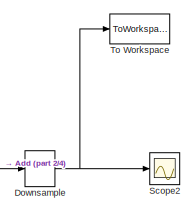
[diagram: root canvas - part 1/4, top right region]
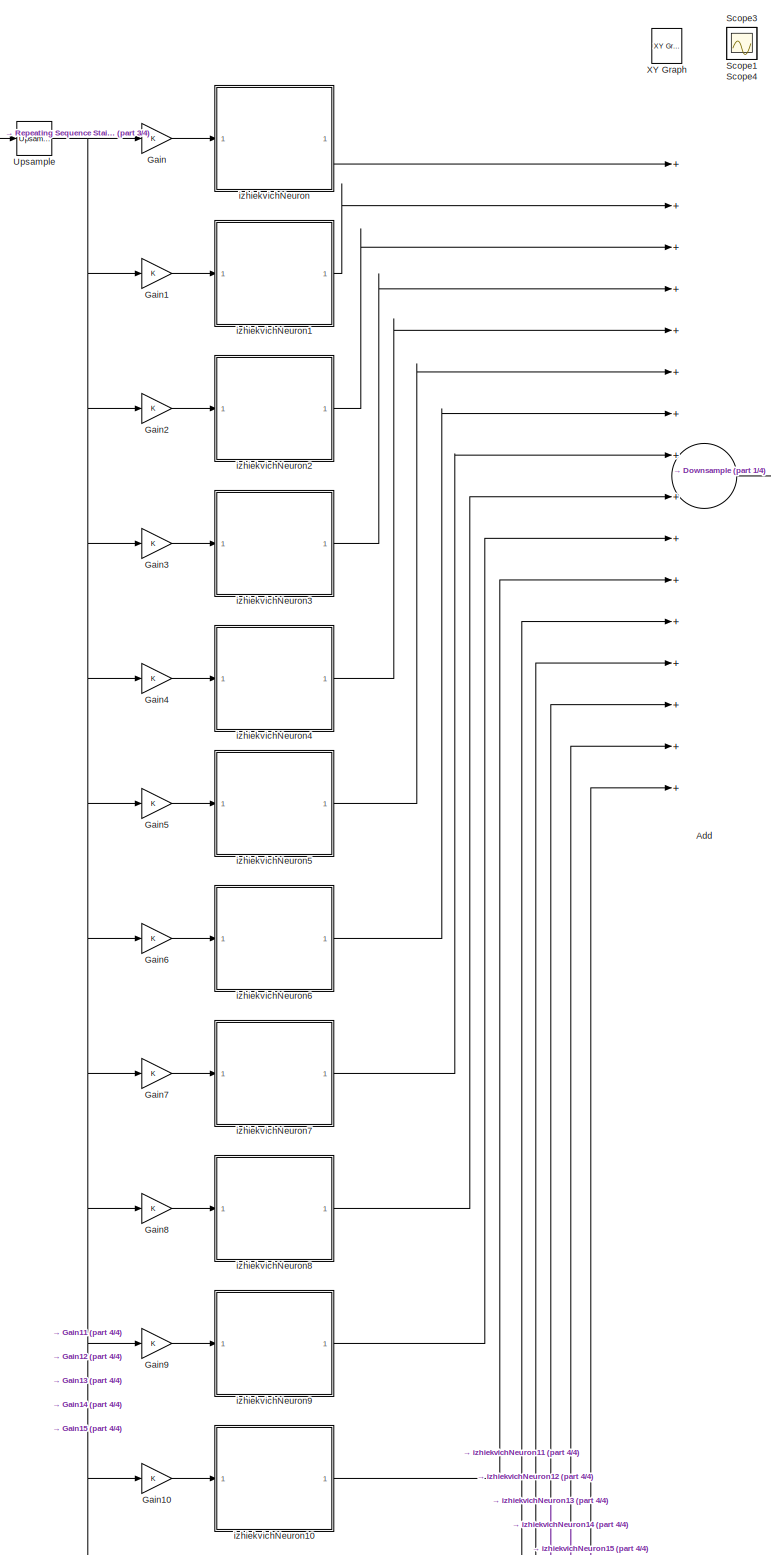
[diagram: root canvas - part 2/4, central region]
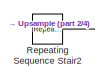
[diagram: root canvas - part 3/4, top left region]
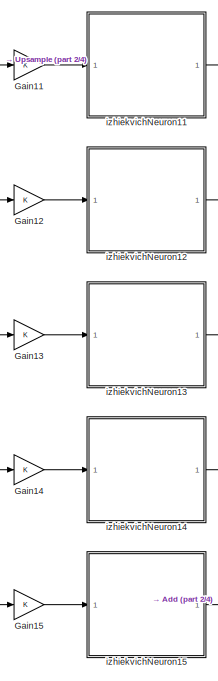
[diagram: root canvas - part 4/4, bottom left region]
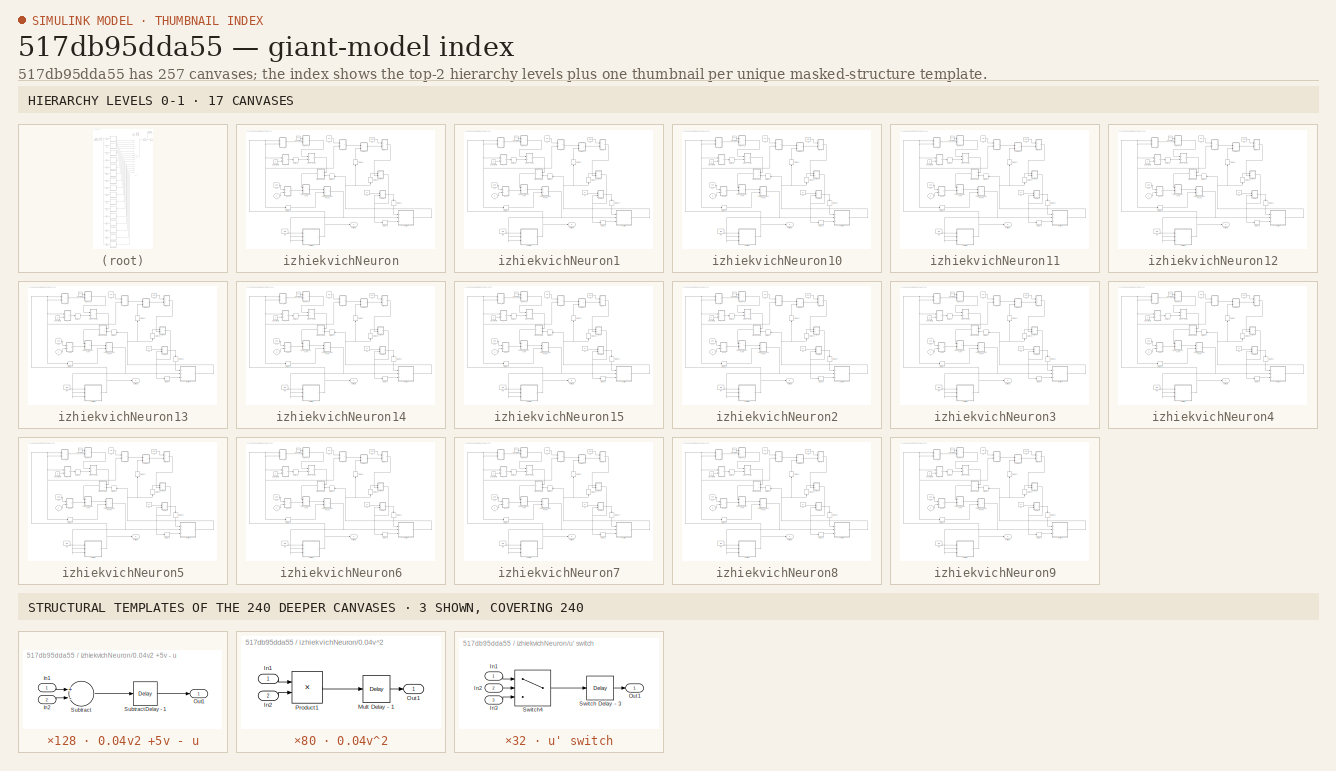
[diagram: thumbnail index - top-2 hierarchy levels (17 canvases) + 3 structural-template representatives of the remaining 240 canvases]
MODEL slx_517db95dda55
KIND model
CONFIG AbsTol = auto
CONFIG EnableMultiTasking = off
CONFIG FixedStep = 0.001
CONFIG MaxStep = auto
CONFIG MinStep = auto
CONFIG RelTol = 1e-3
CONFIG SampleTimeConstraint = Unconstrained
CONFIG Solver = FixedStepAuto
CONFIG SolverName = FixedStepAuto
CONFIG StartTime = 0.0
CONFIG StopTime = 12
BLOCK [Sum] Add
  InputSameDT = off
  Inputs = ++++++++++++++++
  OutDataTypeStr = Inherit: Inherit via internal rule
  Ports = [16, 1]
  SaturateOnIntegerOverflow = off
BLOCK [DownSample] Downsample
  InputProcessing = Elements as channels (sample based)
  N = 12
  RateOptions = Allow multirate processing
  phase = 9
BLOCK [Gain] Gain
  OutDataTypeStr = Inherit: Inherit via internal rule
  ParamDataTypeStr = Inherit: Inherit via internal rule
  SaturateOnIntegerOverflow = off
BLOCK [Gain] Gain1
  OutDataTypeStr = Inherit: Inherit via internal rule
  ParamDataTypeStr = Inherit: Inherit via internal rule
  SaturateOnIntegerOverflow = off
BLOCK [Gain] Gain10
  OutDataTypeStr = Inherit: Inherit via internal rule
  ParamDataTypeStr = Inherit: Inherit via internal rule
  SaturateOnIntegerOverflow = off
BLOCK [Gain] Gain11
  OutDataTypeStr = Inherit: Inherit via internal rule
  ParamDataTypeStr = Inherit: Inherit via internal rule
  SaturateOnIntegerOverflow = off
BLOCK [Gain] Gain12
  OutDataTypeStr = Inherit: Inherit via internal rule
  ParamDataTypeStr = Inherit: Inherit via internal rule
  SaturateOnIntegerOverflow = off
BLOCK [Gain] Gain13
  OutDataTypeStr = Inherit: Inherit via internal rule
  ParamDataTypeStr = Inherit: Inherit via internal rule
  SaturateOnIntegerOverflow = off
BLOCK [Gain] Gain14
  OutDataTypeStr = Inherit: Inherit via internal rule
  ParamDataTypeStr = Inherit: Inherit via internal rule
  SaturateOnIntegerOverflow = off
BLOCK [Gain] Gain15
  OutDataTypeStr = Inherit: Inherit via internal rule
  ParamDataTypeStr = Inherit: Inherit via internal rule
  SaturateOnIntegerOverflow = off
BLOCK [Gain] Gain2
  OutDataTypeStr = Inherit: Inherit via internal rule
  ParamDataTypeStr = Inherit: Inherit via internal rule
  SaturateOnIntegerOverflow = off
BLOCK [Gain] Gain3
  OutDataTypeStr = Inherit: Inherit via internal rule
  ParamDataTypeStr = Inherit: Inherit via internal rule
  SaturateOnIntegerOverflow = off
BLOCK [Gain] Gain4
  OutDataTypeStr = Inherit: Inherit via internal rule
  ParamDataTypeStr = Inherit: Inherit via internal rule
  SaturateOnIntegerOverflow = off
BLOCK [Gain] Gain5
  OutDataTypeStr = Inherit: Inherit via internal rule
  ParamDataTypeStr = Inherit: Inherit via internal rule
  SaturateOnIntegerOverflow = off
BLOCK [Gain] Gain6
  OutDataTypeStr = Inherit: Inherit via internal rule
  ParamDataTypeStr = Inherit: Inherit via internal rule
  SaturateOnIntegerOverflow = off
BLOCK [Gain] Gain7
  OutDataTypeStr = Inherit: Inherit via internal rule
  ParamDataTypeStr = Inherit: Inherit via internal rule
  SaturateOnIntegerOverflow = off
BLOCK [Gain] Gain8
  OutDataTypeStr = Inherit: Inherit via internal rule
  ParamDataTypeStr = Inherit: Inherit via internal rule
  SaturateOnIntegerOverflow = off
BLOCK [Gain] Gain9
  OutDataTypeStr = Inherit: Inherit via internal rule
  ParamDataTypeStr = Inherit: Inherit via internal rule
  SaturateOnIntegerOverflow = off
BLOCK [Reference] Repeating Sequence Stair2  REF=simulink/Sources/Repeating
Sequence
Stair
  Ports = [0, 1]
  SourceBlock = simulink/Sources/Repeating\nSequence\nStair
  SourceProductBaseCode = SL
  SourceType = Repeating Sequence Stair
BLOCK [Scope] Scope1
  Floating = off
  IOType = viewer
  NumInputPorts = 1
  Ports = []
  ScopeSpecificationString = Simulink.scopes.TimeScopeBlockCfg('CurrentConfiguration', extmgr.ConfigurationSet(extmgr.Configuration('Core','General UI',true),extmgr.Configuration('Core','Source UI',true),extmgr.Configuration('Sources','WiredSimulink',true,'DataLoggingVariableName','ScopeData1'),extmgr.Configuration('Visuals','Time Domain',true,'SerializedDisplays',{struct('MinYLimReal','-0.24987','MaxYLimReal','2.24887','YLab...<+1436ch>
BLOCK [Scope] Scope2
  Floating = off
  NumInputPorts = 1
  Ports = [1]
  ScopeSpecificationString = Simulink.scopes.TimeScopeBlockCfg('CurrentConfiguration', extmgr.ConfigurationSet(extmgr.Configuration('Core','General UI',true),extmgr.Configuration('Core','Source UI',true),extmgr.Configuration('Sources','WiredSimulink',true,'DataLoggingVariableName','ScopeData1'),extmgr.Configuration('Visuals','Time Domain',true,'SerializedDisplays',{struct('MinYLimReal','-1504.78982','MaxYLimReal','672.42376',...<+1550ch>
BLOCK [Scope] Scope3
  Floating = off
  IOType = viewer
  NumInputPorts = 1
  Ports = []
  ScopeSpecificationString = Simulink.scopes.TimeScopeBlockCfg('CurrentConfiguration', extmgr.ConfigurationSet(extmgr.Configuration('Core','General UI',true),extmgr.Configuration('Core','Source UI',true),extmgr.Configuration('Sources','WiredSimulink',true,'DataLoggingVariableName','ScopeData3'),extmgr.Configuration('Visuals','Time Domain',true,'SerializedDisplays',{struct('MinYLimReal','-103.72127','MaxYLimReal','38.33358','Y...<+1371ch>
BLOCK [Scope] Scope4
  Floating = off
  IOType = viewer
  NumInputPorts = 1
  Ports = []
  ScopeSpecificationString = Simulink.scopes.TimeScopeBlockCfg('CurrentConfiguration', extmgr.ConfigurationSet(extmgr.Configuration('Core','General UI',true),extmgr.Configuration('Core','Source UI',true),extmgr.Configuration('Sources','WiredSimulink',true,'DataLoggingVariableName','ScopeData4'),extmgr.Configuration('Visuals','Time Domain',true,'SerializedDisplays',{struct('MinYLimReal','-20.75486','MaxYLimReal','56.79378','YL...<+1365ch>
BLOCK [ToWorkspace] To Workspace
  FixptAsFi = on
  MaxDataPoints = inf
  Ports = [1]
  SampleTime = -1
  VariableName = signal_out
BLOCK [Reference] Upsample  REF=dspsigops/Upsample
  Ports = [1, 1]
  SourceBlock = dspsigops/Upsample
  SourceProductBaseCode = DS
  SourceType = Upsample
  UserDataPersistent = on
BLOCK [Reference] XY Graph  REF=simulink/Sinks/XY Graph
  IOType = viewer
  Ports = [2]
  SourceBlock = simulink/Sinks/XY Graph
  SourceProductBaseCode = SL
  SourceType = XY scope.
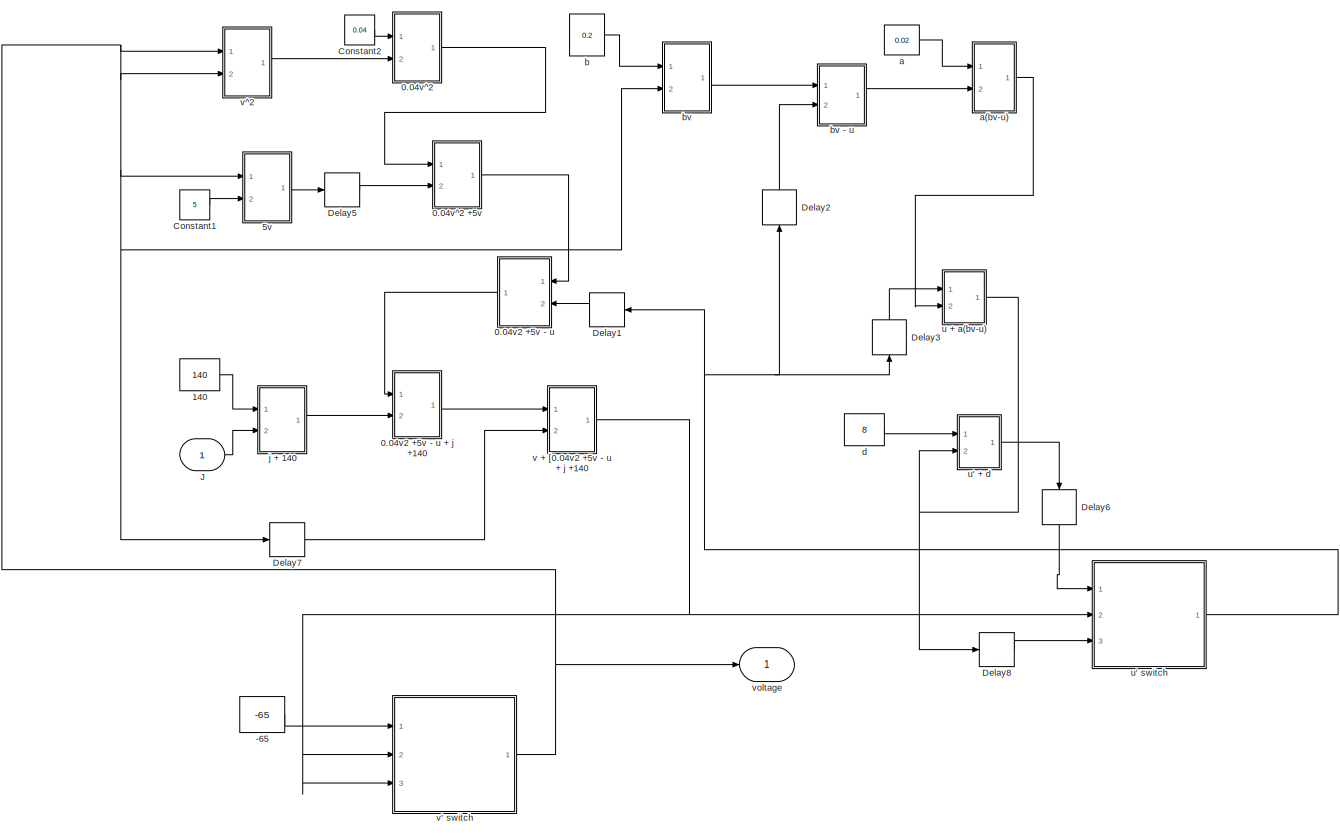
[diagram: izhiekvichNeuron - part 1/1, most of the canvas]
BLOCK [SubSystem] izhiekvichNeuron
  Ports = [1, 1]
  RequestExecContextInheritance = off
BLOCK [Constant] izhiekvichNeuron/-65
  Value = -65
BLOCK [SubSystem] izhiekvichNeuron/0.04v2 +5v - u
  Ports = [2, 1]
  RequestExecContextInheritance = off
BLOCK [SubSystem] izhiekvichNeuron/0.04v2 +5v - u + j +140
  Ports = [2, 1]
  RequestExecContextInheritance = off
BLOCK [Sum] izhiekvichNeuron/0.04v2 +5v - u + j +140/Add
  InputSameDT = off
  OutDataTypeStr = Inherit: Inherit via internal rule
  Ports = [2, 1]
  SaturateOnIntegerOverflow = off
BLOCK [Delay] izhiekvichNeuron/0.04v2 +5v - u + j +140/Add Delay - 2
  InputPortMap = u0
  Ports = [1, 1]
BLOCK [Inport] izhiekvichNeuron/0.04v2 +5v - u + j +140/In1
  IconDisplay = Port number
BLOCK [Inport] izhiekvichNeuron/0.04v2 +5v - u + j +140/J
  IconDisplay = Port number
  Port = 2
BLOCK [Outport] izhiekvichNeuron/0.04v2 +5v - u + j +140/Out1
  IconDisplay = Port number
  VectorParamsAs1DForOutWhenUnconnected = on
BLOCK [Inport] izhiekvichNeuron/0.04v2 +5v - u/In1
  IconDisplay = Port number
BLOCK [Inport] izhiekvichNeuron/0.04v2 +5v - u/In2
  IconDisplay = Port number
  Port = 2
BLOCK [Outport] izhiekvichNeuron/0.04v2 +5v - u/Out1
  IconDisplay = Port number
  VectorParamsAs1DForOutWhenUnconnected = on
BLOCK [Sum] izhiekvichNeuron/0.04v2 +5v - u/Subtract
  InputSameDT = off
  Inputs = +-
  OutDataTypeStr = Inherit: Inherit via internal rule
  Ports = [2, 1]
  SaturateOnIntegerOverflow = off
BLOCK [Delay] izhiekvichNeuron/0.04v2 +5v - u/Subtract Delay - 1
  DelayLength = 1
  InputPortMap = u0
  Ports = [1, 1]
BLOCK [SubSystem] izhiekvichNeuron/0.04v^2
  Ports = [2, 1]
  RequestExecContextInheritance = off
BLOCK [SubSystem] izhiekvichNeuron/0.04v^2 +5v
  Ports = [2, 1]
  RequestExecContextInheritance = off
BLOCK [Sum] izhiekvichNeuron/0.04v^2 +5v/Add
  InputSameDT = off
  OutDataTypeStr = Inherit: Inherit via internal rule
  Ports = [2, 1]
  SaturateOnIntegerOverflow = off
BLOCK [Delay] izhiekvichNeuron/0.04v^2 +5v/Add Delay - 2
  InputPortMap = u0
  Ports = [1, 1]
BLOCK [Inport] izhiekvichNeuron/0.04v^2 +5v/In1
  IconDisplay = Port number
BLOCK [Inport] izhiekvichNeuron/0.04v^2 +5v/In2
  IconDisplay = Port number
  Port = 2
BLOCK [Outport] izhiekvichNeuron/0.04v^2 +5v/Out1
  IconDisplay = Port number
  VectorParamsAs1DForOutWhenUnconnected = on
BLOCK [Inport] izhiekvichNeuron/0.04v^2/In1
  IconDisplay = Port number
BLOCK [Inport] izhiekvichNeuron/0.04v^2/In2
  IconDisplay = Port number
  Port = 2
BLOCK [Delay] izhiekvichNeuron/0.04v^2/Mult Delay - 1
  DelayLength = 1
  InputPortMap = u0
  Ports = [1, 1]
BLOCK [Outport] izhiekvichNeuron/0.04v^2/Out1
  IconDisplay = Port number
  VectorParamsAs1DForOutWhenUnconnected = on
BLOCK [Product] izhiekvichNeuron/0.04v^2/Product1
  InputSameDT = off
  OutDataTypeStr = Inherit: Inherit via internal rule
  Ports = [2, 1]
  RndMeth = Floor
  SaturateOnIntegerOverflow = off
BLOCK [Constant] izhiekvichNeuron/140
  Value = 140
BLOCK [SubSystem] izhiekvichNeuron/5v
  Ports = [2, 1]
  RequestExecContextInheritance = off
BLOCK [Inport] izhiekvichNeuron/5v/In2
  IconDisplay = Port number
  Port = 2
BLOCK [Inport] izhiekvichNeuron/5v/J
  IconDisplay = Port number
BLOCK [Delay] izhiekvichNeuron/5v/Mult Delay - 1
  DelayLength = 1
  InputPortMap = u0
  Ports = [1, 1]
BLOCK [Outport] izhiekvichNeuron/5v/Out1
  IconDisplay = Port number
  VectorParamsAs1DForOutWhenUnconnected = on
BLOCK [Product] izhiekvichNeuron/5v/Product1
  InputSameDT = off
  OutDataTypeStr = Inherit: Inherit via internal rule
  Ports = [2, 1]
  RndMeth = Floor
  SaturateOnIntegerOverflow = off
BLOCK [Constant] izhiekvichNeuron/Constant1
  Value = 5
BLOCK [Constant] izhiekvichNeuron/Constant2
  Value = 0.04
BLOCK [Delay] izhiekvichNeuron/Delay1
  DelayLength = 4
  InputPortMap = u0
  Ports = [1, 1]
BLOCK [Delay] izhiekvichNeuron/Delay2
  DelayLength = 1
  InputPortMap = u0
  Ports = [1, 1]
BLOCK [Delay] izhiekvichNeuron/Delay3
  DelayLength = 3
  InputPortMap = u0
  Ports = [1, 1]
BLOCK [Delay] izhiekvichNeuron/Delay5
  DelayLength = 1
  InputPortMap = u0
  Ports = [1, 1]
BLOCK [Delay] izhiekvichNeuron/Delay6
  InputPortMap = u0
  Ports = [1, 1]
BLOCK [Delay] izhiekvichNeuron/Delay7
  DelayLength = 7
  InputPortMap = u0
  Ports = [1, 1]
BLOCK [Delay] izhiekvichNeuron/Delay8
  DelayLength = 4
  InputPortMap = u0
  Ports = [1, 1]
BLOCK [Inport] izhiekvichNeuron/J
  IconDisplay = Port number
BLOCK [Constant] izhiekvichNeuron/a
  Value = 0.02
BLOCK [SubSystem] izhiekvichNeuron/a(bv-u)
  Ports = [2, 1]
  RequestExecContextInheritance = off
BLOCK [Inport] izhiekvichNeuron/a(bv-u)/In1
  IconDisplay = Port number
BLOCK [Inport] izhiekvichNeuron/a(bv-u)/In2
  IconDisplay = Port number
  Port = 2
BLOCK [Delay] izhiekvichNeuron/a(bv-u)/Mult Delay - 1
  DelayLength = 1
  InputPortMap = u0
  Ports = [1, 1]
BLOCK [Outport] izhiekvichNeuron/a(bv-u)/Out1
  IconDisplay = Port number
  VectorParamsAs1DForOutWhenUnconnected = on
BLOCK [Product] izhiekvichNeuron/a(bv-u)/Product1
  InputSameDT = off
  OutDataTypeStr = Inherit: Inherit via internal rule
  Ports = [2, 1]
  RndMeth = Floor
  SaturateOnIntegerOverflow = off
BLOCK [Constant] izhiekvichNeuron/b
  Value = 0.2
BLOCK [SubSystem] izhiekvichNeuron/bv
  Ports = [2, 1]
  RequestExecContextInheritance = off
BLOCK [SubSystem] izhiekvichNeuron/bv - u
  Ports = [2, 1]
  RequestExecContextInheritance = off
BLOCK [Inport] izhiekvichNeuron/bv - u/In1
  IconDisplay = Port number
BLOCK [Inport] izhiekvichNeuron/bv - u/In2
  IconDisplay = Port number
  Port = 2
BLOCK [Outport] izhiekvichNeuron/bv - u/Out1
  IconDisplay = Port number
  VectorParamsAs1DForOutWhenUnconnected = on
BLOCK [Sum] izhiekvichNeuron/bv - u/Subtract
  InputSameDT = off
  Inputs = +-
  OutDataTypeStr = Inherit: Inherit via internal rule
  Ports = [2, 1]
  SaturateOnIntegerOverflow = off
BLOCK [Delay] izhiekvichNeuron/bv - u/Subtract Delay - 1
  DelayLength = 1
  InputPortMap = u0
  Ports = [1, 1]
BLOCK [Inport] izhiekvichNeuron/bv/In1
  IconDisplay = Port number
BLOCK [Inport] izhiekvichNeuron/bv/J
  IconDisplay = Port number
  Port = 2
BLOCK [Delay] izhiekvichNeuron/bv/Mult Delay - 1
  DelayLength = 1
  InputPortMap = u0
  Ports = [1, 1]
BLOCK [Outport] izhiekvichNeuron/bv/Out1
  IconDisplay = Port number
  VectorParamsAs1DForOutWhenUnconnected = on
BLOCK [Product] izhiekvichNeuron/bv/Product1
  InputSameDT = off
  OutDataTypeStr = Inherit: Inherit via internal rule
  Ports = [2, 1]
  RndMeth = Floor
  SaturateOnIntegerOverflow = off
BLOCK [Constant] izhiekvichNeuron/d
  Value = 8
BLOCK [SubSystem] izhiekvichNeuron/j + 140
  Ports = [2, 1]
  RequestExecContextInheritance = off
BLOCK [Sum] izhiekvichNeuron/j + 140/Add
  InputSameDT = off
  OutDataTypeStr = Inherit: Inherit via internal rule
  Ports = [2, 1]
  SaturateOnIntegerOverflow = off
BLOCK [Delay] izhiekvichNeuron/j + 140/Add Delay - 2
  InputPortMap = u0
  Ports = [1, 1]
BLOCK [Inport] izhiekvichNeuron/j + 140/In1
  IconDisplay = Port number
BLOCK [Inport] izhiekvichNeuron/j + 140/J
  IconDisplay = Port number
  Port = 2
BLOCK [Outport] izhiekvichNeuron/j + 140/Out1
  IconDisplay = Port number
  VectorParamsAs1DForOutWhenUnconnected = on
BLOCK [SubSystem] izhiekvichNeuron/u + a(bv-u)
  Ports = [2, 1]
  RequestExecContextInheritance = off
BLOCK [Sum] izhiekvichNeuron/u + a(bv-u)/Add
  InputSameDT = off
  OutDataTypeStr = Inherit: Inherit via internal rule
  Ports = [2, 1]
  SaturateOnIntegerOverflow = off
BLOCK [Delay] izhiekvichNeuron/u + a(bv-u)/Add Delay - 2
  InputPortMap = u0
  Ports = [1, 1]
BLOCK [Inport] izhiekvichNeuron/u + a(bv-u)/In1
  IconDisplay = Port number
BLOCK [Inport] izhiekvichNeuron/u + a(bv-u)/In2
  IconDisplay = Port number
  Port = 2
BLOCK [Outport] izhiekvichNeuron/u + a(bv-u)/Out1
  IconDisplay = Port number
  VectorParamsAs1DForOutWhenUnconnected = on
BLOCK [SubSystem] izhiekvichNeuron/u' + d
  Ports = [2, 1]
  RequestExecContextInheritance = off
BLOCK [Sum] izhiekvichNeuron/u' + d/Add
  InputSameDT = off
  OutDataTypeStr = Inherit: Inherit via internal rule
  Ports = [2, 1]
  SaturateOnIntegerOverflow = off
BLOCK [Delay] izhiekvichNeuron/u' + d/Add Delay - 2
  InputPortMap = u0
  Ports = [1, 1]
BLOCK [Inport] izhiekvichNeuron/u' + d/In1
  IconDisplay = Port number
BLOCK [Inport] izhiekvichNeuron/u' + d/In2
  IconDisplay = Port number
  Port = 2
BLOCK [Outport] izhiekvichNeuron/u' + d/Out1
  IconDisplay = Port number
  VectorParamsAs1DForOutWhenUnconnected = on
BLOCK [SubSystem] izhiekvichNeuron/u' switch
  Ports = [3, 1]
  RequestExecContextInheritance = off
BLOCK [Inport] izhiekvichNeuron/u' switch/In1
  IconDisplay = Port number
BLOCK [Inport] izhiekvichNeuron/u' switch/In2
  IconDisplay = Port number
  Port = 2
BLOCK [Inport] izhiekvichNeuron/u' switch/In3
  IconDisplay = Port number
  Port = 3
BLOCK [Outport] izhiekvichNeuron/u' switch/Out1
  IconDisplay = Port number
  VectorParamsAs1DForOutWhenUnconnected = on
BLOCK [Delay] izhiekvichNeuron/u' switch/Switch Delay - 3
  DelayLength = 3
  InputPortMap = u0
  Ports = [1, 1]
BLOCK [Switch] izhiekvichNeuron/u' switch/Switch4
  Criteria = u2 > Threshold
  InputSameDT = off
  SaturateOnIntegerOverflow = off
  Threshold = 30
BLOCK [SubSystem] izhiekvichNeuron/v + [0.04v2 +5v - u + j +140
  Ports = [2, 1]
  RequestExecContextInheritance = off
BLOCK [Sum] izhiekvichNeuron/v + [0.04v2 +5v - u + j +140/Add
  InputSameDT = off
  OutDataTypeStr = Inherit: Inherit via internal rule
  Ports = [2, 1]
  SaturateOnIntegerOverflow = off
BLOCK [Delay] izhiekvichNeuron/v + [0.04v2 +5v - u + j +140/Add Delay - 2
  InputPortMap = u0
  Ports = [1, 1]
BLOCK [Inport] izhiekvichNeuron/v + [0.04v2 +5v - u + j +140/In1
  IconDisplay = Port number
BLOCK [Inport] izhiekvichNeuron/v + [0.04v2 +5v - u + j +140/J
  IconDisplay = Port number
  Port = 2
BLOCK [Outport] izhiekvichNeuron/v + [0.04v2 +5v - u + j +140/Out1
  IconDisplay = Port number
  VectorParamsAs1DForOutWhenUnconnected = on
BLOCK [SubSystem] izhiekvichNeuron/v' switch
  Ports = [3, 1]
  RequestExecContextInheritance = off
BLOCK [Inport] izhiekvichNeuron/v' switch/In1
  IconDisplay = Port number
BLOCK [Inport] izhiekvichNeuron/v' switch/In2
  IconDisplay = Port number
  Port = 2
BLOCK [Inport] izhiekvichNeuron/v' switch/In3
  IconDisplay = Port number
  Port = 3
BLOCK [Outport] izhiekvichNeuron/v' switch/J
  IconDisplay = Port number
  VectorParamsAs1DForOutWhenUnconnected = on
BLOCK [Delay] izhiekvichNeuron/v' switch/Switch Delay - 3
  DelayLength = 3
  InputPortMap = u0
  Ports = [1, 1]
BLOCK [Switch] izhiekvichNeuron/v' switch/Switch4
  Criteria = u2 > Threshold
  InputSameDT = off
  SaturateOnIntegerOverflow = off
  Threshold = 30
BLOCK [SubSystem] izhiekvichNeuron/v^2
  Ports = [2, 1]
  RequestExecContextInheritance = off
BLOCK [Inport] izhiekvichNeuron/v^2/In2
  IconDisplay = Port number
  Port = 2
BLOCK [Inport] izhiekvichNeuron/v^2/J
  IconDisplay = Port number
BLOCK [Delay] izhiekvichNeuron/v^2/Mult Delay - 2
  DelayLength = 1
  InputPortMap = u0
  Ports = [1, 1]
BLOCK [Outport] izhiekvichNeuron/v^2/Out1
  IconDisplay = Port number
  VectorParamsAs1DForOutWhenUnconnected = on
BLOCK [Product] izhiekvichNeuron/v^2/Product1
  InputSameDT = off
  OutDataTypeStr = Inherit: Inherit via internal rule
  Ports = [2, 1]
  RndMeth = Floor
  SaturateOnIntegerOverflow = off
BLOCK [Outport] izhiekvichNeuron/voltage
  IconDisplay = Port number
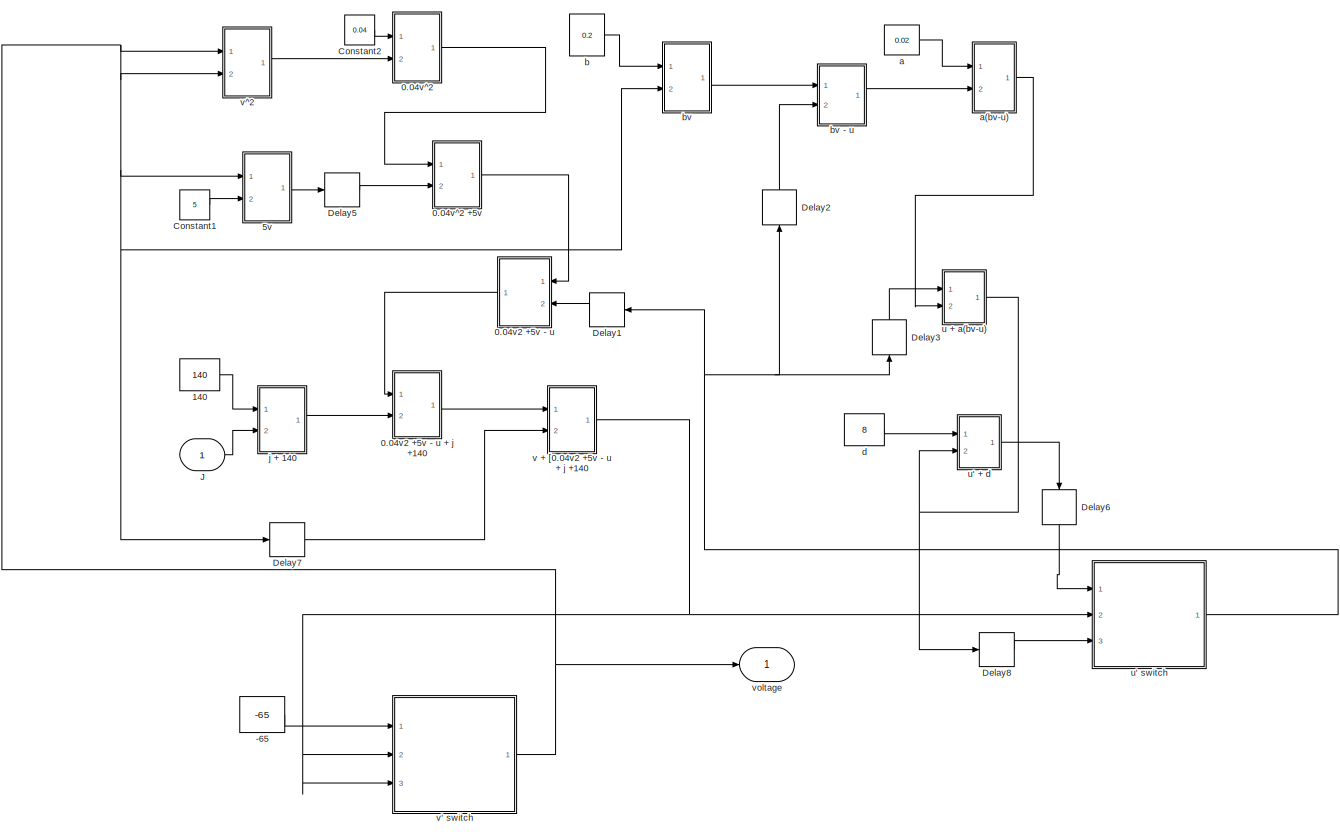
[diagram: izhiekvichNeuron1 - part 1/1, most of the canvas]
BLOCK [SubSystem] izhiekvichNeuron1
  Ports = [1, 1]
  RequestExecContextInheritance = off
BLOCK [Constant] izhiekvichNeuron1/-65
  Value = -65
BLOCK [SubSystem] izhiekvichNeuron1/0.04v2 +5v - u
  Ports = [2, 1]
  RequestExecContextInheritance = off
BLOCK [SubSystem] izhiekvichNeuron1/0.04v2 +5v - u + j +140
  Ports = [2, 1]
  RequestExecContextInheritance = off
BLOCK [Sum] izhiekvichNeuron1/0.04v2 +5v - u + j +140/Add
  InputSameDT = off
  OutDataTypeStr = Inherit: Inherit via internal rule
  Ports = [2, 1]
  SaturateOnIntegerOverflow = off
BLOCK [Delay] izhiekvichNeuron1/0.04v2 +5v - u + j +140/Add Delay - 2
  InputPortMap = u0
  Ports = [1, 1]
BLOCK [Inport] izhiekvichNeuron1/0.04v2 +5v - u + j +140/In1
  IconDisplay = Port number
BLOCK [Inport] izhiekvichNeuron1/0.04v2 +5v - u + j +140/J
  IconDisplay = Port number
  Port = 2
BLOCK [Outport] izhiekvichNeuron1/0.04v2 +5v - u + j +140/Out1
  IconDisplay = Port number
  VectorParamsAs1DForOutWhenUnconnected = on
BLOCK [Inport] izhiekvichNeuron1/0.04v2 +5v - u/In1
  IconDisplay = Port number
BLOCK [Inport] izhiekvichNeuron1/0.04v2 +5v - u/In2
  IconDisplay = Port number
  Port = 2
BLOCK [Outport] izhiekvichNeuron1/0.04v2 +5v - u/Out1
  IconDisplay = Port number
  VectorParamsAs1DForOutWhenUnconnected = on
BLOCK [Sum] izhiekvichNeuron1/0.04v2 +5v - u/Subtract
  InputSameDT = off
  Inputs = +-
  OutDataTypeStr = Inherit: Inherit via internal rule
  Ports = [2, 1]
  SaturateOnIntegerOverflow = off
BLOCK [Delay] izhiekvichNeuron1/0.04v2 +5v - u/Subtract Delay - 1
  DelayLength = 1
  InputPortMap = u0
  Ports = [1, 1]
BLOCK [SubSystem] izhiekvichNeuron1/0.04v^2
  Ports = [2, 1]
  RequestExecContextInheritance = off
BLOCK [SubSystem] izhiekvichNeuron1/0.04v^2 +5v
  Ports = [2, 1]
  RequestExecContextInheritance = off
BLOCK [Sum] izhiekvichNeuron1/0.04v^2 +5v/Add
  InputSameDT = off
  OutDataTypeStr = Inherit: Inherit via internal rule
  Ports = [2, 1]
  SaturateOnIntegerOverflow = off
BLOCK [Delay] izhiekvichNeuron1/0.04v^2 +5v/Add Delay - 2
  InputPortMap = u0
  Ports = [1, 1]
BLOCK [Inport] izhiekvichNeuron1/0.04v^2 +5v/In1
  IconDisplay = Port number
BLOCK [Inport] izhiekvichNeuron1/0.04v^2 +5v/In2
  IconDisplay = Port number
  Port = 2
BLOCK [Outport] izhiekvichNeuron1/0.04v^2 +5v/Out1
  IconDisplay = Port number
  VectorParamsAs1DForOutWhenUnconnected = on
BLOCK [Inport] izhiekvichNeuron1/0.04v^2/In1
  IconDisplay = Port number
BLOCK [Inport] izhiekvichNeuron1/0.04v^2/In2
  IconDisplay = Port number
  Port = 2
BLOCK [Delay] izhiekvichNeuron1/0.04v^2/Mult Delay - 1
  DelayLength = 1
  InputPortMap = u0
  Ports = [1, 1]
BLOCK [Outport] izhiekvichNeuron1/0.04v^2/Out1
  IconDisplay = Port number
  VectorParamsAs1DForOutWhenUnconnected = on
BLOCK [Product] izhiekvichNeuron1/0.04v^2/Product1
  InputSameDT = off
  OutDataTypeStr = Inherit: Inherit via internal rule
  Ports = [2, 1]
  RndMeth = Floor
  SaturateOnIntegerOverflow = off
BLOCK [Constant] izhiekvichNeuron1/140
  Value = 140
BLOCK [SubSystem] izhiekvichNeuron1/5v
  Ports = [2, 1]
  RequestExecContextInheritance = off
BLOCK [Inport] izhiekvichNeuron1/5v/In2
  IconDisplay = Port number
  Port = 2
BLOCK [Inport] izhiekvichNeuron1/5v/J
  IconDisplay = Port number
BLOCK [Delay] izhiekvichNeuron1/5v/Mult Delay - 1
  DelayLength = 1
  InputPortMap = u0
  Ports = [1, 1]
BLOCK [Outport] izhiekvichNeuron1/5v/Out1
  IconDisplay = Port number
  VectorParamsAs1DForOutWhenUnconnected = on
BLOCK [Product] izhiekvichNeuron1/5v/Product1
  InputSameDT = off
  OutDataTypeStr = Inherit: Inherit via internal rule
  Ports = [2, 1]
  RndMeth = Floor
  SaturateOnIntegerOverflow = off
BLOCK [Constant] izhiekvichNeuron1/Constant1
  Value = 5
BLOCK [Constant] izhiekvichNeuron1/Constant2
  Value = 0.04
BLOCK [Delay] izhiekvichNeuron1/Delay1
  DelayLength = 4
  InputPortMap = u0
  Ports = [1, 1]
BLOCK [Delay] izhiekvichNeuron1/Delay2
  DelayLength = 1
  InputPortMap = u0
  Ports = [1, 1]
BLOCK [Delay] izhiekvichNeuron1/Delay3
  DelayLength = 3
  InputPortMap = u0
  Ports = [1, 1]
BLOCK [Delay] izhiekvichNeuron1/Delay5
  DelayLength = 1
  InputPortMap = u0
  Ports = [1, 1]
BLOCK [Delay] izhiekvichNeuron1/Delay6
  InputPortMap = u0
  Ports = [1, 1]
BLOCK [Delay] izhiekvichNeuron1/Delay7
  DelayLength = 7
  InputPortMap = u0
  Ports = [1, 1]
BLOCK [Delay] izhiekvichNeuron1/Delay8
  DelayLength = 4
  InputPortMap = u0
  Ports = [1, 1]
BLOCK [Inport] izhiekvichNeuron1/J
  IconDisplay = Port number
BLOCK [Constant] izhiekvichNeuron1/a
  Value = 0.02
BLOCK [SubSystem] izhiekvichNeuron1/a(bv-u)
  Ports = [2, 1]
  RequestExecContextInheritance = off
BLOCK [Inport] izhiekvichNeuron1/a(bv-u)/In1
  IconDisplay = Port number
BLOCK [Inport] izhiekvichNeuron1/a(bv-u)/In2
  IconDisplay = Port number
  Port = 2
BLOCK [Delay] izhiekvichNeuron1/a(bv-u)/Mult Delay - 1
  DelayLength = 1
  InputPortMap = u0
  Ports = [1, 1]
BLOCK [Outport] izhiekvichNeuron1/a(bv-u)/Out1
  IconDisplay = Port number
  VectorParamsAs1DForOutWhenUnconnected = on
BLOCK [Product] izhiekvichNeuron1/a(bv-u)/Product1
  InputSameDT = off
  OutDataTypeStr = Inherit: Inherit via internal rule
  Ports = [2, 1]
  RndMeth = Floor
  SaturateOnIntegerOverflow = off
BLOCK [Constant] izhiekvichNeuron1/b
  Value = 0.2
BLOCK [SubSystem] izhiekvichNeuron1/bv
  Ports = [2, 1]
  RequestExecContextInheritance = off
BLOCK [SubSystem] izhiekvichNeuron1/bv - u
  Ports = [2, 1]
  RequestExecContextInheritance = off
BLOCK [Inport] izhiekvichNeuron1/bv - u/In1
  IconDisplay = Port number
BLOCK [Inport] izhiekvichNeuron1/bv - u/In2
  IconDisplay = Port number
  Port = 2
BLOCK [Outport] izhiekvichNeuron1/bv - u/Out1
  IconDisplay = Port number
  VectorParamsAs1DForOutWhenUnconnected = on
BLOCK [Sum] izhiekvichNeuron1/bv - u/Subtract
  InputSameDT = off
  Inputs = +-
  OutDataTypeStr = Inherit: Inherit via internal rule
  Ports = [2, 1]
  SaturateOnIntegerOverflow = off
BLOCK [Delay] izhiekvichNeuron1/bv - u/Subtract Delay - 1
  DelayLength = 1
  InputPortMap = u0
  Ports = [1, 1]
BLOCK [Inport] izhiekvichNeuron1/bv/In1
  IconDisplay = Port number
BLOCK [Inport] izhiekvichNeuron1/bv/J
  IconDisplay = Port number
  Port = 2
BLOCK [Delay] izhiekvichNeuron1/bv/Mult Delay - 1
  DelayLength = 1
  InputPortMap = u0
  Ports = [1, 1]
BLOCK [Outport] izhiekvichNeuron1/bv/Out1
  IconDisplay = Port number
  VectorParamsAs1DForOutWhenUnconnected = on
BLOCK [Product] izhiekvichNeuron1/bv/Product1
  InputSameDT = off
  OutDataTypeStr = Inherit: Inherit via internal rule
  Ports = [2, 1]
  RndMeth = Floor
  SaturateOnIntegerOverflow = off
BLOCK [Constant] izhiekvichNeuron1/d
  Value = 8
BLOCK [SubSystem] izhiekvichNeuron1/j + 140
  Ports = [2, 1]
  RequestExecContextInheritance = off
BLOCK [Sum] izhiekvichNeuron1/j + 140/Add
  InputSameDT = off
  OutDataTypeStr = Inherit: Inherit via internal rule
  Ports = [2, 1]
  SaturateOnIntegerOverflow = off
BLOCK [Delay] izhiekvichNeuron1/j + 140/Add Delay - 2
  InputPortMap = u0
  Ports = [1, 1]
BLOCK [Inport] izhiekvichNeuron1/j + 140/In1
  IconDisplay = Port number
BLOCK [Inport] izhiekvichNeuron1/j + 140/J
  IconDisplay = Port number
  Port = 2
BLOCK [Outport] izhiekvichNeuron1/j + 140/Out1
  IconDisplay = Port number
  VectorParamsAs1DForOutWhenUnconnected = on
BLOCK [SubSystem] izhiekvichNeuron1/u + a(bv-u)
  Ports = [2, 1]
  RequestExecContextInheritance = off
BLOCK [Sum] izhiekvichNeuron1/u + a(bv-u)/Add
  InputSameDT = off
  OutDataTypeStr = Inherit: Inherit via internal rule
  Ports = [2, 1]
  SaturateOnIntegerOverflow = off
BLOCK [Delay] izhiekvichNeuron1/u + a(bv-u)/Add Delay - 2
  InputPortMap = u0
  Ports = [1, 1]
BLOCK [Inport] izhiekvichNeuron1/u + a(bv-u)/In1
  IconDisplay = Port number
BLOCK [Inport] izhiekvichNeuron1/u + a(bv-u)/In2
  IconDisplay = Port number
  Port = 2
BLOCK [Outport] izhiekvichNeuron1/u + a(bv-u)/Out1
  IconDisplay = Port number
  VectorParamsAs1DForOutWhenUnconnected = on
BLOCK [SubSystem] izhiekvichNeuron1/u' + d
  Ports = [2, 1]
  RequestExecContextInheritance = off
BLOCK [Sum] izhiekvichNeuron1/u' + d/Add
  InputSameDT = off
  OutDataTypeStr = Inherit: Inherit via internal rule
  Ports = [2, 1]
  SaturateOnIntegerOverflow = off
BLOCK [Delay] izhiekvichNeuron1/u' + d/Add Delay - 2
  InputPortMap = u0
  Ports = [1, 1]
BLOCK [Inport] izhiekvichNeuron1/u' + d/In1
  IconDisplay = Port number
BLOCK [Inport] izhiekvichNeuron1/u' + d/In2
  IconDisplay = Port number
  Port = 2
BLOCK [Outport] izhiekvichNeuron1/u' + d/Out1
  IconDisplay = Port number
  VectorParamsAs1DForOutWhenUnconnected = on
BLOCK [SubSystem] izhiekvichNeuron1/u' switch
  Ports = [3, 1]
  RequestExecContextInheritance = off
BLOCK [Inport] izhiekvichNeuron1/u' switch/In1
  IconDisplay = Port number
BLOCK [Inport] izhiekvichNeuron1/u' switch/In2
  IconDisplay = Port number
  Port = 2
BLOCK [Inport] izhiekvichNeuron1/u' switch/In3
  IconDisplay = Port number
  Port = 3
BLOCK [Outport] izhiekvichNeuron1/u' switch/Out1
  IconDisplay = Port number
  VectorParamsAs1DForOutWhenUnconnected = on
BLOCK [Delay] izhiekvichNeuron1/u' switch/Switch Delay - 3
  DelayLength = 3
  InputPortMap = u0
  Ports = [1, 1]
BLOCK [Switch] izhiekvichNeuron1/u' switch/Switch4
  Criteria = u2 > Threshold
  InputSameDT = off
  SaturateOnIntegerOverflow = off
  Threshold = 30
BLOCK [SubSystem] izhiekvichNeuron1/v + [0.04v2 +5v - u + j +140
  Ports = [2, 1]
  RequestExecContextInheritance = off
BLOCK [Sum] izhiekvichNeuron1/v + [0.04v2 +5v - u + j +140/Add
  InputSameDT = off
  OutDataTypeStr = Inherit: Inherit via internal rule
  Ports = [2, 1]
  SaturateOnIntegerOverflow = off
BLOCK [Delay] izhiekvichNeuron1/v + [0.04v2 +5v - u + j +140/Add Delay - 2
  InputPortMap = u0
  Ports = [1, 1]
BLOCK [Inport] izhiekvichNeuron1/v + [0.04v2 +5v - u + j +140/In1
  IconDisplay = Port number
BLOCK [Inport] izhiekvichNeuron1/v + [0.04v2 +5v - u + j +140/J
  IconDisplay = Port number
  Port = 2
BLOCK [Outport] izhiekvichNeuron1/v + [0.04v2 +5v - u + j +140/Out1
  IconDisplay = Port number
  VectorParamsAs1DForOutWhenUnconnected = on
BLOCK [SubSystem] izhiekvichNeuron1/v' switch
  Ports = [3, 1]
  RequestExecContextInheritance = off
BLOCK [Inport] izhiekvichNeuron1/v' switch/In1
  IconDisplay = Port number
BLOCK [Inport] izhiekvichNeuron1/v' switch/In2
  IconDisplay = Port number
  Port = 2
BLOCK [Inport] izhiekvichNeuron1/v' switch/In3
  IconDisplay = Port number
  Port = 3
BLOCK [Outport] izhiekvichNeuron1/v' switch/J
  IconDisplay = Port number
  VectorParamsAs1DForOutWhenUnconnected = on
BLOCK [Delay] izhiekvichNeuron1/v' switch/Switch Delay - 3
  DelayLength = 3
  InputPortMap = u0
  Ports = [1, 1]
BLOCK [Switch] izhiekvichNeuron1/v' switch/Switch4
  Criteria = u2 > Threshold
  InputSameDT = off
  SaturateOnIntegerOverflow = off
  Threshold = 30
BLOCK [SubSystem] izhiekvichNeuron1/v^2
  Ports = [2, 1]
  RequestExecContextInheritance = off
BLOCK [Inport] izhiekvichNeuron1/v^2/In2
  IconDisplay = Port number
  Port = 2
BLOCK [Inport] izhiekvichNeuron1/v^2/J
  IconDisplay = Port number
BLOCK [Delay] izhiekvichNeuron1/v^2/Mult Delay - 2
  DelayLength = 1
  InputPortMap = u0
  Ports = [1, 1]
BLOCK [Outport] izhiekvichNeuron1/v^2/Out1
  IconDisplay = Port number
  VectorParamsAs1DForOutWhenUnconnected = on
BLOCK [Product] izhiekvichNeuron1/v^2/Product1
  InputSameDT = off
  OutDataTypeStr = Inherit: Inherit via internal rule
  Ports = [2, 1]
  RndMeth = Floor
  SaturateOnIntegerOverflow = off
BLOCK [Outport] izhiekvichNeuron1/voltage
  IconDisplay = Port number
BLOCK [SubSystem] izhiekvichNeuron10
  Ports = [1, 1]
  RequestExecContextInheritance = off
BLOCK [Constant] izhiekvichNeuron10/-65
  Value = -65
BLOCK [SubSystem] izhiekvichNeuron10/0.04v2 +5v - u
  Ports = [2, 1]
  RequestExecContextInheritance = off
BLOCK [SubSystem] izhiekvichNeuron10/0.04v2 +5v - u + j +140
  Ports = [2, 1]
  RequestExecContextInheritance = off
BLOCK [Sum] izhiekvichNeuron10/0.04v2 +5v - u + j +140/Add
  InputSameDT = off
  OutDataTypeStr = Inherit: Inherit via internal rule
  Ports = [2, 1]
  SaturateOnIntegerOverflow = off
BLOCK [Delay] izhiekvichNeuron10/0.04v2 +5v - u + j +140/Add Delay - 2
  InputPortMap = u0
  Ports = [1, 1]
BLOCK [Inport] izhiekvichNeuron10/0.04v2 +5v - u + j +140/In1
  IconDisplay = Port number
BLOCK [Inport] izhiekvichNeuron10/0.04v2 +5v - u + j +140/J
  IconDisplay = Port number
  Port = 2
BLOCK [Outport] izhiekvichNeuron10/0.04v2 +5v - u + j +140/Out1
  IconDisplay = Port number
  VectorParamsAs1DForOutWhenUnconnected = on
BLOCK [Inport] izhiekvichNeuron10/0.04v2 +5v - u/In1
  IconDisplay = Port number
BLOCK [Inport] izhiekvichNeuron10/0.04v2 +5v - u/In2
  IconDisplay = Port number
  Port = 2
BLOCK [Outport] izhiekvichNeuron10/0.04v2 +5v - u/Out1
  IconDisplay = Port number
  VectorParamsAs1DForOutWhenUnconnected = on
BLOCK [Sum] izhiekvichNeuron10/0.04v2 +5v - u/Subtract
  InputSameDT = off
  Inputs = +-
  OutDataTypeStr = Inherit: Inherit via internal rule
  Ports = [2, 1]
  SaturateOnIntegerOverflow = off
BLOCK [Delay] izhiekvichNeuron10/0.04v2 +5v - u/Subtract Delay - 1
  DelayLength = 1
  InputPortMap = u0
  Ports = [1, 1]
BLOCK [SubSystem] izhiekvichNeuron10/0.04v^2
  Ports = [2, 1]
  RequestExecContextInheritance = off
BLOCK [SubSystem] izhiekvichNeuron10/0.04v^2 +5v
  Ports = [2, 1]
  RequestExecContextInheritance = off
BLOCK [Sum] izhiekvichNeuron10/0.04v^2 +5v/Add
  InputSameDT = off
  OutDataTypeStr = Inherit: Inherit via internal rule
  Ports = [2, 1]
  SaturateOnIntegerOverflow = off
BLOCK [Delay] izhiekvichNeuron10/0.04v^2 +5v/Add Delay - 2
  InputPortMap = u0
  Ports = [1, 1]
BLOCK [Inport] izhiekvichNeuron10/0.04v^2 +5v/In1
  IconDisplay = Port number
BLOCK [Inport] izhiekvichNeuron10/0.04v^2 +5v/In2
  IconDisplay = Port number
  Port = 2
BLOCK [Outport] izhiekvichNeuron10/0.04v^2 +5v/Out1
  IconDisplay = Port number
  VectorParamsAs1DForOutWhenUnconnected = on
BLOCK [Inport] izhiekvichNeuron10/0.04v^2/In1
  IconDisplay = Port number
BLOCK [Inport] izhiekvichNeuron10/0.04v^2/In2
  IconDisplay = Port number
  Port = 2
BLOCK [Delay] izhiekvichNeuron10/0.04v^2/Mult Delay - 1
  DelayLength = 1
  InputPortMap = u0
  Ports = [1, 1]
BLOCK [Outport] izhiekvichNeuron10/0.04v^2/Out1
  IconDisplay = Port number
  VectorParamsAs1DForOutWhenUnconnected = on
BLOCK [Product] izhiekvichNeuron10/0.04v^2/Product1
  InputSameDT = off
  OutDataTypeStr = Inherit: Inherit via internal rule
  Ports = [2, 1]
  RndMeth = Floor
  SaturateOnIntegerOverflow = off
BLOCK [Constant] izhiekvichNeuron10/140
  Value = 140
BLOCK [SubSystem] izhiekvichNeuron10/5v
  Ports = [2, 1]
  RequestExecContextInheritance = off
BLOCK [Inport] izhiekvichNeuron10/5v/In2
  IconDisplay = Port number
  Port = 2
BLOCK [Inport] izhiekvichNeuron10/5v/J
  IconDisplay = Port number
BLOCK [Delay] izhiekvichNeuron10/5v/Mult Delay - 1
  DelayLength = 1
  InputPortMap = u0
  Ports = [1, 1]
BLOCK [Outport] izhiekvichNeuron10/5v/Out1
  IconDisplay = Port number
  VectorParamsAs1DForOutWhenUnconnected = on
BLOCK [Product] izhiekvichNeuron10/5v/Product1
  InputSameDT = off
  OutDataTypeStr = Inherit: Inherit via internal rule
  Ports = [2, 1]
  RndMeth = Floor
  SaturateOnIntegerOverflow = off
BLOCK [Constant] izhiekvichNeuron10/Constant1
  Value = 5
BLOCK [Constant] izhiekvichNeuron10/Constant2
  Value = 0.04
BLOCK [Delay] izhiekvichNeuron10/Delay1
  DelayLength = 4
  InputPortMap = u0
  Ports = [1, 1]
BLOCK [Delay] izhiekvichNeuron10/Delay2
  DelayLength = 1
  InputPortMap = u0
  Ports = [1, 1]
BLOCK [Delay] izhiekvichNeuron10/Delay3
  DelayLength = 3
  InputPortMap = u0
  Ports = [1, 1]
BLOCK [Delay] izhiekvichNeuron10/Delay5
  DelayLength = 1
  InputPortMap = u0
  Ports = [1, 1]
BLOCK [Delay] izhiekvichNeuron10/Delay6
  InputPortMap = u0
  Ports = [1, 1]
BLOCK [Delay] izhiekvichNeuron10/Delay7
  DelayLength = 7
  InputPortMap = u0
  Ports = [1, 1]
BLOCK [Delay] izhiekvichNeuron10/Delay8
  DelayLength = 4
  InputPortMap = u0
  Ports = [1, 1]
BLOCK [Inport] izhiekvichNeuron10/J
  IconDisplay = Port number
BLOCK [Constant] izhiekvichNeuron10/a
  Value = 0.02
BLOCK [SubSystem] izhiekvichNeuron10/a(bv-u)
  Ports = [2, 1]
  RequestExecContextInheritance = off
BLOCK [Inport] izhiekvichNeuron10/a(bv-u)/In1
  IconDisplay = Port number
BLOCK [Inport] izhiekvichNeuron10/a(bv-u)/In2
  IconDisplay = Port number
  Port = 2
BLOCK [Delay] izhiekvichNeuron10/a(bv-u)/Mult Delay - 1
  DelayLength = 1
  InputPortMap = u0
  Ports = [1, 1]
BLOCK [Outport] izhiekvichNeuron10/a(bv-u)/Out1
  IconDisplay = Port number
  VectorParamsAs1DForOutWhenUnconnected = on
BLOCK [Product] izhiekvichNeuron10/a(bv-u)/Product1
  InputSameDT = off
  OutDataTypeStr = Inherit: Inherit via internal rule
  Ports = [2, 1]
  RndMeth = Floor
  SaturateOnIntegerOverflow = off
BLOCK [Constant] izhiekvichNeuron10/b
  Value = 0.2
BLOCK [SubSystem] izhiekvichNeuron10/bv
  Ports = [2, 1]
  RequestExecContextInheritance = off
BLOCK [SubSystem] izhiekvichNeuron10/bv - u
  Ports = [2, 1]
  RequestExecContextInheritance = off
BLOCK [Inport] izhiekvichNeuron10/bv - u/In1
  IconDisplay = Port number
BLOCK [Inport] izhiekvichNeuron10/bv - u/In2
  IconDisplay = Port number
  Port = 2
BLOCK [Outport] izhiekvichNeuron10/bv - u/Out1
  IconDisplay = Port number
  VectorParamsAs1DForOutWhenUnconnected = on
BLOCK [Sum] izhiekvichNeuron10/bv - u/Subtract
  InputSameDT = off
  Inputs = +-
  OutDataTypeStr = Inherit: Inherit via internal rule
  Ports = [2, 1]
  SaturateOnIntegerOverflow = off
BLOCK [Delay] izhiekvichNeuron10/bv - u/Subtract Delay - 1
  DelayLength = 1
  InputPortMap = u0
  Ports = [1, 1]
BLOCK [Inport] izhiekvichNeuron10/bv/In1
  IconDisplay = Port number
BLOCK [Inport] izhiekvichNeuron10/bv/J
  IconDisplay = Port number
  Port = 2
BLOCK [Delay] izhiekvichNeuron10/bv/Mult Delay - 1
  DelayLength = 1
  InputPortMap = u0
  Ports = [1, 1]
BLOCK [Outport] izhiekvichNeuron10/bv/Out1
  IconDisplay = Port number
  VectorParamsAs1DForOutWhenUnconnected = on
BLOCK [Product] izhiekvichNeuron10/bv/Product1
  InputSameDT = off
  OutDataTypeStr = Inherit: Inherit via internal rule
  Ports = [2, 1]
  RndMeth = Floor
  SaturateOnIntegerOverflow = off
BLOCK [Constant] izhiekvichNeuron10/d
  Value = 8
BLOCK [SubSystem] izhiekvichNeuron10/j + 140
  Ports = [2, 1]
  RequestExecContextInheritance = off
BLOCK [Sum] izhiekvichNeuron10/j + 140/Add
  InputSameDT = off
  OutDataTypeStr = Inherit: Inherit via internal rule
  Ports = [2, 1]
  SaturateOnIntegerOverflow = off
BLOCK [Delay] izhiekvichNeuron10/j + 140/Add Delay - 2
  InputPortMap = u0
  Ports = [1, 1]
BLOCK [Inport] izhiekvichNeuron10/j + 140/In1
  IconDisplay = Port number
BLOCK [Inport] izhiekvichNeuron10/j + 140/J
  IconDisplay = Port number
  Port = 2
BLOCK [Outport] izhiekvichNeuron10/j + 140/Out1
  IconDisplay = Port number
  VectorParamsAs1DForOutWhenUnconnected = on
BLOCK [SubSystem] izhiekvichNeuron10/u + a(bv-u)
  Ports = [2, 1]
  RequestExecContextInheritance = off
BLOCK [Sum] izhiekvichNeuron10/u + a(bv-u)/Add
  InputSameDT = off
  OutDataTypeStr = Inherit: Inherit via internal rule
  Ports = [2, 1]
  SaturateOnIntegerOverflow = off
BLOCK [Delay] izhiekvichNeuron10/u + a(bv-u)/Add Delay - 2
  InputPortMap = u0
  Ports = [1, 1]
BLOCK [Inport] izhiekvichNeuron10/u + a(bv-u)/In1
  IconDisplay = Port number
BLOCK [Inport] izhiekvichNeuron10/u + a(bv-u)/In2
  IconDisplay = Port number
  Port = 2
BLOCK [Outport] izhiekvichNeuron10/u + a(bv-u)/Out1
  IconDisplay = Port number
  VectorParamsAs1DForOutWhenUnconnected = on
BLOCK [SubSystem] izhiekvichNeuron10/u' + d
  Ports = [2, 1]
  RequestExecContextInheritance = off
BLOCK [Sum] izhiekvichNeuron10/u' + d/Add
  InputSameDT = off
  OutDataTypeStr = Inherit: Inherit via internal rule
  Ports = [2, 1]
  SaturateOnIntegerOverflow = off
BLOCK [Delay] izhiekvichNeuron10/u' + d/Add Delay - 2
  InputPortMap = u0
  Ports = [1, 1]
BLOCK [Inport] izhiekvichNeuron10/u' + d/In1
  IconDisplay = Port number
BLOCK [Inport] izhiekvichNeuron10/u' + d/In2
  IconDisplay = Port number
  Port = 2
BLOCK [Outport] izhiekvichNeuron10/u' + d/Out1
  IconDisplay = Port number
  VectorParamsAs1DForOutWhenUnconnected = on
BLOCK [SubSystem] izhiekvichNeuron10/u' switch
  Ports = [3, 1]
  RequestExecContextInheritance = off
BLOCK [Inport] izhiekvichNeuron10/u' switch/In1
  IconDisplay = Port number
BLOCK [Inport] izhiekvichNeuron10/u' switch/In2
  IconDisplay = Port number
  Port = 2
BLOCK [Inport] izhiekvichNeuron10/u' switch/In3
  IconDisplay = Port number
  Port = 3
BLOCK [Outport] izhiekvichNeuron10/u' switch/Out1
  IconDisplay = Port number
  VectorParamsAs1DForOutWhenUnconnected = on
BLOCK [Delay] izhiekvichNeuron10/u' switch/Switch Delay - 3
  DelayLength = 3
  InputPortMap = u0
  Ports = [1, 1]
BLOCK [Switch] izhiekvichNeuron10/u' switch/Switch4
  Criteria = u2 > Threshold
  InputSameDT = off
  SaturateOnIntegerOverflow = off
  Threshold = 30
BLOCK [SubSystem] izhiekvichNeuron10/v + [0.04v2 +5v - u + j +140
  Ports = [2, 1]
  RequestExecContextInheritance = off
BLOCK [Sum] izhiekvichNeuron10/v + [0.04v2 +5v - u + j +140/Add
  InputSameDT = off
  OutDataTypeStr = Inherit: Inherit via internal rule
  Ports = [2, 1]
  SaturateOnIntegerOverflow = off
BLOCK [Delay] izhiekvichNeuron10/v + [0.04v2 +5v - u + j +140/Add Delay - 2
  InputPortMap = u0
  Ports = [1, 1]
BLOCK [Inport] izhiekvichNeuron10/v + [0.04v2 +5v - u + j +140/In1
  IconDisplay = Port number
BLOCK [Inport] izhiekvichNeuron10/v + [0.04v2 +5v - u + j +140/J
  IconDisplay = Port number
  Port = 2
BLOCK [Outport] izhiekvichNeuron10/v + [0.04v2 +5v - u + j +140/Out1
  IconDisplay = Port number
  VectorParamsAs1DForOutWhenUnconnected = on
BLOCK [SubSystem] izhiekvichNeuron10/v' switch
  Ports = [3, 1]
  RequestExecContextInheritance = off
BLOCK [Inport] izhiekvichNeuron10/v' switch/In1
  IconDisplay = Port number
BLOCK [Inport] izhiekvichNeuron10/v' switch/In2
  IconDisplay = Port number
  Port = 2
BLOCK [Inport] izhiekvichNeuron10/v' switch/In3
  IconDisplay = Port number
  Port = 3
BLOCK [Outport] izhiekvichNeuron10/v' switch/J
  IconDisplay = Port number
  VectorParamsAs1DForOutWhenUnconnected = on
BLOCK [Delay] izhiekvichNeuron10/v' switch/Switch Delay - 3
  DelayLength = 3
  InputPortMap = u0
  Ports = [1, 1]
BLOCK [Switch] izhiekvichNeuron10/v' switch/Switch4
  Criteria = u2 > Threshold
  InputSameDT = off
  SaturateOnIntegerOverflow = off
  Threshold = 30
BLOCK [SubSystem] izhiekvichNeuron10/v^2
  Ports = [2, 1]
  RequestExecContextInheritance = off
BLOCK [Inport] izhiekvichNeuron10/v^2/In2
  IconDisplay = Port number
  Port = 2
BLOCK [Inport] izhiekvichNeuron10/v^2/J
  IconDisplay = Port number
BLOCK [Delay] izhiekvichNeuron10/v^2/Mult Delay - 2
  DelayLength = 1
  InputPortMap = u0
  Ports = [1, 1]
BLOCK [Outport] izhiekvichNeuron10/v^2/Out1
  IconDisplay = Port number
  VectorParamsAs1DForOutWhenUnconnected = on
BLOCK [Product] izhiekvichNeuron10/v^2/Product1
  InputSameDT = off
  OutDataTypeStr = Inherit: Inherit via internal rule
  Ports = [2, 1]
  RndMeth = Floor
  SaturateOnIntegerOverflow = off
BLOCK [Outport] izhiekvichNeuron10/voltage
  IconDisplay = Port number
BLOCK [SubSystem] izhiekvichNeuron11
  Ports = [1, 1]
  RequestExecContextInheritance = off
BLOCK [Constant] izhiekvichNeuron11/-65
  Value = -65
BLOCK [SubSystem] izhiekvichNeuron11/0.04v2 +5v - u
  Ports = [2, 1]
  RequestExecContextInheritance = off
BLOCK [SubSystem] izhiekvichNeuron11/0.04v2 +5v - u + j +140
  Ports = [2, 1]
  RequestExecContextInheritance = off
BLOCK [Sum] izhiekvichNeuron11/0.04v2 +5v - u + j +140/Add
  InputSameDT = off
  OutDataTypeStr = Inherit: Inherit via internal rule
  Ports = [2, 1]
  SaturateOnIntegerOverflow = off
BLOCK [Delay] izhiekvichNeuron11/0.04v2 +5v - u + j +140/Add Delay - 2
  InputPortMap = u0
  Ports = [1, 1]
BLOCK [Inport] izhiekvichNeuron11/0.04v2 +5v - u + j +140/In1
  IconDisplay = Port number
BLOCK [Inport] izhiekvichNeuron11/0.04v2 +5v - u + j +140/J
  IconDisplay = Port number
  Port = 2
BLOCK [Outport] izhiekvichNeuron11/0.04v2 +5v - u + j +140/Out1
  IconDisplay = Port number
  VectorParamsAs1DForOutWhenUnconnected = on
BLOCK [Inport] izhiekvichNeuron11/0.04v2 +5v - u/In1
  IconDisplay = Port number
BLOCK [Inport] izhiekvichNeuron11/0.04v2 +5v - u/In2
  IconDisplay = Port number
  Port = 2
BLOCK [Outport] izhiekvichNeuron11/0.04v2 +5v - u/Out1
  IconDisplay = Port number
  VectorParamsAs1DForOutWhenUnconnected = on
BLOCK [Sum] izhiekvichNeuron11/0.04v2 +5v - u/Subtract
  InputSameDT = off
  Inputs = +-
  OutDataTypeStr = Inherit: Inherit via internal rule
  Ports = [2, 1]
  SaturateOnIntegerOverflow = off
BLOCK [Delay] izhiekvichNeuron11/0.04v2 +5v - u/Subtract Delay - 1
  DelayLength = 1
  InputPortMap = u0
  Ports = [1, 1]
BLOCK [SubSystem] izhiekvichNeuron11/0.04v^2
  Ports = [2, 1]
  RequestExecContextInheritance = off
BLOCK [SubSystem] izhiekvichNeuron11/0.04v^2 +5v
  Ports = [2, 1]
  RequestExecContextInheritance = off
BLOCK [Sum] izhiekvichNeuron11/0.04v^2 +5v/Add
  InputSameDT = off
  OutDataTypeStr = Inherit: Inherit via internal rule
  Ports = [2, 1]
  SaturateOnIntegerOverflow = off
BLOCK [Delay] izhiekvichNeuron11/0.04v^2 +5v/Add Delay - 2
  InputPortMap = u0
  Ports = [1, 1]
BLOCK [Inport] izhiekvichNeuron11/0.04v^2 +5v/In1
  IconDisplay = Port number
BLOCK [Inport] izhiekvichNeuron11/0.04v^2 +5v/In2
  IconDisplay = Port number
  Port = 2
BLOCK [Outport] izhiekvichNeuron11/0.04v^2 +5v/Out1
  IconDisplay = Port number
  VectorParamsAs1DForOutWhenUnconnected = on
BLOCK [Inport] izhiekvichNeuron11/0.04v^2/In1
  IconDisplay = Port number
BLOCK [Inport] izhiekvichNeuron11/0.04v^2/In2
  IconDisplay = Port number
  Port = 2
BLOCK [Delay] izhiekvichNeuron11/0.04v^2/Mult Delay - 1
  DelayLength = 1
  InputPortMap = u0
  Ports = [1, 1]
BLOCK [Outport] izhiekvichNeuron11/0.04v^2/Out1
  IconDisplay = Port number
  VectorParamsAs1DForOutWhenUnconnected = on
BLOCK [Product] izhiekvichNeuron11/0.04v^2/Product1
  InputSameDT = off
  OutDataTypeStr = Inherit: Inherit via internal rule
  Ports = [2, 1]
  RndMeth = Floor
  SaturateOnIntegerOverflow = off
BLOCK [Constant] izhiekvichNeuron11/140
  Value = 140
BLOCK [SubSystem] izhiekvichNeuron11/5v
  Ports = [2, 1]
  RequestExecContextInheritance = off
BLOCK [Inport] izhiekvichNeuron11/5v/In2
  IconDisplay = Port number
  Port = 2
BLOCK [Inport] izhiekvichNeuron11/5v/J
  IconDisplay = Port number
BLOCK [Delay] izhiekvichNeuron11/5v/Mult Delay - 1
  DelayLength = 1
  InputPortMap = u0
  Ports = [1, 1]
BLOCK [Outport] izhiekvichNeuron11/5v/Out1
  IconDisplay = Port number
  VectorParamsAs1DForOutWhenUnconnected = on
BLOCK [Product] izhiekvichNeuron11/5v/Product1
  InputSameDT = off
  OutDataTypeStr = Inherit: Inherit via internal rule
  Ports = [2, 1]
  RndMeth = Floor
  SaturateOnIntegerOverflow = off
BLOCK [Constant] izhiekvichNeuron11/Constant1
  Value = 5
BLOCK [Constant] izhiekvichNeuron11/Constant2
  Value = 0.04
BLOCK [Delay] izhiekvichNeuron11/Delay1
  DelayLength = 4
  InputPortMap = u0
  Ports = [1, 1]
BLOCK [Delay] izhiekvichNeuron11/Delay2
  DelayLength = 1
  InputPortMap = u0
  Ports = [1, 1]
BLOCK [Delay] izhiekvichNeuron11/Delay3
  DelayLength = 3
  InputPortMap = u0
  Ports = [1, 1]
BLOCK [Delay] izhiekvichNeuron11/Delay5
  DelayLength = 1
  InputPortMap = u0
  Ports = [1, 1]
BLOCK [Delay] izhiekvichNeuron11/Delay6
  InputPortMap = u0
  Ports = [1, 1]
BLOCK [Delay] izhiekvichNeuron11/Delay7
  DelayLength = 7
  InputPortMap = u0
  Ports = [1, 1]
BLOCK [Delay] izhiekvichNeuron11/Delay8
  DelayLength = 4
  InputPortMap = u0
  Ports = [1, 1]
BLOCK [Inport] izhiekvichNeuron11/J
  IconDisplay = Port number
BLOCK [Constant] izhiekvichNeuron11/a
  Value = 0.02
BLOCK [SubSystem] izhiekvichNeuron11/a(bv-u)
  Ports = [2, 1]
  RequestExecContextInheritance = off
BLOCK [Inport] izhiekvichNeuron11/a(bv-u)/In1
  IconDisplay = Port number
BLOCK [Inport] izhiekvichNeuron11/a(bv-u)/In2
  IconDisplay = Port number
  Port = 2
BLOCK [Delay] izhiekvichNeuron11/a(bv-u)/Mult Delay - 1
  DelayLength = 1
  InputPortMap = u0
  Ports = [1, 1]
BLOCK [Outport] izhiekvichNeuron11/a(bv-u)/Out1
  IconDisplay = Port number
  VectorParamsAs1DForOutWhenUnconnected = on
BLOCK [Product] izhiekvichNeuron11/a(bv-u)/Product1
  InputSameDT = off
  OutDataTypeStr = Inherit: Inherit via internal rule
  Ports = [2, 1]
  RndMeth = Floor
  SaturateOnIntegerOverflow = off
BLOCK [Constant] izhiekvichNeuron11/b
  Value = 0.2
BLOCK [SubSystem] izhiekvichNeuron11/bv
  Ports = [2, 1]
  RequestExecContextInheritance = off
BLOCK [SubSystem] izhiekvichNeuron11/bv - u
  Ports = [2, 1]
  RequestExecContextInheritance = off
BLOCK [Inport] izhiekvichNeuron11/bv - u/In1
  IconDisplay = Port number
BLOCK [Inport] izhiekvichNeuron11/bv - u/In2
  IconDisplay = Port number
  Port = 2
BLOCK [Outport] izhiekvichNeuron11/bv - u/Out1
  IconDisplay = Port number
  VectorParamsAs1DForOutWhenUnconnected = on
BLOCK [Sum] izhiekvichNeuron11/bv - u/Subtract
  InputSameDT = off
  Inputs = +-
  OutDataTypeStr = Inherit: Inherit via internal rule
  Ports = [2, 1]
  SaturateOnIntegerOverflow = off
BLOCK [Delay] izhiekvichNeuron11/bv - u/Subtract Delay - 1
  DelayLength = 1
  InputPortMap = u0
  Ports = [1, 1]
BLOCK [Inport] izhiekvichNeuron11/bv/In1
  IconDisplay = Port number
BLOCK [Inport] izhiekvichNeuron11/bv/J
  IconDisplay = Port number
  Port = 2
BLOCK [Delay] izhiekvichNeuron11/bv/Mult Delay - 1
  DelayLength = 1
  InputPortMap = u0
  Ports = [1, 1]
BLOCK [Outport] izhiekvichNeuron11/bv/Out1
  IconDisplay = Port number
  VectorParamsAs1DForOutWhenUnconnected = on
BLOCK [Product] izhiekvichNeuron11/bv/Product1
  InputSameDT = off
  OutDataTypeStr = Inherit: Inherit via internal rule
  Ports = [2, 1]
  RndMeth = Floor
  SaturateOnIntegerOverflow = off
BLOCK [Constant] izhiekvichNeuron11/d
  Value = 8
BLOCK [SubSystem] izhiekvichNeuron11/j + 140
  Ports = [2, 1]
  RequestExecContextInheritance = off
BLOCK [Sum] izhiekvichNeuron11/j + 140/Add
  InputSameDT = off
  OutDataTypeStr = Inherit: Inherit via internal rule
  Ports = [2, 1]
  SaturateOnIntegerOverflow = off
BLOCK [Delay] izhiekvichNeuron11/j + 140/Add Delay - 2
  InputPortMap = u0
  Ports = [1, 1]
BLOCK [Inport] izhiekvichNeuron11/j + 140/In1
  IconDisplay = Port number
BLOCK [Inport] izhiekvichNeuron11/j + 140/J
  IconDisplay = Port number
  Port = 2
BLOCK [Outport] izhiekvichNeuron11/j + 140/Out1
  IconDisplay = Port number
  VectorParamsAs1DForOutWhenUnconnected = on
BLOCK [SubSystem] izhiekvichNeuron11/u + a(bv-u)
  Ports = [2, 1]
  RequestExecContextInheritance = off
BLOCK [Sum] izhiekvichNeuron11/u + a(bv-u)/Add
  InputSameDT = off
  OutDataTypeStr = Inherit: Inherit via internal rule
  Ports = [2, 1]
  SaturateOnIntegerOverflow = off
BLOCK [Delay] izhiekvichNeuron11/u + a(bv-u)/Add Delay - 2
  InputPortMap = u0
  Ports = [1, 1]
BLOCK [Inport] izhiekvichNeuron11/u + a(bv-u)/In1
  IconDisplay = Port number
BLOCK [Inport] izhiekvichNeuron11/u + a(bv-u)/In2
  IconDisplay = Port number
  Port = 2
BLOCK [Outport] izhiekvichNeuron11/u + a(bv-u)/Out1
  IconDisplay = Port number
  VectorParamsAs1DForOutWhenUnconnected = on
BLOCK [SubSystem] izhiekvichNeuron11/u' + d
  Ports = [2, 1]
  RequestExecContextInheritance = off
BLOCK [Sum] izhiekvichNeuron11/u' + d/Add
  InputSameDT = off
  OutDataTypeStr = Inherit: Inherit via internal rule
  Ports = [2, 1]
  SaturateOnIntegerOverflow = off
BLOCK [Delay] izhiekvichNeuron11/u' + d/Add Delay - 2
  InputPortMap = u0
  Ports = [1, 1]
BLOCK [Inport] izhiekvichNeuron11/u' + d/In1
  IconDisplay = Port number
BLOCK [Inport] izhiekvichNeuron11/u' + d/In2
  IconDisplay = Port number
  Port = 2
BLOCK [Outport] izhiekvichNeuron11/u' + d/Out1
  IconDisplay = Port number
  VectorParamsAs1DForOutWhenUnconnected = on
BLOCK [SubSystem] izhiekvichNeuron11/u' switch
  Ports = [3, 1]
  RequestExecContextInheritance = off
BLOCK [Inport] izhiekvichNeuron11/u' switch/In1
  IconDisplay = Port number
BLOCK [Inport] izhiekvichNeuron11/u' switch/In2
  IconDisplay = Port number
  Port = 2
BLOCK [Inport] izhiekvichNeuron11/u' switch/In3
  IconDisplay = Port number
  Port = 3
BLOCK [Outport] izhiekvichNeuron11/u' switch/Out1
  IconDisplay = Port number
  VectorParamsAs1DForOutWhenUnconnected = on
BLOCK [Delay] izhiekvichNeuron11/u' switch/Switch Delay - 3
  DelayLength = 3
  InputPortMap = u0
  Ports = [1, 1]
BLOCK [Switch] izhiekvichNeuron11/u' switch/Switch4
  Criteria = u2 > Threshold
  InputSameDT = off
  SaturateOnIntegerOverflow = off
  Threshold = 30
BLOCK [SubSystem] izhiekvichNeuron11/v + [0.04v2 +5v - u + j +140
  Ports = [2, 1]
  RequestExecContextInheritance = off
BLOCK [Sum] izhiekvichNeuron11/v + [0.04v2 +5v - u + j +140/Add
  InputSameDT = off
  OutDataTypeStr = Inherit: Inherit via internal rule
  Ports = [2, 1]
  SaturateOnIntegerOverflow = off
BLOCK [Delay] izhiekvichNeuron11/v + [0.04v2 +5v - u + j +140/Add Delay - 2
  InputPortMap = u0
  Ports = [1, 1]
BLOCK [Inport] izhiekvichNeuron11/v + [0.04v2 +5v - u + j +140/In1
  IconDisplay = Port number
BLOCK [Inport] izhiekvichNeuron11/v + [0.04v2 +5v - u + j +140/J
  IconDisplay = Port number
  Port = 2
BLOCK [Outport] izhiekvichNeuron11/v + [0.04v2 +5v - u + j +140/Out1
  IconDisplay = Port number
  VectorParamsAs1DForOutWhenUnconnected = on
BLOCK [SubSystem] izhiekvichNeuron11/v' switch
  Ports = [3, 1]
  RequestExecContextInheritance = off
BLOCK [Inport] izhiekvichNeuron11/v' switch/In1
  IconDisplay = Port number
BLOCK [Inport] izhiekvichNeuron11/v' switch/In2
  IconDisplay = Port number
  Port = 2
BLOCK [Inport] izhiekvichNeuron11/v' switch/In3
  IconDisplay = Port number
  Port = 3
BLOCK [Outport] izhiekvichNeuron11/v' switch/J
  IconDisplay = Port number
  VectorParamsAs1DForOutWhenUnconnected = on
BLOCK [Delay] izhiekvichNeuron11/v' switch/Switch Delay - 3
  DelayLength = 3
  InputPortMap = u0
  Ports = [1, 1]
BLOCK [Switch] izhiekvichNeuron11/v' switch/Switch4
  Criteria = u2 > Threshold
  InputSameDT = off
  SaturateOnIntegerOverflow = off
  Threshold = 30
BLOCK [SubSystem] izhiekvichNeuron11/v^2
  Ports = [2, 1]
  RequestExecContextInheritance = off
BLOCK [Inport] izhiekvichNeuron11/v^2/In2
  IconDisplay = Port number
  Port = 2
BLOCK [Inport] izhiekvichNeuron11/v^2/J
  IconDisplay = Port number
BLOCK [Delay] izhiekvichNeuron11/v^2/Mult Delay - 2
  DelayLength = 1
  InputPortMap = u0
  Ports = [1, 1]
BLOCK [Outport] izhiekvichNeuron11/v^2/Out1
  IconDisplay = Port number
  VectorParamsAs1DForOutWhenUnconnected = on
BLOCK [Product] izhiekvichNeuron11/v^2/Product1
  InputSameDT = off
  OutDataTypeStr = Inherit: Inherit via internal rule
  Ports = [2, 1]
  RndMeth = Floor
  SaturateOnIntegerOverflow = off
BLOCK [Outport] izhiekvichNeuron11/voltage
  IconDisplay = Port number
BLOCK [SubSystem] izhiekvichNeuron12
  Ports = [1, 1]
  RequestExecContextInheritance = off
BLOCK [Constant] izhiekvichNeuron12/-65
  Value = -65
BLOCK [SubSystem] izhiekvichNeuron12/0.04v2 +5v - u
  Ports = [2, 1]
  RequestExecContextInheritance = off
BLOCK [SubSystem] izhiekvichNeuron12/0.04v2 +5v - u + j +140
  Ports = [2, 1]
  RequestExecContextInheritance = off
BLOCK [Sum] izhiekvichNeuron12/0.04v2 +5v - u + j +140/Add
  InputSameDT = off
  OutDataTypeStr = Inherit: Inherit via internal rule
  Ports = [2, 1]
  SaturateOnIntegerOverflow = off
BLOCK [Delay] izhiekvichNeuron12/0.04v2 +5v - u + j +140/Add Delay - 2
  InputPortMap = u0
  Ports = [1, 1]
BLOCK [Inport] izhiekvichNeuron12/0.04v2 +5v - u + j +140/In1
  IconDisplay = Port number
BLOCK [Inport] izhiekvichNeuron12/0.04v2 +5v - u + j +140/J
  IconDisplay = Port number
  Port = 2
BLOCK [Outport] izhiekvichNeuron12/0.04v2 +5v - u + j +140/Out1
  IconDisplay = Port number
  VectorParamsAs1DForOutWhenUnconnected = on
BLOCK [Inport] izhiekvichNeuron12/0.04v2 +5v - u/In1
  IconDisplay = Port number
BLOCK [Inport] izhiekvichNeuron12/0.04v2 +5v - u/In2
  IconDisplay = Port number
  Port = 2
BLOCK [Outport] izhiekvichNeuron12/0.04v2 +5v - u/Out1
  IconDisplay = Port number
  VectorParamsAs1DForOutWhenUnconnected = on
BLOCK [Sum] izhiekvichNeuron12/0.04v2 +5v - u/Subtract
  InputSameDT = off
  Inputs = +-
  OutDataTypeStr = Inherit: Inherit via internal rule
  Ports = [2, 1]
  SaturateOnIntegerOverflow = off
BLOCK [Delay] izhiekvichNeuron12/0.04v2 +5v - u/Subtract Delay - 1
  DelayLength = 1
  InputPortMap = u0
  Ports = [1, 1]
BLOCK [SubSystem] izhiekvichNeuron12/0.04v^2
  Ports = [2, 1]
  RequestExecContextInheritance = off
BLOCK [SubSystem] izhiekvichNeuron12/0.04v^2 +5v
  Ports = [2, 1]
  RequestExecContextInheritance = off
BLOCK [Sum] izhiekvichNeuron12/0.04v^2 +5v/Add
  InputSameDT = off
  OutDataTypeStr = Inherit: Inherit via internal rule
  Ports = [2, 1]
  SaturateOnIntegerOverflow = off
BLOCK [Delay] izhiekvichNeuron12/0.04v^2 +5v/Add Delay - 2
  InputPortMap = u0
  Ports = [1, 1]
BLOCK [Inport] izhiekvichNeuron12/0.04v^2 +5v/In1
  IconDisplay = Port number
BLOCK [Inport] izhiekvichNeuron12/0.04v^2 +5v/In2
  IconDisplay = Port number
  Port = 2
BLOCK [Outport] izhiekvichNeuron12/0.04v^2 +5v/Out1
  IconDisplay = Port number
  VectorParamsAs1DForOutWhenUnconnected = on
BLOCK [Inport] izhiekvichNeuron12/0.04v^2/In1
  IconDisplay = Port number
BLOCK [Inport] izhiekvichNeuron12/0.04v^2/In2
  IconDisplay = Port number
  Port = 2
BLOCK [Delay] izhiekvichNeuron12/0.04v^2/Mult Delay - 1
  DelayLength = 1
  InputPortMap = u0
  Ports = [1, 1]
BLOCK [Outport] izhiekvichNeuron12/0.04v^2/Out1
  IconDisplay = Port number
  VectorParamsAs1DForOutWhenUnconnected = on
BLOCK [Product] izhiekvichNeuron12/0.04v^2/Product1
  InputSameDT = off
  OutDataTypeStr = Inherit: Inherit via internal rule
  Ports = [2, 1]
  RndMeth = Floor
  SaturateOnIntegerOverflow = off
BLOCK [Constant] izhiekvichNeuron12/140
  Value = 140
BLOCK [SubSystem] izhiekvichNeuron12/5v
  Ports = [2, 1]
  RequestExecContextInheritance = off
BLOCK [Inport] izhiekvichNeuron12/5v/In2
  IconDisplay = Port number
  Port = 2
BLOCK [Inport] izhiekvichNeuron12/5v/J
  IconDisplay = Port number
BLOCK [Delay] izhiekvichNeuron12/5v/Mult Delay - 1
  DelayLength = 1
  InputPortMap = u0
  Ports = [1, 1]
BLOCK [Outport] izhiekvichNeuron12/5v/Out1
  IconDisplay = Port number
  VectorParamsAs1DForOutWhenUnconnected = on
BLOCK [Product] izhiekvichNeuron12/5v/Product1
  InputSameDT = off
  OutDataTypeStr = Inherit: Inherit via internal rule
  Ports = [2, 1]
  RndMeth = Floor
  SaturateOnIntegerOverflow = off
BLOCK [Constant] izhiekvichNeuron12/Constant1
  Value = 5
BLOCK [Constant] izhiekvichNeuron12/Constant2
  Value = 0.04
BLOCK [Delay] izhiekvichNeuron12/Delay1
  DelayLength = 4
  InputPortMap = u0
  Ports = [1, 1]
BLOCK [Delay] izhiekvichNeuron12/Delay2
  DelayLength = 1
  InputPortMap = u0
  Ports = [1, 1]
BLOCK [Delay] izhiekvichNeuron12/Delay3
  DelayLength = 3
  InputPortMap = u0
  Ports = [1, 1]
BLOCK [Delay] izhiekvichNeuron12/Delay5
  DelayLength = 1
  InputPortMap = u0
  Ports = [1, 1]
BLOCK [Delay] izhiekvichNeuron12/Delay6
  InputPortMap = u0
  Ports = [1, 1]
BLOCK [Delay] izhiekvichNeuron12/Delay7
  DelayLength = 7
  InputPortMap = u0
  Ports = [1, 1]
BLOCK [Delay] izhiekvichNeuron12/Delay8
  DelayLength = 4
  InputPortMap = u0
  Ports = [1, 1]
BLOCK [Inport] izhiekvichNeuron12/J
  IconDisplay = Port number
BLOCK [Constant] izhiekvichNeuron12/a
  Value = 0.02
BLOCK [SubSystem] izhiekvichNeuron12/a(bv-u)
  Ports = [2, 1]
  RequestExecContextInheritance = off
BLOCK [Inport] izhiekvichNeuron12/a(bv-u)/In1
  IconDisplay = Port number
BLOCK [Inport] izhiekvichNeuron12/a(bv-u)/In2
  IconDisplay = Port number
  Port = 2
BLOCK [Delay] izhiekvichNeuron12/a(bv-u)/Mult Delay - 1
  DelayLength = 1
  InputPortMap = u0
  Ports = [1, 1]
BLOCK [Outport] izhiekvichNeuron12/a(bv-u)/Out1
  IconDisplay = Port number
  VectorParamsAs1DForOutWhenUnconnected = on
BLOCK [Product] izhiekvichNeuron12/a(bv-u)/Product1
  InputSameDT = off
  OutDataTypeStr = Inherit: Inherit via internal rule
  Ports = [2, 1]
  RndMeth = Floor
  SaturateOnIntegerOverflow = off
BLOCK [Constant] izhiekvichNeuron12/b
  Value = 0.2
BLOCK [SubSystem] izhiekvichNeuron12/bv
  Ports = [2, 1]
  RequestExecContextInheritance = off
BLOCK [SubSystem] izhiekvichNeuron12/bv - u
  Ports = [2, 1]
  RequestExecContextInheritance = off
BLOCK [Inport] izhiekvichNeuron12/bv - u/In1
  IconDisplay = Port number
BLOCK [Inport] izhiekvichNeuron12/bv - u/In2
  IconDisplay = Port number
  Port = 2
BLOCK [Outport] izhiekvichNeuron12/bv - u/Out1
  IconDisplay = Port number
  VectorParamsAs1DForOutWhenUnconnected = on
BLOCK [Sum] izhiekvichNeuron12/bv - u/Subtract
  InputSameDT = off
  Inputs = +-
  OutDataTypeStr = Inherit: Inherit via internal rule
  Ports = [2, 1]
  SaturateOnIntegerOverflow = off
BLOCK [Delay] izhiekvichNeuron12/bv - u/Subtract Delay - 1
  DelayLength = 1
  InputPortMap = u0
  Ports = [1, 1]
BLOCK [Inport] izhiekvichNeuron12/bv/In1
  IconDisplay = Port number
BLOCK [Inport] izhiekvichNeuron12/bv/J
  IconDisplay = Port number
  Port = 2
BLOCK [Delay] izhiekvichNeuron12/bv/Mult Delay - 1
  DelayLength = 1
  InputPortMap = u0
  Ports = [1, 1]
BLOCK [Outport] izhiekvichNeuron12/bv/Out1
  IconDisplay = Port number
  VectorParamsAs1DForOutWhenUnconnected = on
BLOCK [Product] izhiekvichNeuron12/bv/Product1
  InputSameDT = off
  OutDataTypeStr = Inherit: Inherit via internal rule
  Ports = [2, 1]
  RndMeth = Floor
  SaturateOnIntegerOverflow = off
BLOCK [Constant] izhiekvichNeuron12/d
  Value = 8
BLOCK [SubSystem] izhiekvichNeuron12/j + 140
  Ports = [2, 1]
  RequestExecContextInheritance = off
BLOCK [Sum] izhiekvichNeuron12/j + 140/Add
  InputSameDT = off
  OutDataTypeStr = Inherit: Inherit via internal rule
  Ports = [2, 1]
  SaturateOnIntegerOverflow = off
BLOCK [Delay] izhiekvichNeuron12/j + 140/Add Delay - 2
  InputPortMap = u0
  Ports = [1, 1]
BLOCK [Inport] izhiekvichNeuron12/j + 140/In1
  IconDisplay = Port number
BLOCK [Inport] izhiekvichNeuron12/j + 140/J
  IconDisplay = Port number
  Port = 2
BLOCK [Outport] izhiekvichNeuron12/j + 140/Out1
  IconDisplay = Port number
  VectorParamsAs1DForOutWhenUnconnected = on
BLOCK [SubSystem] izhiekvichNeuron12/u + a(bv-u)
  Ports = [2, 1]
  RequestExecContextInheritance = off
BLOCK [Sum] izhiekvichNeuron12/u + a(bv-u)/Add
  InputSameDT = off
  OutDataTypeStr = Inherit: Inherit via internal rule
  Ports = [2, 1]
  SaturateOnIntegerOverflow = off
BLOCK [Delay] izhiekvichNeuron12/u + a(bv-u)/Add Delay - 2
  InputPortMap = u0
  Ports = [1, 1]
BLOCK [Inport] izhiekvichNeuron12/u + a(bv-u)/In1
  IconDisplay = Port number
BLOCK [Inport] izhiekvichNeuron12/u + a(bv-u)/In2
  IconDisplay = Port number
  Port = 2
BLOCK [Outport] izhiekvichNeuron12/u + a(bv-u)/Out1
  IconDisplay = Port number
  VectorParamsAs1DForOutWhenUnconnected = on
BLOCK [SubSystem] izhiekvichNeuron12/u' + d
  Ports = [2, 1]
  RequestExecContextInheritance = off
BLOCK [Sum] izhiekvichNeuron12/u' + d/Add
  InputSameDT = off
  OutDataTypeStr = Inherit: Inherit via internal rule
  Ports = [2, 1]
  SaturateOnIntegerOverflow = off
BLOCK [Delay] izhiekvichNeuron12/u' + d/Add Delay - 2
  InputPortMap = u0
  Ports = [1, 1]
BLOCK [Inport] izhiekvichNeuron12/u' + d/In1
  IconDisplay = Port number
BLOCK [Inport] izhiekvichNeuron12/u' + d/In2
  IconDisplay = Port number
  Port = 2
BLOCK [Outport] izhiekvichNeuron12/u' + d/Out1
  IconDisplay = Port number
  VectorParamsAs1DForOutWhenUnconnected = on
BLOCK [SubSystem] izhiekvichNeuron12/u' switch
  Ports = [3, 1]
  RequestExecContextInheritance = off
BLOCK [Inport] izhiekvichNeuron12/u' switch/In1
  IconDisplay = Port number
BLOCK [Inport] izhiekvichNeuron12/u' switch/In2
  IconDisplay = Port number
  Port = 2
BLOCK [Inport] izhiekvichNeuron12/u' switch/In3
  IconDisplay = Port number
  Port = 3
BLOCK [Outport] izhiekvichNeuron12/u' switch/Out1
  IconDisplay = Port number
  VectorParamsAs1DForOutWhenUnconnected = on
BLOCK [Delay] izhiekvichNeuron12/u' switch/Switch Delay - 3
  DelayLength = 3
  InputPortMap = u0
  Ports = [1, 1]
BLOCK [Switch] izhiekvichNeuron12/u' switch/Switch4
  Criteria = u2 > Threshold
  InputSameDT = off
  SaturateOnIntegerOverflow = off
  Threshold = 30
BLOCK [SubSystem] izhiekvichNeuron12/v + [0.04v2 +5v - u + j +140
  Ports = [2, 1]
  RequestExecContextInheritance = off
BLOCK [Sum] izhiekvichNeuron12/v + [0.04v2 +5v - u + j +140/Add
  InputSameDT = off
  OutDataTypeStr = Inherit: Inherit via internal rule
  Ports = [2, 1]
  SaturateOnIntegerOverflow = off
BLOCK [Delay] izhiekvichNeuron12/v + [0.04v2 +5v - u + j +140/Add Delay - 2
  InputPortMap = u0
  Ports = [1, 1]
BLOCK [Inport] izhiekvichNeuron12/v + [0.04v2 +5v - u + j +140/In1
  IconDisplay = Port number
BLOCK [Inport] izhiekvichNeuron12/v + [0.04v2 +5v - u + j +140/J
  IconDisplay = Port number
  Port = 2
BLOCK [Outport] izhiekvichNeuron12/v + [0.04v2 +5v - u + j +140/Out1
  IconDisplay = Port number
  VectorParamsAs1DForOutWhenUnconnected = on
BLOCK [SubSystem] izhiekvichNeuron12/v' switch
  Ports = [3, 1]
  RequestExecContextInheritance = off
BLOCK [Inport] izhiekvichNeuron12/v' switch/In1
  IconDisplay = Port number
BLOCK [Inport] izhiekvichNeuron12/v' switch/In2
  IconDisplay = Port number
  Port = 2
BLOCK [Inport] izhiekvichNeuron12/v' switch/In3
  IconDisplay = Port number
  Port = 3
BLOCK [Outport] izhiekvichNeuron12/v' switch/J
  IconDisplay = Port number
  VectorParamsAs1DForOutWhenUnconnected = on
BLOCK [Delay] izhiekvichNeuron12/v' switch/Switch Delay - 3
  DelayLength = 3
  InputPortMap = u0
  Ports = [1, 1]
BLOCK [Switch] izhiekvichNeuron12/v' switch/Switch4
  Criteria = u2 > Threshold
  InputSameDT = off
  SaturateOnIntegerOverflow = off
  Threshold = 30
BLOCK [SubSystem] izhiekvichNeuron12/v^2
  Ports = [2, 1]
  RequestExecContextInheritance = off
BLOCK [Inport] izhiekvichNeuron12/v^2/In2
  IconDisplay = Port number
  Port = 2
BLOCK [Inport] izhiekvichNeuron12/v^2/J
  IconDisplay = Port number
BLOCK [Delay] izhiekvichNeuron12/v^2/Mult Delay - 2
  DelayLength = 1
  InputPortMap = u0
  Ports = [1, 1]
BLOCK [Outport] izhiekvichNeuron12/v^2/Out1
  IconDisplay = Port number
  VectorParamsAs1DForOutWhenUnconnected = on
BLOCK [Product] izhiekvichNeuron12/v^2/Product1
  InputSameDT = off
  OutDataTypeStr = Inherit: Inherit via internal rule
  Ports = [2, 1]
  RndMeth = Floor
  SaturateOnIntegerOverflow = off
BLOCK [Outport] izhiekvichNeuron12/voltage
  IconDisplay = Port number
BLOCK [SubSystem] izhiekvichNeuron13
  Ports = [1, 1]
  RequestExecContextInheritance = off
BLOCK [Constant] izhiekvichNeuron13/-65
  Value = -65
BLOCK [SubSystem] izhiekvichNeuron13/0.04v2 +5v - u
  Ports = [2, 1]
  RequestExecContextInheritance = off
BLOCK [SubSystem] izhiekvichNeuron13/0.04v2 +5v - u + j +140
  Ports = [2, 1]
  RequestExecContextInheritance = off
BLOCK [Sum] izhiekvichNeuron13/0.04v2 +5v - u + j +140/Add
  InputSameDT = off
  OutDataTypeStr = Inherit: Inherit via internal rule
  Ports = [2, 1]
  SaturateOnIntegerOverflow = off
BLOCK [Delay] izhiekvichNeuron13/0.04v2 +5v - u + j +140/Add Delay - 2
  InputPortMap = u0
  Ports = [1, 1]
BLOCK [Inport] izhiekvichNeuron13/0.04v2 +5v - u + j +140/In1
  IconDisplay = Port number
BLOCK [Inport] izhiekvichNeuron13/0.04v2 +5v - u + j +140/J
  IconDisplay = Port number
  Port = 2
BLOCK [Outport] izhiekvichNeuron13/0.04v2 +5v - u + j +140/Out1
  IconDisplay = Port number
  VectorParamsAs1DForOutWhenUnconnected = on
BLOCK [Inport] izhiekvichNeuron13/0.04v2 +5v - u/In1
  IconDisplay = Port number
BLOCK [Inport] izhiekvichNeuron13/0.04v2 +5v - u/In2
  IconDisplay = Port number
  Port = 2
BLOCK [Outport] izhiekvichNeuron13/0.04v2 +5v - u/Out1
  IconDisplay = Port number
  VectorParamsAs1DForOutWhenUnconnected = on
BLOCK [Sum] izhiekvichNeuron13/0.04v2 +5v - u/Subtract
  InputSameDT = off
  Inputs = +-
  OutDataTypeStr = Inherit: Inherit via internal rule
  Ports = [2, 1]
  SaturateOnIntegerOverflow = off
BLOCK [Delay] izhiekvichNeuron13/0.04v2 +5v - u/Subtract Delay - 1
  DelayLength = 1
  InputPortMap = u0
  Ports = [1, 1]
BLOCK [SubSystem] izhiekvichNeuron13/0.04v^2
  Ports = [2, 1]
  RequestExecContextInheritance = off
BLOCK [SubSystem] izhiekvichNeuron13/0.04v^2 +5v
  Ports = [2, 1]
  RequestExecContextInheritance = off
BLOCK [Sum] izhiekvichNeuron13/0.04v^2 +5v/Add
  InputSameDT = off
  OutDataTypeStr = Inherit: Inherit via internal rule
  Ports = [2, 1]
  SaturateOnIntegerOverflow = off
BLOCK [Delay] izhiekvichNeuron13/0.04v^2 +5v/Add Delay - 2
  InputPortMap = u0
  Ports = [1, 1]
BLOCK [Inport] izhiekvichNeuron13/0.04v^2 +5v/In1
  IconDisplay = Port number
BLOCK [Inport] izhiekvichNeuron13/0.04v^2 +5v/In2
  IconDisplay = Port number
  Port = 2
BLOCK [Outport] izhiekvichNeuron13/0.04v^2 +5v/Out1
  IconDisplay = Port number
  VectorParamsAs1DForOutWhenUnconnected = on
BLOCK [Inport] izhiekvichNeuron13/0.04v^2/In1
  IconDisplay = Port number
BLOCK [Inport] izhiekvichNeuron13/0.04v^2/In2
  IconDisplay = Port number
  Port = 2
BLOCK [Delay] izhiekvichNeuron13/0.04v^2/Mult Delay - 1
  DelayLength = 1
  InputPortMap = u0
  Ports = [1, 1]
BLOCK [Outport] izhiekvichNeuron13/0.04v^2/Out1
  IconDisplay = Port number
  VectorParamsAs1DForOutWhenUnconnected = on
BLOCK [Product] izhiekvichNeuron13/0.04v^2/Product1
  InputSameDT = off
  OutDataTypeStr = Inherit: Inherit via internal rule
  Ports = [2, 1]
  RndMeth = Floor
  SaturateOnIntegerOverflow = off
BLOCK [Constant] izhiekvichNeuron13/140
  Value = 140
BLOCK [SubSystem] izhiekvichNeuron13/5v
  Ports = [2, 1]
  RequestExecContextInheritance = off
BLOCK [Inport] izhiekvichNeuron13/5v/In2
  IconDisplay = Port number
  Port = 2
BLOCK [Inport] izhiekvichNeuron13/5v/J
  IconDisplay = Port number
BLOCK [Delay] izhiekvichNeuron13/5v/Mult Delay - 1
  DelayLength = 1
  InputPortMap = u0
  Ports = [1, 1]
BLOCK [Outport] izhiekvichNeuron13/5v/Out1
  IconDisplay = Port number
  VectorParamsAs1DForOutWhenUnconnected = on
BLOCK [Product] izhiekvichNeuron13/5v/Product1
  InputSameDT = off
  OutDataTypeStr = Inherit: Inherit via internal rule
  Ports = [2, 1]
  RndMeth = Floor
  SaturateOnIntegerOverflow = off
BLOCK [Constant] izhiekvichNeuron13/Constant1
  Value = 5
BLOCK [Constant] izhiekvichNeuron13/Constant2
  Value = 0.04
BLOCK [Delay] izhiekvichNeuron13/Delay1
  DelayLength = 4
  InputPortMap = u0
  Ports = [1, 1]
BLOCK [Delay] izhiekvichNeuron13/Delay2
  DelayLength = 1
  InputPortMap = u0
  Ports = [1, 1]
BLOCK [Delay] izhiekvichNeuron13/Delay3
  DelayLength = 3
  InputPortMap = u0
  Ports = [1, 1]
BLOCK [Delay] izhiekvichNeuron13/Delay5
  DelayLength = 1
  InputPortMap = u0
  Ports = [1, 1]
BLOCK [Delay] izhiekvichNeuron13/Delay6
  InputPortMap = u0
  Ports = [1, 1]
BLOCK [Delay] izhiekvichNeuron13/Delay7
  DelayLength = 7
  InputPortMap = u0
  Ports = [1, 1]
BLOCK [Delay] izhiekvichNeuron13/Delay8
  DelayLength = 4
  InputPortMap = u0
  Ports = [1, 1]
BLOCK [Inport] izhiekvichNeuron13/J
  IconDisplay = Port number
BLOCK [Constant] izhiekvichNeuron13/a
  Value = 0.02
BLOCK [SubSystem] izhiekvichNeuron13/a(bv-u)
  Ports = [2, 1]
  RequestExecContextInheritance = off
BLOCK [Inport] izhiekvichNeuron13/a(bv-u)/In1
  IconDisplay = Port number
BLOCK [Inport] izhiekvichNeuron13/a(bv-u)/In2
  IconDisplay = Port number
  Port = 2
BLOCK [Delay] izhiekvichNeuron13/a(bv-u)/Mult Delay - 1
  DelayLength = 1
  InputPortMap = u0
  Ports = [1, 1]
BLOCK [Outport] izhiekvichNeuron13/a(bv-u)/Out1
  IconDisplay = Port number
  VectorParamsAs1DForOutWhenUnconnected = on
BLOCK [Product] izhiekvichNeuron13/a(bv-u)/Product1
  InputSameDT = off
  OutDataTypeStr = Inherit: Inherit via internal rule
  Ports = [2, 1]
  RndMeth = Floor
  SaturateOnIntegerOverflow = off
BLOCK [Constant] izhiekvichNeuron13/b
  Value = 0.2
BLOCK [SubSystem] izhiekvichNeuron13/bv
  Ports = [2, 1]
  RequestExecContextInheritance = off
BLOCK [SubSystem] izhiekvichNeuron13/bv - u
  Ports = [2, 1]
  RequestExecContextInheritance = off
BLOCK [Inport] izhiekvichNeuron13/bv - u/In1
  IconDisplay = Port number
BLOCK [Inport] izhiekvichNeuron13/bv - u/In2
  IconDisplay = Port number
  Port = 2
BLOCK [Outport] izhiekvichNeuron13/bv - u/Out1
  IconDisplay = Port number
  VectorParamsAs1DForOutWhenUnconnected = on
BLOCK [Sum] izhiekvichNeuron13/bv - u/Subtract
  InputSameDT = off
  Inputs = +-
  OutDataTypeStr = Inherit: Inherit via internal rule
  Ports = [2, 1]
  SaturateOnIntegerOverflow = off
BLOCK [Delay] izhiekvichNeuron13/bv - u/Subtract Delay - 1
  DelayLength = 1
  InputPortMap = u0
  Ports = [1, 1]
BLOCK [Inport] izhiekvichNeuron13/bv/In1
  IconDisplay = Port number
BLOCK [Inport] izhiekvichNeuron13/bv/J
  IconDisplay = Port number
  Port = 2
BLOCK [Delay] izhiekvichNeuron13/bv/Mult Delay - 1
  DelayLength = 1
  InputPortMap = u0
  Ports = [1, 1]
BLOCK [Outport] izhiekvichNeuron13/bv/Out1
  IconDisplay = Port number
  VectorParamsAs1DForOutWhenUnconnected = on
BLOCK [Product] izhiekvichNeuron13/bv/Product1
  InputSameDT = off
  OutDataTypeStr = Inherit: Inherit via internal rule
  Ports = [2, 1]
  RndMeth = Floor
  SaturateOnIntegerOverflow = off
BLOCK [Constant] izhiekvichNeuron13/d
  Value = 8
BLOCK [SubSystem] izhiekvichNeuron13/j + 140
  Ports = [2, 1]
  RequestExecContextInheritance = off
BLOCK [Sum] izhiekvichNeuron13/j + 140/Add
  InputSameDT = off
  OutDataTypeStr = Inherit: Inherit via internal rule
  Ports = [2, 1]
  SaturateOnIntegerOverflow = off
BLOCK [Delay] izhiekvichNeuron13/j + 140/Add Delay - 2
  InputPortMap = u0
  Ports = [1, 1]
BLOCK [Inport] izhiekvichNeuron13/j + 140/In1
  IconDisplay = Port number
BLOCK [Inport] izhiekvichNeuron13/j + 140/J
  IconDisplay = Port number
  Port = 2
BLOCK [Outport] izhiekvichNeuron13/j + 140/Out1
  IconDisplay = Port number
  VectorParamsAs1DForOutWhenUnconnected = on
BLOCK [SubSystem] izhiekvichNeuron13/u + a(bv-u)
  Ports = [2, 1]
  RequestExecContextInheritance = off
BLOCK [Sum] izhiekvichNeuron13/u + a(bv-u)/Add
  InputSameDT = off
  OutDataTypeStr = Inherit: Inherit via internal rule
  Ports = [2, 1]
  SaturateOnIntegerOverflow = off
BLOCK [Delay] izhiekvichNeuron13/u + a(bv-u)/Add Delay - 2
  InputPortMap = u0
  Ports = [1, 1]
BLOCK [Inport] izhiekvichNeuron13/u + a(bv-u)/In1
  IconDisplay = Port number
BLOCK [Inport] izhiekvichNeuron13/u + a(bv-u)/In2
  IconDisplay = Port number
  Port = 2
BLOCK [Outport] izhiekvichNeuron13/u + a(bv-u)/Out1
  IconDisplay = Port number
  VectorParamsAs1DForOutWhenUnconnected = on
BLOCK [SubSystem] izhiekvichNeuron13/u' + d
  Ports = [2, 1]
  RequestExecContextInheritance = off
BLOCK [Sum] izhiekvichNeuron13/u' + d/Add
  InputSameDT = off
  OutDataTypeStr = Inherit: Inherit via internal rule
  Ports = [2, 1]
  SaturateOnIntegerOverflow = off
BLOCK [Delay] izhiekvichNeuron13/u' + d/Add Delay - 2
  InputPortMap = u0
  Ports = [1, 1]
BLOCK [Inport] izhiekvichNeuron13/u' + d/In1
  IconDisplay = Port number
BLOCK [Inport] izhiekvichNeuron13/u' + d/In2
  IconDisplay = Port number
  Port = 2
BLOCK [Outport] izhiekvichNeuron13/u' + d/Out1
  IconDisplay = Port number
  VectorParamsAs1DForOutWhenUnconnected = on
BLOCK [SubSystem] izhiekvichNeuron13/u' switch
  Ports = [3, 1]
  RequestExecContextInheritance = off
BLOCK [Inport] izhiekvichNeuron13/u' switch/In1
  IconDisplay = Port number
BLOCK [Inport] izhiekvichNeuron13/u' switch/In2
  IconDisplay = Port number
  Port = 2
BLOCK [Inport] izhiekvichNeuron13/u' switch/In3
  IconDisplay = Port number
  Port = 3
BLOCK [Outport] izhiekvichNeuron13/u' switch/Out1
  IconDisplay = Port number
  VectorParamsAs1DForOutWhenUnconnected = on
BLOCK [Delay] izhiekvichNeuron13/u' switch/Switch Delay - 3
  DelayLength = 3
  InputPortMap = u0
  Ports = [1, 1]
BLOCK [Switch] izhiekvichNeuron13/u' switch/Switch4
  Criteria = u2 > Threshold
  InputSameDT = off
  SaturateOnIntegerOverflow = off
  Threshold = 30
BLOCK [SubSystem] izhiekvichNeuron13/v + [0.04v2 +5v - u + j +140
  Ports = [2, 1]
  RequestExecContextInheritance = off
BLOCK [Sum] izhiekvichNeuron13/v + [0.04v2 +5v - u + j +140/Add
  InputSameDT = off
  OutDataTypeStr = Inherit: Inherit via internal rule
  Ports = [2, 1]
  SaturateOnIntegerOverflow = off
BLOCK [Delay] izhiekvichNeuron13/v + [0.04v2 +5v - u + j +140/Add Delay - 2
  InputPortMap = u0
  Ports = [1, 1]
BLOCK [Inport] izhiekvichNeuron13/v + [0.04v2 +5v - u + j +140/In1
  IconDisplay = Port number
BLOCK [Inport] izhiekvichNeuron13/v + [0.04v2 +5v - u + j +140/J
  IconDisplay = Port number
  Port = 2
BLOCK [Outport] izhiekvichNeuron13/v + [0.04v2 +5v - u + j +140/Out1
  IconDisplay = Port number
  VectorParamsAs1DForOutWhenUnconnected = on
BLOCK [SubSystem] izhiekvichNeuron13/v' switch
  Ports = [3, 1]
  RequestExecContextInheritance = off
BLOCK [Inport] izhiekvichNeuron13/v' switch/In1
  IconDisplay = Port number
BLOCK [Inport] izhiekvichNeuron13/v' switch/In2
  IconDisplay = Port number
  Port = 2
BLOCK [Inport] izhiekvichNeuron13/v' switch/In3
  IconDisplay = Port number
  Port = 3
BLOCK [Outport] izhiekvichNeuron13/v' switch/J
  IconDisplay = Port number
  VectorParamsAs1DForOutWhenUnconnected = on
BLOCK [Delay] izhiekvichNeuron13/v' switch/Switch Delay - 3
  DelayLength = 3
  InputPortMap = u0
  Ports = [1, 1]
BLOCK [Switch] izhiekvichNeuron13/v' switch/Switch4
  Criteria = u2 > Threshold
  InputSameDT = off
  SaturateOnIntegerOverflow = off
  Threshold = 30
BLOCK [SubSystem] izhiekvichNeuron13/v^2
  Ports = [2, 1]
  RequestExecContextInheritance = off
BLOCK [Inport] izhiekvichNeuron13/v^2/In2
  IconDisplay = Port number
  Port = 2
BLOCK [Inport] izhiekvichNeuron13/v^2/J
  IconDisplay = Port number
BLOCK [Delay] izhiekvichNeuron13/v^2/Mult Delay - 2
  DelayLength = 1
  InputPortMap = u0
  Ports = [1, 1]
BLOCK [Outport] izhiekvichNeuron13/v^2/Out1
  IconDisplay = Port number
  VectorParamsAs1DForOutWhenUnconnected = on
BLOCK [Product] izhiekvichNeuron13/v^2/Product1
  InputSameDT = off
  OutDataTypeStr = Inherit: Inherit via internal rule
  Ports = [2, 1]
  RndMeth = Floor
  SaturateOnIntegerOverflow = off
BLOCK [Outport] izhiekvichNeuron13/voltage
  IconDisplay = Port number
BLOCK [SubSystem] izhiekvichNeuron14
  Ports = [1, 1]
  RequestExecContextInheritance = off
BLOCK [Constant] izhiekvichNeuron14/-65
  Value = -65
BLOCK [SubSystem] izhiekvichNeuron14/0.04v2 +5v - u
  Ports = [2, 1]
  RequestExecContextInheritance = off
BLOCK [SubSystem] izhiekvichNeuron14/0.04v2 +5v - u + j +140
  Ports = [2, 1]
  RequestExecContextInheritance = off
BLOCK [Sum] izhiekvichNeuron14/0.04v2 +5v - u + j +140/Add
  InputSameDT = off
  OutDataTypeStr = Inherit: Inherit via internal rule
  Ports = [2, 1]
  SaturateOnIntegerOverflow = off
BLOCK [Delay] izhiekvichNeuron14/0.04v2 +5v - u + j +140/Add Delay - 2
  InputPortMap = u0
  Ports = [1, 1]
BLOCK [Inport] izhiekvichNeuron14/0.04v2 +5v - u + j +140/In1
  IconDisplay = Port number
BLOCK [Inport] izhiekvichNeuron14/0.04v2 +5v - u + j +140/J
  IconDisplay = Port number
  Port = 2
BLOCK [Outport] izhiekvichNeuron14/0.04v2 +5v - u + j +140/Out1
  IconDisplay = Port number
  VectorParamsAs1DForOutWhenUnconnected = on
BLOCK [Inport] izhiekvichNeuron14/0.04v2 +5v - u/In1
  IconDisplay = Port number
BLOCK [Inport] izhiekvichNeuron14/0.04v2 +5v - u/In2
  IconDisplay = Port number
  Port = 2
BLOCK [Outport] izhiekvichNeuron14/0.04v2 +5v - u/Out1
  IconDisplay = Port number
  VectorParamsAs1DForOutWhenUnconnected = on
BLOCK [Sum] izhiekvichNeuron14/0.04v2 +5v - u/Subtract
  InputSameDT = off
  Inputs = +-
  OutDataTypeStr = Inherit: Inherit via internal rule
  Ports = [2, 1]
  SaturateOnIntegerOverflow = off
BLOCK [Delay] izhiekvichNeuron14/0.04v2 +5v - u/Subtract Delay - 1
  DelayLength = 1
  InputPortMap = u0
  Ports = [1, 1]
BLOCK [SubSystem] izhiekvichNeuron14/0.04v^2
  Ports = [2, 1]
  RequestExecContextInheritance = off
BLOCK [SubSystem] izhiekvichNeuron14/0.04v^2 +5v
  Ports = [2, 1]
  RequestExecContextInheritance = off
BLOCK [Sum] izhiekvichNeuron14/0.04v^2 +5v/Add
  InputSameDT = off
  OutDataTypeStr = Inherit: Inherit via internal rule
  Ports = [2, 1]
  SaturateOnIntegerOverflow = off
BLOCK [Delay] izhiekvichNeuron14/0.04v^2 +5v/Add Delay - 2
  InputPortMap = u0
  Ports = [1, 1]
BLOCK [Inport] izhiekvichNeuron14/0.04v^2 +5v/In1
  IconDisplay = Port number
BLOCK [Inport] izhiekvichNeuron14/0.04v^2 +5v/In2
  IconDisplay = Port number
  Port = 2
BLOCK [Outport] izhiekvichNeuron14/0.04v^2 +5v/Out1
  IconDisplay = Port number
  VectorParamsAs1DForOutWhenUnconnected = on
BLOCK [Inport] izhiekvichNeuron14/0.04v^2/In1
  IconDisplay = Port number
BLOCK [Inport] izhiekvichNeuron14/0.04v^2/In2
  IconDisplay = Port number
  Port = 2
BLOCK [Delay] izhiekvichNeuron14/0.04v^2/Mult Delay - 1
  DelayLength = 1
  InputPortMap = u0
  Ports = [1, 1]
BLOCK [Outport] izhiekvichNeuron14/0.04v^2/Out1
  IconDisplay = Port number
  VectorParamsAs1DForOutWhenUnconnected = on
BLOCK [Product] izhiekvichNeuron14/0.04v^2/Product1
  InputSameDT = off
  OutDataTypeStr = Inherit: Inherit via internal rule
  Ports = [2, 1]
  RndMeth = Floor
  SaturateOnIntegerOverflow = off
BLOCK [Constant] izhiekvichNeuron14/140
  Value = 140
BLOCK [SubSystem] izhiekvichNeuron14/5v
  Ports = [2, 1]
  RequestExecContextInheritance = off
BLOCK [Inport] izhiekvichNeuron14/5v/In2
  IconDisplay = Port number
  Port = 2
BLOCK [Inport] izhiekvichNeuron14/5v/J
  IconDisplay = Port number
BLOCK [Delay] izhiekvichNeuron14/5v/Mult Delay - 1
  DelayLength = 1
  InputPortMap = u0
  Ports = [1, 1]
BLOCK [Outport] izhiekvichNeuron14/5v/Out1
  IconDisplay = Port number
  VectorParamsAs1DForOutWhenUnconnected = on
BLOCK [Product] izhiekvichNeuron14/5v/Product1
  InputSameDT = off
  OutDataTypeStr = Inherit: Inherit via internal rule
  Ports = [2, 1]
  RndMeth = Floor
  SaturateOnIntegerOverflow = off
BLOCK [Constant] izhiekvichNeuron14/Constant1
  Value = 5
BLOCK [Constant] izhiekvichNeuron14/Constant2
  Value = 0.04
BLOCK [Delay] izhiekvichNeuron14/Delay1
  DelayLength = 4
  InputPortMap = u0
  Ports = [1, 1]
BLOCK [Delay] izhiekvichNeuron14/Delay2
  DelayLength = 1
  InputPortMap = u0
  Ports = [1, 1]
BLOCK [Delay] izhiekvichNeuron14/Delay3
  DelayLength = 3
  InputPortMap = u0
  Ports = [1, 1]
BLOCK [Delay] izhiekvichNeuron14/Delay5
  DelayLength = 1
  InputPortMap = u0
  Ports = [1, 1]
BLOCK [Delay] izhiekvichNeuron14/Delay6
  InputPortMap = u0
  Ports = [1, 1]
BLOCK [Delay] izhiekvichNeuron14/Delay7
  DelayLength = 7
  InputPortMap = u0
  Ports = [1, 1]
BLOCK [Delay] izhiekvichNeuron14/Delay8
  DelayLength = 4
  InputPortMap = u0
  Ports = [1, 1]
BLOCK [Inport] izhiekvichNeuron14/J
  IconDisplay = Port number
BLOCK [Constant] izhiekvichNeuron14/a
  Value = 0.02
BLOCK [SubSystem] izhiekvichNeuron14/a(bv-u)
  Ports = [2, 1]
  RequestExecContextInheritance = off
BLOCK [Inport] izhiekvichNeuron14/a(bv-u)/In1
  IconDisplay = Port number
BLOCK [Inport] izhiekvichNeuron14/a(bv-u)/In2
  IconDisplay = Port number
  Port = 2
BLOCK [Delay] izhiekvichNeuron14/a(bv-u)/Mult Delay - 1
  DelayLength = 1
  InputPortMap = u0
  Ports = [1, 1]
BLOCK [Outport] izhiekvichNeuron14/a(bv-u)/Out1
  IconDisplay = Port number
  VectorParamsAs1DForOutWhenUnconnected = on
BLOCK [Product] izhiekvichNeuron14/a(bv-u)/Product1
  InputSameDT = off
  OutDataTypeStr = Inherit: Inherit via internal rule
  Ports = [2, 1]
  RndMeth = Floor
  SaturateOnIntegerOverflow = off
BLOCK [Constant] izhiekvichNeuron14/b
  Value = 0.2
BLOCK [SubSystem] izhiekvichNeuron14/bv
  Ports = [2, 1]
  RequestExecContextInheritance = off
BLOCK [SubSystem] izhiekvichNeuron14/bv - u
  Ports = [2, 1]
  RequestExecContextInheritance = off
BLOCK [Inport] izhiekvichNeuron14/bv - u/In1
  IconDisplay = Port number
BLOCK [Inport] izhiekvichNeuron14/bv - u/In2
  IconDisplay = Port number
  Port = 2
BLOCK [Outport] izhiekvichNeuron14/bv - u/Out1
  IconDisplay = Port number
  VectorParamsAs1DForOutWhenUnconnected = on
BLOCK [Sum] izhiekvichNeuron14/bv - u/Subtract
  InputSameDT = off
  Inputs = +-
  OutDataTypeStr = Inherit: Inherit via internal rule
  Ports = [2, 1]
  SaturateOnIntegerOverflow = off
BLOCK [Delay] izhiekvichNeuron14/bv - u/Subtract Delay - 1
  DelayLength = 1
  InputPortMap = u0
  Ports = [1, 1]
BLOCK [Inport] izhiekvichNeuron14/bv/In1
  IconDisplay = Port number
BLOCK [Inport] izhiekvichNeuron14/bv/J
  IconDisplay = Port number
  Port = 2
BLOCK [Delay] izhiekvichNeuron14/bv/Mult Delay - 1
  DelayLength = 1
  InputPortMap = u0
  Ports = [1, 1]
BLOCK [Outport] izhiekvichNeuron14/bv/Out1
  IconDisplay = Port number
  VectorParamsAs1DForOutWhenUnconnected = on
BLOCK [Product] izhiekvichNeuron14/bv/Product1
  InputSameDT = off
  OutDataTypeStr = Inherit: Inherit via internal rule
  Ports = [2, 1]
  RndMeth = Floor
  SaturateOnIntegerOverflow = off
BLOCK [Constant] izhiekvichNeuron14/d
  Value = 8
BLOCK [SubSystem] izhiekvichNeuron14/j + 140
  Ports = [2, 1]
  RequestExecContextInheritance = off
BLOCK [Sum] izhiekvichNeuron14/j + 140/Add
  InputSameDT = off
  OutDataTypeStr = Inherit: Inherit via internal rule
  Ports = [2, 1]
  SaturateOnIntegerOverflow = off
BLOCK [Delay] izhiekvichNeuron14/j + 140/Add Delay - 2
  InputPortMap = u0
  Ports = [1, 1]
BLOCK [Inport] izhiekvichNeuron14/j + 140/In1
  IconDisplay = Port number
BLOCK [Inport] izhiekvichNeuron14/j + 140/J
  IconDisplay = Port number
  Port = 2
BLOCK [Outport] izhiekvichNeuron14/j + 140/Out1
  IconDisplay = Port number
  VectorParamsAs1DForOutWhenUnconnected = on
BLOCK [SubSystem] izhiekvichNeuron14/u + a(bv-u)
  Ports = [2, 1]
  RequestExecContextInheritance = off
BLOCK [Sum] izhiekvichNeuron14/u + a(bv-u)/Add
  InputSameDT = off
  OutDataTypeStr = Inherit: Inherit via internal rule
  Ports = [2, 1]
  SaturateOnIntegerOverflow = off
BLOCK [Delay] izhiekvichNeuron14/u + a(bv-u)/Add Delay - 2
  InputPortMap = u0
  Ports = [1, 1]
BLOCK [Inport] izhiekvichNeuron14/u + a(bv-u)/In1
  IconDisplay = Port number
BLOCK [Inport] izhiekvichNeuron14/u + a(bv-u)/In2
  IconDisplay = Port number
  Port = 2
BLOCK [Outport] izhiekvichNeuron14/u + a(bv-u)/Out1
  IconDisplay = Port number
  VectorParamsAs1DForOutWhenUnconnected = on
BLOCK [SubSystem] izhiekvichNeuron14/u' + d
  Ports = [2, 1]
  RequestExecContextInheritance = off
BLOCK [Sum] izhiekvichNeuron14/u' + d/Add
  InputSameDT = off
  OutDataTypeStr = Inherit: Inherit via internal rule
  Ports = [2, 1]
  SaturateOnIntegerOverflow = off
BLOCK [Delay] izhiekvichNeuron14/u' + d/Add Delay - 2
  InputPortMap = u0
  Ports = [1, 1]
BLOCK [Inport] izhiekvichNeuron14/u' + d/In1
  IconDisplay = Port number
BLOCK [Inport] izhiekvichNeuron14/u' + d/In2
  IconDisplay = Port number
  Port = 2
BLOCK [Outport] izhiekvichNeuron14/u' + d/Out1
  IconDisplay = Port number
  VectorParamsAs1DForOutWhenUnconnected = on
BLOCK [SubSystem] izhiekvichNeuron14/u' switch
  Ports = [3, 1]
  RequestExecContextInheritance = off
BLOCK [Inport] izhiekvichNeuron14/u' switch/In1
  IconDisplay = Port number
BLOCK [Inport] izhiekvichNeuron14/u' switch/In2
  IconDisplay = Port number
  Port = 2
BLOCK [Inport] izhiekvichNeuron14/u' switch/In3
  IconDisplay = Port number
  Port = 3
BLOCK [Outport] izhiekvichNeuron14/u' switch/Out1
  IconDisplay = Port number
  VectorParamsAs1DForOutWhenUnconnected = on
BLOCK [Delay] izhiekvichNeuron14/u' switch/Switch Delay - 3
  DelayLength = 3
  InputPortMap = u0
  Ports = [1, 1]
BLOCK [Switch] izhiekvichNeuron14/u' switch/Switch4
  Criteria = u2 > Threshold
  InputSameDT = off
  SaturateOnIntegerOverflow = off
  Threshold = 30
BLOCK [SubSystem] izhiekvichNeuron14/v + [0.04v2 +5v - u + j +140
  Ports = [2, 1]
  RequestExecContextInheritance = off
BLOCK [Sum] izhiekvichNeuron14/v + [0.04v2 +5v - u + j +140/Add
  InputSameDT = off
  OutDataTypeStr = Inherit: Inherit via internal rule
  Ports = [2, 1]
  SaturateOnIntegerOverflow = off
BLOCK [Delay] izhiekvichNeuron14/v + [0.04v2 +5v - u + j +140/Add Delay - 2
  InputPortMap = u0
  Ports = [1, 1]
BLOCK [Inport] izhiekvichNeuron14/v + [0.04v2 +5v - u + j +140/In1
  IconDisplay = Port number
BLOCK [Inport] izhiekvichNeuron14/v + [0.04v2 +5v - u + j +140/J
  IconDisplay = Port number
  Port = 2
BLOCK [Outport] izhiekvichNeuron14/v + [0.04v2 +5v - u + j +140/Out1
  IconDisplay = Port number
  VectorParamsAs1DForOutWhenUnconnected = on
BLOCK [SubSystem] izhiekvichNeuron14/v' switch
  Ports = [3, 1]
  RequestExecContextInheritance = off
BLOCK [Inport] izhiekvichNeuron14/v' switch/In1
  IconDisplay = Port number
BLOCK [Inport] izhiekvichNeuron14/v' switch/In2
  IconDisplay = Port number
  Port = 2
BLOCK [Inport] izhiekvichNeuron14/v' switch/In3
  IconDisplay = Port number
  Port = 3
BLOCK [Outport] izhiekvichNeuron14/v' switch/J
  IconDisplay = Port number
  VectorParamsAs1DForOutWhenUnconnected = on
BLOCK [Delay] izhiekvichNeuron14/v' switch/Switch Delay - 3
  DelayLength = 3
  InputPortMap = u0
  Ports = [1, 1]
BLOCK [Switch] izhiekvichNeuron14/v' switch/Switch4
  Criteria = u2 > Threshold
  InputSameDT = off
  SaturateOnIntegerOverflow = off
  Threshold = 30
BLOCK [SubSystem] izhiekvichNeuron14/v^2
  Ports = [2, 1]
  RequestExecContextInheritance = off
BLOCK [Inport] izhiekvichNeuron14/v^2/In2
  IconDisplay = Port number
  Port = 2
BLOCK [Inport] izhiekvichNeuron14/v^2/J
  IconDisplay = Port number
BLOCK [Delay] izhiekvichNeuron14/v^2/Mult Delay - 2
  DelayLength = 1
  InputPortMap = u0
  Ports = [1, 1]
BLOCK [Outport] izhiekvichNeuron14/v^2/Out1
  IconDisplay = Port number
  VectorParamsAs1DForOutWhenUnconnected = on
BLOCK [Product] izhiekvichNeuron14/v^2/Product1
  InputSameDT = off
  OutDataTypeStr = Inherit: Inherit via internal rule
  Ports = [2, 1]
  RndMeth = Floor
  SaturateOnIntegerOverflow = off
BLOCK [Outport] izhiekvichNeuron14/voltage
  IconDisplay = Port number
BLOCK [SubSystem] izhiekvichNeuron15
  Ports = [1, 1]
  RequestExecContextInheritance = off
BLOCK [Constant] izhiekvichNeuron15/-65
  Value = -65
BLOCK [SubSystem] izhiekvichNeuron15/0.04v2 +5v - u
  Ports = [2, 1]
  RequestExecContextInheritance = off
BLOCK [SubSystem] izhiekvichNeuron15/0.04v2 +5v - u + j +140
  Ports = [2, 1]
  RequestExecContextInheritance = off
BLOCK [Sum] izhiekvichNeuron15/0.04v2 +5v - u + j +140/Add
  InputSameDT = off
  OutDataTypeStr = Inherit: Inherit via internal rule
  Ports = [2, 1]
  SaturateOnIntegerOverflow = off
BLOCK [Delay] izhiekvichNeuron15/0.04v2 +5v - u + j +140/Add Delay - 2
  InputPortMap = u0
  Ports = [1, 1]
BLOCK [Inport] izhiekvichNeuron15/0.04v2 +5v - u + j +140/In1
  IconDisplay = Port number
BLOCK [Inport] izhiekvichNeuron15/0.04v2 +5v - u + j +140/J
  IconDisplay = Port number
  Port = 2
BLOCK [Outport] izhiekvichNeuron15/0.04v2 +5v - u + j +140/Out1
  IconDisplay = Port number
  VectorParamsAs1DForOutWhenUnconnected = on
BLOCK [Inport] izhiekvichNeuron15/0.04v2 +5v - u/In1
  IconDisplay = Port number
BLOCK [Inport] izhiekvichNeuron15/0.04v2 +5v - u/In2
  IconDisplay = Port number
  Port = 2
BLOCK [Outport] izhiekvichNeuron15/0.04v2 +5v - u/Out1
  IconDisplay = Port number
  VectorParamsAs1DForOutWhenUnconnected = on
BLOCK [Sum] izhiekvichNeuron15/0.04v2 +5v - u/Subtract
  InputSameDT = off
  Inputs = +-
  OutDataTypeStr = Inherit: Inherit via internal rule
  Ports = [2, 1]
  SaturateOnIntegerOverflow = off
BLOCK [Delay] izhiekvichNeuron15/0.04v2 +5v - u/Subtract Delay - 1
  DelayLength = 1
  InputPortMap = u0
  Ports = [1, 1]
BLOCK [SubSystem] izhiekvichNeuron15/0.04v^2
  Ports = [2, 1]
  RequestExecContextInheritance = off
BLOCK [SubSystem] izhiekvichNeuron15/0.04v^2 +5v
  Ports = [2, 1]
  RequestExecContextInheritance = off
BLOCK [Sum] izhiekvichNeuron15/0.04v^2 +5v/Add
  InputSameDT = off
  OutDataTypeStr = Inherit: Inherit via internal rule
  Ports = [2, 1]
  SaturateOnIntegerOverflow = off
BLOCK [Delay] izhiekvichNeuron15/0.04v^2 +5v/Add Delay - 2
  InputPortMap = u0
  Ports = [1, 1]
BLOCK [Inport] izhiekvichNeuron15/0.04v^2 +5v/In1
  IconDisplay = Port number
BLOCK [Inport] izhiekvichNeuron15/0.04v^2 +5v/In2
  IconDisplay = Port number
  Port = 2
BLOCK [Outport] izhiekvichNeuron15/0.04v^2 +5v/Out1
  IconDisplay = Port number
  VectorParamsAs1DForOutWhenUnconnected = on
BLOCK [Inport] izhiekvichNeuron15/0.04v^2/In1
  IconDisplay = Port number
BLOCK [Inport] izhiekvichNeuron15/0.04v^2/In2
  IconDisplay = Port number
  Port = 2
BLOCK [Delay] izhiekvichNeuron15/0.04v^2/Mult Delay - 1
  DelayLength = 1
  InputPortMap = u0
  Ports = [1, 1]
BLOCK [Outport] izhiekvichNeuron15/0.04v^2/Out1
  IconDisplay = Port number
  VectorParamsAs1DForOutWhenUnconnected = on
BLOCK [Product] izhiekvichNeuron15/0.04v^2/Product1
  InputSameDT = off
  OutDataTypeStr = Inherit: Inherit via internal rule
  Ports = [2, 1]
  RndMeth = Floor
  SaturateOnIntegerOverflow = off
BLOCK [Constant] izhiekvichNeuron15/140
  Value = 140
BLOCK [SubSystem] izhiekvichNeuron15/5v
  Ports = [2, 1]
  RequestExecContextInheritance = off
BLOCK [Inport] izhiekvichNeuron15/5v/In2
  IconDisplay = Port number
  Port = 2
BLOCK [Inport] izhiekvichNeuron15/5v/J
  IconDisplay = Port number
BLOCK [Delay] izhiekvichNeuron15/5v/Mult Delay - 1
  DelayLength = 1
  InputPortMap = u0
  Ports = [1, 1]
BLOCK [Outport] izhiekvichNeuron15/5v/Out1
  IconDisplay = Port number
  VectorParamsAs1DForOutWhenUnconnected = on
BLOCK [Product] izhiekvichNeuron15/5v/Product1
  InputSameDT = off
  OutDataTypeStr = Inherit: Inherit via internal rule
  Ports = [2, 1]
  RndMeth = Floor
  SaturateOnIntegerOverflow = off
BLOCK [Constant] izhiekvichNeuron15/Constant1
  Value = 5
BLOCK [Constant] izhiekvichNeuron15/Constant2
  Value = 0.04
BLOCK [Delay] izhiekvichNeuron15/Delay1
  DelayLength = 4
  InputPortMap = u0
  Ports = [1, 1]
BLOCK [Delay] izhiekvichNeuron15/Delay2
  DelayLength = 1
  InputPortMap = u0
  Ports = [1, 1]
BLOCK [Delay] izhiekvichNeuron15/Delay3
  DelayLength = 3
  InputPortMap = u0
  Ports = [1, 1]
BLOCK [Delay] izhiekvichNeuron15/Delay5
  DelayLength = 1
  InputPortMap = u0
  Ports = [1, 1]
BLOCK [Delay] izhiekvichNeuron15/Delay6
  InputPortMap = u0
  Ports = [1, 1]
BLOCK [Delay] izhiekvichNeuron15/Delay7
  DelayLength = 7
  InputPortMap = u0
  Ports = [1, 1]
BLOCK [Delay] izhiekvichNeuron15/Delay8
  DelayLength = 4
  InputPortMap = u0
  Ports = [1, 1]
BLOCK [Inport] izhiekvichNeuron15/J
  IconDisplay = Port number
BLOCK [Constant] izhiekvichNeuron15/a
  Value = 0.02
BLOCK [SubSystem] izhiekvichNeuron15/a(bv-u)
  Ports = [2, 1]
  RequestExecContextInheritance = off
BLOCK [Inport] izhiekvichNeuron15/a(bv-u)/In1
  IconDisplay = Port number
BLOCK [Inport] izhiekvichNeuron15/a(bv-u)/In2
  IconDisplay = Port number
  Port = 2
BLOCK [Delay] izhiekvichNeuron15/a(bv-u)/Mult Delay - 1
  DelayLength = 1
  InputPortMap = u0
  Ports = [1, 1]
BLOCK [Outport] izhiekvichNeuron15/a(bv-u)/Out1
  IconDisplay = Port number
  VectorParamsAs1DForOutWhenUnconnected = on
BLOCK [Product] izhiekvichNeuron15/a(bv-u)/Product1
  InputSameDT = off
  OutDataTypeStr = Inherit: Inherit via internal rule
  Ports = [2, 1]
  RndMeth = Floor
  SaturateOnIntegerOverflow = off
BLOCK [Constant] izhiekvichNeuron15/b
  Value = 0.2
BLOCK [SubSystem] izhiekvichNeuron15/bv
  Ports = [2, 1]
  RequestExecContextInheritance = off
BLOCK [SubSystem] izhiekvichNeuron15/bv - u
  Ports = [2, 1]
  RequestExecContextInheritance = off
BLOCK [Inport] izhiekvichNeuron15/bv - u/In1
  IconDisplay = Port number
BLOCK [Inport] izhiekvichNeuron15/bv - u/In2
  IconDisplay = Port number
  Port = 2
BLOCK [Outport] izhiekvichNeuron15/bv - u/Out1
  IconDisplay = Port number
  VectorParamsAs1DForOutWhenUnconnected = on
BLOCK [Sum] izhiekvichNeuron15/bv - u/Subtract
  InputSameDT = off
  Inputs = +-
  OutDataTypeStr = Inherit: Inherit via internal rule
  Ports = [2, 1]
  SaturateOnIntegerOverflow = off
BLOCK [Delay] izhiekvichNeuron15/bv - u/Subtract Delay - 1
  DelayLength = 1
  InputPortMap = u0
  Ports = [1, 1]
BLOCK [Inport] izhiekvichNeuron15/bv/In1
  IconDisplay = Port number
BLOCK [Inport] izhiekvichNeuron15/bv/J
  IconDisplay = Port number
  Port = 2
BLOCK [Delay] izhiekvichNeuron15/bv/Mult Delay - 1
  DelayLength = 1
  InputPortMap = u0
  Ports = [1, 1]
BLOCK [Outport] izhiekvichNeuron15/bv/Out1
  IconDisplay = Port number
  VectorParamsAs1DForOutWhenUnconnected = on
BLOCK [Product] izhiekvichNeuron15/bv/Product1
  InputSameDT = off
  OutDataTypeStr = Inherit: Inherit via internal rule
  Ports = [2, 1]
  RndMeth = Floor
  SaturateOnIntegerOverflow = off
BLOCK [Constant] izhiekvichNeuron15/d
  Value = 8
BLOCK [SubSystem] izhiekvichNeuron15/j + 140
  Ports = [2, 1]
  RequestExecContextInheritance = off
BLOCK [Sum] izhiekvichNeuron15/j + 140/Add
  InputSameDT = off
  OutDataTypeStr = Inherit: Inherit via internal rule
  Ports = [2, 1]
  SaturateOnIntegerOverflow = off
BLOCK [Delay] izhiekvichNeuron15/j + 140/Add Delay - 2
  InputPortMap = u0
  Ports = [1, 1]
BLOCK [Inport] izhiekvichNeuron15/j + 140/In1
  IconDisplay = Port number
BLOCK [Inport] izhiekvichNeuron15/j + 140/J
  IconDisplay = Port number
  Port = 2
BLOCK [Outport] izhiekvichNeuron15/j + 140/Out1
  IconDisplay = Port number
  VectorParamsAs1DForOutWhenUnconnected = on
BLOCK [SubSystem] izhiekvichNeuron15/u + a(bv-u)
  Ports = [2, 1]
  RequestExecContextInheritance = off
BLOCK [Sum] izhiekvichNeuron15/u + a(bv-u)/Add
  InputSameDT = off
  OutDataTypeStr = Inherit: Inherit via internal rule
  Ports = [2, 1]
  SaturateOnIntegerOverflow = off
BLOCK [Delay] izhiekvichNeuron15/u + a(bv-u)/Add Delay - 2
  InputPortMap = u0
  Ports = [1, 1]
BLOCK [Inport] izhiekvichNeuron15/u + a(bv-u)/In1
  IconDisplay = Port number
BLOCK [Inport] izhiekvichNeuron15/u + a(bv-u)/In2
  IconDisplay = Port number
  Port = 2
BLOCK [Outport] izhiekvichNeuron15/u + a(bv-u)/Out1
  IconDisplay = Port number
  VectorParamsAs1DForOutWhenUnconnected = on
BLOCK [SubSystem] izhiekvichNeuron15/u' + d
  Ports = [2, 1]
  RequestExecContextInheritance = off
BLOCK [Sum] izhiekvichNeuron15/u' + d/Add
  InputSameDT = off
  OutDataTypeStr = Inherit: Inherit via internal rule
  Ports = [2, 1]
  SaturateOnIntegerOverflow = off
BLOCK [Delay] izhiekvichNeuron15/u' + d/Add Delay - 2
  InputPortMap = u0
  Ports = [1, 1]
BLOCK [Inport] izhiekvichNeuron15/u' + d/In1
  IconDisplay = Port number
BLOCK [Inport] izhiekvichNeuron15/u' + d/In2
  IconDisplay = Port number
  Port = 2
BLOCK [Outport] izhiekvichNeuron15/u' + d/Out1
  IconDisplay = Port number
  VectorParamsAs1DForOutWhenUnconnected = on
BLOCK [SubSystem] izhiekvichNeuron15/u' switch
  Ports = [3, 1]
  RequestExecContextInheritance = off
BLOCK [Inport] izhiekvichNeuron15/u' switch/In1
  IconDisplay = Port number
BLOCK [Inport] izhiekvichNeuron15/u' switch/In2
  IconDisplay = Port number
  Port = 2
BLOCK [Inport] izhiekvichNeuron15/u' switch/In3
  IconDisplay = Port number
  Port = 3
BLOCK [Outport] izhiekvichNeuron15/u' switch/Out1
  IconDisplay = Port number
  VectorParamsAs1DForOutWhenUnconnected = on
BLOCK [Delay] izhiekvichNeuron15/u' switch/Switch Delay - 3
  DelayLength = 3
  InputPortMap = u0
  Ports = [1, 1]
BLOCK [Switch] izhiekvichNeuron15/u' switch/Switch4
  Criteria = u2 > Threshold
  InputSameDT = off
  SaturateOnIntegerOverflow = off
  Threshold = 30
BLOCK [SubSystem] izhiekvichNeuron15/v + [0.04v2 +5v - u + j +140
  Ports = [2, 1]
  RequestExecContextInheritance = off
BLOCK [Sum] izhiekvichNeuron15/v + [0.04v2 +5v - u + j +140/Add
  InputSameDT = off
  OutDataTypeStr = Inherit: Inherit via internal rule
  Ports = [2, 1]
  SaturateOnIntegerOverflow = off
BLOCK [Delay] izhiekvichNeuron15/v + [0.04v2 +5v - u + j +140/Add Delay - 2
  InputPortMap = u0
  Ports = [1, 1]
BLOCK [Inport] izhiekvichNeuron15/v + [0.04v2 +5v - u + j +140/In1
  IconDisplay = Port number
BLOCK [Inport] izhiekvichNeuron15/v + [0.04v2 +5v - u + j +140/J
  IconDisplay = Port number
  Port = 2
BLOCK [Outport] izhiekvichNeuron15/v + [0.04v2 +5v - u + j +140/Out1
  IconDisplay = Port number
  VectorParamsAs1DForOutWhenUnconnected = on
BLOCK [SubSystem] izhiekvichNeuron15/v' switch
  Ports = [3, 1]
  RequestExecContextInheritance = off
BLOCK [Inport] izhiekvichNeuron15/v' switch/In1
  IconDisplay = Port number
BLOCK [Inport] izhiekvichNeuron15/v' switch/In2
  IconDisplay = Port number
  Port = 2
BLOCK [Inport] izhiekvichNeuron15/v' switch/In3
  IconDisplay = Port number
  Port = 3
BLOCK [Outport] izhiekvichNeuron15/v' switch/J
  IconDisplay = Port number
  VectorParamsAs1DForOutWhenUnconnected = on
BLOCK [Delay] izhiekvichNeuron15/v' switch/Switch Delay - 3
  DelayLength = 3
  InputPortMap = u0
  Ports = [1, 1]
BLOCK [Switch] izhiekvichNeuron15/v' switch/Switch4
  Criteria = u2 > Threshold
  InputSameDT = off
  SaturateOnIntegerOverflow = off
  Threshold = 30
BLOCK [SubSystem] izhiekvichNeuron15/v^2
  Ports = [2, 1]
  RequestExecContextInheritance = off
BLOCK [Inport] izhiekvichNeuron15/v^2/In2
  IconDisplay = Port number
  Port = 2
BLOCK [Inport] izhiekvichNeuron15/v^2/J
  IconDisplay = Port number
BLOCK [Delay] izhiekvichNeuron15/v^2/Mult Delay - 2
  DelayLength = 1
  InputPortMap = u0
  Ports = [1, 1]
BLOCK [Outport] izhiekvichNeuron15/v^2/Out1
  IconDisplay = Port number
  VectorParamsAs1DForOutWhenUnconnected = on
BLOCK [Product] izhiekvichNeuron15/v^2/Product1
  InputSameDT = off
  OutDataTypeStr = Inherit: Inherit via internal rule
  Ports = [2, 1]
  RndMeth = Floor
  SaturateOnIntegerOverflow = off
BLOCK [Outport] izhiekvichNeuron15/voltage
  IconDisplay = Port number
BLOCK [SubSystem] izhiekvichNeuron2
  Ports = [1, 1]
  RequestExecContextInheritance = off
BLOCK [Constant] izhiekvichNeuron2/-65
  Value = -65
BLOCK [SubSystem] izhiekvichNeuron2/0.04v2 +5v - u
  Ports = [2, 1]
  RequestExecContextInheritance = off
BLOCK [SubSystem] izhiekvichNeuron2/0.04v2 +5v - u + j +140
  Ports = [2, 1]
  RequestExecContextInheritance = off
BLOCK [Sum] izhiekvichNeuron2/0.04v2 +5v - u + j +140/Add
  InputSameDT = off
  OutDataTypeStr = Inherit: Inherit via internal rule
  Ports = [2, 1]
  SaturateOnIntegerOverflow = off
BLOCK [Delay] izhiekvichNeuron2/0.04v2 +5v - u + j +140/Add Delay - 2
  InputPortMap = u0
  Ports = [1, 1]
BLOCK [Inport] izhiekvichNeuron2/0.04v2 +5v - u + j +140/In1
  IconDisplay = Port number
BLOCK [Inport] izhiekvichNeuron2/0.04v2 +5v - u + j +140/J
  IconDisplay = Port number
  Port = 2
BLOCK [Outport] izhiekvichNeuron2/0.04v2 +5v - u + j +140/Out1
  IconDisplay = Port number
  VectorParamsAs1DForOutWhenUnconnected = on
BLOCK [Inport] izhiekvichNeuron2/0.04v2 +5v - u/In1
  IconDisplay = Port number
BLOCK [Inport] izhiekvichNeuron2/0.04v2 +5v - u/In2
  IconDisplay = Port number
  Port = 2
BLOCK [Outport] izhiekvichNeuron2/0.04v2 +5v - u/Out1
  IconDisplay = Port number
  VectorParamsAs1DForOutWhenUnconnected = on
BLOCK [Sum] izhiekvichNeuron2/0.04v2 +5v - u/Subtract
  InputSameDT = off
  Inputs = +-
  OutDataTypeStr = Inherit: Inherit via internal rule
  Ports = [2, 1]
  SaturateOnIntegerOverflow = off
BLOCK [Delay] izhiekvichNeuron2/0.04v2 +5v - u/Subtract Delay - 1
  DelayLength = 1
  InputPortMap = u0
  Ports = [1, 1]
BLOCK [SubSystem] izhiekvichNeuron2/0.04v^2
  Ports = [2, 1]
  RequestExecContextInheritance = off
BLOCK [SubSystem] izhiekvichNeuron2/0.04v^2 +5v
  Ports = [2, 1]
  RequestExecContextInheritance = off
BLOCK [Sum] izhiekvichNeuron2/0.04v^2 +5v/Add
  InputSameDT = off
  OutDataTypeStr = Inherit: Inherit via internal rule
  Ports = [2, 1]
  SaturateOnIntegerOverflow = off
BLOCK [Delay] izhiekvichNeuron2/0.04v^2 +5v/Add Delay - 2
  InputPortMap = u0
  Ports = [1, 1]
BLOCK [Inport] izhiekvichNeuron2/0.04v^2 +5v/In1
  IconDisplay = Port number
BLOCK [Inport] izhiekvichNeuron2/0.04v^2 +5v/In2
  IconDisplay = Port number
  Port = 2
BLOCK [Outport] izhiekvichNeuron2/0.04v^2 +5v/Out1
  IconDisplay = Port number
  VectorParamsAs1DForOutWhenUnconnected = on
BLOCK [Inport] izhiekvichNeuron2/0.04v^2/In1
  IconDisplay = Port number
BLOCK [Inport] izhiekvichNeuron2/0.04v^2/In2
  IconDisplay = Port number
  Port = 2
BLOCK [Delay] izhiekvichNeuron2/0.04v^2/Mult Delay - 1
  DelayLength = 1
  InputPortMap = u0
  Ports = [1, 1]
BLOCK [Outport] izhiekvichNeuron2/0.04v^2/Out1
  IconDisplay = Port number
  VectorParamsAs1DForOutWhenUnconnected = on
BLOCK [Product] izhiekvichNeuron2/0.04v^2/Product1
  InputSameDT = off
  OutDataTypeStr = Inherit: Inherit via internal rule
  Ports = [2, 1]
  RndMeth = Floor
  SaturateOnIntegerOverflow = off
BLOCK [Constant] izhiekvichNeuron2/140
  Value = 140
BLOCK [SubSystem] izhiekvichNeuron2/5v
  Ports = [2, 1]
  RequestExecContextInheritance = off
BLOCK [Inport] izhiekvichNeuron2/5v/In2
  IconDisplay = Port number
  Port = 2
BLOCK [Inport] izhiekvichNeuron2/5v/J
  IconDisplay = Port number
BLOCK [Delay] izhiekvichNeuron2/5v/Mult Delay - 1
  DelayLength = 1
  InputPortMap = u0
  Ports = [1, 1]
BLOCK [Outport] izhiekvichNeuron2/5v/Out1
  IconDisplay = Port number
  VectorParamsAs1DForOutWhenUnconnected = on
BLOCK [Product] izhiekvichNeuron2/5v/Product1
  InputSameDT = off
  OutDataTypeStr = Inherit: Inherit via internal rule
  Ports = [2, 1]
  RndMeth = Floor
  SaturateOnIntegerOverflow = off
BLOCK [Constant] izhiekvichNeuron2/Constant1
  Value = 5
BLOCK [Constant] izhiekvichNeuron2/Constant2
  Value = 0.04
BLOCK [Delay] izhiekvichNeuron2/Delay1
  DelayLength = 4
  InputPortMap = u0
  Ports = [1, 1]
BLOCK [Delay] izhiekvichNeuron2/Delay2
  DelayLength = 1
  InputPortMap = u0
  Ports = [1, 1]
BLOCK [Delay] izhiekvichNeuron2/Delay3
  DelayLength = 3
  InputPortMap = u0
  Ports = [1, 1]
BLOCK [Delay] izhiekvichNeuron2/Delay5
  DelayLength = 1
  InputPortMap = u0
  Ports = [1, 1]
BLOCK [Delay] izhiekvichNeuron2/Delay6
  InputPortMap = u0
  Ports = [1, 1]
BLOCK [Delay] izhiekvichNeuron2/Delay7
  DelayLength = 7
  InputPortMap = u0
  Ports = [1, 1]
BLOCK [Delay] izhiekvichNeuron2/Delay8
  DelayLength = 4
  InputPortMap = u0
  Ports = [1, 1]
BLOCK [Inport] izhiekvichNeuron2/J
  IconDisplay = Port number
BLOCK [Constant] izhiekvichNeuron2/a
  Value = 0.02
BLOCK [SubSystem] izhiekvichNeuron2/a(bv-u)
  Ports = [2, 1]
  RequestExecContextInheritance = off
BLOCK [Inport] izhiekvichNeuron2/a(bv-u)/In1
  IconDisplay = Port number
BLOCK [Inport] izhiekvichNeuron2/a(bv-u)/In2
  IconDisplay = Port number
  Port = 2
BLOCK [Delay] izhiekvichNeuron2/a(bv-u)/Mult Delay - 1
  DelayLength = 1
  InputPortMap = u0
  Ports = [1, 1]
BLOCK [Outport] izhiekvichNeuron2/a(bv-u)/Out1
  IconDisplay = Port number
  VectorParamsAs1DForOutWhenUnconnected = on
BLOCK [Product] izhiekvichNeuron2/a(bv-u)/Product1
  InputSameDT = off
  OutDataTypeStr = Inherit: Inherit via internal rule
  Ports = [2, 1]
  RndMeth = Floor
  SaturateOnIntegerOverflow = off
BLOCK [Constant] izhiekvichNeuron2/b
  Value = 0.2
BLOCK [SubSystem] izhiekvichNeuron2/bv
  Ports = [2, 1]
  RequestExecContextInheritance = off
BLOCK [SubSystem] izhiekvichNeuron2/bv - u
  Ports = [2, 1]
  RequestExecContextInheritance = off
BLOCK [Inport] izhiekvichNeuron2/bv - u/In1
  IconDisplay = Port number
BLOCK [Inport] izhiekvichNeuron2/bv - u/In2
  IconDisplay = Port number
  Port = 2
BLOCK [Outport] izhiekvichNeuron2/bv - u/Out1
  IconDisplay = Port number
  VectorParamsAs1DForOutWhenUnconnected = on
BLOCK [Sum] izhiekvichNeuron2/bv - u/Subtract
  InputSameDT = off
  Inputs = +-
  OutDataTypeStr = Inherit: Inherit via internal rule
  Ports = [2, 1]
  SaturateOnIntegerOverflow = off
BLOCK [Delay] izhiekvichNeuron2/bv - u/Subtract Delay - 1
  DelayLength = 1
  InputPortMap = u0
  Ports = [1, 1]
BLOCK [Inport] izhiekvichNeuron2/bv/In1
  IconDisplay = Port number
BLOCK [Inport] izhiekvichNeuron2/bv/J
  IconDisplay = Port number
  Port = 2
BLOCK [Delay] izhiekvichNeuron2/bv/Mult Delay - 1
  DelayLength = 1
  InputPortMap = u0
  Ports = [1, 1]
BLOCK [Outport] izhiekvichNeuron2/bv/Out1
  IconDisplay = Port number
  VectorParamsAs1DForOutWhenUnconnected = on
BLOCK [Product] izhiekvichNeuron2/bv/Product1
  InputSameDT = off
  OutDataTypeStr = Inherit: Inherit via internal rule
  Ports = [2, 1]
  RndMeth = Floor
  SaturateOnIntegerOverflow = off
BLOCK [Constant] izhiekvichNeuron2/d
  Value = 8
BLOCK [SubSystem] izhiekvichNeuron2/j + 140
  Ports = [2, 1]
  RequestExecContextInheritance = off
BLOCK [Sum] izhiekvichNeuron2/j + 140/Add
  InputSameDT = off
  OutDataTypeStr = Inherit: Inherit via internal rule
  Ports = [2, 1]
  SaturateOnIntegerOverflow = off
BLOCK [Delay] izhiekvichNeuron2/j + 140/Add Delay - 2
  InputPortMap = u0
  Ports = [1, 1]
BLOCK [Inport] izhiekvichNeuron2/j + 140/In1
  IconDisplay = Port number
BLOCK [Inport] izhiekvichNeuron2/j + 140/J
  IconDisplay = Port number
  Port = 2
BLOCK [Outport] izhiekvichNeuron2/j + 140/Out1
  IconDisplay = Port number
  VectorParamsAs1DForOutWhenUnconnected = on
BLOCK [SubSystem] izhiekvichNeuron2/u + a(bv-u)
  Ports = [2, 1]
  RequestExecContextInheritance = off
BLOCK [Sum] izhiekvichNeuron2/u + a(bv-u)/Add
  InputSameDT = off
  OutDataTypeStr = Inherit: Inherit via internal rule
  Ports = [2, 1]
  SaturateOnIntegerOverflow = off
BLOCK [Delay] izhiekvichNeuron2/u + a(bv-u)/Add Delay - 2
  InputPortMap = u0
  Ports = [1, 1]
BLOCK [Inport] izhiekvichNeuron2/u + a(bv-u)/In1
  IconDisplay = Port number
BLOCK [Inport] izhiekvichNeuron2/u + a(bv-u)/In2
  IconDisplay = Port number
  Port = 2
BLOCK [Outport] izhiekvichNeuron2/u + a(bv-u)/Out1
  IconDisplay = Port number
  VectorParamsAs1DForOutWhenUnconnected = on
BLOCK [SubSystem] izhiekvichNeuron2/u' + d
  Ports = [2, 1]
  RequestExecContextInheritance = off
BLOCK [Sum] izhiekvichNeuron2/u' + d/Add
  InputSameDT = off
  OutDataTypeStr = Inherit: Inherit via internal rule
  Ports = [2, 1]
  SaturateOnIntegerOverflow = off
BLOCK [Delay] izhiekvichNeuron2/u' + d/Add Delay - 2
  InputPortMap = u0
  Ports = [1, 1]
BLOCK [Inport] izhiekvichNeuron2/u' + d/In1
  IconDisplay = Port number
BLOCK [Inport] izhiekvichNeuron2/u' + d/In2
  IconDisplay = Port number
  Port = 2
BLOCK [Outport] izhiekvichNeuron2/u' + d/Out1
  IconDisplay = Port number
  VectorParamsAs1DForOutWhenUnconnected = on
BLOCK [SubSystem] izhiekvichNeuron2/u' switch
  Ports = [3, 1]
  RequestExecContextInheritance = off
BLOCK [Inport] izhiekvichNeuron2/u' switch/In1
  IconDisplay = Port number
BLOCK [Inport] izhiekvichNeuron2/u' switch/In2
  IconDisplay = Port number
  Port = 2
BLOCK [Inport] izhiekvichNeuron2/u' switch/In3
  IconDisplay = Port number
  Port = 3
BLOCK [Outport] izhiekvichNeuron2/u' switch/Out1
  IconDisplay = Port number
  VectorParamsAs1DForOutWhenUnconnected = on
BLOCK [Delay] izhiekvichNeuron2/u' switch/Switch Delay - 3
  DelayLength = 3
  InputPortMap = u0
  Ports = [1, 1]
BLOCK [Switch] izhiekvichNeuron2/u' switch/Switch4
  Criteria = u2 > Threshold
  InputSameDT = off
  SaturateOnIntegerOverflow = off
  Threshold = 30
BLOCK [SubSystem] izhiekvichNeuron2/v + [0.04v2 +5v - u + j +140
  Ports = [2, 1]
  RequestExecContextInheritance = off
BLOCK [Sum] izhiekvichNeuron2/v + [0.04v2 +5v - u + j +140/Add
  InputSameDT = off
  OutDataTypeStr = Inherit: Inherit via internal rule
  Ports = [2, 1]
  SaturateOnIntegerOverflow = off
BLOCK [Delay] izhiekvichNeuron2/v + [0.04v2 +5v - u + j +140/Add Delay - 2
  InputPortMap = u0
  Ports = [1, 1]
BLOCK [Inport] izhiekvichNeuron2/v + [0.04v2 +5v - u + j +140/In1
  IconDisplay = Port number
BLOCK [Inport] izhiekvichNeuron2/v + [0.04v2 +5v - u + j +140/J
  IconDisplay = Port number
  Port = 2
BLOCK [Outport] izhiekvichNeuron2/v + [0.04v2 +5v - u + j +140/Out1
  IconDisplay = Port number
  VectorParamsAs1DForOutWhenUnconnected = on
BLOCK [SubSystem] izhiekvichNeuron2/v' switch
  Ports = [3, 1]
  RequestExecContextInheritance = off
BLOCK [Inport] izhiekvichNeuron2/v' switch/In1
  IconDisplay = Port number
BLOCK [Inport] izhiekvichNeuron2/v' switch/In2
  IconDisplay = Port number
  Port = 2
BLOCK [Inport] izhiekvichNeuron2/v' switch/In3
  IconDisplay = Port number
  Port = 3
BLOCK [Outport] izhiekvichNeuron2/v' switch/J
  IconDisplay = Port number
  VectorParamsAs1DForOutWhenUnconnected = on
BLOCK [Delay] izhiekvichNeuron2/v' switch/Switch Delay - 3
  DelayLength = 3
  InputPortMap = u0
  Ports = [1, 1]
BLOCK [Switch] izhiekvichNeuron2/v' switch/Switch4
  Criteria = u2 > Threshold
  InputSameDT = off
  SaturateOnIntegerOverflow = off
  Threshold = 30
BLOCK [SubSystem] izhiekvichNeuron2/v^2
  Ports = [2, 1]
  RequestExecContextInheritance = off
BLOCK [Inport] izhiekvichNeuron2/v^2/In2
  IconDisplay = Port number
  Port = 2
BLOCK [Inport] izhiekvichNeuron2/v^2/J
  IconDisplay = Port number
BLOCK [Delay] izhiekvichNeuron2/v^2/Mult Delay - 2
  DelayLength = 1
  InputPortMap = u0
  Ports = [1, 1]
BLOCK [Outport] izhiekvichNeuron2/v^2/Out1
  IconDisplay = Port number
  VectorParamsAs1DForOutWhenUnconnected = on
BLOCK [Product] izhiekvichNeuron2/v^2/Product1
  InputSameDT = off
  OutDataTypeStr = Inherit: Inherit via internal rule
  Ports = [2, 1]
  RndMeth = Floor
  SaturateOnIntegerOverflow = off
BLOCK [Outport] izhiekvichNeuron2/voltage
  IconDisplay = Port number
BLOCK [SubSystem] izhiekvichNeuron3
  Ports = [1, 1]
  RequestExecContextInheritance = off
BLOCK [Constant] izhiekvichNeuron3/-65
  Value = -65
BLOCK [SubSystem] izhiekvichNeuron3/0.04v2 +5v - u
  Ports = [2, 1]
  RequestExecContextInheritance = off
BLOCK [SubSystem] izhiekvichNeuron3/0.04v2 +5v - u + j +140
  Ports = [2, 1]
  RequestExecContextInheritance = off
BLOCK [Sum] izhiekvichNeuron3/0.04v2 +5v - u + j +140/Add
  InputSameDT = off
  OutDataTypeStr = Inherit: Inherit via internal rule
  Ports = [2, 1]
  SaturateOnIntegerOverflow = off
BLOCK [Delay] izhiekvichNeuron3/0.04v2 +5v - u + j +140/Add Delay - 2
  InputPortMap = u0
  Ports = [1, 1]
BLOCK [Inport] izhiekvichNeuron3/0.04v2 +5v - u + j +140/In1
  IconDisplay = Port number
BLOCK [Inport] izhiekvichNeuron3/0.04v2 +5v - u + j +140/J
  IconDisplay = Port number
  Port = 2
BLOCK [Outport] izhiekvichNeuron3/0.04v2 +5v - u + j +140/Out1
  IconDisplay = Port number
  VectorParamsAs1DForOutWhenUnconnected = on
BLOCK [Inport] izhiekvichNeuron3/0.04v2 +5v - u/In1
  IconDisplay = Port number
BLOCK [Inport] izhiekvichNeuron3/0.04v2 +5v - u/In2
  IconDisplay = Port number
  Port = 2
BLOCK [Outport] izhiekvichNeuron3/0.04v2 +5v - u/Out1
  IconDisplay = Port number
  VectorParamsAs1DForOutWhenUnconnected = on
BLOCK [Sum] izhiekvichNeuron3/0.04v2 +5v - u/Subtract
  InputSameDT = off
  Inputs = +-
  OutDataTypeStr = Inherit: Inherit via internal rule
  Ports = [2, 1]
  SaturateOnIntegerOverflow = off
BLOCK [Delay] izhiekvichNeuron3/0.04v2 +5v - u/Subtract Delay - 1
  DelayLength = 1
  InputPortMap = u0
  Ports = [1, 1]
BLOCK [SubSystem] izhiekvichNeuron3/0.04v^2
  Ports = [2, 1]
  RequestExecContextInheritance = off
BLOCK [SubSystem] izhiekvichNeuron3/0.04v^2 +5v
  Ports = [2, 1]
  RequestExecContextInheritance = off
BLOCK [Sum] izhiekvichNeuron3/0.04v^2 +5v/Add
  InputSameDT = off
  OutDataTypeStr = Inherit: Inherit via internal rule
  Ports = [2, 1]
  SaturateOnIntegerOverflow = off
BLOCK [Delay] izhiekvichNeuron3/0.04v^2 +5v/Add Delay - 2
  InputPortMap = u0
  Ports = [1, 1]
BLOCK [Inport] izhiekvichNeuron3/0.04v^2 +5v/In1
  IconDisplay = Port number
BLOCK [Inport] izhiekvichNeuron3/0.04v^2 +5v/In2
  IconDisplay = Port number
  Port = 2
BLOCK [Outport] izhiekvichNeuron3/0.04v^2 +5v/Out1
  IconDisplay = Port number
  VectorParamsAs1DForOutWhenUnconnected = on
BLOCK [Inport] izhiekvichNeuron3/0.04v^2/In1
  IconDisplay = Port number
BLOCK [Inport] izhiekvichNeuron3/0.04v^2/In2
  IconDisplay = Port number
  Port = 2
BLOCK [Delay] izhiekvichNeuron3/0.04v^2/Mult Delay - 1
  DelayLength = 1
  InputPortMap = u0
  Ports = [1, 1]
BLOCK [Outport] izhiekvichNeuron3/0.04v^2/Out1
  IconDisplay = Port number
  VectorParamsAs1DForOutWhenUnconnected = on
BLOCK [Product] izhiekvichNeuron3/0.04v^2/Product1
  InputSameDT = off
  OutDataTypeStr = Inherit: Inherit via internal rule
  Ports = [2, 1]
  RndMeth = Floor
  SaturateOnIntegerOverflow = off
BLOCK [Constant] izhiekvichNeuron3/140
  Value = 140
BLOCK [SubSystem] izhiekvichNeuron3/5v
  Ports = [2, 1]
  RequestExecContextInheritance = off
BLOCK [Inport] izhiekvichNeuron3/5v/In2
  IconDisplay = Port number
  Port = 2
BLOCK [Inport] izhiekvichNeuron3/5v/J
  IconDisplay = Port number
BLOCK [Delay] izhiekvichNeuron3/5v/Mult Delay - 1
  DelayLength = 1
  InputPortMap = u0
  Ports = [1, 1]
BLOCK [Outport] izhiekvichNeuron3/5v/Out1
  IconDisplay = Port number
  VectorParamsAs1DForOutWhenUnconnected = on
BLOCK [Product] izhiekvichNeuron3/5v/Product1
  InputSameDT = off
  OutDataTypeStr = Inherit: Inherit via internal rule
  Ports = [2, 1]
  RndMeth = Floor
  SaturateOnIntegerOverflow = off
BLOCK [Constant] izhiekvichNeuron3/Constant1
  Value = 5
BLOCK [Constant] izhiekvichNeuron3/Constant2
  Value = 0.04
BLOCK [Delay] izhiekvichNeuron3/Delay1
  DelayLength = 4
  InputPortMap = u0
  Ports = [1, 1]
BLOCK [Delay] izhiekvichNeuron3/Delay2
  DelayLength = 1
  InputPortMap = u0
  Ports = [1, 1]
BLOCK [Delay] izhiekvichNeuron3/Delay3
  DelayLength = 3
  InputPortMap = u0
  Ports = [1, 1]
BLOCK [Delay] izhiekvichNeuron3/Delay5
  DelayLength = 1
  InputPortMap = u0
  Ports = [1, 1]
BLOCK [Delay] izhiekvichNeuron3/Delay6
  InputPortMap = u0
  Ports = [1, 1]
BLOCK [Delay] izhiekvichNeuron3/Delay7
  DelayLength = 7
  InputPortMap = u0
  Ports = [1, 1]
BLOCK [Delay] izhiekvichNeuron3/Delay8
  DelayLength = 4
  InputPortMap = u0
  Ports = [1, 1]
BLOCK [Inport] izhiekvichNeuron3/J
  IconDisplay = Port number
BLOCK [Constant] izhiekvichNeuron3/a
  Value = 0.02
BLOCK [SubSystem] izhiekvichNeuron3/a(bv-u)
  Ports = [2, 1]
  RequestExecContextInheritance = off
BLOCK [Inport] izhiekvichNeuron3/a(bv-u)/In1
  IconDisplay = Port number
BLOCK [Inport] izhiekvichNeuron3/a(bv-u)/In2
  IconDisplay = Port number
  Port = 2
BLOCK [Delay] izhiekvichNeuron3/a(bv-u)/Mult Delay - 1
  DelayLength = 1
  InputPortMap = u0
  Ports = [1, 1]
BLOCK [Outport] izhiekvichNeuron3/a(bv-u)/Out1
  IconDisplay = Port number
  VectorParamsAs1DForOutWhenUnconnected = on
BLOCK [Product] izhiekvichNeuron3/a(bv-u)/Product1
  InputSameDT = off
  OutDataTypeStr = Inherit: Inherit via internal rule
  Ports = [2, 1]
  RndMeth = Floor
  SaturateOnIntegerOverflow = off
BLOCK [Constant] izhiekvichNeuron3/b
  Value = 0.2
BLOCK [SubSystem] izhiekvichNeuron3/bv
  Ports = [2, 1]
  RequestExecContextInheritance = off
BLOCK [SubSystem] izhiekvichNeuron3/bv - u
  Ports = [2, 1]
  RequestExecContextInheritance = off
BLOCK [Inport] izhiekvichNeuron3/bv - u/In1
  IconDisplay = Port number
BLOCK [Inport] izhiekvichNeuron3/bv - u/In2
  IconDisplay = Port number
  Port = 2
BLOCK [Outport] izhiekvichNeuron3/bv - u/Out1
  IconDisplay = Port number
  VectorParamsAs1DForOutWhenUnconnected = on
BLOCK [Sum] izhiekvichNeuron3/bv - u/Subtract
  InputSameDT = off
  Inputs = +-
  OutDataTypeStr = Inherit: Inherit via internal rule
  Ports = [2, 1]
  SaturateOnIntegerOverflow = off
BLOCK [Delay] izhiekvichNeuron3/bv - u/Subtract Delay - 1
  DelayLength = 1
  InputPortMap = u0
  Ports = [1, 1]
BLOCK [Inport] izhiekvichNeuron3/bv/In1
  IconDisplay = Port number
BLOCK [Inport] izhiekvichNeuron3/bv/J
  IconDisplay = Port number
  Port = 2
BLOCK [Delay] izhiekvichNeuron3/bv/Mult Delay - 1
  DelayLength = 1
  InputPortMap = u0
  Ports = [1, 1]
BLOCK [Outport] izhiekvichNeuron3/bv/Out1
  IconDisplay = Port number
  VectorParamsAs1DForOutWhenUnconnected = on
BLOCK [Product] izhiekvichNeuron3/bv/Product1
  InputSameDT = off
  OutDataTypeStr = Inherit: Inherit via internal rule
  Ports = [2, 1]
  RndMeth = Floor
  SaturateOnIntegerOverflow = off
BLOCK [Constant] izhiekvichNeuron3/d
  Value = 8
BLOCK [SubSystem] izhiekvichNeuron3/j + 140
  Ports = [2, 1]
  RequestExecContextInheritance = off
BLOCK [Sum] izhiekvichNeuron3/j + 140/Add
  InputSameDT = off
  OutDataTypeStr = Inherit: Inherit via internal rule
  Ports = [2, 1]
  SaturateOnIntegerOverflow = off
BLOCK [Delay] izhiekvichNeuron3/j + 140/Add Delay - 2
  InputPortMap = u0
  Ports = [1, 1]
BLOCK [Inport] izhiekvichNeuron3/j + 140/In1
  IconDisplay = Port number
BLOCK [Inport] izhiekvichNeuron3/j + 140/J
  IconDisplay = Port number
  Port = 2
BLOCK [Outport] izhiekvichNeuron3/j + 140/Out1
  IconDisplay = Port number
  VectorParamsAs1DForOutWhenUnconnected = on
BLOCK [SubSystem] izhiekvichNeuron3/u + a(bv-u)
  Ports = [2, 1]
  RequestExecContextInheritance = off
BLOCK [Sum] izhiekvichNeuron3/u + a(bv-u)/Add
  InputSameDT = off
  OutDataTypeStr = Inherit: Inherit via internal rule
  Ports = [2, 1]
  SaturateOnIntegerOverflow = off
BLOCK [Delay] izhiekvichNeuron3/u + a(bv-u)/Add Delay - 2
  InputPortMap = u0
  Ports = [1, 1]
BLOCK [Inport] izhiekvichNeuron3/u + a(bv-u)/In1
  IconDisplay = Port number
BLOCK [Inport] izhiekvichNeuron3/u + a(bv-u)/In2
  IconDisplay = Port number
  Port = 2
BLOCK [Outport] izhiekvichNeuron3/u + a(bv-u)/Out1
  IconDisplay = Port number
  VectorParamsAs1DForOutWhenUnconnected = on
BLOCK [SubSystem] izhiekvichNeuron3/u' + d
  Ports = [2, 1]
  RequestExecContextInheritance = off
BLOCK [Sum] izhiekvichNeuron3/u' + d/Add
  InputSameDT = off
  OutDataTypeStr = Inherit: Inherit via internal rule
  Ports = [2, 1]
  SaturateOnIntegerOverflow = off
BLOCK [Delay] izhiekvichNeuron3/u' + d/Add Delay - 2
  InputPortMap = u0
  Ports = [1, 1]
BLOCK [Inport] izhiekvichNeuron3/u' + d/In1
  IconDisplay = Port number
BLOCK [Inport] izhiekvichNeuron3/u' + d/In2
  IconDisplay = Port number
  Port = 2
BLOCK [Outport] izhiekvichNeuron3/u' + d/Out1
  IconDisplay = Port number
  VectorParamsAs1DForOutWhenUnconnected = on
BLOCK [SubSystem] izhiekvichNeuron3/u' switch
  Ports = [3, 1]
  RequestExecContextInheritance = off
BLOCK [Inport] izhiekvichNeuron3/u' switch/In1
  IconDisplay = Port number
BLOCK [Inport] izhiekvichNeuron3/u' switch/In2
  IconDisplay = Port number
  Port = 2
BLOCK [Inport] izhiekvichNeuron3/u' switch/In3
  IconDisplay = Port number
  Port = 3
BLOCK [Outport] izhiekvichNeuron3/u' switch/Out1
  IconDisplay = Port number
  VectorParamsAs1DForOutWhenUnconnected = on
BLOCK [Delay] izhiekvichNeuron3/u' switch/Switch Delay - 3
  DelayLength = 3
  InputPortMap = u0
  Ports = [1, 1]
BLOCK [Switch] izhiekvichNeuron3/u' switch/Switch4
  Criteria = u2 > Threshold
  InputSameDT = off
  SaturateOnIntegerOverflow = off
  Threshold = 30
BLOCK [SubSystem] izhiekvichNeuron3/v + [0.04v2 +5v - u + j +140
  Ports = [2, 1]
  RequestExecContextInheritance = off
BLOCK [Sum] izhiekvichNeuron3/v + [0.04v2 +5v - u + j +140/Add
  InputSameDT = off
  OutDataTypeStr = Inherit: Inherit via internal rule
  Ports = [2, 1]
  SaturateOnIntegerOverflow = off
BLOCK [Delay] izhiekvichNeuron3/v + [0.04v2 +5v - u + j +140/Add Delay - 2
  InputPortMap = u0
  Ports = [1, 1]
BLOCK [Inport] izhiekvichNeuron3/v + [0.04v2 +5v - u + j +140/In1
  IconDisplay = Port number
BLOCK [Inport] izhiekvichNeuron3/v + [0.04v2 +5v - u + j +140/J
  IconDisplay = Port number
  Port = 2
BLOCK [Outport] izhiekvichNeuron3/v + [0.04v2 +5v - u + j +140/Out1
  IconDisplay = Port number
  VectorParamsAs1DForOutWhenUnconnected = on
BLOCK [SubSystem] izhiekvichNeuron3/v' switch
  Ports = [3, 1]
  RequestExecContextInheritance = off
BLOCK [Inport] izhiekvichNeuron3/v' switch/In1
  IconDisplay = Port number
BLOCK [Inport] izhiekvichNeuron3/v' switch/In2
  IconDisplay = Port number
  Port = 2
BLOCK [Inport] izhiekvichNeuron3/v' switch/In3
  IconDisplay = Port number
  Port = 3
BLOCK [Outport] izhiekvichNeuron3/v' switch/J
  IconDisplay = Port number
  VectorParamsAs1DForOutWhenUnconnected = on
BLOCK [Delay] izhiekvichNeuron3/v' switch/Switch Delay - 3
  DelayLength = 3
  InputPortMap = u0
  Ports = [1, 1]
BLOCK [Switch] izhiekvichNeuron3/v' switch/Switch4
  Criteria = u2 > Threshold
  InputSameDT = off
  SaturateOnIntegerOverflow = off
  Threshold = 30
BLOCK [SubSystem] izhiekvichNeuron3/v^2
  Ports = [2, 1]
  RequestExecContextInheritance = off
BLOCK [Inport] izhiekvichNeuron3/v^2/In2
  IconDisplay = Port number
  Port = 2
BLOCK [Inport] izhiekvichNeuron3/v^2/J
  IconDisplay = Port number
BLOCK [Delay] izhiekvichNeuron3/v^2/Mult Delay - 2
  DelayLength = 1
  InputPortMap = u0
  Ports = [1, 1]
BLOCK [Outport] izhiekvichNeuron3/v^2/Out1
  IconDisplay = Port number
  VectorParamsAs1DForOutWhenUnconnected = on
BLOCK [Product] izhiekvichNeuron3/v^2/Product1
  InputSameDT = off
  OutDataTypeStr = Inherit: Inherit via internal rule
  Ports = [2, 1]
  RndMeth = Floor
  SaturateOnIntegerOverflow = off
BLOCK [Outport] izhiekvichNeuron3/voltage
  IconDisplay = Port number
BLOCK [SubSystem] izhiekvichNeuron4
  Ports = [1, 1]
  RequestExecContextInheritance = off
BLOCK [Constant] izhiekvichNeuron4/-65
  Value = -65
BLOCK [SubSystem] izhiekvichNeuron4/0.04v2 +5v - u
  Ports = [2, 1]
  RequestExecContextInheritance = off
BLOCK [SubSystem] izhiekvichNeuron4/0.04v2 +5v - u + j +140
  Ports = [2, 1]
  RequestExecContextInheritance = off
BLOCK [Sum] izhiekvichNeuron4/0.04v2 +5v - u + j +140/Add
  InputSameDT = off
  OutDataTypeStr = Inherit: Inherit via internal rule
  Ports = [2, 1]
  SaturateOnIntegerOverflow = off
BLOCK [Delay] izhiekvichNeuron4/0.04v2 +5v - u + j +140/Add Delay - 2
  InputPortMap = u0
  Ports = [1, 1]
BLOCK [Inport] izhiekvichNeuron4/0.04v2 +5v - u + j +140/In1
  IconDisplay = Port number
BLOCK [Inport] izhiekvichNeuron4/0.04v2 +5v - u + j +140/J
  IconDisplay = Port number
  Port = 2
BLOCK [Outport] izhiekvichNeuron4/0.04v2 +5v - u + j +140/Out1
  IconDisplay = Port number
  VectorParamsAs1DForOutWhenUnconnected = on
BLOCK [Inport] izhiekvichNeuron4/0.04v2 +5v - u/In1
  IconDisplay = Port number
BLOCK [Inport] izhiekvichNeuron4/0.04v2 +5v - u/In2
  IconDisplay = Port number
  Port = 2
BLOCK [Outport] izhiekvichNeuron4/0.04v2 +5v - u/Out1
  IconDisplay = Port number
  VectorParamsAs1DForOutWhenUnconnected = on
BLOCK [Sum] izhiekvichNeuron4/0.04v2 +5v - u/Subtract
  InputSameDT = off
  Inputs = +-
  OutDataTypeStr = Inherit: Inherit via internal rule
  Ports = [2, 1]
  SaturateOnIntegerOverflow = off
BLOCK [Delay] izhiekvichNeuron4/0.04v2 +5v - u/Subtract Delay - 1
  DelayLength = 1
  InputPortMap = u0
  Ports = [1, 1]
BLOCK [SubSystem] izhiekvichNeuron4/0.04v^2
  Ports = [2, 1]
  RequestExecContextInheritance = off
BLOCK [SubSystem] izhiekvichNeuron4/0.04v^2 +5v
  Ports = [2, 1]
  RequestExecContextInheritance = off
BLOCK [Sum] izhiekvichNeuron4/0.04v^2 +5v/Add
  InputSameDT = off
  OutDataTypeStr = Inherit: Inherit via internal rule
  Ports = [2, 1]
  SaturateOnIntegerOverflow = off
BLOCK [Delay] izhiekvichNeuron4/0.04v^2 +5v/Add Delay - 2
  InputPortMap = u0
  Ports = [1, 1]
BLOCK [Inport] izhiekvichNeuron4/0.04v^2 +5v/In1
  IconDisplay = Port number
BLOCK [Inport] izhiekvichNeuron4/0.04v^2 +5v/In2
  IconDisplay = Port number
  Port = 2
BLOCK [Outport] izhiekvichNeuron4/0.04v^2 +5v/Out1
  IconDisplay = Port number
  VectorParamsAs1DForOutWhenUnconnected = on
BLOCK [Inport] izhiekvichNeuron4/0.04v^2/In1
  IconDisplay = Port number
BLOCK [Inport] izhiekvichNeuron4/0.04v^2/In2
  IconDisplay = Port number
  Port = 2
BLOCK [Delay] izhiekvichNeuron4/0.04v^2/Mult Delay - 1
  DelayLength = 1
  InputPortMap = u0
  Ports = [1, 1]
BLOCK [Outport] izhiekvichNeuron4/0.04v^2/Out1
  IconDisplay = Port number
  VectorParamsAs1DForOutWhenUnconnected = on
BLOCK [Product] izhiekvichNeuron4/0.04v^2/Product1
  InputSameDT = off
  OutDataTypeStr = Inherit: Inherit via internal rule
  Ports = [2, 1]
  RndMeth = Floor
  SaturateOnIntegerOverflow = off
BLOCK [Constant] izhiekvichNeuron4/140
  Value = 140
BLOCK [SubSystem] izhiekvichNeuron4/5v
  Ports = [2, 1]
  RequestExecContextInheritance = off
BLOCK [Inport] izhiekvichNeuron4/5v/In2
  IconDisplay = Port number
  Port = 2
BLOCK [Inport] izhiekvichNeuron4/5v/J
  IconDisplay = Port number
BLOCK [Delay] izhiekvichNeuron4/5v/Mult Delay - 1
  DelayLength = 1
  InputPortMap = u0
  Ports = [1, 1]
BLOCK [Outport] izhiekvichNeuron4/5v/Out1
  IconDisplay = Port number
  VectorParamsAs1DForOutWhenUnconnected = on
BLOCK [Product] izhiekvichNeuron4/5v/Product1
  InputSameDT = off
  OutDataTypeStr = Inherit: Inherit via internal rule
  Ports = [2, 1]
  RndMeth = Floor
  SaturateOnIntegerOverflow = off
BLOCK [Constant] izhiekvichNeuron4/Constant1
  Value = 5
BLOCK [Constant] izhiekvichNeuron4/Constant2
  Value = 0.04
BLOCK [Delay] izhiekvichNeuron4/Delay1
  DelayLength = 4
  InputPortMap = u0
  Ports = [1, 1]
BLOCK [Delay] izhiekvichNeuron4/Delay2
  DelayLength = 1
  InputPortMap = u0
  Ports = [1, 1]
BLOCK [Delay] izhiekvichNeuron4/Delay3
  DelayLength = 3
  InputPortMap = u0
  Ports = [1, 1]
BLOCK [Delay] izhiekvichNeuron4/Delay5
  DelayLength = 1
  InputPortMap = u0
  Ports = [1, 1]
BLOCK [Delay] izhiekvichNeuron4/Delay6
  InputPortMap = u0
  Ports = [1, 1]
BLOCK [Delay] izhiekvichNeuron4/Delay7
  DelayLength = 7
  InputPortMap = u0
  Ports = [1, 1]
BLOCK [Delay] izhiekvichNeuron4/Delay8
  DelayLength = 4
  InputPortMap = u0
  Ports = [1, 1]
BLOCK [Inport] izhiekvichNeuron4/J
  IconDisplay = Port number
BLOCK [Constant] izhiekvichNeuron4/a
  Value = 0.02
BLOCK [SubSystem] izhiekvichNeuron4/a(bv-u)
  Ports = [2, 1]
  RequestExecContextInheritance = off
BLOCK [Inport] izhiekvichNeuron4/a(bv-u)/In1
  IconDisplay = Port number
BLOCK [Inport] izhiekvichNeuron4/a(bv-u)/In2
  IconDisplay = Port number
  Port = 2
BLOCK [Delay] izhiekvichNeuron4/a(bv-u)/Mult Delay - 1
  DelayLength = 1
  InputPortMap = u0
  Ports = [1, 1]
BLOCK [Outport] izhiekvichNeuron4/a(bv-u)/Out1
  IconDisplay = Port number
  VectorParamsAs1DForOutWhenUnconnected = on
BLOCK [Product] izhiekvichNeuron4/a(bv-u)/Product1
  InputSameDT = off
  OutDataTypeStr = Inherit: Inherit via internal rule
  Ports = [2, 1]
  RndMeth = Floor
  SaturateOnIntegerOverflow = off
BLOCK [Constant] izhiekvichNeuron4/b
  Value = 0.2
BLOCK [SubSystem] izhiekvichNeuron4/bv
  Ports = [2, 1]
  RequestExecContextInheritance = off
BLOCK [SubSystem] izhiekvichNeuron4/bv - u
  Ports = [2, 1]
  RequestExecContextInheritance = off
BLOCK [Inport] izhiekvichNeuron4/bv - u/In1
  IconDisplay = Port number
BLOCK [Inport] izhiekvichNeuron4/bv - u/In2
  IconDisplay = Port number
  Port = 2
BLOCK [Outport] izhiekvichNeuron4/bv - u/Out1
  IconDisplay = Port number
  VectorParamsAs1DForOutWhenUnconnected = on
BLOCK [Sum] izhiekvichNeuron4/bv - u/Subtract
  InputSameDT = off
  Inputs = +-
  OutDataTypeStr = Inherit: Inherit via internal rule
  Ports = [2, 1]
  SaturateOnIntegerOverflow = off
BLOCK [Delay] izhiekvichNeuron4/bv - u/Subtract Delay - 1
  DelayLength = 1
  InputPortMap = u0
  Ports = [1, 1]
BLOCK [Inport] izhiekvichNeuron4/bv/In1
  IconDisplay = Port number
BLOCK [Inport] izhiekvichNeuron4/bv/J
  IconDisplay = Port number
  Port = 2
BLOCK [Delay] izhiekvichNeuron4/bv/Mult Delay - 1
  DelayLength = 1
  InputPortMap = u0
  Ports = [1, 1]
BLOCK [Outport] izhiekvichNeuron4/bv/Out1
  IconDisplay = Port number
  VectorParamsAs1DForOutWhenUnconnected = on
BLOCK [Product] izhiekvichNeuron4/bv/Product1
  InputSameDT = off
  OutDataTypeStr = Inherit: Inherit via internal rule
  Ports = [2, 1]
  RndMeth = Floor
  SaturateOnIntegerOverflow = off
BLOCK [Constant] izhiekvichNeuron4/d
  Value = 8
BLOCK [SubSystem] izhiekvichNeuron4/j + 140
  Ports = [2, 1]
  RequestExecContextInheritance = off
BLOCK [Sum] izhiekvichNeuron4/j + 140/Add
  InputSameDT = off
  OutDataTypeStr = Inherit: Inherit via internal rule
  Ports = [2, 1]
  SaturateOnIntegerOverflow = off
BLOCK [Delay] izhiekvichNeuron4/j + 140/Add Delay - 2
  InputPortMap = u0
  Ports = [1, 1]
BLOCK [Inport] izhiekvichNeuron4/j + 140/In1
  IconDisplay = Port number
BLOCK [Inport] izhiekvichNeuron4/j + 140/J
  IconDisplay = Port number
  Port = 2
BLOCK [Outport] izhiekvichNeuron4/j + 140/Out1
  IconDisplay = Port number
  VectorParamsAs1DForOutWhenUnconnected = on
BLOCK [SubSystem] izhiekvichNeuron4/u + a(bv-u)
  Ports = [2, 1]
  RequestExecContextInheritance = off
BLOCK [Sum] izhiekvichNeuron4/u + a(bv-u)/Add
  InputSameDT = off
  OutDataTypeStr = Inherit: Inherit via internal rule
  Ports = [2, 1]
  SaturateOnIntegerOverflow = off
BLOCK [Delay] izhiekvichNeuron4/u + a(bv-u)/Add Delay - 2
  InputPortMap = u0
  Ports = [1, 1]
BLOCK [Inport] izhiekvichNeuron4/u + a(bv-u)/In1
  IconDisplay = Port number
BLOCK [Inport] izhiekvichNeuron4/u + a(bv-u)/In2
  IconDisplay = Port number
  Port = 2
BLOCK [Outport] izhiekvichNeuron4/u + a(bv-u)/Out1
  IconDisplay = Port number
  VectorParamsAs1DForOutWhenUnconnected = on
BLOCK [SubSystem] izhiekvichNeuron4/u' + d
  Ports = [2, 1]
  RequestExecContextInheritance = off
BLOCK [Sum] izhiekvichNeuron4/u' + d/Add
  InputSameDT = off
  OutDataTypeStr = Inherit: Inherit via internal rule
  Ports = [2, 1]
  SaturateOnIntegerOverflow = off
BLOCK [Delay] izhiekvichNeuron4/u' + d/Add Delay - 2
  InputPortMap = u0
  Ports = [1, 1]
BLOCK [Inport] izhiekvichNeuron4/u' + d/In1
  IconDisplay = Port number
BLOCK [Inport] izhiekvichNeuron4/u' + d/In2
  IconDisplay = Port number
  Port = 2
BLOCK [Outport] izhiekvichNeuron4/u' + d/Out1
  IconDisplay = Port number
  VectorParamsAs1DForOutWhenUnconnected = on
BLOCK [SubSystem] izhiekvichNeuron4/u' switch
  Ports = [3, 1]
  RequestExecContextInheritance = off
BLOCK [Inport] izhiekvichNeuron4/u' switch/In1
  IconDisplay = Port number
BLOCK [Inport] izhiekvichNeuron4/u' switch/In2
  IconDisplay = Port number
  Port = 2
BLOCK [Inport] izhiekvichNeuron4/u' switch/In3
  IconDisplay = Port number
  Port = 3
BLOCK [Outport] izhiekvichNeuron4/u' switch/Out1
  IconDisplay = Port number
  VectorParamsAs1DForOutWhenUnconnected = on
BLOCK [Delay] izhiekvichNeuron4/u' switch/Switch Delay - 3
  DelayLength = 3
  InputPortMap = u0
  Ports = [1, 1]
BLOCK [Switch] izhiekvichNeuron4/u' switch/Switch4
  Criteria = u2 > Threshold
  InputSameDT = off
  SaturateOnIntegerOverflow = off
  Threshold = 30
BLOCK [SubSystem] izhiekvichNeuron4/v + [0.04v2 +5v - u + j +140
  Ports = [2, 1]
  RequestExecContextInheritance = off
BLOCK [Sum] izhiekvichNeuron4/v + [0.04v2 +5v - u + j +140/Add
  InputSameDT = off
  OutDataTypeStr = Inherit: Inherit via internal rule
  Ports = [2, 1]
  SaturateOnIntegerOverflow = off
BLOCK [Delay] izhiekvichNeuron4/v + [0.04v2 +5v - u + j +140/Add Delay - 2
  InputPortMap = u0
  Ports = [1, 1]
BLOCK [Inport] izhiekvichNeuron4/v + [0.04v2 +5v - u + j +140/In1
  IconDisplay = Port number
BLOCK [Inport] izhiekvichNeuron4/v + [0.04v2 +5v - u + j +140/J
  IconDisplay = Port number
  Port = 2
BLOCK [Outport] izhiekvichNeuron4/v + [0.04v2 +5v - u + j +140/Out1
  IconDisplay = Port number
  VectorParamsAs1DForOutWhenUnconnected = on
BLOCK [SubSystem] izhiekvichNeuron4/v' switch
  Ports = [3, 1]
  RequestExecContextInheritance = off
BLOCK [Inport] izhiekvichNeuron4/v' switch/In1
  IconDisplay = Port number
BLOCK [Inport] izhiekvichNeuron4/v' switch/In2
  IconDisplay = Port number
  Port = 2
BLOCK [Inport] izhiekvichNeuron4/v' switch/In3
  IconDisplay = Port number
  Port = 3
BLOCK [Outport] izhiekvichNeuron4/v' switch/J
  IconDisplay = Port number
  VectorParamsAs1DForOutWhenUnconnected = on
BLOCK [Delay] izhiekvichNeuron4/v' switch/Switch Delay - 3
  DelayLength = 3
  InputPortMap = u0
  Ports = [1, 1]
BLOCK [Switch] izhiekvichNeuron4/v' switch/Switch4
  Criteria = u2 > Threshold
  InputSameDT = off
  SaturateOnIntegerOverflow = off
  Threshold = 30
BLOCK [SubSystem] izhiekvichNeuron4/v^2
  Ports = [2, 1]
  RequestExecContextInheritance = off
BLOCK [Inport] izhiekvichNeuron4/v^2/In2
  IconDisplay = Port number
  Port = 2
BLOCK [Inport] izhiekvichNeuron4/v^2/J
  IconDisplay = Port number
BLOCK [Delay] izhiekvichNeuron4/v^2/Mult Delay - 2
  DelayLength = 1
  InputPortMap = u0
  Ports = [1, 1]
BLOCK [Outport] izhiekvichNeuron4/v^2/Out1
  IconDisplay = Port number
  VectorParamsAs1DForOutWhenUnconnected = on
BLOCK [Product] izhiekvichNeuron4/v^2/Product1
  InputSameDT = off
  OutDataTypeStr = Inherit: Inherit via internal rule
  Ports = [2, 1]
  RndMeth = Floor
  SaturateOnIntegerOverflow = off
BLOCK [Outport] izhiekvichNeuron4/voltage
  IconDisplay = Port number
BLOCK [SubSystem] izhiekvichNeuron5
  Ports = [1, 1]
  RequestExecContextInheritance = off
BLOCK [Constant] izhiekvichNeuron5/-65
  Value = -65
BLOCK [SubSystem] izhiekvichNeuron5/0.04v2 +5v - u
  Ports = [2, 1]
  RequestExecContextInheritance = off
BLOCK [SubSystem] izhiekvichNeuron5/0.04v2 +5v - u + j +140
  Ports = [2, 1]
  RequestExecContextInheritance = off
BLOCK [Sum] izhiekvichNeuron5/0.04v2 +5v - u + j +140/Add
  InputSameDT = off
  OutDataTypeStr = Inherit: Inherit via internal rule
  Ports = [2, 1]
  SaturateOnIntegerOverflow = off
BLOCK [Delay] izhiekvichNeuron5/0.04v2 +5v - u + j +140/Add Delay - 2
  InputPortMap = u0
  Ports = [1, 1]
BLOCK [Inport] izhiekvichNeuron5/0.04v2 +5v - u + j +140/In1
  IconDisplay = Port number
BLOCK [Inport] izhiekvichNeuron5/0.04v2 +5v - u + j +140/J
  IconDisplay = Port number
  Port = 2
BLOCK [Outport] izhiekvichNeuron5/0.04v2 +5v - u + j +140/Out1
  IconDisplay = Port number
  VectorParamsAs1DForOutWhenUnconnected = on
BLOCK [Inport] izhiekvichNeuron5/0.04v2 +5v - u/In1
  IconDisplay = Port number
BLOCK [Inport] izhiekvichNeuron5/0.04v2 +5v - u/In2
  IconDisplay = Port number
  Port = 2
BLOCK [Outport] izhiekvichNeuron5/0.04v2 +5v - u/Out1
  IconDisplay = Port number
  VectorParamsAs1DForOutWhenUnconnected = on
BLOCK [Sum] izhiekvichNeuron5/0.04v2 +5v - u/Subtract
  InputSameDT = off
  Inputs = +-
  OutDataTypeStr = Inherit: Inherit via internal rule
  Ports = [2, 1]
  SaturateOnIntegerOverflow = off
BLOCK [Delay] izhiekvichNeuron5/0.04v2 +5v - u/Subtract Delay - 1
  DelayLength = 1
  InputPortMap = u0
  Ports = [1, 1]
BLOCK [SubSystem] izhiekvichNeuron5/0.04v^2
  Ports = [2, 1]
  RequestExecContextInheritance = off
BLOCK [SubSystem] izhiekvichNeuron5/0.04v^2 +5v
  Ports = [2, 1]
  RequestExecContextInheritance = off
BLOCK [Sum] izhiekvichNeuron5/0.04v^2 +5v/Add
  InputSameDT = off
  OutDataTypeStr = Inherit: Inherit via internal rule
  Ports = [2, 1]
  SaturateOnIntegerOverflow = off
BLOCK [Delay] izhiekvichNeuron5/0.04v^2 +5v/Add Delay - 2
  InputPortMap = u0
  Ports = [1, 1]
BLOCK [Inport] izhiekvichNeuron5/0.04v^2 +5v/In1
  IconDisplay = Port number
BLOCK [Inport] izhiekvichNeuron5/0.04v^2 +5v/In2
  IconDisplay = Port number
  Port = 2
BLOCK [Outport] izhiekvichNeuron5/0.04v^2 +5v/Out1
  IconDisplay = Port number
  VectorParamsAs1DForOutWhenUnconnected = on
BLOCK [Inport] izhiekvichNeuron5/0.04v^2/In1
  IconDisplay = Port number
BLOCK [Inport] izhiekvichNeuron5/0.04v^2/In2
  IconDisplay = Port number
  Port = 2
BLOCK [Delay] izhiekvichNeuron5/0.04v^2/Mult Delay - 1
  DelayLength = 1
  InputPortMap = u0
  Ports = [1, 1]
BLOCK [Outport] izhiekvichNeuron5/0.04v^2/Out1
  IconDisplay = Port number
  VectorParamsAs1DForOutWhenUnconnected = on
BLOCK [Product] izhiekvichNeuron5/0.04v^2/Product1
  InputSameDT = off
  OutDataTypeStr = Inherit: Inherit via internal rule
  Ports = [2, 1]
  RndMeth = Floor
  SaturateOnIntegerOverflow = off
BLOCK [Constant] izhiekvichNeuron5/140
  Value = 140
BLOCK [SubSystem] izhiekvichNeuron5/5v
  Ports = [2, 1]
  RequestExecContextInheritance = off
BLOCK [Inport] izhiekvichNeuron5/5v/In2
  IconDisplay = Port number
  Port = 2
BLOCK [Inport] izhiekvichNeuron5/5v/J
  IconDisplay = Port number
BLOCK [Delay] izhiekvichNeuron5/5v/Mult Delay - 1
  DelayLength = 1
  InputPortMap = u0
  Ports = [1, 1]
BLOCK [Outport] izhiekvichNeuron5/5v/Out1
  IconDisplay = Port number
  VectorParamsAs1DForOutWhenUnconnected = on
BLOCK [Product] izhiekvichNeuron5/5v/Product1
  InputSameDT = off
  OutDataTypeStr = Inherit: Inherit via internal rule
  Ports = [2, 1]
  RndMeth = Floor
  SaturateOnIntegerOverflow = off
BLOCK [Constant] izhiekvichNeuron5/Constant1
  Value = 5
BLOCK [Constant] izhiekvichNeuron5/Constant2
  Value = 0.04
BLOCK [Delay] izhiekvichNeuron5/Delay1
  DelayLength = 4
  InputPortMap = u0
  Ports = [1, 1]
BLOCK [Delay] izhiekvichNeuron5/Delay2
  DelayLength = 1
  InputPortMap = u0
  Ports = [1, 1]
BLOCK [Delay] izhiekvichNeuron5/Delay3
  DelayLength = 3
  InputPortMap = u0
  Ports = [1, 1]
BLOCK [Delay] izhiekvichNeuron5/Delay5
  DelayLength = 1
  InputPortMap = u0
  Ports = [1, 1]
BLOCK [Delay] izhiekvichNeuron5/Delay6
  InputPortMap = u0
  Ports = [1, 1]
BLOCK [Delay] izhiekvichNeuron5/Delay7
  DelayLength = 7
  InputPortMap = u0
  Ports = [1, 1]
BLOCK [Delay] izhiekvichNeuron5/Delay8
  DelayLength = 4
  InputPortMap = u0
  Ports = [1, 1]
BLOCK [Inport] izhiekvichNeuron5/J
  IconDisplay = Port number
BLOCK [Constant] izhiekvichNeuron5/a
  Value = 0.02
BLOCK [SubSystem] izhiekvichNeuron5/a(bv-u)
  Ports = [2, 1]
  RequestExecContextInheritance = off
BLOCK [Inport] izhiekvichNeuron5/a(bv-u)/In1
  IconDisplay = Port number
BLOCK [Inport] izhiekvichNeuron5/a(bv-u)/In2
  IconDisplay = Port number
  Port = 2
BLOCK [Delay] izhiekvichNeuron5/a(bv-u)/Mult Delay - 1
  DelayLength = 1
  InputPortMap = u0
  Ports = [1, 1]
BLOCK [Outport] izhiekvichNeuron5/a(bv-u)/Out1
  IconDisplay = Port number
  VectorParamsAs1DForOutWhenUnconnected = on
BLOCK [Product] izhiekvichNeuron5/a(bv-u)/Product1
  InputSameDT = off
  OutDataTypeStr = Inherit: Inherit via internal rule
  Ports = [2, 1]
  RndMeth = Floor
  SaturateOnIntegerOverflow = off
BLOCK [Constant] izhiekvichNeuron5/b
  Value = 0.2
BLOCK [SubSystem] izhiekvichNeuron5/bv
  Ports = [2, 1]
  RequestExecContextInheritance = off
BLOCK [SubSystem] izhiekvichNeuron5/bv - u
  Ports = [2, 1]
  RequestExecContextInheritance = off
BLOCK [Inport] izhiekvichNeuron5/bv - u/In1
  IconDisplay = Port number
BLOCK [Inport] izhiekvichNeuron5/bv - u/In2
  IconDisplay = Port number
  Port = 2
BLOCK [Outport] izhiekvichNeuron5/bv - u/Out1
  IconDisplay = Port number
  VectorParamsAs1DForOutWhenUnconnected = on
BLOCK [Sum] izhiekvichNeuron5/bv - u/Subtract
  InputSameDT = off
  Inputs = +-
  OutDataTypeStr = Inherit: Inherit via internal rule
  Ports = [2, 1]
  SaturateOnIntegerOverflow = off
BLOCK [Delay] izhiekvichNeuron5/bv - u/Subtract Delay - 1
  DelayLength = 1
  InputPortMap = u0
  Ports = [1, 1]
BLOCK [Inport] izhiekvichNeuron5/bv/In1
  IconDisplay = Port number
BLOCK [Inport] izhiekvichNeuron5/bv/J
  IconDisplay = Port number
  Port = 2
BLOCK [Delay] izhiekvichNeuron5/bv/Mult Delay - 1
  DelayLength = 1
  InputPortMap = u0
  Ports = [1, 1]
BLOCK [Outport] izhiekvichNeuron5/bv/Out1
  IconDisplay = Port number
  VectorParamsAs1DForOutWhenUnconnected = on
BLOCK [Product] izhiekvichNeuron5/bv/Product1
  InputSameDT = off
  OutDataTypeStr = Inherit: Inherit via internal rule
  Ports = [2, 1]
  RndMeth = Floor
  SaturateOnIntegerOverflow = off
BLOCK [Constant] izhiekvichNeuron5/d
  Value = 8
BLOCK [SubSystem] izhiekvichNeuron5/j + 140
  Ports = [2, 1]
  RequestExecContextInheritance = off
BLOCK [Sum] izhiekvichNeuron5/j + 140/Add
  InputSameDT = off
  OutDataTypeStr = Inherit: Inherit via internal rule
  Ports = [2, 1]
  SaturateOnIntegerOverflow = off
BLOCK [Delay] izhiekvichNeuron5/j + 140/Add Delay - 2
  InputPortMap = u0
  Ports = [1, 1]
BLOCK [Inport] izhiekvichNeuron5/j + 140/In1
  IconDisplay = Port number
BLOCK [Inport] izhiekvichNeuron5/j + 140/J
  IconDisplay = Port number
  Port = 2
BLOCK [Outport] izhiekvichNeuron5/j + 140/Out1
  IconDisplay = Port number
  VectorParamsAs1DForOutWhenUnconnected = on
BLOCK [SubSystem] izhiekvichNeuron5/u + a(bv-u)
  Ports = [2, 1]
  RequestExecContextInheritance = off
BLOCK [Sum] izhiekvichNeuron5/u + a(bv-u)/Add
  InputSameDT = off
  OutDataTypeStr = Inherit: Inherit via internal rule
  Ports = [2, 1]
  SaturateOnIntegerOverflow = off
BLOCK [Delay] izhiekvichNeuron5/u + a(bv-u)/Add Delay - 2
  InputPortMap = u0
  Ports = [1, 1]
BLOCK [Inport] izhiekvichNeuron5/u + a(bv-u)/In1
  IconDisplay = Port number
BLOCK [Inport] izhiekvichNeuron5/u + a(bv-u)/In2
  IconDisplay = Port number
  Port = 2
BLOCK [Outport] izhiekvichNeuron5/u + a(bv-u)/Out1
  IconDisplay = Port number
  VectorParamsAs1DForOutWhenUnconnected = on
BLOCK [SubSystem] izhiekvichNeuron5/u' + d
  Ports = [2, 1]
  RequestExecContextInheritance = off
BLOCK [Sum] izhiekvichNeuron5/u' + d/Add
  InputSameDT = off
  OutDataTypeStr = Inherit: Inherit via internal rule
  Ports = [2, 1]
  SaturateOnIntegerOverflow = off
BLOCK [Delay] izhiekvichNeuron5/u' + d/Add Delay - 2
  InputPortMap = u0
  Ports = [1, 1]
BLOCK [Inport] izhiekvichNeuron5/u' + d/In1
  IconDisplay = Port number
BLOCK [Inport] izhiekvichNeuron5/u' + d/In2
  IconDisplay = Port number
  Port = 2
BLOCK [Outport] izhiekvichNeuron5/u' + d/Out1
  IconDisplay = Port number
  VectorParamsAs1DForOutWhenUnconnected = on
BLOCK [SubSystem] izhiekvichNeuron5/u' switch
  Ports = [3, 1]
  RequestExecContextInheritance = off
BLOCK [Inport] izhiekvichNeuron5/u' switch/In1
  IconDisplay = Port number
BLOCK [Inport] izhiekvichNeuron5/u' switch/In2
  IconDisplay = Port number
  Port = 2
BLOCK [Inport] izhiekvichNeuron5/u' switch/In3
  IconDisplay = Port number
  Port = 3
BLOCK [Outport] izhiekvichNeuron5/u' switch/Out1
  IconDisplay = Port number
  VectorParamsAs1DForOutWhenUnconnected = on
BLOCK [Delay] izhiekvichNeuron5/u' switch/Switch Delay - 3
  DelayLength = 3
  InputPortMap = u0
  Ports = [1, 1]
BLOCK [Switch] izhiekvichNeuron5/u' switch/Switch4
  Criteria = u2 > Threshold
  InputSameDT = off
  SaturateOnIntegerOverflow = off
  Threshold = 30
BLOCK [SubSystem] izhiekvichNeuron5/v + [0.04v2 +5v - u + j +140
  Ports = [2, 1]
  RequestExecContextInheritance = off
BLOCK [Sum] izhiekvichNeuron5/v + [0.04v2 +5v - u + j +140/Add
  InputSameDT = off
  OutDataTypeStr = Inherit: Inherit via internal rule
  Ports = [2, 1]
  SaturateOnIntegerOverflow = off
BLOCK [Delay] izhiekvichNeuron5/v + [0.04v2 +5v - u + j +140/Add Delay - 2
  InputPortMap = u0
  Ports = [1, 1]
BLOCK [Inport] izhiekvichNeuron5/v + [0.04v2 +5v - u + j +140/In1
  IconDisplay = Port number
BLOCK [Inport] izhiekvichNeuron5/v + [0.04v2 +5v - u + j +140/J
  IconDisplay = Port number
  Port = 2
BLOCK [Outport] izhiekvichNeuron5/v + [0.04v2 +5v - u + j +140/Out1
  IconDisplay = Port number
  VectorParamsAs1DForOutWhenUnconnected = on
BLOCK [SubSystem] izhiekvichNeuron5/v' switch
  Ports = [3, 1]
  RequestExecContextInheritance = off
BLOCK [Inport] izhiekvichNeuron5/v' switch/In1
  IconDisplay = Port number
BLOCK [Inport] izhiekvichNeuron5/v' switch/In2
  IconDisplay = Port number
  Port = 2
BLOCK [Inport] izhiekvichNeuron5/v' switch/In3
  IconDisplay = Port number
  Port = 3
BLOCK [Outport] izhiekvichNeuron5/v' switch/J
  IconDisplay = Port number
  VectorParamsAs1DForOutWhenUnconnected = on
BLOCK [Delay] izhiekvichNeuron5/v' switch/Switch Delay - 3
  DelayLength = 3
  InputPortMap = u0
  Ports = [1, 1]
BLOCK [Switch] izhiekvichNeuron5/v' switch/Switch4
  Criteria = u2 > Threshold
  InputSameDT = off
  SaturateOnIntegerOverflow = off
  Threshold = 30
BLOCK [SubSystem] izhiekvichNeuron5/v^2
  Ports = [2, 1]
  RequestExecContextInheritance = off
BLOCK [Inport] izhiekvichNeuron5/v^2/In2
  IconDisplay = Port number
  Port = 2
BLOCK [Inport] izhiekvichNeuron5/v^2/J
  IconDisplay = Port number
BLOCK [Delay] izhiekvichNeuron5/v^2/Mult Delay - 2
  DelayLength = 1
  InputPortMap = u0
  Ports = [1, 1]
BLOCK [Outport] izhiekvichNeuron5/v^2/Out1
  IconDisplay = Port number
  VectorParamsAs1DForOutWhenUnconnected = on
BLOCK [Product] izhiekvichNeuron5/v^2/Product1
  InputSameDT = off
  OutDataTypeStr = Inherit: Inherit via internal rule
  Ports = [2, 1]
  RndMeth = Floor
  SaturateOnIntegerOverflow = off
BLOCK [Outport] izhiekvichNeuron5/voltage
  IconDisplay = Port number
BLOCK [SubSystem] izhiekvichNeuron6
  Ports = [1, 1]
  RequestExecContextInheritance = off
BLOCK [Constant] izhiekvichNeuron6/-65
  Value = -65
BLOCK [SubSystem] izhiekvichNeuron6/0.04v2 +5v - u
  Ports = [2, 1]
  RequestExecContextInheritance = off
BLOCK [SubSystem] izhiekvichNeuron6/0.04v2 +5v - u + j +140
  Ports = [2, 1]
  RequestExecContextInheritance = off
BLOCK [Sum] izhiekvichNeuron6/0.04v2 +5v - u + j +140/Add
  InputSameDT = off
  OutDataTypeStr = Inherit: Inherit via internal rule
  Ports = [2, 1]
  SaturateOnIntegerOverflow = off
BLOCK [Delay] izhiekvichNeuron6/0.04v2 +5v - u + j +140/Add Delay - 2
  InputPortMap = u0
  Ports = [1, 1]
BLOCK [Inport] izhiekvichNeuron6/0.04v2 +5v - u + j +140/In1
  IconDisplay = Port number
BLOCK [Inport] izhiekvichNeuron6/0.04v2 +5v - u + j +140/J
  IconDisplay = Port number
  Port = 2
BLOCK [Outport] izhiekvichNeuron6/0.04v2 +5v - u + j +140/Out1
  IconDisplay = Port number
  VectorParamsAs1DForOutWhenUnconnected = on
BLOCK [Inport] izhiekvichNeuron6/0.04v2 +5v - u/In1
  IconDisplay = Port number
BLOCK [Inport] izhiekvichNeuron6/0.04v2 +5v - u/In2
  IconDisplay = Port number
  Port = 2
BLOCK [Outport] izhiekvichNeuron6/0.04v2 +5v - u/Out1
  IconDisplay = Port number
  VectorParamsAs1DForOutWhenUnconnected = on
BLOCK [Sum] izhiekvichNeuron6/0.04v2 +5v - u/Subtract
  InputSameDT = off
  Inputs = +-
  OutDataTypeStr = Inherit: Inherit via internal rule
  Ports = [2, 1]
  SaturateOnIntegerOverflow = off
BLOCK [Delay] izhiekvichNeuron6/0.04v2 +5v - u/Subtract Delay - 1
  DelayLength = 1
  InputPortMap = u0
  Ports = [1, 1]
BLOCK [SubSystem] izhiekvichNeuron6/0.04v^2
  Ports = [2, 1]
  RequestExecContextInheritance = off
BLOCK [SubSystem] izhiekvichNeuron6/0.04v^2 +5v
  Ports = [2, 1]
  RequestExecContextInheritance = off
BLOCK [Sum] izhiekvichNeuron6/0.04v^2 +5v/Add
  InputSameDT = off
  OutDataTypeStr = Inherit: Inherit via internal rule
  Ports = [2, 1]
  SaturateOnIntegerOverflow = off
BLOCK [Delay] izhiekvichNeuron6/0.04v^2 +5v/Add Delay - 2
  InputPortMap = u0
  Ports = [1, 1]
BLOCK [Inport] izhiekvichNeuron6/0.04v^2 +5v/In1
  IconDisplay = Port number
BLOCK [Inport] izhiekvichNeuron6/0.04v^2 +5v/In2
  IconDisplay = Port number
  Port = 2
BLOCK [Outport] izhiekvichNeuron6/0.04v^2 +5v/Out1
  IconDisplay = Port number
  VectorParamsAs1DForOutWhenUnconnected = on
BLOCK [Inport] izhiekvichNeuron6/0.04v^2/In1
  IconDisplay = Port number
BLOCK [Inport] izhiekvichNeuron6/0.04v^2/In2
  IconDisplay = Port number
  Port = 2
BLOCK [Delay] izhiekvichNeuron6/0.04v^2/Mult Delay - 1
  DelayLength = 1
  InputPortMap = u0
  Ports = [1, 1]
BLOCK [Outport] izhiekvichNeuron6/0.04v^2/Out1
  IconDisplay = Port number
  VectorParamsAs1DForOutWhenUnconnected = on
BLOCK [Product] izhiekvichNeuron6/0.04v^2/Product1
  InputSameDT = off
  OutDataTypeStr = Inherit: Inherit via internal rule
  Ports = [2, 1]
  RndMeth = Floor
  SaturateOnIntegerOverflow = off
BLOCK [Constant] izhiekvichNeuron6/140
  Value = 140
BLOCK [SubSystem] izhiekvichNeuron6/5v
  Ports = [2, 1]
  RequestExecContextInheritance = off
BLOCK [Inport] izhiekvichNeuron6/5v/In2
  IconDisplay = Port number
  Port = 2
BLOCK [Inport] izhiekvichNeuron6/5v/J
  IconDisplay = Port number
BLOCK [Delay] izhiekvichNeuron6/5v/Mult Delay - 1
  DelayLength = 1
  InputPortMap = u0
  Ports = [1, 1]
BLOCK [Outport] izhiekvichNeuron6/5v/Out1
  IconDisplay = Port number
  VectorParamsAs1DForOutWhenUnconnected = on
BLOCK [Product] izhiekvichNeuron6/5v/Product1
  InputSameDT = off
  OutDataTypeStr = Inherit: Inherit via internal rule
  Ports = [2, 1]
  RndMeth = Floor
  SaturateOnIntegerOverflow = off
BLOCK [Constant] izhiekvichNeuron6/Constant1
  Value = 5
BLOCK [Constant] izhiekvichNeuron6/Constant2
  Value = 0.04
BLOCK [Delay] izhiekvichNeuron6/Delay1
  DelayLength = 4
  InputPortMap = u0
  Ports = [1, 1]
BLOCK [Delay] izhiekvichNeuron6/Delay2
  DelayLength = 1
  InputPortMap = u0
  Ports = [1, 1]
BLOCK [Delay] izhiekvichNeuron6/Delay3
  DelayLength = 3
  InputPortMap = u0
  Ports = [1, 1]
BLOCK [Delay] izhiekvichNeuron6/Delay5
  DelayLength = 1
  InputPortMap = u0
  Ports = [1, 1]
BLOCK [Delay] izhiekvichNeuron6/Delay6
  InputPortMap = u0
  Ports = [1, 1]
BLOCK [Delay] izhiekvichNeuron6/Delay7
  DelayLength = 7
  InputPortMap = u0
  Ports = [1, 1]
BLOCK [Delay] izhiekvichNeuron6/Delay8
  DelayLength = 4
  InputPortMap = u0
  Ports = [1, 1]
BLOCK [Inport] izhiekvichNeuron6/J
  IconDisplay = Port number
BLOCK [Constant] izhiekvichNeuron6/a
  Value = 0.02
BLOCK [SubSystem] izhiekvichNeuron6/a(bv-u)
  Ports = [2, 1]
  RequestExecContextInheritance = off
BLOCK [Inport] izhiekvichNeuron6/a(bv-u)/In1
  IconDisplay = Port number
BLOCK [Inport] izhiekvichNeuron6/a(bv-u)/In2
  IconDisplay = Port number
  Port = 2
BLOCK [Delay] izhiekvichNeuron6/a(bv-u)/Mult Delay - 1
  DelayLength = 1
  InputPortMap = u0
  Ports = [1, 1]
BLOCK [Outport] izhiekvichNeuron6/a(bv-u)/Out1
  IconDisplay = Port number
  VectorParamsAs1DForOutWhenUnconnected = on
BLOCK [Product] izhiekvichNeuron6/a(bv-u)/Product1
  InputSameDT = off
  OutDataTypeStr = Inherit: Inherit via internal rule
  Ports = [2, 1]
  RndMeth = Floor
  SaturateOnIntegerOverflow = off
BLOCK [Constant] izhiekvichNeuron6/b
  Value = 0.2
BLOCK [SubSystem] izhiekvichNeuron6/bv
  Ports = [2, 1]
  RequestExecContextInheritance = off
BLOCK [SubSystem] izhiekvichNeuron6/bv - u
  Ports = [2, 1]
  RequestExecContextInheritance = off
BLOCK [Inport] izhiekvichNeuron6/bv - u/In1
  IconDisplay = Port number
BLOCK [Inport] izhiekvichNeuron6/bv - u/In2
  IconDisplay = Port number
  Port = 2
BLOCK [Outport] izhiekvichNeuron6/bv - u/Out1
  IconDisplay = Port number
  VectorParamsAs1DForOutWhenUnconnected = on
BLOCK [Sum] izhiekvichNeuron6/bv - u/Subtract
  InputSameDT = off
  Inputs = +-
  OutDataTypeStr = Inherit: Inherit via internal rule
  Ports = [2, 1]
  SaturateOnIntegerOverflow = off
BLOCK [Delay] izhiekvichNeuron6/bv - u/Subtract Delay - 1
  DelayLength = 1
  InputPortMap = u0
  Ports = [1, 1]
BLOCK [Inport] izhiekvichNeuron6/bv/In1
  IconDisplay = Port number
BLOCK [Inport] izhiekvichNeuron6/bv/J
  IconDisplay = Port number
  Port = 2
BLOCK [Delay] izhiekvichNeuron6/bv/Mult Delay - 1
  DelayLength = 1
  InputPortMap = u0
  Ports = [1, 1]
BLOCK [Outport] izhiekvichNeuron6/bv/Out1
  IconDisplay = Port number
  VectorParamsAs1DForOutWhenUnconnected = on
BLOCK [Product] izhiekvichNeuron6/bv/Product1
  InputSameDT = off
  OutDataTypeStr = Inherit: Inherit via internal rule
  Ports = [2, 1]
  RndMeth = Floor
  SaturateOnIntegerOverflow = off
BLOCK [Constant] izhiekvichNeuron6/d
  Value = 8
BLOCK [SubSystem] izhiekvichNeuron6/j + 140
  Ports = [2, 1]
  RequestExecContextInheritance = off
BLOCK [Sum] izhiekvichNeuron6/j + 140/Add
  InputSameDT = off
  OutDataTypeStr = Inherit: Inherit via internal rule
  Ports = [2, 1]
  SaturateOnIntegerOverflow = off
BLOCK [Delay] izhiekvichNeuron6/j + 140/Add Delay - 2
  InputPortMap = u0
  Ports = [1, 1]
BLOCK [Inport] izhiekvichNeuron6/j + 140/In1
  IconDisplay = Port number
BLOCK [Inport] izhiekvichNeuron6/j + 140/J
  IconDisplay = Port number
  Port = 2
BLOCK [Outport] izhiekvichNeuron6/j + 140/Out1
  IconDisplay = Port number
  VectorParamsAs1DForOutWhenUnconnected = on
BLOCK [SubSystem] izhiekvichNeuron6/u + a(bv-u)
  Ports = [2, 1]
  RequestExecContextInheritance = off
BLOCK [Sum] izhiekvichNeuron6/u + a(bv-u)/Add
  InputSameDT = off
  OutDataTypeStr = Inherit: Inherit via internal rule
  Ports = [2, 1]
  SaturateOnIntegerOverflow = off
BLOCK [Delay] izhiekvichNeuron6/u + a(bv-u)/Add Delay - 2
  InputPortMap = u0
  Ports = [1, 1]
BLOCK [Inport] izhiekvichNeuron6/u + a(bv-u)/In1
  IconDisplay = Port number
BLOCK [Inport] izhiekvichNeuron6/u + a(bv-u)/In2
  IconDisplay = Port number
  Port = 2
BLOCK [Outport] izhiekvichNeuron6/u + a(bv-u)/Out1
  IconDisplay = Port number
  VectorParamsAs1DForOutWhenUnconnected = on
BLOCK [SubSystem] izhiekvichNeuron6/u' + d
  Ports = [2, 1]
  RequestExecContextInheritance = off
BLOCK [Sum] izhiekvichNeuron6/u' + d/Add
  InputSameDT = off
  OutDataTypeStr = Inherit: Inherit via internal rule
  Ports = [2, 1]
  SaturateOnIntegerOverflow = off
BLOCK [Delay] izhiekvichNeuron6/u' + d/Add Delay - 2
  InputPortMap = u0
  Ports = [1, 1]
BLOCK [Inport] izhiekvichNeuron6/u' + d/In1
  IconDisplay = Port number
BLOCK [Inport] izhiekvichNeuron6/u' + d/In2
  IconDisplay = Port number
  Port = 2
BLOCK [Outport] izhiekvichNeuron6/u' + d/Out1
  IconDisplay = Port number
  VectorParamsAs1DForOutWhenUnconnected = on
BLOCK [SubSystem] izhiekvichNeuron6/u' switch
  Ports = [3, 1]
  RequestExecContextInheritance = off
BLOCK [Inport] izhiekvichNeuron6/u' switch/In1
  IconDisplay = Port number
BLOCK [Inport] izhiekvichNeuron6/u' switch/In2
  IconDisplay = Port number
  Port = 2
BLOCK [Inport] izhiekvichNeuron6/u' switch/In3
  IconDisplay = Port number
  Port = 3
BLOCK [Outport] izhiekvichNeuron6/u' switch/Out1
  IconDisplay = Port number
  VectorParamsAs1DForOutWhenUnconnected = on
BLOCK [Delay] izhiekvichNeuron6/u' switch/Switch Delay - 3
  DelayLength = 3
  InputPortMap = u0
  Ports = [1, 1]
BLOCK [Switch] izhiekvichNeuron6/u' switch/Switch4
  Criteria = u2 > Threshold
  InputSameDT = off
  SaturateOnIntegerOverflow = off
  Threshold = 30
BLOCK [SubSystem] izhiekvichNeuron6/v + [0.04v2 +5v - u + j +140
  Ports = [2, 1]
  RequestExecContextInheritance = off
BLOCK [Sum] izhiekvichNeuron6/v + [0.04v2 +5v - u + j +140/Add
  InputSameDT = off
  OutDataTypeStr = Inherit: Inherit via internal rule
  Ports = [2, 1]
  SaturateOnIntegerOverflow = off
BLOCK [Delay] izhiekvichNeuron6/v + [0.04v2 +5v - u + j +140/Add Delay - 2
  InputPortMap = u0
  Ports = [1, 1]
BLOCK [Inport] izhiekvichNeuron6/v + [0.04v2 +5v - u + j +140/In1
  IconDisplay = Port number
BLOCK [Inport] izhiekvichNeuron6/v + [0.04v2 +5v - u + j +140/J
  IconDisplay = Port number
  Port = 2
BLOCK [Outport] izhiekvichNeuron6/v + [0.04v2 +5v - u + j +140/Out1
  IconDisplay = Port number
  VectorParamsAs1DForOutWhenUnconnected = on
BLOCK [SubSystem] izhiekvichNeuron6/v' switch
  Ports = [3, 1]
  RequestExecContextInheritance = off
BLOCK [Inport] izhiekvichNeuron6/v' switch/In1
  IconDisplay = Port number
BLOCK [Inport] izhiekvichNeuron6/v' switch/In2
  IconDisplay = Port number
  Port = 2
BLOCK [Inport] izhiekvichNeuron6/v' switch/In3
  IconDisplay = Port number
  Port = 3
BLOCK [Outport] izhiekvichNeuron6/v' switch/J
  IconDisplay = Port number
  VectorParamsAs1DForOutWhenUnconnected = on
BLOCK [Delay] izhiekvichNeuron6/v' switch/Switch Delay - 3
  DelayLength = 3
  InputPortMap = u0
  Ports = [1, 1]
BLOCK [Switch] izhiekvichNeuron6/v' switch/Switch4
  Criteria = u2 > Threshold
  InputSameDT = off
  SaturateOnIntegerOverflow = off
  Threshold = 30
BLOCK [SubSystem] izhiekvichNeuron6/v^2
  Ports = [2, 1]
  RequestExecContextInheritance = off
BLOCK [Inport] izhiekvichNeuron6/v^2/In2
  IconDisplay = Port number
  Port = 2
BLOCK [Inport] izhiekvichNeuron6/v^2/J
  IconDisplay = Port number
BLOCK [Delay] izhiekvichNeuron6/v^2/Mult Delay - 2
  DelayLength = 1
  InputPortMap = u0
  Ports = [1, 1]
BLOCK [Outport] izhiekvichNeuron6/v^2/Out1
  IconDisplay = Port number
  VectorParamsAs1DForOutWhenUnconnected = on
BLOCK [Product] izhiekvichNeuron6/v^2/Product1
  InputSameDT = off
  OutDataTypeStr = Inherit: Inherit via internal rule
  Ports = [2, 1]
  RndMeth = Floor
  SaturateOnIntegerOverflow = off
BLOCK [Outport] izhiekvichNeuron6/voltage
  IconDisplay = Port number
BLOCK [SubSystem] izhiekvichNeuron7
  Ports = [1, 1]
  RequestExecContextInheritance = off
BLOCK [Constant] izhiekvichNeuron7/-65
  Value = -65
BLOCK [SubSystem] izhiekvichNeuron7/0.04v2 +5v - u
  Ports = [2, 1]
  RequestExecContextInheritance = off
BLOCK [SubSystem] izhiekvichNeuron7/0.04v2 +5v - u + j +140
  Ports = [2, 1]
  RequestExecContextInheritance = off
BLOCK [Sum] izhiekvichNeuron7/0.04v2 +5v - u + j +140/Add
  InputSameDT = off
  OutDataTypeStr = Inherit: Inherit via internal rule
  Ports = [2, 1]
  SaturateOnIntegerOverflow = off
BLOCK [Delay] izhiekvichNeuron7/0.04v2 +5v - u + j +140/Add Delay - 2
  InputPortMap = u0
  Ports = [1, 1]
BLOCK [Inport] izhiekvichNeuron7/0.04v2 +5v - u + j +140/In1
  IconDisplay = Port number
BLOCK [Inport] izhiekvichNeuron7/0.04v2 +5v - u + j +140/J
  IconDisplay = Port number
  Port = 2
BLOCK [Outport] izhiekvichNeuron7/0.04v2 +5v - u + j +140/Out1
  IconDisplay = Port number
  VectorParamsAs1DForOutWhenUnconnected = on
BLOCK [Inport] izhiekvichNeuron7/0.04v2 +5v - u/In1
  IconDisplay = Port number
BLOCK [Inport] izhiekvichNeuron7/0.04v2 +5v - u/In2
  IconDisplay = Port number
  Port = 2
BLOCK [Outport] izhiekvichNeuron7/0.04v2 +5v - u/Out1
  IconDisplay = Port number
  VectorParamsAs1DForOutWhenUnconnected = on
BLOCK [Sum] izhiekvichNeuron7/0.04v2 +5v - u/Subtract
  InputSameDT = off
  Inputs = +-
  OutDataTypeStr = Inherit: Inherit via internal rule
  Ports = [2, 1]
  SaturateOnIntegerOverflow = off
BLOCK [Delay] izhiekvichNeuron7/0.04v2 +5v - u/Subtract Delay - 1
  DelayLength = 1
  InputPortMap = u0
  Ports = [1, 1]
BLOCK [SubSystem] izhiekvichNeuron7/0.04v^2
  Ports = [2, 1]
  RequestExecContextInheritance = off
BLOCK [SubSystem] izhiekvichNeuron7/0.04v^2 +5v
  Ports = [2, 1]
  RequestExecContextInheritance = off
BLOCK [Sum] izhiekvichNeuron7/0.04v^2 +5v/Add
  InputSameDT = off
  OutDataTypeStr = Inherit: Inherit via internal rule
  Ports = [2, 1]
  SaturateOnIntegerOverflow = off
BLOCK [Delay] izhiekvichNeuron7/0.04v^2 +5v/Add Delay - 2
  InputPortMap = u0
  Ports = [1, 1]
BLOCK [Inport] izhiekvichNeuron7/0.04v^2 +5v/In1
  IconDisplay = Port number
BLOCK [Inport] izhiekvichNeuron7/0.04v^2 +5v/In2
  IconDisplay = Port number
  Port = 2
BLOCK [Outport] izhiekvichNeuron7/0.04v^2 +5v/Out1
  IconDisplay = Port number
  VectorParamsAs1DForOutWhenUnconnected = on
BLOCK [Inport] izhiekvichNeuron7/0.04v^2/In1
  IconDisplay = Port number
BLOCK [Inport] izhiekvichNeuron7/0.04v^2/In2
  IconDisplay = Port number
  Port = 2
BLOCK [Delay] izhiekvichNeuron7/0.04v^2/Mult Delay - 1
  DelayLength = 1
  InputPortMap = u0
  Ports = [1, 1]
BLOCK [Outport] izhiekvichNeuron7/0.04v^2/Out1
  IconDisplay = Port number
  VectorParamsAs1DForOutWhenUnconnected = on
BLOCK [Product] izhiekvichNeuron7/0.04v^2/Product1
  InputSameDT = off
  OutDataTypeStr = Inherit: Inherit via internal rule
  Ports = [2, 1]
  RndMeth = Floor
  SaturateOnIntegerOverflow = off
BLOCK [Constant] izhiekvichNeuron7/140
  Value = 140
BLOCK [SubSystem] izhiekvichNeuron7/5v
  Ports = [2, 1]
  RequestExecContextInheritance = off
BLOCK [Inport] izhiekvichNeuron7/5v/In2
  IconDisplay = Port number
  Port = 2
BLOCK [Inport] izhiekvichNeuron7/5v/J
  IconDisplay = Port number
BLOCK [Delay] izhiekvichNeuron7/5v/Mult Delay - 1
  DelayLength = 1
  InputPortMap = u0
  Ports = [1, 1]
BLOCK [Outport] izhiekvichNeuron7/5v/Out1
  IconDisplay = Port number
  VectorParamsAs1DForOutWhenUnconnected = on
BLOCK [Product] izhiekvichNeuron7/5v/Product1
  InputSameDT = off
  OutDataTypeStr = Inherit: Inherit via internal rule
  Ports = [2, 1]
  RndMeth = Floor
  SaturateOnIntegerOverflow = off
BLOCK [Constant] izhiekvichNeuron7/Constant1
  Value = 5
BLOCK [Constant] izhiekvichNeuron7/Constant2
  Value = 0.04
BLOCK [Delay] izhiekvichNeuron7/Delay1
  DelayLength = 4
  InputPortMap = u0
  Ports = [1, 1]
BLOCK [Delay] izhiekvichNeuron7/Delay2
  DelayLength = 1
  InputPortMap = u0
  Ports = [1, 1]
BLOCK [Delay] izhiekvichNeuron7/Delay3
  DelayLength = 3
  InputPortMap = u0
  Ports = [1, 1]
BLOCK [Delay] izhiekvichNeuron7/Delay5
  DelayLength = 1
  InputPortMap = u0
  Ports = [1, 1]
BLOCK [Delay] izhiekvichNeuron7/Delay6
  InputPortMap = u0
  Ports = [1, 1]
BLOCK [Delay] izhiekvichNeuron7/Delay7
  DelayLength = 7
  InputPortMap = u0
  Ports = [1, 1]
BLOCK [Delay] izhiekvichNeuron7/Delay8
  DelayLength = 4
  InputPortMap = u0
  Ports = [1, 1]
BLOCK [Inport] izhiekvichNeuron7/J
  IconDisplay = Port number
BLOCK [Constant] izhiekvichNeuron7/a
  Value = 0.02
BLOCK [SubSystem] izhiekvichNeuron7/a(bv-u)
  Ports = [2, 1]
  RequestExecContextInheritance = off
BLOCK [Inport] izhiekvichNeuron7/a(bv-u)/In1
  IconDisplay = Port number
BLOCK [Inport] izhiekvichNeuron7/a(bv-u)/In2
  IconDisplay = Port number
  Port = 2
BLOCK [Delay] izhiekvichNeuron7/a(bv-u)/Mult Delay - 1
  DelayLength = 1
  InputPortMap = u0
  Ports = [1, 1]
BLOCK [Outport] izhiekvichNeuron7/a(bv-u)/Out1
  IconDisplay = Port number
  VectorParamsAs1DForOutWhenUnconnected = on
BLOCK [Product] izhiekvichNeuron7/a(bv-u)/Product1
  InputSameDT = off
  OutDataTypeStr = Inherit: Inherit via internal rule
  Ports = [2, 1]
  RndMeth = Floor
  SaturateOnIntegerOverflow = off
BLOCK [Constant] izhiekvichNeuron7/b
  Value = 0.2
BLOCK [SubSystem] izhiekvichNeuron7/bv
  Ports = [2, 1]
  RequestExecContextInheritance = off
BLOCK [SubSystem] izhiekvichNeuron7/bv - u
  Ports = [2, 1]
  RequestExecContextInheritance = off
BLOCK [Inport] izhiekvichNeuron7/bv - u/In1
  IconDisplay = Port number
BLOCK [Inport] izhiekvichNeuron7/bv - u/In2
  IconDisplay = Port number
  Port = 2
BLOCK [Outport] izhiekvichNeuron7/bv - u/Out1
  IconDisplay = Port number
  VectorParamsAs1DForOutWhenUnconnected = on
BLOCK [Sum] izhiekvichNeuron7/bv - u/Subtract
  InputSameDT = off
  Inputs = +-
  OutDataTypeStr = Inherit: Inherit via internal rule
  Ports = [2, 1]
  SaturateOnIntegerOverflow = off
BLOCK [Delay] izhiekvichNeuron7/bv - u/Subtract Delay - 1
  DelayLength = 1
  InputPortMap = u0
  Ports = [1, 1]
BLOCK [Inport] izhiekvichNeuron7/bv/In1
  IconDisplay = Port number
BLOCK [Inport] izhiekvichNeuron7/bv/J
  IconDisplay = Port number
  Port = 2
BLOCK [Delay] izhiekvichNeuron7/bv/Mult Delay - 1
  DelayLength = 1
  InputPortMap = u0
  Ports = [1, 1]
BLOCK [Outport] izhiekvichNeuron7/bv/Out1
  IconDisplay = Port number
  VectorParamsAs1DForOutWhenUnconnected = on
BLOCK [Product] izhiekvichNeuron7/bv/Product1
  InputSameDT = off
  OutDataTypeStr = Inherit: Inherit via internal rule
  Ports = [2, 1]
  RndMeth = Floor
  SaturateOnIntegerOverflow = off
BLOCK [Constant] izhiekvichNeuron7/d
  Value = 8
BLOCK [SubSystem] izhiekvichNeuron7/j + 140
  Ports = [2, 1]
  RequestExecContextInheritance = off
BLOCK [Sum] izhiekvichNeuron7/j + 140/Add
  InputSameDT = off
  OutDataTypeStr = Inherit: Inherit via internal rule
  Ports = [2, 1]
  SaturateOnIntegerOverflow = off
BLOCK [Delay] izhiekvichNeuron7/j + 140/Add Delay - 2
  InputPortMap = u0
  Ports = [1, 1]
BLOCK [Inport] izhiekvichNeuron7/j + 140/In1
  IconDisplay = Port number
BLOCK [Inport] izhiekvichNeuron7/j + 140/J
  IconDisplay = Port number
  Port = 2
BLOCK [Outport] izhiekvichNeuron7/j + 140/Out1
  IconDisplay = Port number
  VectorParamsAs1DForOutWhenUnconnected = on
BLOCK [SubSystem] izhiekvichNeuron7/u + a(bv-u)
  Ports = [2, 1]
  RequestExecContextInheritance = off
BLOCK [Sum] izhiekvichNeuron7/u + a(bv-u)/Add
  InputSameDT = off
  OutDataTypeStr = Inherit: Inherit via internal rule
  Ports = [2, 1]
  SaturateOnIntegerOverflow = off
BLOCK [Delay] izhiekvichNeuron7/u + a(bv-u)/Add Delay - 2
  InputPortMap = u0
  Ports = [1, 1]
BLOCK [Inport] izhiekvichNeuron7/u + a(bv-u)/In1
  IconDisplay = Port number
BLOCK [Inport] izhiekvichNeuron7/u + a(bv-u)/In2
  IconDisplay = Port number
  Port = 2
BLOCK [Outport] izhiekvichNeuron7/u + a(bv-u)/Out1
  IconDisplay = Port number
  VectorParamsAs1DForOutWhenUnconnected = on
BLOCK [SubSystem] izhiekvichNeuron7/u' + d
  Ports = [2, 1]
  RequestExecContextInheritance = off
BLOCK [Sum] izhiekvichNeuron7/u' + d/Add
  InputSameDT = off
  OutDataTypeStr = Inherit: Inherit via internal rule
  Ports = [2, 1]
  SaturateOnIntegerOverflow = off
BLOCK [Delay] izhiekvichNeuron7/u' + d/Add Delay - 2
  InputPortMap = u0
  Ports = [1, 1]
BLOCK [Inport] izhiekvichNeuron7/u' + d/In1
  IconDisplay = Port number
BLOCK [Inport] izhiekvichNeuron7/u' + d/In2
  IconDisplay = Port number
  Port = 2
BLOCK [Outport] izhiekvichNeuron7/u' + d/Out1
  IconDisplay = Port number
  VectorParamsAs1DForOutWhenUnconnected = on
BLOCK [SubSystem] izhiekvichNeuron7/u' switch
  Ports = [3, 1]
  RequestExecContextInheritance = off
BLOCK [Inport] izhiekvichNeuron7/u' switch/In1
  IconDisplay = Port number
BLOCK [Inport] izhiekvichNeuron7/u' switch/In2
  IconDisplay = Port number
  Port = 2
BLOCK [Inport] izhiekvichNeuron7/u' switch/In3
  IconDisplay = Port number
  Port = 3
BLOCK [Outport] izhiekvichNeuron7/u' switch/Out1
  IconDisplay = Port number
  VectorParamsAs1DForOutWhenUnconnected = on
BLOCK [Delay] izhiekvichNeuron7/u' switch/Switch Delay - 3
  DelayLength = 3
  InputPortMap = u0
  Ports = [1, 1]
BLOCK [Switch] izhiekvichNeuron7/u' switch/Switch4
  Criteria = u2 > Threshold
  InputSameDT = off
  SaturateOnIntegerOverflow = off
  Threshold = 30
BLOCK [SubSystem] izhiekvichNeuron7/v + [0.04v2 +5v - u + j +140
  Ports = [2, 1]
  RequestExecContextInheritance = off
BLOCK [Sum] izhiekvichNeuron7/v + [0.04v2 +5v - u + j +140/Add
  InputSameDT = off
  OutDataTypeStr = Inherit: Inherit via internal rule
  Ports = [2, 1]
  SaturateOnIntegerOverflow = off
BLOCK [Delay] izhiekvichNeuron7/v + [0.04v2 +5v - u + j +140/Add Delay - 2
  InputPortMap = u0
  Ports = [1, 1]
BLOCK [Inport] izhiekvichNeuron7/v + [0.04v2 +5v - u + j +140/In1
  IconDisplay = Port number
BLOCK [Inport] izhiekvichNeuron7/v + [0.04v2 +5v - u + j +140/J
  IconDisplay = Port number
  Port = 2
BLOCK [Outport] izhiekvichNeuron7/v + [0.04v2 +5v - u + j +140/Out1
  IconDisplay = Port number
  VectorParamsAs1DForOutWhenUnconnected = on
BLOCK [SubSystem] izhiekvichNeuron7/v' switch
  Ports = [3, 1]
  RequestExecContextInheritance = off
BLOCK [Inport] izhiekvichNeuron7/v' switch/In1
  IconDisplay = Port number
BLOCK [Inport] izhiekvichNeuron7/v' switch/In2
  IconDisplay = Port number
  Port = 2
BLOCK [Inport] izhiekvichNeuron7/v' switch/In3
  IconDisplay = Port number
  Port = 3
BLOCK [Outport] izhiekvichNeuron7/v' switch/J
  IconDisplay = Port number
  VectorParamsAs1DForOutWhenUnconnected = on
BLOCK [Delay] izhiekvichNeuron7/v' switch/Switch Delay - 3
  DelayLength = 3
  InputPortMap = u0
  Ports = [1, 1]
BLOCK [Switch] izhiekvichNeuron7/v' switch/Switch4
  Criteria = u2 > Threshold
  InputSameDT = off
  SaturateOnIntegerOverflow = off
  Threshold = 30
BLOCK [SubSystem] izhiekvichNeuron7/v^2
  Ports = [2, 1]
  RequestExecContextInheritance = off
BLOCK [Inport] izhiekvichNeuron7/v^2/In2
  IconDisplay = Port number
  Port = 2
BLOCK [Inport] izhiekvichNeuron7/v^2/J
  IconDisplay = Port number
BLOCK [Delay] izhiekvichNeuron7/v^2/Mult Delay - 2
  DelayLength = 1
  InputPortMap = u0
  Ports = [1, 1]
BLOCK [Outport] izhiekvichNeuron7/v^2/Out1
  IconDisplay = Port number
  VectorParamsAs1DForOutWhenUnconnected = on
BLOCK [Product] izhiekvichNeuron7/v^2/Product1
  InputSameDT = off
  OutDataTypeStr = Inherit: Inherit via internal rule
  Ports = [2, 1]
  RndMeth = Floor
  SaturateOnIntegerOverflow = off
BLOCK [Outport] izhiekvichNeuron7/voltage
  IconDisplay = Port number
BLOCK [SubSystem] izhiekvichNeuron8
  Ports = [1, 1]
  RequestExecContextInheritance = off
BLOCK [Constant] izhiekvichNeuron8/-65
  Value = -65
BLOCK [SubSystem] izhiekvichNeuron8/0.04v2 +5v - u
  Ports = [2, 1]
  RequestExecContextInheritance = off
BLOCK [SubSystem] izhiekvichNeuron8/0.04v2 +5v - u + j +140
  Ports = [2, 1]
  RequestExecContextInheritance = off
BLOCK [Sum] izhiekvichNeuron8/0.04v2 +5v - u + j +140/Add
  InputSameDT = off
  OutDataTypeStr = Inherit: Inherit via internal rule
  Ports = [2, 1]
  SaturateOnIntegerOverflow = off
BLOCK [Delay] izhiekvichNeuron8/0.04v2 +5v - u + j +140/Add Delay - 2
  InputPortMap = u0
  Ports = [1, 1]
BLOCK [Inport] izhiekvichNeuron8/0.04v2 +5v - u + j +140/In1
  IconDisplay = Port number
BLOCK [Inport] izhiekvichNeuron8/0.04v2 +5v - u + j +140/J
  IconDisplay = Port number
  Port = 2
BLOCK [Outport] izhiekvichNeuron8/0.04v2 +5v - u + j +140/Out1
  IconDisplay = Port number
  VectorParamsAs1DForOutWhenUnconnected = on
BLOCK [Inport] izhiekvichNeuron8/0.04v2 +5v - u/In1
  IconDisplay = Port number
BLOCK [Inport] izhiekvichNeuron8/0.04v2 +5v - u/In2
  IconDisplay = Port number
  Port = 2
BLOCK [Outport] izhiekvichNeuron8/0.04v2 +5v - u/Out1
  IconDisplay = Port number
  VectorParamsAs1DForOutWhenUnconnected = on
BLOCK [Sum] izhiekvichNeuron8/0.04v2 +5v - u/Subtract
  InputSameDT = off
  Inputs = +-
  OutDataTypeStr = Inherit: Inherit via internal rule
  Ports = [2, 1]
  SaturateOnIntegerOverflow = off
BLOCK [Delay] izhiekvichNeuron8/0.04v2 +5v - u/Subtract Delay - 1
  DelayLength = 1
  InputPortMap = u0
  Ports = [1, 1]
BLOCK [SubSystem] izhiekvichNeuron8/0.04v^2
  Ports = [2, 1]
  RequestExecContextInheritance = off
BLOCK [SubSystem] izhiekvichNeuron8/0.04v^2 +5v
  Ports = [2, 1]
  RequestExecContextInheritance = off
BLOCK [Sum] izhiekvichNeuron8/0.04v^2 +5v/Add
  InputSameDT = off
  OutDataTypeStr = Inherit: Inherit via internal rule
  Ports = [2, 1]
  SaturateOnIntegerOverflow = off
BLOCK [Delay] izhiekvichNeuron8/0.04v^2 +5v/Add Delay - 2
  InputPortMap = u0
  Ports = [1, 1]
BLOCK [Inport] izhiekvichNeuron8/0.04v^2 +5v/In1
  IconDisplay = Port number
BLOCK [Inport] izhiekvichNeuron8/0.04v^2 +5v/In2
  IconDisplay = Port number
  Port = 2
BLOCK [Outport] izhiekvichNeuron8/0.04v^2 +5v/Out1
  IconDisplay = Port number
  VectorParamsAs1DForOutWhenUnconnected = on
BLOCK [Inport] izhiekvichNeuron8/0.04v^2/In1
  IconDisplay = Port number
BLOCK [Inport] izhiekvichNeuron8/0.04v^2/In2
  IconDisplay = Port number
  Port = 2
BLOCK [Delay] izhiekvichNeuron8/0.04v^2/Mult Delay - 1
  DelayLength = 1
  InputPortMap = u0
  Ports = [1, 1]
BLOCK [Outport] izhiekvichNeuron8/0.04v^2/Out1
  IconDisplay = Port number
  VectorParamsAs1DForOutWhenUnconnected = on
BLOCK [Product] izhiekvichNeuron8/0.04v^2/Product1
  InputSameDT = off
  OutDataTypeStr = Inherit: Inherit via internal rule
  Ports = [2, 1]
  RndMeth = Floor
  SaturateOnIntegerOverflow = off
BLOCK [Constant] izhiekvichNeuron8/140
  Value = 140
BLOCK [SubSystem] izhiekvichNeuron8/5v
  Ports = [2, 1]
  RequestExecContextInheritance = off
BLOCK [Inport] izhiekvichNeuron8/5v/In2
  IconDisplay = Port number
  Port = 2
BLOCK [Inport] izhiekvichNeuron8/5v/J
  IconDisplay = Port number
BLOCK [Delay] izhiekvichNeuron8/5v/Mult Delay - 1
  DelayLength = 1
  InputPortMap = u0
  Ports = [1, 1]
BLOCK [Outport] izhiekvichNeuron8/5v/Out1
  IconDisplay = Port number
  VectorParamsAs1DForOutWhenUnconnected = on
BLOCK [Product] izhiekvichNeuron8/5v/Product1
  InputSameDT = off
  OutDataTypeStr = Inherit: Inherit via internal rule
  Ports = [2, 1]
  RndMeth = Floor
  SaturateOnIntegerOverflow = off
BLOCK [Constant] izhiekvichNeuron8/Constant1
  Value = 5
BLOCK [Constant] izhiekvichNeuron8/Constant2
  Value = 0.04
BLOCK [Delay] izhiekvichNeuron8/Delay1
  DelayLength = 4
  InputPortMap = u0
  Ports = [1, 1]
BLOCK [Delay] izhiekvichNeuron8/Delay2
  DelayLength = 1
  InputPortMap = u0
  Ports = [1, 1]
BLOCK [Delay] izhiekvichNeuron8/Delay3
  DelayLength = 3
  InputPortMap = u0
  Ports = [1, 1]
BLOCK [Delay] izhiekvichNeuron8/Delay5
  DelayLength = 1
  InputPortMap = u0
  Ports = [1, 1]
BLOCK [Delay] izhiekvichNeuron8/Delay6
  InputPortMap = u0
  Ports = [1, 1]
BLOCK [Delay] izhiekvichNeuron8/Delay7
  DelayLength = 7
  InputPortMap = u0
  Ports = [1, 1]
BLOCK [Delay] izhiekvichNeuron8/Delay8
  DelayLength = 4
  InputPortMap = u0
  Ports = [1, 1]
BLOCK [Inport] izhiekvichNeuron8/J
  IconDisplay = Port number
BLOCK [Constant] izhiekvichNeuron8/a
  Value = 0.02
BLOCK [SubSystem] izhiekvichNeuron8/a(bv-u)
  Ports = [2, 1]
  RequestExecContextInheritance = off
BLOCK [Inport] izhiekvichNeuron8/a(bv-u)/In1
  IconDisplay = Port number
BLOCK [Inport] izhiekvichNeuron8/a(bv-u)/In2
  IconDisplay = Port number
  Port = 2
BLOCK [Delay] izhiekvichNeuron8/a(bv-u)/Mult Delay - 1
  DelayLength = 1
  InputPortMap = u0
  Ports = [1, 1]
BLOCK [Outport] izhiekvichNeuron8/a(bv-u)/Out1
  IconDisplay = Port number
  VectorParamsAs1DForOutWhenUnconnected = on
BLOCK [Product] izhiekvichNeuron8/a(bv-u)/Product1
  InputSameDT = off
  OutDataTypeStr = Inherit: Inherit via internal rule
  Ports = [2, 1]
  RndMeth = Floor
  SaturateOnIntegerOverflow = off
BLOCK [Constant] izhiekvichNeuron8/b
  Value = 0.2
BLOCK [SubSystem] izhiekvichNeuron8/bv
  Ports = [2, 1]
  RequestExecContextInheritance = off
BLOCK [SubSystem] izhiekvichNeuron8/bv - u
  Ports = [2, 1]
  RequestExecContextInheritance = off
BLOCK [Inport] izhiekvichNeuron8/bv - u/In1
  IconDisplay = Port number
BLOCK [Inport] izhiekvichNeuron8/bv - u/In2
  IconDisplay = Port number
  Port = 2
BLOCK [Outport] izhiekvichNeuron8/bv - u/Out1
  IconDisplay = Port number
  VectorParamsAs1DForOutWhenUnconnected = on
BLOCK [Sum] izhiekvichNeuron8/bv - u/Subtract
  InputSameDT = off
  Inputs = +-
  OutDataTypeStr = Inherit: Inherit via internal rule
  Ports = [2, 1]
  SaturateOnIntegerOverflow = off
BLOCK [Delay] izhiekvichNeuron8/bv - u/Subtract Delay - 1
  DelayLength = 1
  InputPortMap = u0
  Ports = [1, 1]
BLOCK [Inport] izhiekvichNeuron8/bv/In1
  IconDisplay = Port number
BLOCK [Inport] izhiekvichNeuron8/bv/J
  IconDisplay = Port number
  Port = 2
BLOCK [Delay] izhiekvichNeuron8/bv/Mult Delay - 1
  DelayLength = 1
  InputPortMap = u0
  Ports = [1, 1]
BLOCK [Outport] izhiekvichNeuron8/bv/Out1
  IconDisplay = Port number
  VectorParamsAs1DForOutWhenUnconnected = on
BLOCK [Product] izhiekvichNeuron8/bv/Product1
  InputSameDT = off
  OutDataTypeStr = Inherit: Inherit via internal rule
  Ports = [2, 1]
  RndMeth = Floor
  SaturateOnIntegerOverflow = off
BLOCK [Constant] izhiekvichNeuron8/d
  Value = 8
BLOCK [SubSystem] izhiekvichNeuron8/j + 140
  Ports = [2, 1]
  RequestExecContextInheritance = off
BLOCK [Sum] izhiekvichNeuron8/j + 140/Add
  InputSameDT = off
  OutDataTypeStr = Inherit: Inherit via internal rule
  Ports = [2, 1]
  SaturateOnIntegerOverflow = off
BLOCK [Delay] izhiekvichNeuron8/j + 140/Add Delay - 2
  InputPortMap = u0
  Ports = [1, 1]
BLOCK [Inport] izhiekvichNeuron8/j + 140/In1
  IconDisplay = Port number
BLOCK [Inport] izhiekvichNeuron8/j + 140/J
  IconDisplay = Port number
  Port = 2
BLOCK [Outport] izhiekvichNeuron8/j + 140/Out1
  IconDisplay = Port number
  VectorParamsAs1DForOutWhenUnconnected = on
BLOCK [SubSystem] izhiekvichNeuron8/u + a(bv-u)
  Ports = [2, 1]
  RequestExecContextInheritance = off
BLOCK [Sum] izhiekvichNeuron8/u + a(bv-u)/Add
  InputSameDT = off
  OutDataTypeStr = Inherit: Inherit via internal rule
  Ports = [2, 1]
  SaturateOnIntegerOverflow = off
BLOCK [Delay] izhiekvichNeuron8/u + a(bv-u)/Add Delay - 2
  InputPortMap = u0
  Ports = [1, 1]
BLOCK [Inport] izhiekvichNeuron8/u + a(bv-u)/In1
  IconDisplay = Port number
BLOCK [Inport] izhiekvichNeuron8/u + a(bv-u)/In2
  IconDisplay = Port number
  Port = 2
BLOCK [Outport] izhiekvichNeuron8/u + a(bv-u)/Out1
  IconDisplay = Port number
  VectorParamsAs1DForOutWhenUnconnected = on
BLOCK [SubSystem] izhiekvichNeuron8/u' + d
  Ports = [2, 1]
  RequestExecContextInheritance = off
BLOCK [Sum] izhiekvichNeuron8/u' + d/Add
  InputSameDT = off
  OutDataTypeStr = Inherit: Inherit via internal rule
  Ports = [2, 1]
  SaturateOnIntegerOverflow = off
BLOCK [Delay] izhiekvichNeuron8/u' + d/Add Delay - 2
  InputPortMap = u0
  Ports = [1, 1]
BLOCK [Inport] izhiekvichNeuron8/u' + d/In1
  IconDisplay = Port number
BLOCK [Inport] izhiekvichNeuron8/u' + d/In2
  IconDisplay = Port number
  Port = 2
BLOCK [Outport] izhiekvichNeuron8/u' + d/Out1
  IconDisplay = Port number
  VectorParamsAs1DForOutWhenUnconnected = on
BLOCK [SubSystem] izhiekvichNeuron8/u' switch
  Ports = [3, 1]
  RequestExecContextInheritance = off
BLOCK [Inport] izhiekvichNeuron8/u' switch/In1
  IconDisplay = Port number
BLOCK [Inport] izhiekvichNeuron8/u' switch/In2
  IconDisplay = Port number
  Port = 2
BLOCK [Inport] izhiekvichNeuron8/u' switch/In3
  IconDisplay = Port number
  Port = 3
BLOCK [Outport] izhiekvichNeuron8/u' switch/Out1
  IconDisplay = Port number
  VectorParamsAs1DForOutWhenUnconnected = on
BLOCK [Delay] izhiekvichNeuron8/u' switch/Switch Delay - 3
  DelayLength = 3
  InputPortMap = u0
  Ports = [1, 1]
BLOCK [Switch] izhiekvichNeuron8/u' switch/Switch4
  Criteria = u2 > Threshold
  InputSameDT = off
  SaturateOnIntegerOverflow = off
  Threshold = 30
BLOCK [SubSystem] izhiekvichNeuron8/v + [0.04v2 +5v - u + j +140
  Ports = [2, 1]
  RequestExecContextInheritance = off
BLOCK [Sum] izhiekvichNeuron8/v + [0.04v2 +5v - u + j +140/Add
  InputSameDT = off
  OutDataTypeStr = Inherit: Inherit via internal rule
  Ports = [2, 1]
  SaturateOnIntegerOverflow = off
BLOCK [Delay] izhiekvichNeuron8/v + [0.04v2 +5v - u + j +140/Add Delay - 2
  InputPortMap = u0
  Ports = [1, 1]
BLOCK [Inport] izhiekvichNeuron8/v + [0.04v2 +5v - u + j +140/In1
  IconDisplay = Port number
BLOCK [Inport] izhiekvichNeuron8/v + [0.04v2 +5v - u + j +140/J
  IconDisplay = Port number
  Port = 2
BLOCK [Outport] izhiekvichNeuron8/v + [0.04v2 +5v - u + j +140/Out1
  IconDisplay = Port number
  VectorParamsAs1DForOutWhenUnconnected = on
BLOCK [SubSystem] izhiekvichNeuron8/v' switch
  Ports = [3, 1]
  RequestExecContextInheritance = off
BLOCK [Inport] izhiekvichNeuron8/v' switch/In1
  IconDisplay = Port number
BLOCK [Inport] izhiekvichNeuron8/v' switch/In2
  IconDisplay = Port number
  Port = 2
BLOCK [Inport] izhiekvichNeuron8/v' switch/In3
  IconDisplay = Port number
  Port = 3
BLOCK [Outport] izhiekvichNeuron8/v' switch/J
  IconDisplay = Port number
  VectorParamsAs1DForOutWhenUnconnected = on
BLOCK [Delay] izhiekvichNeuron8/v' switch/Switch Delay - 3
  DelayLength = 3
  InputPortMap = u0
  Ports = [1, 1]
BLOCK [Switch] izhiekvichNeuron8/v' switch/Switch4
  Criteria = u2 > Threshold
  InputSameDT = off
  SaturateOnIntegerOverflow = off
  Threshold = 30
BLOCK [SubSystem] izhiekvichNeuron8/v^2
  Ports = [2, 1]
  RequestExecContextInheritance = off
BLOCK [Inport] izhiekvichNeuron8/v^2/In2
  IconDisplay = Port number
  Port = 2
BLOCK [Inport] izhiekvichNeuron8/v^2/J
  IconDisplay = Port number
BLOCK [Delay] izhiekvichNeuron8/v^2/Mult Delay - 2
  DelayLength = 1
  InputPortMap = u0
  Ports = [1, 1]
BLOCK [Outport] izhiekvichNeuron8/v^2/Out1
  IconDisplay = Port number
  VectorParamsAs1DForOutWhenUnconnected = on
BLOCK [Product] izhiekvichNeuron8/v^2/Product1
  InputSameDT = off
  OutDataTypeStr = Inherit: Inherit via internal rule
  Ports = [2, 1]
  RndMeth = Floor
  SaturateOnIntegerOverflow = off
BLOCK [Outport] izhiekvichNeuron8/voltage
  IconDisplay = Port number
BLOCK [SubSystem] izhiekvichNeuron9
  Ports = [1, 1]
  RequestExecContextInheritance = off
BLOCK [Constant] izhiekvichNeuron9/-65
  Value = -65
BLOCK [SubSystem] izhiekvichNeuron9/0.04v2 +5v - u
  Ports = [2, 1]
  RequestExecContextInheritance = off
BLOCK [SubSystem] izhiekvichNeuron9/0.04v2 +5v - u + j +140
  Ports = [2, 1]
  RequestExecContextInheritance = off
BLOCK [Sum] izhiekvichNeuron9/0.04v2 +5v - u + j +140/Add
  InputSameDT = off
  OutDataTypeStr = Inherit: Inherit via internal rule
  Ports = [2, 1]
  SaturateOnIntegerOverflow = off
BLOCK [Delay] izhiekvichNeuron9/0.04v2 +5v - u + j +140/Add Delay - 2
  InputPortMap = u0
  Ports = [1, 1]
BLOCK [Inport] izhiekvichNeuron9/0.04v2 +5v - u + j +140/In1
  IconDisplay = Port number
BLOCK [Inport] izhiekvichNeuron9/0.04v2 +5v - u + j +140/J
  IconDisplay = Port number
  Port = 2
BLOCK [Outport] izhiekvichNeuron9/0.04v2 +5v - u + j +140/Out1
  IconDisplay = Port number
  VectorParamsAs1DForOutWhenUnconnected = on
BLOCK [Inport] izhiekvichNeuron9/0.04v2 +5v - u/In1
  IconDisplay = Port number
BLOCK [Inport] izhiekvichNeuron9/0.04v2 +5v - u/In2
  IconDisplay = Port number
  Port = 2
BLOCK [Outport] izhiekvichNeuron9/0.04v2 +5v - u/Out1
  IconDisplay = Port number
  VectorParamsAs1DForOutWhenUnconnected = on
BLOCK [Sum] izhiekvichNeuron9/0.04v2 +5v - u/Subtract
  InputSameDT = off
  Inputs = +-
  OutDataTypeStr = Inherit: Inherit via internal rule
  Ports = [2, 1]
  SaturateOnIntegerOverflow = off
BLOCK [Delay] izhiekvichNeuron9/0.04v2 +5v - u/Subtract Delay - 1
  DelayLength = 1
  InputPortMap = u0
  Ports = [1, 1]
BLOCK [SubSystem] izhiekvichNeuron9/0.04v^2
  Ports = [2, 1]
  RequestExecContextInheritance = off
BLOCK [SubSystem] izhiekvichNeuron9/0.04v^2 +5v
  Ports = [2, 1]
  RequestExecContextInheritance = off
BLOCK [Sum] izhiekvichNeuron9/0.04v^2 +5v/Add
  InputSameDT = off
  OutDataTypeStr = Inherit: Inherit via internal rule
  Ports = [2, 1]
  SaturateOnIntegerOverflow = off
BLOCK [Delay] izhiekvichNeuron9/0.04v^2 +5v/Add Delay - 2
  InputPortMap = u0
  Ports = [1, 1]
BLOCK [Inport] izhiekvichNeuron9/0.04v^2 +5v/In1
  IconDisplay = Port number
BLOCK [Inport] izhiekvichNeuron9/0.04v^2 +5v/In2
  IconDisplay = Port number
  Port = 2
BLOCK [Outport] izhiekvichNeuron9/0.04v^2 +5v/Out1
  IconDisplay = Port number
  VectorParamsAs1DForOutWhenUnconnected = on
BLOCK [Inport] izhiekvichNeuron9/0.04v^2/In1
  IconDisplay = Port number
BLOCK [Inport] izhiekvichNeuron9/0.04v^2/In2
  IconDisplay = Port number
  Port = 2
BLOCK [Delay] izhiekvichNeuron9/0.04v^2/Mult Delay - 1
  DelayLength = 1
  InputPortMap = u0
  Ports = [1, 1]
BLOCK [Outport] izhiekvichNeuron9/0.04v^2/Out1
  IconDisplay = Port number
  VectorParamsAs1DForOutWhenUnconnected = on
BLOCK [Product] izhiekvichNeuron9/0.04v^2/Product1
  InputSameDT = off
  OutDataTypeStr = Inherit: Inherit via internal rule
  Ports = [2, 1]
  RndMeth = Floor
  SaturateOnIntegerOverflow = off
BLOCK [Constant] izhiekvichNeuron9/140
  Value = 140
BLOCK [SubSystem] izhiekvichNeuron9/5v
  Ports = [2, 1]
  RequestExecContextInheritance = off
BLOCK [Inport] izhiekvichNeuron9/5v/In2
  IconDisplay = Port number
  Port = 2
BLOCK [Inport] izhiekvichNeuron9/5v/J
  IconDisplay = Port number
BLOCK [Delay] izhiekvichNeuron9/5v/Mult Delay - 1
  DelayLength = 1
  InputPortMap = u0
  Ports = [1, 1]
BLOCK [Outport] izhiekvichNeuron9/5v/Out1
  IconDisplay = Port number
  VectorParamsAs1DForOutWhenUnconnected = on
BLOCK [Product] izhiekvichNeuron9/5v/Product1
  InputSameDT = off
  OutDataTypeStr = Inherit: Inherit via internal rule
  Ports = [2, 1]
  RndMeth = Floor
  SaturateOnIntegerOverflow = off
BLOCK [Constant] izhiekvichNeuron9/Constant1
  Value = 5
BLOCK [Constant] izhiekvichNeuron9/Constant2
  Value = 0.04
BLOCK [Delay] izhiekvichNeuron9/Delay1
  DelayLength = 4
  InputPortMap = u0
  Ports = [1, 1]
BLOCK [Delay] izhiekvichNeuron9/Delay2
  DelayLength = 1
  InputPortMap = u0
  Ports = [1, 1]
BLOCK [Delay] izhiekvichNeuron9/Delay3
  DelayLength = 3
  InputPortMap = u0
  Ports = [1, 1]
BLOCK [Delay] izhiekvichNeuron9/Delay5
  DelayLength = 1
  InputPortMap = u0
  Ports = [1, 1]
BLOCK [Delay] izhiekvichNeuron9/Delay6
  InputPortMap = u0
  Ports = [1, 1]
BLOCK [Delay] izhiekvichNeuron9/Delay7
  DelayLength = 7
  InputPortMap = u0
  Ports = [1, 1]
BLOCK [Delay] izhiekvichNeuron9/Delay8
  DelayLength = 4
  InputPortMap = u0
  Ports = [1, 1]
BLOCK [Inport] izhiekvichNeuron9/J
  IconDisplay = Port number
BLOCK [Constant] izhiekvichNeuron9/a
  Value = 0.02
BLOCK [SubSystem] izhiekvichNeuron9/a(bv-u)
  Ports = [2, 1]
  RequestExecContextInheritance = off
BLOCK [Inport] izhiekvichNeuron9/a(bv-u)/In1
  IconDisplay = Port number
BLOCK [Inport] izhiekvichNeuron9/a(bv-u)/In2
  IconDisplay = Port number
  Port = 2
BLOCK [Delay] izhiekvichNeuron9/a(bv-u)/Mult Delay - 1
  DelayLength = 1
  InputPortMap = u0
  Ports = [1, 1]
BLOCK [Outport] izhiekvichNeuron9/a(bv-u)/Out1
  IconDisplay = Port number
  VectorParamsAs1DForOutWhenUnconnected = on
BLOCK [Product] izhiekvichNeuron9/a(bv-u)/Product1
  InputSameDT = off
  OutDataTypeStr = Inherit: Inherit via internal rule
  Ports = [2, 1]
  RndMeth = Floor
  SaturateOnIntegerOverflow = off
BLOCK [Constant] izhiekvichNeuron9/b
  Value = 0.2
BLOCK [SubSystem] izhiekvichNeuron9/bv
  Ports = [2, 1]
  RequestExecContextInheritance = off
BLOCK [SubSystem] izhiekvichNeuron9/bv - u
  Ports = [2, 1]
  RequestExecContextInheritance = off
BLOCK [Inport] izhiekvichNeuron9/bv - u/In1
  IconDisplay = Port number
BLOCK [Inport] izhiekvichNeuron9/bv - u/In2
  IconDisplay = Port number
  Port = 2
BLOCK [Outport] izhiekvichNeuron9/bv - u/Out1
  IconDisplay = Port number
  VectorParamsAs1DForOutWhenUnconnected = on
BLOCK [Sum] izhiekvichNeuron9/bv - u/Subtract
  InputSameDT = off
  Inputs = +-
  OutDataTypeStr = Inherit: Inherit via internal rule
  Ports = [2, 1]
  SaturateOnIntegerOverflow = off
BLOCK [Delay] izhiekvichNeuron9/bv - u/Subtract Delay - 1
  DelayLength = 1
  InputPortMap = u0
  Ports = [1, 1]
BLOCK [Inport] izhiekvichNeuron9/bv/In1
  IconDisplay = Port number
BLOCK [Inport] izhiekvichNeuron9/bv/J
  IconDisplay = Port number
  Port = 2
BLOCK [Delay] izhiekvichNeuron9/bv/Mult Delay - 1
  DelayLength = 1
  InputPortMap = u0
  Ports = [1, 1]
BLOCK [Outport] izhiekvichNeuron9/bv/Out1
  IconDisplay = Port number
  VectorParamsAs1DForOutWhenUnconnected = on
BLOCK [Product] izhiekvichNeuron9/bv/Product1
  InputSameDT = off
  OutDataTypeStr = Inherit: Inherit via internal rule
  Ports = [2, 1]
  RndMeth = Floor
  SaturateOnIntegerOverflow = off
BLOCK [Constant] izhiekvichNeuron9/d
  Value = 8
BLOCK [SubSystem] izhiekvichNeuron9/j + 140
  Ports = [2, 1]
  RequestExecContextInheritance = off
BLOCK [Sum] izhiekvichNeuron9/j + 140/Add
  InputSameDT = off
  OutDataTypeStr = Inherit: Inherit via internal rule
  Ports = [2, 1]
  SaturateOnIntegerOverflow = off
BLOCK [Delay] izhiekvichNeuron9/j + 140/Add Delay - 2
  InputPortMap = u0
  Ports = [1, 1]
BLOCK [Inport] izhiekvichNeuron9/j + 140/In1
  IconDisplay = Port number
BLOCK [Inport] izhiekvichNeuron9/j + 140/J
  IconDisplay = Port number
  Port = 2
BLOCK [Outport] izhiekvichNeuron9/j + 140/Out1
  IconDisplay = Port number
  VectorParamsAs1DForOutWhenUnconnected = on
BLOCK [SubSystem] izhiekvichNeuron9/u + a(bv-u)
  Ports = [2, 1]
  RequestExecContextInheritance = off
BLOCK [Sum] izhiekvichNeuron9/u + a(bv-u)/Add
  InputSameDT = off
  OutDataTypeStr = Inherit: Inherit via internal rule
  Ports = [2, 1]
  SaturateOnIntegerOverflow = off
BLOCK [Delay] izhiekvichNeuron9/u + a(bv-u)/Add Delay - 2
  InputPortMap = u0
  Ports = [1, 1]
BLOCK [Inport] izhiekvichNeuron9/u + a(bv-u)/In1
  IconDisplay = Port number
BLOCK [Inport] izhiekvichNeuron9/u + a(bv-u)/In2
  IconDisplay = Port number
  Port = 2
BLOCK [Outport] izhiekvichNeuron9/u + a(bv-u)/Out1
  IconDisplay = Port number
  VectorParamsAs1DForOutWhenUnconnected = on
BLOCK [SubSystem] izhiekvichNeuron9/u' + d
  Ports = [2, 1]
  RequestExecContextInheritance = off
BLOCK [Sum] izhiekvichNeuron9/u' + d/Add
  InputSameDT = off
  OutDataTypeStr = Inherit: Inherit via internal rule
  Ports = [2, 1]
  SaturateOnIntegerOverflow = off
BLOCK [Delay] izhiekvichNeuron9/u' + d/Add Delay - 2
  InputPortMap = u0
  Ports = [1, 1]
BLOCK [Inport] izhiekvichNeuron9/u' + d/In1
  IconDisplay = Port number
BLOCK [Inport] izhiekvichNeuron9/u' + d/In2
  IconDisplay = Port number
  Port = 2
BLOCK [Outport] izhiekvichNeuron9/u' + d/Out1
  IconDisplay = Port number
  VectorParamsAs1DForOutWhenUnconnected = on
BLOCK [SubSystem] izhiekvichNeuron9/u' switch
  Ports = [3, 1]
  RequestExecContextInheritance = off
BLOCK [Inport] izhiekvichNeuron9/u' switch/In1
  IconDisplay = Port number
BLOCK [Inport] izhiekvichNeuron9/u' switch/In2
  IconDisplay = Port number
  Port = 2
BLOCK [Inport] izhiekvichNeuron9/u' switch/In3
  IconDisplay = Port number
  Port = 3
BLOCK [Outport] izhiekvichNeuron9/u' switch/Out1
  IconDisplay = Port number
  VectorParamsAs1DForOutWhenUnconnected = on
BLOCK [Delay] izhiekvichNeuron9/u' switch/Switch Delay - 3
  DelayLength = 3
  InputPortMap = u0
  Ports = [1, 1]
BLOCK [Switch] izhiekvichNeuron9/u' switch/Switch4
  Criteria = u2 > Threshold
  InputSameDT = off
  SaturateOnIntegerOverflow = off
  Threshold = 30
BLOCK [SubSystem] izhiekvichNeuron9/v + [0.04v2 +5v - u + j +140
  Ports = [2, 1]
  RequestExecContextInheritance = off
BLOCK [Sum] izhiekvichNeuron9/v + [0.04v2 +5v - u + j +140/Add
  InputSameDT = off
  OutDataTypeStr = Inherit: Inherit via internal rule
  Ports = [2, 1]
  SaturateOnIntegerOverflow = off
BLOCK [Delay] izhiekvichNeuron9/v + [0.04v2 +5v - u + j +140/Add Delay - 2
  InputPortMap = u0
  Ports = [1, 1]
BLOCK [Inport] izhiekvichNeuron9/v + [0.04v2 +5v - u + j +140/In1
  IconDisplay = Port number
BLOCK [Inport] izhiekvichNeuron9/v + [0.04v2 +5v - u + j +140/J
  IconDisplay = Port number
  Port = 2
BLOCK [Outport] izhiekvichNeuron9/v + [0.04v2 +5v - u + j +140/Out1
  IconDisplay = Port number
  VectorParamsAs1DForOutWhenUnconnected = on
BLOCK [SubSystem] izhiekvichNeuron9/v' switch
  Ports = [3, 1]
  RequestExecContextInheritance = off
BLOCK [Inport] izhiekvichNeuron9/v' switch/In1
  IconDisplay = Port number
BLOCK [Inport] izhiekvichNeuron9/v' switch/In2
  IconDisplay = Port number
  Port = 2
BLOCK [Inport] izhiekvichNeuron9/v' switch/In3
  IconDisplay = Port number
  Port = 3
BLOCK [Outport] izhiekvichNeuron9/v' switch/J
  IconDisplay = Port number
  VectorParamsAs1DForOutWhenUnconnected = on
BLOCK [Delay] izhiekvichNeuron9/v' switch/Switch Delay - 3
  DelayLength = 3
  InputPortMap = u0
  Ports = [1, 1]
BLOCK [Switch] izhiekvichNeuron9/v' switch/Switch4
  Criteria = u2 > Threshold
  InputSameDT = off
  SaturateOnIntegerOverflow = off
  Threshold = 30
BLOCK [SubSystem] izhiekvichNeuron9/v^2
  Ports = [2, 1]
  RequestExecContextInheritance = off
BLOCK [Inport] izhiekvichNeuron9/v^2/In2
  IconDisplay = Port number
  Port = 2
BLOCK [Inport] izhiekvichNeuron9/v^2/J
  IconDisplay = Port number
BLOCK [Delay] izhiekvichNeuron9/v^2/Mult Delay - 2
  DelayLength = 1
  InputPortMap = u0
  Ports = [1, 1]
BLOCK [Outport] izhiekvichNeuron9/v^2/Out1
  IconDisplay = Port number
  VectorParamsAs1DForOutWhenUnconnected = on
BLOCK [Product] izhiekvichNeuron9/v^2/Product1
  InputSameDT = off
  OutDataTypeStr = Inherit: Inherit via internal rule
  Ports = [2, 1]
  RndMeth = Floor
  SaturateOnIntegerOverflow = off
BLOCK [Outport] izhiekvichNeuron9/voltage
  IconDisplay = Port number
LINE Add:1 -> Downsample:1
NET Downsample:1 -> Scope2:1, To Workspace:1
LINE Gain10:1 -> izhiekvichNeuron10:1
LINE Gain11:1 -> izhiekvichNeuron11:1
LINE Gain12:1 -> izhiekvichNeuron12:1
LINE Gain13:1 -> izhiekvichNeuron13:1
LINE Gain14:1 -> izhiekvichNeuron14:1
LINE Gain15:1 -> izhiekvichNeuron15:1
LINE Gain1:1 -> izhiekvichNeuron1:1
LINE Gain2:1 -> izhiekvichNeuron2:1
LINE Gain3:1 -> izhiekvichNeuron3:1
LINE Gain4:1 -> izhiekvichNeuron4:1
LINE Gain5:1 -> izhiekvichNeuron5:1
LINE Gain6:1 -> izhiekvichNeuron6:1
LINE Gain7:1 -> izhiekvichNeuron7:1
LINE Gain8:1 -> izhiekvichNeuron8:1
LINE Gain9:1 -> izhiekvichNeuron9:1
LINE Gain:1 -> izhiekvichNeuron:1
LINE Repeating Sequence Stair2:1 -> Upsample:1
NET Upsample:1 -> Gain10:1, Gain11:1, Gain12:1, Gain13:1, Gain14:1, Gain15:1, Gain1:1, Gain2:1, Gain3:1, Gain4:1, Gain5:1, Gain6:1, Gain7:1, Gain8:1, Gain9:1, Gain:1
LINE izhiekvichNeuron/-65:1 -> izhiekvichNeuron/v' switch:1
LINE izhiekvichNeuron/0.04v2 +5v - u + j +140/Add Delay - 2:1 -> izhiekvichNeuron/0.04v2 +5v - u + j +140/Out1:1
LINE izhiekvichNeuron/0.04v2 +5v - u + j +140/Add:1 -> izhiekvichNeuron/0.04v2 +5v - u + j +140/Add Delay - 2:1
LINE izhiekvichNeuron/0.04v2 +5v - u + j +140/In1:1 -> izhiekvichNeuron/0.04v2 +5v - u + j +140/Add:1
LINE izhiekvichNeuron/0.04v2 +5v - u + j +140/J:1 -> izhiekvichNeuron/0.04v2 +5v - u + j +140/Add:2
LINE izhiekvichNeuron/0.04v2 +5v - u + j +140:1 -> izhiekvichNeuron/v + [0.04v2 +5v - u + j +140:1
LINE izhiekvichNeuron/0.04v2 +5v - u/In1:1 -> izhiekvichNeuron/0.04v2 +5v - u/Subtract:1
LINE izhiekvichNeuron/0.04v2 +5v - u/In2:1 -> izhiekvichNeuron/0.04v2 +5v - u/Subtract:2
LINE izhiekvichNeuron/0.04v2 +5v - u/Subtract Delay - 1:1 -> izhiekvichNeuron/0.04v2 +5v - u/Out1:1
LINE izhiekvichNeuron/0.04v2 +5v - u/Subtract:1 -> izhiekvichNeuron/0.04v2 +5v - u/Subtract Delay - 1:1
LINE izhiekvichNeuron/0.04v2 +5v - u:1 -> izhiekvichNeuron/0.04v2 +5v - u + j +140:1
LINE izhiekvichNeuron/0.04v^2 +5v/Add Delay - 2:1 -> izhiekvichNeuron/0.04v^2 +5v/Out1:1
LINE izhiekvichNeuron/0.04v^2 +5v/Add:1 -> izhiekvichNeuron/0.04v^2 +5v/Add Delay - 2:1
LINE izhiekvichNeuron/0.04v^2 +5v/In1:1 -> izhiekvichNeuron/0.04v^2 +5v/Add:1
LINE izhiekvichNeuron/0.04v^2 +5v/In2:1 -> izhiekvichNeuron/0.04v^2 +5v/Add:2
LINE izhiekvichNeuron/0.04v^2 +5v:1 -> izhiekvichNeuron/0.04v2 +5v - u:1
LINE izhiekvichNeuron/0.04v^2/In1:1 -> izhiekvichNeuron/0.04v^2/Product1:1
LINE izhiekvichNeuron/0.04v^2/In2:1 -> izhiekvichNeuron/0.04v^2/Product1:2
LINE izhiekvichNeuron/0.04v^2/Mult Delay - 1:1 -> izhiekvichNeuron/0.04v^2/Out1:1
LINE izhiekvichNeuron/0.04v^2/Product1:1 -> izhiekvichNeuron/0.04v^2/Mult Delay - 1:1
LINE izhiekvichNeuron/0.04v^2:1 -> izhiekvichNeuron/0.04v^2 +5v:1
LINE izhiekvichNeuron/140:1 -> izhiekvichNeuron/j + 140:1
LINE izhiekvichNeuron/5v/In2:1 -> izhiekvichNeuron/5v/Product1:2
LINE izhiekvichNeuron/5v/J:1 -> izhiekvichNeuron/5v/Product1:1
LINE izhiekvichNeuron/5v/Mult Delay - 1:1 -> izhiekvichNeuron/5v/Out1:1
LINE izhiekvichNeuron/5v/Product1:1 -> izhiekvichNeuron/5v/Mult Delay - 1:1
LINE izhiekvichNeuron/5v:1 -> izhiekvichNeuron/Delay5:1
LINE izhiekvichNeuron/Constant1:1 -> izhiekvichNeuron/5v:2
LINE izhiekvichNeuron/Constant2:1 -> izhiekvichNeuron/0.04v^2:1
LINE izhiekvichNeuron/Delay1:1 -> izhiekvichNeuron/0.04v2 +5v - u:2
LINE izhiekvichNeuron/Delay2:1 -> izhiekvichNeuron/bv - u:2
LINE izhiekvichNeuron/Delay3:1 -> izhiekvichNeuron/u + a(bv-u):1
LINE izhiekvichNeuron/Delay5:1 -> izhiekvichNeuron/0.04v^2 +5v:2
LINE izhiekvichNeuron/Delay6:1 -> izhiekvichNeuron/u' switch:1
LINE izhiekvichNeuron/Delay7:1 -> izhiekvichNeuron/v + [0.04v2 +5v - u + j +140:2
LINE izhiekvichNeuron/Delay8:1 -> izhiekvichNeuron/u' switch:3
LINE izhiekvichNeuron/J:1 -> izhiekvichNeuron/j + 140:2
LINE izhiekvichNeuron/a(bv-u)/In1:1 -> izhiekvichNeuron/a(bv-u)/Product1:1
LINE izhiekvichNeuron/a(bv-u)/In2:1 -> izhiekvichNeuron/a(bv-u)/Product1:2
LINE izhiekvichNeuron/a(bv-u)/Mult Delay - 1:1 -> izhiekvichNeuron/a(bv-u)/Out1:1
LINE izhiekvichNeuron/a(bv-u)/Product1:1 -> izhiekvichNeuron/a(bv-u)/Mult Delay - 1:1
LINE izhiekvichNeuron/a(bv-u):1 -> izhiekvichNeuron/u + a(bv-u):2
LINE izhiekvichNeuron/a:1 -> izhiekvichNeuron/a(bv-u):1
LINE izhiekvichNeuron/b:1 -> izhiekvichNeuron/bv:1
LINE izhiekvichNeuron/bv - u/In1:1 -> izhiekvichNeuron/bv - u/Subtract:1
LINE izhiekvichNeuron/bv - u/In2:1 -> izhiekvichNeuron/bv - u/Subtract:2
LINE izhiekvichNeuron/bv - u/Subtract Delay - 1:1 -> izhiekvichNeuron/bv - u/Out1:1
LINE izhiekvichNeuron/bv - u/Subtract:1 -> izhiekvichNeuron/bv - u/Subtract Delay - 1:1
LINE izhiekvichNeuron/bv - u:1 -> izhiekvichNeuron/a(bv-u):2
LINE izhiekvichNeuron/bv/In1:1 -> izhiekvichNeuron/bv/Product1:1
LINE izhiekvichNeuron/bv/J:1 -> izhiekvichNeuron/bv/Product1:2
LINE izhiekvichNeuron/bv/Mult Delay - 1:1 -> izhiekvichNeuron/bv/Out1:1
LINE izhiekvichNeuron/bv/Product1:1 -> izhiekvichNeuron/bv/Mult Delay - 1:1
LINE izhiekvichNeuron/bv:1 -> izhiekvichNeuron/bv - u:1
LINE izhiekvichNeuron/d:1 -> izhiekvichNeuron/u' + d:1
LINE izhiekvichNeuron/j + 140/Add Delay - 2:1 -> izhiekvichNeuron/j + 140/Out1:1
LINE izhiekvichNeuron/j + 140/Add:1 -> izhiekvichNeuron/j + 140/Add Delay - 2:1
LINE izhiekvichNeuron/j + 140/In1:1 -> izhiekvichNeuron/j + 140/Add:1
LINE izhiekvichNeuron/j + 140/J:1 -> izhiekvichNeuron/j + 140/Add:2
LINE izhiekvichNeuron/j + 140:1 -> izhiekvichNeuron/0.04v2 +5v - u + j +140:2
LINE izhiekvichNeuron/u + a(bv-u)/Add Delay - 2:1 -> izhiekvichNeuron/u + a(bv-u)/Out1:1
LINE izhiekvichNeuron/u + a(bv-u)/Add:1 -> izhiekvichNeuron/u + a(bv-u)/Add Delay - 2:1
LINE izhiekvichNeuron/u + a(bv-u)/In1:1 -> izhiekvichNeuron/u + a(bv-u)/Add:1
LINE izhiekvichNeuron/u + a(bv-u)/In2:1 -> izhiekvichNeuron/u + a(bv-u)/Add:2
NET izhiekvichNeuron/u + a(bv-u):1 -> izhiekvichNeuron/Delay8:1, izhiekvichNeuron/u' + d:2
LINE izhiekvichNeuron/u' + d/Add Delay - 2:1 -> izhiekvichNeuron/u' + d/Out1:1
LINE izhiekvichNeuron/u' + d/Add:1 -> izhiekvichNeuron/u' + d/Add Delay - 2:1
LINE izhiekvichNeuron/u' + d/In1:1 -> izhiekvichNeuron/u' + d/Add:1
LINE izhiekvichNeuron/u' + d/In2:1 -> izhiekvichNeuron/u' + d/Add:2
LINE izhiekvichNeuron/u' + d:1 -> izhiekvichNeuron/Delay6:1
LINE izhiekvichNeuron/u' switch/In1:1 -> izhiekvichNeuron/u' switch/Switch4:1
LINE izhiekvichNeuron/u' switch/In2:1 -> izhiekvichNeuron/u' switch/Switch4:2
LINE izhiekvichNeuron/u' switch/In3:1 -> izhiekvichNeuron/u' switch/Switch4:3
LINE izhiekvichNeuron/u' switch/Switch Delay - 3:1 -> izhiekvichNeuron/u' switch/Out1:1
LINE izhiekvichNeuron/u' switch/Switch4:1 -> izhiekvichNeuron/u' switch/Switch Delay - 3:1
NET izhiekvichNeuron/u' switch:1 -> izhiekvichNeuron/Delay1:1, izhiekvichNeuron/Delay2:1, izhiekvichNeuron/Delay3:1
LINE izhiekvichNeuron/v + [0.04v2 +5v - u + j +140/Add Delay - 2:1 -> izhiekvichNeuron/v + [0.04v2 +5v - u + j +140/Out1:1
LINE izhiekvichNeuron/v + [0.04v2 +5v - u + j +140/Add:1 -> izhiekvichNeuron/v + [0.04v2 +5v - u + j +140/Add Delay - 2:1
LINE izhiekvichNeuron/v + [0.04v2 +5v - u + j +140/In1:1 -> izhiekvichNeuron/v + [0.04v2 +5v - u + j +140/Add:1
LINE izhiekvichNeuron/v + [0.04v2 +5v - u + j +140/J:1 -> izhiekvichNeuron/v + [0.04v2 +5v - u + j +140/Add:2
NET izhiekvichNeuron/v + [0.04v2 +5v - u + j +140:1 -> izhiekvichNeuron/u' switch:2, izhiekvichNeuron/v' switch:2, izhiekvichNeuron/v' switch:3
LINE izhiekvichNeuron/v' switch/In1:1 -> izhiekvichNeuron/v' switch/Switch4:1
LINE izhiekvichNeuron/v' switch/In2:1 -> izhiekvichNeuron/v' switch/Switch4:2
LINE izhiekvichNeuron/v' switch/In3:1 -> izhiekvichNeuron/v' switch/Switch4:3
LINE izhiekvichNeuron/v' switch/Switch Delay - 3:1 -> izhiekvichNeuron/v' switch/J:1
LINE izhiekvichNeuron/v' switch/Switch4:1 -> izhiekvichNeuron/v' switch/Switch Delay - 3:1
NET izhiekvichNeuron/v' switch:1 -> izhiekvichNeuron/5v:1, izhiekvichNeuron/Delay7:1, izhiekvichNeuron/bv:2, izhiekvichNeuron/v^2:1, izhiekvichNeuron/v^2:2, izhiekvichNeuron/voltage:1
LINE izhiekvichNeuron/v^2/In2:1 -> izhiekvichNeuron/v^2/Product1:2
LINE izhiekvichNeuron/v^2/J:1 -> izhiekvichNeuron/v^2/Product1:1
LINE izhiekvichNeuron/v^2/Mult Delay - 2:1 -> izhiekvichNeuron/v^2/Out1:1
LINE izhiekvichNeuron/v^2/Product1:1 -> izhiekvichNeuron/v^2/Mult Delay - 2:1
LINE izhiekvichNeuron/v^2:1 -> izhiekvichNeuron/0.04v^2:2
LINE izhiekvichNeuron1/-65:1 -> izhiekvichNeuron1/v' switch:1
LINE izhiekvichNeuron1/0.04v2 +5v - u + j +140/Add Delay - 2:1 -> izhiekvichNeuron1/0.04v2 +5v - u + j +140/Out1:1
LINE izhiekvichNeuron1/0.04v2 +5v - u + j +140/Add:1 -> izhiekvichNeuron1/0.04v2 +5v - u + j +140/Add Delay - 2:1
LINE izhiekvichNeuron1/0.04v2 +5v - u + j +140/In1:1 -> izhiekvichNeuron1/0.04v2 +5v - u + j +140/Add:1
LINE izhiekvichNeuron1/0.04v2 +5v - u + j +140/J:1 -> izhiekvichNeuron1/0.04v2 +5v - u + j +140/Add:2
LINE izhiekvichNeuron1/0.04v2 +5v - u + j +140:1 -> izhiekvichNeuron1/v + [0.04v2 +5v - u + j +140:1
LINE izhiekvichNeuron1/0.04v2 +5v - u/In1:1 -> izhiekvichNeuron1/0.04v2 +5v - u/Subtract:1
LINE izhiekvichNeuron1/0.04v2 +5v - u/In2:1 -> izhiekvichNeuron1/0.04v2 +5v - u/Subtract:2
LINE izhiekvichNeuron1/0.04v2 +5v - u/Subtract Delay - 1:1 -> izhiekvichNeuron1/0.04v2 +5v - u/Out1:1
LINE izhiekvichNeuron1/0.04v2 +5v - u/Subtract:1 -> izhiekvichNeuron1/0.04v2 +5v - u/Subtract Delay - 1:1
LINE izhiekvichNeuron1/0.04v2 +5v - u:1 -> izhiekvichNeuron1/0.04v2 +5v - u + j +140:1
LINE izhiekvichNeuron1/0.04v^2 +5v/Add Delay - 2:1 -> izhiekvichNeuron1/0.04v^2 +5v/Out1:1
LINE izhiekvichNeuron1/0.04v^2 +5v/Add:1 -> izhiekvichNeuron1/0.04v^2 +5v/Add Delay - 2:1
LINE izhiekvichNeuron1/0.04v^2 +5v/In1:1 -> izhiekvichNeuron1/0.04v^2 +5v/Add:1
LINE izhiekvichNeuron1/0.04v^2 +5v/In2:1 -> izhiekvichNeuron1/0.04v^2 +5v/Add:2
LINE izhiekvichNeuron1/0.04v^2 +5v:1 -> izhiekvichNeuron1/0.04v2 +5v - u:1
LINE izhiekvichNeuron1/0.04v^2/In1:1 -> izhiekvichNeuron1/0.04v^2/Product1:1
LINE izhiekvichNeuron1/0.04v^2/In2:1 -> izhiekvichNeuron1/0.04v^2/Product1:2
LINE izhiekvichNeuron1/0.04v^2/Mult Delay - 1:1 -> izhiekvichNeuron1/0.04v^2/Out1:1
LINE izhiekvichNeuron1/0.04v^2/Product1:1 -> izhiekvichNeuron1/0.04v^2/Mult Delay - 1:1
LINE izhiekvichNeuron1/0.04v^2:1 -> izhiekvichNeuron1/0.04v^2 +5v:1
LINE izhiekvichNeuron1/140:1 -> izhiekvichNeuron1/j + 140:1
LINE izhiekvichNeuron1/5v/In2:1 -> izhiekvichNeuron1/5v/Product1:2
LINE izhiekvichNeuron1/5v/J:1 -> izhiekvichNeuron1/5v/Product1:1
LINE izhiekvichNeuron1/5v/Mult Delay - 1:1 -> izhiekvichNeuron1/5v/Out1:1
LINE izhiekvichNeuron1/5v/Product1:1 -> izhiekvichNeuron1/5v/Mult Delay - 1:1
LINE izhiekvichNeuron1/5v:1 -> izhiekvichNeuron1/Delay5:1
LINE izhiekvichNeuron1/Constant1:1 -> izhiekvichNeuron1/5v:2
LINE izhiekvichNeuron1/Constant2:1 -> izhiekvichNeuron1/0.04v^2:1
LINE izhiekvichNeuron1/Delay1:1 -> izhiekvichNeuron1/0.04v2 +5v - u:2
LINE izhiekvichNeuron1/Delay2:1 -> izhiekvichNeuron1/bv - u:2
LINE izhiekvichNeuron1/Delay3:1 -> izhiekvichNeuron1/u + a(bv-u):1
LINE izhiekvichNeuron1/Delay5:1 -> izhiekvichNeuron1/0.04v^2 +5v:2
LINE izhiekvichNeuron1/Delay6:1 -> izhiekvichNeuron1/u' switch:1
LINE izhiekvichNeuron1/Delay7:1 -> izhiekvichNeuron1/v + [0.04v2 +5v - u + j +140:2
LINE izhiekvichNeuron1/Delay8:1 -> izhiekvichNeuron1/u' switch:3
LINE izhiekvichNeuron1/J:1 -> izhiekvichNeuron1/j + 140:2
LINE izhiekvichNeuron1/a(bv-u)/In1:1 -> izhiekvichNeuron1/a(bv-u)/Product1:1
LINE izhiekvichNeuron1/a(bv-u)/In2:1 -> izhiekvichNeuron1/a(bv-u)/Product1:2
LINE izhiekvichNeuron1/a(bv-u)/Mult Delay - 1:1 -> izhiekvichNeuron1/a(bv-u)/Out1:1
LINE izhiekvichNeuron1/a(bv-u)/Product1:1 -> izhiekvichNeuron1/a(bv-u)/Mult Delay - 1:1
LINE izhiekvichNeuron1/a(bv-u):1 -> izhiekvichNeuron1/u + a(bv-u):2
LINE izhiekvichNeuron1/a:1 -> izhiekvichNeuron1/a(bv-u):1
LINE izhiekvichNeuron1/b:1 -> izhiekvichNeuron1/bv:1
LINE izhiekvichNeuron1/bv - u/In1:1 -> izhiekvichNeuron1/bv - u/Subtract:1
LINE izhiekvichNeuron1/bv - u/In2:1 -> izhiekvichNeuron1/bv - u/Subtract:2
LINE izhiekvichNeuron1/bv - u/Subtract Delay - 1:1 -> izhiekvichNeuron1/bv - u/Out1:1
LINE izhiekvichNeuron1/bv - u/Subtract:1 -> izhiekvichNeuron1/bv - u/Subtract Delay - 1:1
LINE izhiekvichNeuron1/bv - u:1 -> izhiekvichNeuron1/a(bv-u):2
LINE izhiekvichNeuron1/bv/In1:1 -> izhiekvichNeuron1/bv/Product1:1
LINE izhiekvichNeuron1/bv/J:1 -> izhiekvichNeuron1/bv/Product1:2
LINE izhiekvichNeuron1/bv/Mult Delay - 1:1 -> izhiekvichNeuron1/bv/Out1:1
LINE izhiekvichNeuron1/bv/Product1:1 -> izhiekvichNeuron1/bv/Mult Delay - 1:1
LINE izhiekvichNeuron1/bv:1 -> izhiekvichNeuron1/bv - u:1
LINE izhiekvichNeuron1/d:1 -> izhiekvichNeuron1/u' + d:1
LINE izhiekvichNeuron1/j + 140/Add Delay - 2:1 -> izhiekvichNeuron1/j + 140/Out1:1
LINE izhiekvichNeuron1/j + 140/Add:1 -> izhiekvichNeuron1/j + 140/Add Delay - 2:1
LINE izhiekvichNeuron1/j + 140/In1:1 -> izhiekvichNeuron1/j + 140/Add:1
LINE izhiekvichNeuron1/j + 140/J:1 -> izhiekvichNeuron1/j + 140/Add:2
LINE izhiekvichNeuron1/j + 140:1 -> izhiekvichNeuron1/0.04v2 +5v - u + j +140:2
LINE izhiekvichNeuron1/u + a(bv-u)/Add Delay - 2:1 -> izhiekvichNeuron1/u + a(bv-u)/Out1:1
LINE izhiekvichNeuron1/u + a(bv-u)/Add:1 -> izhiekvichNeuron1/u + a(bv-u)/Add Delay - 2:1
LINE izhiekvichNeuron1/u + a(bv-u)/In1:1 -> izhiekvichNeuron1/u + a(bv-u)/Add:1
LINE izhiekvichNeuron1/u + a(bv-u)/In2:1 -> izhiekvichNeuron1/u + a(bv-u)/Add:2
NET izhiekvichNeuron1/u + a(bv-u):1 -> izhiekvichNeuron1/Delay8:1, izhiekvichNeuron1/u' + d:2
LINE izhiekvichNeuron1/u' + d/Add Delay - 2:1 -> izhiekvichNeuron1/u' + d/Out1:1
LINE izhiekvichNeuron1/u' + d/Add:1 -> izhiekvichNeuron1/u' + d/Add Delay - 2:1
LINE izhiekvichNeuron1/u' + d/In1:1 -> izhiekvichNeuron1/u' + d/Add:1
LINE izhiekvichNeuron1/u' + d/In2:1 -> izhiekvichNeuron1/u' + d/Add:2
LINE izhiekvichNeuron1/u' + d:1 -> izhiekvichNeuron1/Delay6:1
LINE izhiekvichNeuron1/u' switch/In1:1 -> izhiekvichNeuron1/u' switch/Switch4:1
LINE izhiekvichNeuron1/u' switch/In2:1 -> izhiekvichNeuron1/u' switch/Switch4:2
LINE izhiekvichNeuron1/u' switch/In3:1 -> izhiekvichNeuron1/u' switch/Switch4:3
LINE izhiekvichNeuron1/u' switch/Switch Delay - 3:1 -> izhiekvichNeuron1/u' switch/Out1:1
LINE izhiekvichNeuron1/u' switch/Switch4:1 -> izhiekvichNeuron1/u' switch/Switch Delay - 3:1
NET izhiekvichNeuron1/u' switch:1 -> izhiekvichNeuron1/Delay1:1, izhiekvichNeuron1/Delay2:1, izhiekvichNeuron1/Delay3:1
LINE izhiekvichNeuron1/v + [0.04v2 +5v - u + j +140/Add Delay - 2:1 -> izhiekvichNeuron1/v + [0.04v2 +5v - u + j +140/Out1:1
LINE izhiekvichNeuron1/v + [0.04v2 +5v - u + j +140/Add:1 -> izhiekvichNeuron1/v + [0.04v2 +5v - u + j +140/Add Delay - 2:1
LINE izhiekvichNeuron1/v + [0.04v2 +5v - u + j +140/In1:1 -> izhiekvichNeuron1/v + [0.04v2 +5v - u + j +140/Add:1
LINE izhiekvichNeuron1/v + [0.04v2 +5v - u + j +140/J:1 -> izhiekvichNeuron1/v + [0.04v2 +5v - u + j +140/Add:2
NET izhiekvichNeuron1/v + [0.04v2 +5v - u + j +140:1 -> izhiekvichNeuron1/u' switch:2, izhiekvichNeuron1/v' switch:2, izhiekvichNeuron1/v' switch:3
LINE izhiekvichNeuron1/v' switch/In1:1 -> izhiekvichNeuron1/v' switch/Switch4:1
LINE izhiekvichNeuron1/v' switch/In2:1 -> izhiekvichNeuron1/v' switch/Switch4:2
LINE izhiekvichNeuron1/v' switch/In3:1 -> izhiekvichNeuron1/v' switch/Switch4:3
LINE izhiekvichNeuron1/v' switch/Switch Delay - 3:1 -> izhiekvichNeuron1/v' switch/J:1
LINE izhiekvichNeuron1/v' switch/Switch4:1 -> izhiekvichNeuron1/v' switch/Switch Delay - 3:1
NET izhiekvichNeuron1/v' switch:1 -> izhiekvichNeuron1/5v:1, izhiekvichNeuron1/Delay7:1, izhiekvichNeuron1/bv:2, izhiekvichNeuron1/v^2:1, izhiekvichNeuron1/v^2:2, izhiekvichNeuron1/voltage:1
LINE izhiekvichNeuron1/v^2/In2:1 -> izhiekvichNeuron1/v^2/Product1:2
LINE izhiekvichNeuron1/v^2/J:1 -> izhiekvichNeuron1/v^2/Product1:1
LINE izhiekvichNeuron1/v^2/Mult Delay - 2:1 -> izhiekvichNeuron1/v^2/Out1:1
LINE izhiekvichNeuron1/v^2/Product1:1 -> izhiekvichNeuron1/v^2/Mult Delay - 2:1
LINE izhiekvichNeuron1/v^2:1 -> izhiekvichNeuron1/0.04v^2:2
LINE izhiekvichNeuron10/-65:1 -> izhiekvichNeuron10/v' switch:1
LINE izhiekvichNeuron10/0.04v2 +5v - u + j +140/Add Delay - 2:1 -> izhiekvichNeuron10/0.04v2 +5v - u + j +140/Out1:1
LINE izhiekvichNeuron10/0.04v2 +5v - u + j +140/Add:1 -> izhiekvichNeuron10/0.04v2 +5v - u + j +140/Add Delay - 2:1
LINE izhiekvichNeuron10/0.04v2 +5v - u + j +140/In1:1 -> izhiekvichNeuron10/0.04v2 +5v - u + j +140/Add:1
LINE izhiekvichNeuron10/0.04v2 +5v - u + j +140/J:1 -> izhiekvichNeuron10/0.04v2 +5v - u + j +140/Add:2
LINE izhiekvichNeuron10/0.04v2 +5v - u + j +140:1 -> izhiekvichNeuron10/v + [0.04v2 +5v - u + j +140:1
LINE izhiekvichNeuron10/0.04v2 +5v - u/In1:1 -> izhiekvichNeuron10/0.04v2 +5v - u/Subtract:1
LINE izhiekvichNeuron10/0.04v2 +5v - u/In2:1 -> izhiekvichNeuron10/0.04v2 +5v - u/Subtract:2
LINE izhiekvichNeuron10/0.04v2 +5v - u/Subtract Delay - 1:1 -> izhiekvichNeuron10/0.04v2 +5v - u/Out1:1
LINE izhiekvichNeuron10/0.04v2 +5v - u/Subtract:1 -> izhiekvichNeuron10/0.04v2 +5v - u/Subtract Delay - 1:1
LINE izhiekvichNeuron10/0.04v2 +5v - u:1 -> izhiekvichNeuron10/0.04v2 +5v - u + j +140:1
LINE izhiekvichNeuron10/0.04v^2 +5v/Add Delay - 2:1 -> izhiekvichNeuron10/0.04v^2 +5v/Out1:1
LINE izhiekvichNeuron10/0.04v^2 +5v/Add:1 -> izhiekvichNeuron10/0.04v^2 +5v/Add Delay - 2:1
LINE izhiekvichNeuron10/0.04v^2 +5v/In1:1 -> izhiekvichNeuron10/0.04v^2 +5v/Add:1
LINE izhiekvichNeuron10/0.04v^2 +5v/In2:1 -> izhiekvichNeuron10/0.04v^2 +5v/Add:2
LINE izhiekvichNeuron10/0.04v^2 +5v:1 -> izhiekvichNeuron10/0.04v2 +5v - u:1
LINE izhiekvichNeuron10/0.04v^2/In1:1 -> izhiekvichNeuron10/0.04v^2/Product1:1
LINE izhiekvichNeuron10/0.04v^2/In2:1 -> izhiekvichNeuron10/0.04v^2/Product1:2
LINE izhiekvichNeuron10/0.04v^2/Mult Delay - 1:1 -> izhiekvichNeuron10/0.04v^2/Out1:1
LINE izhiekvichNeuron10/0.04v^2/Product1:1 -> izhiekvichNeuron10/0.04v^2/Mult Delay - 1:1
LINE izhiekvichNeuron10/0.04v^2:1 -> izhiekvichNeuron10/0.04v^2 +5v:1
LINE izhiekvichNeuron10/140:1 -> izhiekvichNeuron10/j + 140:1
LINE izhiekvichNeuron10/5v/In2:1 -> izhiekvichNeuron10/5v/Product1:2
LINE izhiekvichNeuron10/5v/J:1 -> izhiekvichNeuron10/5v/Product1:1
LINE izhiekvichNeuron10/5v/Mult Delay - 1:1 -> izhiekvichNeuron10/5v/Out1:1
LINE izhiekvichNeuron10/5v/Product1:1 -> izhiekvichNeuron10/5v/Mult Delay - 1:1
LINE izhiekvichNeuron10/5v:1 -> izhiekvichNeuron10/Delay5:1
LINE izhiekvichNeuron10/Constant1:1 -> izhiekvichNeuron10/5v:2
LINE izhiekvichNeuron10/Constant2:1 -> izhiekvichNeuron10/0.04v^2:1
LINE izhiekvichNeuron10/Delay1:1 -> izhiekvichNeuron10/0.04v2 +5v - u:2
LINE izhiekvichNeuron10/Delay2:1 -> izhiekvichNeuron10/bv - u:2
LINE izhiekvichNeuron10/Delay3:1 -> izhiekvichNeuron10/u + a(bv-u):1
LINE izhiekvichNeuron10/Delay5:1 -> izhiekvichNeuron10/0.04v^2 +5v:2
LINE izhiekvichNeuron10/Delay6:1 -> izhiekvichNeuron10/u' switch:1
LINE izhiekvichNeuron10/Delay7:1 -> izhiekvichNeuron10/v + [0.04v2 +5v - u + j +140:2
LINE izhiekvichNeuron10/Delay8:1 -> izhiekvichNeuron10/u' switch:3
LINE izhiekvichNeuron10/J:1 -> izhiekvichNeuron10/j + 140:2
LINE izhiekvichNeuron10/a(bv-u)/In1:1 -> izhiekvichNeuron10/a(bv-u)/Product1:1
LINE izhiekvichNeuron10/a(bv-u)/In2:1 -> izhiekvichNeuron10/a(bv-u)/Product1:2
LINE izhiekvichNeuron10/a(bv-u)/Mult Delay - 1:1 -> izhiekvichNeuron10/a(bv-u)/Out1:1
LINE izhiekvichNeuron10/a(bv-u)/Product1:1 -> izhiekvichNeuron10/a(bv-u)/Mult Delay - 1:1
LINE izhiekvichNeuron10/a(bv-u):1 -> izhiekvichNeuron10/u + a(bv-u):2
LINE izhiekvichNeuron10/a:1 -> izhiekvichNeuron10/a(bv-u):1
LINE izhiekvichNeuron10/b:1 -> izhiekvichNeuron10/bv:1
LINE izhiekvichNeuron10/bv - u/In1:1 -> izhiekvichNeuron10/bv - u/Subtract:1
LINE izhiekvichNeuron10/bv - u/In2:1 -> izhiekvichNeuron10/bv - u/Subtract:2
LINE izhiekvichNeuron10/bv - u/Subtract Delay - 1:1 -> izhiekvichNeuron10/bv - u/Out1:1
LINE izhiekvichNeuron10/bv - u/Subtract:1 -> izhiekvichNeuron10/bv - u/Subtract Delay - 1:1
LINE izhiekvichNeuron10/bv - u:1 -> izhiekvichNeuron10/a(bv-u):2
LINE izhiekvichNeuron10/bv/In1:1 -> izhiekvichNeuron10/bv/Product1:1
LINE izhiekvichNeuron10/bv/J:1 -> izhiekvichNeuron10/bv/Product1:2
LINE izhiekvichNeuron10/bv/Mult Delay - 1:1 -> izhiekvichNeuron10/bv/Out1:1
LINE izhiekvichNeuron10/bv/Product1:1 -> izhiekvichNeuron10/bv/Mult Delay - 1:1
LINE izhiekvichNeuron10/bv:1 -> izhiekvichNeuron10/bv - u:1
LINE izhiekvichNeuron10/d:1 -> izhiekvichNeuron10/u' + d:1
LINE izhiekvichNeuron10/j + 140/Add Delay - 2:1 -> izhiekvichNeuron10/j + 140/Out1:1
LINE izhiekvichNeuron10/j + 140/Add:1 -> izhiekvichNeuron10/j + 140/Add Delay - 2:1
LINE izhiekvichNeuron10/j + 140/In1:1 -> izhiekvichNeuron10/j + 140/Add:1
LINE izhiekvichNeuron10/j + 140/J:1 -> izhiekvichNeuron10/j + 140/Add:2
LINE izhiekvichNeuron10/j + 140:1 -> izhiekvichNeuron10/0.04v2 +5v - u + j +140:2
LINE izhiekvichNeuron10/u + a(bv-u)/Add Delay - 2:1 -> izhiekvichNeuron10/u + a(bv-u)/Out1:1
LINE izhiekvichNeuron10/u + a(bv-u)/Add:1 -> izhiekvichNeuron10/u + a(bv-u)/Add Delay - 2:1
LINE izhiekvichNeuron10/u + a(bv-u)/In1:1 -> izhiekvichNeuron10/u + a(bv-u)/Add:1
LINE izhiekvichNeuron10/u + a(bv-u)/In2:1 -> izhiekvichNeuron10/u + a(bv-u)/Add:2
NET izhiekvichNeuron10/u + a(bv-u):1 -> izhiekvichNeuron10/Delay8:1, izhiekvichNeuron10/u' + d:2
LINE izhiekvichNeuron10/u' + d/Add Delay - 2:1 -> izhiekvichNeuron10/u' + d/Out1:1
LINE izhiekvichNeuron10/u' + d/Add:1 -> izhiekvichNeuron10/u' + d/Add Delay - 2:1
LINE izhiekvichNeuron10/u' + d/In1:1 -> izhiekvichNeuron10/u' + d/Add:1
LINE izhiekvichNeuron10/u' + d/In2:1 -> izhiekvichNeuron10/u' + d/Add:2
LINE izhiekvichNeuron10/u' + d:1 -> izhiekvichNeuron10/Delay6:1
LINE izhiekvichNeuron10/u' switch/In1:1 -> izhiekvichNeuron10/u' switch/Switch4:1
LINE izhiekvichNeuron10/u' switch/In2:1 -> izhiekvichNeuron10/u' switch/Switch4:2
LINE izhiekvichNeuron10/u' switch/In3:1 -> izhiekvichNeuron10/u' switch/Switch4:3
LINE izhiekvichNeuron10/u' switch/Switch Delay - 3:1 -> izhiekvichNeuron10/u' switch/Out1:1
LINE izhiekvichNeuron10/u' switch/Switch4:1 -> izhiekvichNeuron10/u' switch/Switch Delay - 3:1
NET izhiekvichNeuron10/u' switch:1 -> izhiekvichNeuron10/Delay1:1, izhiekvichNeuron10/Delay2:1, izhiekvichNeuron10/Delay3:1
LINE izhiekvichNeuron10/v + [0.04v2 +5v - u + j +140/Add Delay - 2:1 -> izhiekvichNeuron10/v + [0.04v2 +5v - u + j +140/Out1:1
LINE izhiekvichNeuron10/v + [0.04v2 +5v - u + j +140/Add:1 -> izhiekvichNeuron10/v + [0.04v2 +5v - u + j +140/Add Delay - 2:1
LINE izhiekvichNeuron10/v + [0.04v2 +5v - u + j +140/In1:1 -> izhiekvichNeuron10/v + [0.04v2 +5v - u + j +140/Add:1
LINE izhiekvichNeuron10/v + [0.04v2 +5v - u + j +140/J:1 -> izhiekvichNeuron10/v + [0.04v2 +5v - u + j +140/Add:2
NET izhiekvichNeuron10/v + [0.04v2 +5v - u + j +140:1 -> izhiekvichNeuron10/u' switch:2, izhiekvichNeuron10/v' switch:2, izhiekvichNeuron10/v' switch:3
LINE izhiekvichNeuron10/v' switch/In1:1 -> izhiekvichNeuron10/v' switch/Switch4:1
LINE izhiekvichNeuron10/v' switch/In2:1 -> izhiekvichNeuron10/v' switch/Switch4:2
LINE izhiekvichNeuron10/v' switch/In3:1 -> izhiekvichNeuron10/v' switch/Switch4:3
LINE izhiekvichNeuron10/v' switch/Switch Delay - 3:1 -> izhiekvichNeuron10/v' switch/J:1
LINE izhiekvichNeuron10/v' switch/Switch4:1 -> izhiekvichNeuron10/v' switch/Switch Delay - 3:1
NET izhiekvichNeuron10/v' switch:1 -> izhiekvichNeuron10/5v:1, izhiekvichNeuron10/Delay7:1, izhiekvichNeuron10/bv:2, izhiekvichNeuron10/v^2:1, izhiekvichNeuron10/v^2:2, izhiekvichNeuron10/voltage:1
LINE izhiekvichNeuron10/v^2/In2:1 -> izhiekvichNeuron10/v^2/Product1:2
LINE izhiekvichNeuron10/v^2/J:1 -> izhiekvichNeuron10/v^2/Product1:1
LINE izhiekvichNeuron10/v^2/Mult Delay - 2:1 -> izhiekvichNeuron10/v^2/Out1:1
LINE izhiekvichNeuron10/v^2/Product1:1 -> izhiekvichNeuron10/v^2/Mult Delay - 2:1
LINE izhiekvichNeuron10/v^2:1 -> izhiekvichNeuron10/0.04v^2:2
LINE izhiekvichNeuron10:1 -> Add:11
LINE izhiekvichNeuron11/-65:1 -> izhiekvichNeuron11/v' switch:1
LINE izhiekvichNeuron11/0.04v2 +5v - u + j +140/Add Delay - 2:1 -> izhiekvichNeuron11/0.04v2 +5v - u + j +140/Out1:1
LINE izhiekvichNeuron11/0.04v2 +5v - u + j +140/Add:1 -> izhiekvichNeuron11/0.04v2 +5v - u + j +140/Add Delay - 2:1
LINE izhiekvichNeuron11/0.04v2 +5v - u + j +140/In1:1 -> izhiekvichNeuron11/0.04v2 +5v - u + j +140/Add:1
LINE izhiekvichNeuron11/0.04v2 +5v - u + j +140/J:1 -> izhiekvichNeuron11/0.04v2 +5v - u + j +140/Add:2
LINE izhiekvichNeuron11/0.04v2 +5v - u + j +140:1 -> izhiekvichNeuron11/v + [0.04v2 +5v - u + j +140:1
LINE izhiekvichNeuron11/0.04v2 +5v - u/In1:1 -> izhiekvichNeuron11/0.04v2 +5v - u/Subtract:1
LINE izhiekvichNeuron11/0.04v2 +5v - u/In2:1 -> izhiekvichNeuron11/0.04v2 +5v - u/Subtract:2
LINE izhiekvichNeuron11/0.04v2 +5v - u/Subtract Delay - 1:1 -> izhiekvichNeuron11/0.04v2 +5v - u/Out1:1
LINE izhiekvichNeuron11/0.04v2 +5v - u/Subtract:1 -> izhiekvichNeuron11/0.04v2 +5v - u/Subtract Delay - 1:1
LINE izhiekvichNeuron11/0.04v2 +5v - u:1 -> izhiekvichNeuron11/0.04v2 +5v - u + j +140:1
LINE izhiekvichNeuron11/0.04v^2 +5v/Add Delay - 2:1 -> izhiekvichNeuron11/0.04v^2 +5v/Out1:1
LINE izhiekvichNeuron11/0.04v^2 +5v/Add:1 -> izhiekvichNeuron11/0.04v^2 +5v/Add Delay - 2:1
LINE izhiekvichNeuron11/0.04v^2 +5v/In1:1 -> izhiekvichNeuron11/0.04v^2 +5v/Add:1
LINE izhiekvichNeuron11/0.04v^2 +5v/In2:1 -> izhiekvichNeuron11/0.04v^2 +5v/Add:2
LINE izhiekvichNeuron11/0.04v^2 +5v:1 -> izhiekvichNeuron11/0.04v2 +5v - u:1
LINE izhiekvichNeuron11/0.04v^2/In1:1 -> izhiekvichNeuron11/0.04v^2/Product1:1
LINE izhiekvichNeuron11/0.04v^2/In2:1 -> izhiekvichNeuron11/0.04v^2/Product1:2
LINE izhiekvichNeuron11/0.04v^2/Mult Delay - 1:1 -> izhiekvichNeuron11/0.04v^2/Out1:1
LINE izhiekvichNeuron11/0.04v^2/Product1:1 -> izhiekvichNeuron11/0.04v^2/Mult Delay - 1:1
LINE izhiekvichNeuron11/0.04v^2:1 -> izhiekvichNeuron11/0.04v^2 +5v:1
LINE izhiekvichNeuron11/140:1 -> izhiekvichNeuron11/j + 140:1
LINE izhiekvichNeuron11/5v/In2:1 -> izhiekvichNeuron11/5v/Product1:2
LINE izhiekvichNeuron11/5v/J:1 -> izhiekvichNeuron11/5v/Product1:1
LINE izhiekvichNeuron11/5v/Mult Delay - 1:1 -> izhiekvichNeuron11/5v/Out1:1
LINE izhiekvichNeuron11/5v/Product1:1 -> izhiekvichNeuron11/5v/Mult Delay - 1:1
LINE izhiekvichNeuron11/5v:1 -> izhiekvichNeuron11/Delay5:1
LINE izhiekvichNeuron11/Constant1:1 -> izhiekvichNeuron11/5v:2
LINE izhiekvichNeuron11/Constant2:1 -> izhiekvichNeuron11/0.04v^2:1
LINE izhiekvichNeuron11/Delay1:1 -> izhiekvichNeuron11/0.04v2 +5v - u:2
LINE izhiekvichNeuron11/Delay2:1 -> izhiekvichNeuron11/bv - u:2
LINE izhiekvichNeuron11/Delay3:1 -> izhiekvichNeuron11/u + a(bv-u):1
LINE izhiekvichNeuron11/Delay5:1 -> izhiekvichNeuron11/0.04v^2 +5v:2
LINE izhiekvichNeuron11/Delay6:1 -> izhiekvichNeuron11/u' switch:1
LINE izhiekvichNeuron11/Delay7:1 -> izhiekvichNeuron11/v + [0.04v2 +5v - u + j +140:2
LINE izhiekvichNeuron11/Delay8:1 -> izhiekvichNeuron11/u' switch:3
LINE izhiekvichNeuron11/J:1 -> izhiekvichNeuron11/j + 140:2
LINE izhiekvichNeuron11/a(bv-u)/In1:1 -> izhiekvichNeuron11/a(bv-u)/Product1:1
LINE izhiekvichNeuron11/a(bv-u)/In2:1 -> izhiekvichNeuron11/a(bv-u)/Product1:2
LINE izhiekvichNeuron11/a(bv-u)/Mult Delay - 1:1 -> izhiekvichNeuron11/a(bv-u)/Out1:1
LINE izhiekvichNeuron11/a(bv-u)/Product1:1 -> izhiekvichNeuron11/a(bv-u)/Mult Delay - 1:1
LINE izhiekvichNeuron11/a(bv-u):1 -> izhiekvichNeuron11/u + a(bv-u):2
LINE izhiekvichNeuron11/a:1 -> izhiekvichNeuron11/a(bv-u):1
LINE izhiekvichNeuron11/b:1 -> izhiekvichNeuron11/bv:1
LINE izhiekvichNeuron11/bv - u/In1:1 -> izhiekvichNeuron11/bv - u/Subtract:1
LINE izhiekvichNeuron11/bv - u/In2:1 -> izhiekvichNeuron11/bv - u/Subtract:2
LINE izhiekvichNeuron11/bv - u/Subtract Delay - 1:1 -> izhiekvichNeuron11/bv - u/Out1:1
LINE izhiekvichNeuron11/bv - u/Subtract:1 -> izhiekvichNeuron11/bv - u/Subtract Delay - 1:1
LINE izhiekvichNeuron11/bv - u:1 -> izhiekvichNeuron11/a(bv-u):2
LINE izhiekvichNeuron11/bv/In1:1 -> izhiekvichNeuron11/bv/Product1:1
LINE izhiekvichNeuron11/bv/J:1 -> izhiekvichNeuron11/bv/Product1:2
LINE izhiekvichNeuron11/bv/Mult Delay - 1:1 -> izhiekvichNeuron11/bv/Out1:1
LINE izhiekvichNeuron11/bv/Product1:1 -> izhiekvichNeuron11/bv/Mult Delay - 1:1
LINE izhiekvichNeuron11/bv:1 -> izhiekvichNeuron11/bv - u:1
LINE izhiekvichNeuron11/d:1 -> izhiekvichNeuron11/u' + d:1
LINE izhiekvichNeuron11/j + 140/Add Delay - 2:1 -> izhiekvichNeuron11/j + 140/Out1:1
LINE izhiekvichNeuron11/j + 140/Add:1 -> izhiekvichNeuron11/j + 140/Add Delay - 2:1
LINE izhiekvichNeuron11/j + 140/In1:1 -> izhiekvichNeuron11/j + 140/Add:1
LINE izhiekvichNeuron11/j + 140/J:1 -> izhiekvichNeuron11/j + 140/Add:2
LINE izhiekvichNeuron11/j + 140:1 -> izhiekvichNeuron11/0.04v2 +5v - u + j +140:2
LINE izhiekvichNeuron11/u + a(bv-u)/Add Delay - 2:1 -> izhiekvichNeuron11/u + a(bv-u)/Out1:1
LINE izhiekvichNeuron11/u + a(bv-u)/Add:1 -> izhiekvichNeuron11/u + a(bv-u)/Add Delay - 2:1
LINE izhiekvichNeuron11/u + a(bv-u)/In1:1 -> izhiekvichNeuron11/u + a(bv-u)/Add:1
LINE izhiekvichNeuron11/u + a(bv-u)/In2:1 -> izhiekvichNeuron11/u + a(bv-u)/Add:2
NET izhiekvichNeuron11/u + a(bv-u):1 -> izhiekvichNeuron11/Delay8:1, izhiekvichNeuron11/u' + d:2
LINE izhiekvichNeuron11/u' + d/Add Delay - 2:1 -> izhiekvichNeuron11/u' + d/Out1:1
LINE izhiekvichNeuron11/u' + d/Add:1 -> izhiekvichNeuron11/u' + d/Add Delay - 2:1
LINE izhiekvichNeuron11/u' + d/In1:1 -> izhiekvichNeuron11/u' + d/Add:1
LINE izhiekvichNeuron11/u' + d/In2:1 -> izhiekvichNeuron11/u' + d/Add:2
LINE izhiekvichNeuron11/u' + d:1 -> izhiekvichNeuron11/Delay6:1
LINE izhiekvichNeuron11/u' switch/In1:1 -> izhiekvichNeuron11/u' switch/Switch4:1
LINE izhiekvichNeuron11/u' switch/In2:1 -> izhiekvichNeuron11/u' switch/Switch4:2
LINE izhiekvichNeuron11/u' switch/In3:1 -> izhiekvichNeuron11/u' switch/Switch4:3
LINE izhiekvichNeuron11/u' switch/Switch Delay - 3:1 -> izhiekvichNeuron11/u' switch/Out1:1
LINE izhiekvichNeuron11/u' switch/Switch4:1 -> izhiekvichNeuron11/u' switch/Switch Delay - 3:1
NET izhiekvichNeuron11/u' switch:1 -> izhiekvichNeuron11/Delay1:1, izhiekvichNeuron11/Delay2:1, izhiekvichNeuron11/Delay3:1
LINE izhiekvichNeuron11/v + [0.04v2 +5v - u + j +140/Add Delay - 2:1 -> izhiekvichNeuron11/v + [0.04v2 +5v - u + j +140/Out1:1
LINE izhiekvichNeuron11/v + [0.04v2 +5v - u + j +140/Add:1 -> izhiekvichNeuron11/v + [0.04v2 +5v - u + j +140/Add Delay - 2:1
LINE izhiekvichNeuron11/v + [0.04v2 +5v - u + j +140/In1:1 -> izhiekvichNeuron11/v + [0.04v2 +5v - u + j +140/Add:1
LINE izhiekvichNeuron11/v + [0.04v2 +5v - u + j +140/J:1 -> izhiekvichNeuron11/v + [0.04v2 +5v - u + j +140/Add:2
NET izhiekvichNeuron11/v + [0.04v2 +5v - u + j +140:1 -> izhiekvichNeuron11/u' switch:2, izhiekvichNeuron11/v' switch:2, izhiekvichNeuron11/v' switch:3
LINE izhiekvichNeuron11/v' switch/In1:1 -> izhiekvichNeuron11/v' switch/Switch4:1
LINE izhiekvichNeuron11/v' switch/In2:1 -> izhiekvichNeuron11/v' switch/Switch4:2
LINE izhiekvichNeuron11/v' switch/In3:1 -> izhiekvichNeuron11/v' switch/Switch4:3
LINE izhiekvichNeuron11/v' switch/Switch Delay - 3:1 -> izhiekvichNeuron11/v' switch/J:1
LINE izhiekvichNeuron11/v' switch/Switch4:1 -> izhiekvichNeuron11/v' switch/Switch Delay - 3:1
NET izhiekvichNeuron11/v' switch:1 -> izhiekvichNeuron11/5v:1, izhiekvichNeuron11/Delay7:1, izhiekvichNeuron11/bv:2, izhiekvichNeuron11/v^2:1, izhiekvichNeuron11/v^2:2, izhiekvichNeuron11/voltage:1
LINE izhiekvichNeuron11/v^2/In2:1 -> izhiekvichNeuron11/v^2/Product1:2
LINE izhiekvichNeuron11/v^2/J:1 -> izhiekvichNeuron11/v^2/Product1:1
LINE izhiekvichNeuron11/v^2/Mult Delay - 2:1 -> izhiekvichNeuron11/v^2/Out1:1
LINE izhiekvichNeuron11/v^2/Product1:1 -> izhiekvichNeuron11/v^2/Mult Delay - 2:1
LINE izhiekvichNeuron11/v^2:1 -> izhiekvichNeuron11/0.04v^2:2
LINE izhiekvichNeuron11:1 -> Add:12
LINE izhiekvichNeuron12/-65:1 -> izhiekvichNeuron12/v' switch:1
LINE izhiekvichNeuron12/0.04v2 +5v - u + j +140/Add Delay - 2:1 -> izhiekvichNeuron12/0.04v2 +5v - u + j +140/Out1:1
LINE izhiekvichNeuron12/0.04v2 +5v - u + j +140/Add:1 -> izhiekvichNeuron12/0.04v2 +5v - u + j +140/Add Delay - 2:1
LINE izhiekvichNeuron12/0.04v2 +5v - u + j +140/In1:1 -> izhiekvichNeuron12/0.04v2 +5v - u + j +140/Add:1
LINE izhiekvichNeuron12/0.04v2 +5v - u + j +140/J:1 -> izhiekvichNeuron12/0.04v2 +5v - u + j +140/Add:2
LINE izhiekvichNeuron12/0.04v2 +5v - u + j +140:1 -> izhiekvichNeuron12/v + [0.04v2 +5v - u + j +140:1
LINE izhiekvichNeuron12/0.04v2 +5v - u/In1:1 -> izhiekvichNeuron12/0.04v2 +5v - u/Subtract:1
LINE izhiekvichNeuron12/0.04v2 +5v - u/In2:1 -> izhiekvichNeuron12/0.04v2 +5v - u/Subtract:2
LINE izhiekvichNeuron12/0.04v2 +5v - u/Subtract Delay - 1:1 -> izhiekvichNeuron12/0.04v2 +5v - u/Out1:1
LINE izhiekvichNeuron12/0.04v2 +5v - u/Subtract:1 -> izhiekvichNeuron12/0.04v2 +5v - u/Subtract Delay - 1:1
LINE izhiekvichNeuron12/0.04v2 +5v - u:1 -> izhiekvichNeuron12/0.04v2 +5v - u + j +140:1
LINE izhiekvichNeuron12/0.04v^2 +5v/Add Delay - 2:1 -> izhiekvichNeuron12/0.04v^2 +5v/Out1:1
LINE izhiekvichNeuron12/0.04v^2 +5v/Add:1 -> izhiekvichNeuron12/0.04v^2 +5v/Add Delay - 2:1
LINE izhiekvichNeuron12/0.04v^2 +5v/In1:1 -> izhiekvichNeuron12/0.04v^2 +5v/Add:1
LINE izhiekvichNeuron12/0.04v^2 +5v/In2:1 -> izhiekvichNeuron12/0.04v^2 +5v/Add:2
LINE izhiekvichNeuron12/0.04v^2 +5v:1 -> izhiekvichNeuron12/0.04v2 +5v - u:1
LINE izhiekvichNeuron12/0.04v^2/In1:1 -> izhiekvichNeuron12/0.04v^2/Product1:1
LINE izhiekvichNeuron12/0.04v^2/In2:1 -> izhiekvichNeuron12/0.04v^2/Product1:2
LINE izhiekvichNeuron12/0.04v^2/Mult Delay - 1:1 -> izhiekvichNeuron12/0.04v^2/Out1:1
LINE izhiekvichNeuron12/0.04v^2/Product1:1 -> izhiekvichNeuron12/0.04v^2/Mult Delay - 1:1
LINE izhiekvichNeuron12/0.04v^2:1 -> izhiekvichNeuron12/0.04v^2 +5v:1
LINE izhiekvichNeuron12/140:1 -> izhiekvichNeuron12/j + 140:1
LINE izhiekvichNeuron12/5v/In2:1 -> izhiekvichNeuron12/5v/Product1:2
LINE izhiekvichNeuron12/5v/J:1 -> izhiekvichNeuron12/5v/Product1:1
LINE izhiekvichNeuron12/5v/Mult Delay - 1:1 -> izhiekvichNeuron12/5v/Out1:1
LINE izhiekvichNeuron12/5v/Product1:1 -> izhiekvichNeuron12/5v/Mult Delay - 1:1
LINE izhiekvichNeuron12/5v:1 -> izhiekvichNeuron12/Delay5:1
LINE izhiekvichNeuron12/Constant1:1 -> izhiekvichNeuron12/5v:2
LINE izhiekvichNeuron12/Constant2:1 -> izhiekvichNeuron12/0.04v^2:1
LINE izhiekvichNeuron12/Delay1:1 -> izhiekvichNeuron12/0.04v2 +5v - u:2
LINE izhiekvichNeuron12/Delay2:1 -> izhiekvichNeuron12/bv - u:2
LINE izhiekvichNeuron12/Delay3:1 -> izhiekvichNeuron12/u + a(bv-u):1
LINE izhiekvichNeuron12/Delay5:1 -> izhiekvichNeuron12/0.04v^2 +5v:2
LINE izhiekvichNeuron12/Delay6:1 -> izhiekvichNeuron12/u' switch:1
LINE izhiekvichNeuron12/Delay7:1 -> izhiekvichNeuron12/v + [0.04v2 +5v - u + j +140:2
LINE izhiekvichNeuron12/Delay8:1 -> izhiekvichNeuron12/u' switch:3
LINE izhiekvichNeuron12/J:1 -> izhiekvichNeuron12/j + 140:2
LINE izhiekvichNeuron12/a(bv-u)/In1:1 -> izhiekvichNeuron12/a(bv-u)/Product1:1
LINE izhiekvichNeuron12/a(bv-u)/In2:1 -> izhiekvichNeuron12/a(bv-u)/Product1:2
LINE izhiekvichNeuron12/a(bv-u)/Mult Delay - 1:1 -> izhiekvichNeuron12/a(bv-u)/Out1:1
LINE izhiekvichNeuron12/a(bv-u)/Product1:1 -> izhiekvichNeuron12/a(bv-u)/Mult Delay - 1:1
LINE izhiekvichNeuron12/a(bv-u):1 -> izhiekvichNeuron12/u + a(bv-u):2
LINE izhiekvichNeuron12/a:1 -> izhiekvichNeuron12/a(bv-u):1
LINE izhiekvichNeuron12/b:1 -> izhiekvichNeuron12/bv:1
LINE izhiekvichNeuron12/bv - u/In1:1 -> izhiekvichNeuron12/bv - u/Subtract:1
LINE izhiekvichNeuron12/bv - u/In2:1 -> izhiekvichNeuron12/bv - u/Subtract:2
LINE izhiekvichNeuron12/bv - u/Subtract Delay - 1:1 -> izhiekvichNeuron12/bv - u/Out1:1
LINE izhiekvichNeuron12/bv - u/Subtract:1 -> izhiekvichNeuron12/bv - u/Subtract Delay - 1:1
LINE izhiekvichNeuron12/bv - u:1 -> izhiekvichNeuron12/a(bv-u):2
LINE izhiekvichNeuron12/bv/In1:1 -> izhiekvichNeuron12/bv/Product1:1
LINE izhiekvichNeuron12/bv/J:1 -> izhiekvichNeuron12/bv/Product1:2
LINE izhiekvichNeuron12/bv/Mult Delay - 1:1 -> izhiekvichNeuron12/bv/Out1:1
LINE izhiekvichNeuron12/bv/Product1:1 -> izhiekvichNeuron12/bv/Mult Delay - 1:1
LINE izhiekvichNeuron12/bv:1 -> izhiekvichNeuron12/bv - u:1
LINE izhiekvichNeuron12/d:1 -> izhiekvichNeuron12/u' + d:1
LINE izhiekvichNeuron12/j + 140/Add Delay - 2:1 -> izhiekvichNeuron12/j + 140/Out1:1
LINE izhiekvichNeuron12/j + 140/Add:1 -> izhiekvichNeuron12/j + 140/Add Delay - 2:1
LINE izhiekvichNeuron12/j + 140/In1:1 -> izhiekvichNeuron12/j + 140/Add:1
LINE izhiekvichNeuron12/j + 140/J:1 -> izhiekvichNeuron12/j + 140/Add:2
LINE izhiekvichNeuron12/j + 140:1 -> izhiekvichNeuron12/0.04v2 +5v - u + j +140:2
LINE izhiekvichNeuron12/u + a(bv-u)/Add Delay - 2:1 -> izhiekvichNeuron12/u + a(bv-u)/Out1:1
LINE izhiekvichNeuron12/u + a(bv-u)/Add:1 -> izhiekvichNeuron12/u + a(bv-u)/Add Delay - 2:1
LINE izhiekvichNeuron12/u + a(bv-u)/In1:1 -> izhiekvichNeuron12/u + a(bv-u)/Add:1
LINE izhiekvichNeuron12/u + a(bv-u)/In2:1 -> izhiekvichNeuron12/u + a(bv-u)/Add:2
NET izhiekvichNeuron12/u + a(bv-u):1 -> izhiekvichNeuron12/Delay8:1, izhiekvichNeuron12/u' + d:2
LINE izhiekvichNeuron12/u' + d/Add Delay - 2:1 -> izhiekvichNeuron12/u' + d/Out1:1
LINE izhiekvichNeuron12/u' + d/Add:1 -> izhiekvichNeuron12/u' + d/Add Delay - 2:1
LINE izhiekvichNeuron12/u' + d/In1:1 -> izhiekvichNeuron12/u' + d/Add:1
LINE izhiekvichNeuron12/u' + d/In2:1 -> izhiekvichNeuron12/u' + d/Add:2
LINE izhiekvichNeuron12/u' + d:1 -> izhiekvichNeuron12/Delay6:1
LINE izhiekvichNeuron12/u' switch/In1:1 -> izhiekvichNeuron12/u' switch/Switch4:1
LINE izhiekvichNeuron12/u' switch/In2:1 -> izhiekvichNeuron12/u' switch/Switch4:2
LINE izhiekvichNeuron12/u' switch/In3:1 -> izhiekvichNeuron12/u' switch/Switch4:3
LINE izhiekvichNeuron12/u' switch/Switch Delay - 3:1 -> izhiekvichNeuron12/u' switch/Out1:1
LINE izhiekvichNeuron12/u' switch/Switch4:1 -> izhiekvichNeuron12/u' switch/Switch Delay - 3:1
NET izhiekvichNeuron12/u' switch:1 -> izhiekvichNeuron12/Delay1:1, izhiekvichNeuron12/Delay2:1, izhiekvichNeuron12/Delay3:1
LINE izhiekvichNeuron12/v + [0.04v2 +5v - u + j +140/Add Delay - 2:1 -> izhiekvichNeuron12/v + [0.04v2 +5v - u + j +140/Out1:1
LINE izhiekvichNeuron12/v + [0.04v2 +5v - u + j +140/Add:1 -> izhiekvichNeuron12/v + [0.04v2 +5v - u + j +140/Add Delay - 2:1
LINE izhiekvichNeuron12/v + [0.04v2 +5v - u + j +140/In1:1 -> izhiekvichNeuron12/v + [0.04v2 +5v - u + j +140/Add:1
LINE izhiekvichNeuron12/v + [0.04v2 +5v - u + j +140/J:1 -> izhiekvichNeuron12/v + [0.04v2 +5v - u + j +140/Add:2
NET izhiekvichNeuron12/v + [0.04v2 +5v - u + j +140:1 -> izhiekvichNeuron12/u' switch:2, izhiekvichNeuron12/v' switch:2, izhiekvichNeuron12/v' switch:3
LINE izhiekvichNeuron12/v' switch/In1:1 -> izhiekvichNeuron12/v' switch/Switch4:1
LINE izhiekvichNeuron12/v' switch/In2:1 -> izhiekvichNeuron12/v' switch/Switch4:2
LINE izhiekvichNeuron12/v' switch/In3:1 -> izhiekvichNeuron12/v' switch/Switch4:3
LINE izhiekvichNeuron12/v' switch/Switch Delay - 3:1 -> izhiekvichNeuron12/v' switch/J:1
LINE izhiekvichNeuron12/v' switch/Switch4:1 -> izhiekvichNeuron12/v' switch/Switch Delay - 3:1
NET izhiekvichNeuron12/v' switch:1 -> izhiekvichNeuron12/5v:1, izhiekvichNeuron12/Delay7:1, izhiekvichNeuron12/bv:2, izhiekvichNeuron12/v^2:1, izhiekvichNeuron12/v^2:2, izhiekvichNeuron12/voltage:1
LINE izhiekvichNeuron12/v^2/In2:1 -> izhiekvichNeuron12/v^2/Product1:2
LINE izhiekvichNeuron12/v^2/J:1 -> izhiekvichNeuron12/v^2/Product1:1
LINE izhiekvichNeuron12/v^2/Mult Delay - 2:1 -> izhiekvichNeuron12/v^2/Out1:1
LINE izhiekvichNeuron12/v^2/Product1:1 -> izhiekvichNeuron12/v^2/Mult Delay - 2:1
LINE izhiekvichNeuron12/v^2:1 -> izhiekvichNeuron12/0.04v^2:2
LINE izhiekvichNeuron12:1 -> Add:13
LINE izhiekvichNeuron13/-65:1 -> izhiekvichNeuron13/v' switch:1
LINE izhiekvichNeuron13/0.04v2 +5v - u + j +140/Add Delay - 2:1 -> izhiekvichNeuron13/0.04v2 +5v - u + j +140/Out1:1
LINE izhiekvichNeuron13/0.04v2 +5v - u + j +140/Add:1 -> izhiekvichNeuron13/0.04v2 +5v - u + j +140/Add Delay - 2:1
LINE izhiekvichNeuron13/0.04v2 +5v - u + j +140/In1:1 -> izhiekvichNeuron13/0.04v2 +5v - u + j +140/Add:1
LINE izhiekvichNeuron13/0.04v2 +5v - u + j +140/J:1 -> izhiekvichNeuron13/0.04v2 +5v - u + j +140/Add:2
LINE izhiekvichNeuron13/0.04v2 +5v - u + j +140:1 -> izhiekvichNeuron13/v + [0.04v2 +5v - u + j +140:1
LINE izhiekvichNeuron13/0.04v2 +5v - u/In1:1 -> izhiekvichNeuron13/0.04v2 +5v - u/Subtract:1
LINE izhiekvichNeuron13/0.04v2 +5v - u/In2:1 -> izhiekvichNeuron13/0.04v2 +5v - u/Subtract:2
LINE izhiekvichNeuron13/0.04v2 +5v - u/Subtract Delay - 1:1 -> izhiekvichNeuron13/0.04v2 +5v - u/Out1:1
LINE izhiekvichNeuron13/0.04v2 +5v - u/Subtract:1 -> izhiekvichNeuron13/0.04v2 +5v - u/Subtract Delay - 1:1
LINE izhiekvichNeuron13/0.04v2 +5v - u:1 -> izhiekvichNeuron13/0.04v2 +5v - u + j +140:1
LINE izhiekvichNeuron13/0.04v^2 +5v/Add Delay - 2:1 -> izhiekvichNeuron13/0.04v^2 +5v/Out1:1
LINE izhiekvichNeuron13/0.04v^2 +5v/Add:1 -> izhiekvichNeuron13/0.04v^2 +5v/Add Delay - 2:1
LINE izhiekvichNeuron13/0.04v^2 +5v/In1:1 -> izhiekvichNeuron13/0.04v^2 +5v/Add:1
LINE izhiekvichNeuron13/0.04v^2 +5v/In2:1 -> izhiekvichNeuron13/0.04v^2 +5v/Add:2
LINE izhiekvichNeuron13/0.04v^2 +5v:1 -> izhiekvichNeuron13/0.04v2 +5v - u:1
LINE izhiekvichNeuron13/0.04v^2/In1:1 -> izhiekvichNeuron13/0.04v^2/Product1:1
LINE izhiekvichNeuron13/0.04v^2/In2:1 -> izhiekvichNeuron13/0.04v^2/Product1:2
LINE izhiekvichNeuron13/0.04v^2/Mult Delay - 1:1 -> izhiekvichNeuron13/0.04v^2/Out1:1
LINE izhiekvichNeuron13/0.04v^2/Product1:1 -> izhiekvichNeuron13/0.04v^2/Mult Delay - 1:1
LINE izhiekvichNeuron13/0.04v^2:1 -> izhiekvichNeuron13/0.04v^2 +5v:1
LINE izhiekvichNeuron13/140:1 -> izhiekvichNeuron13/j + 140:1
LINE izhiekvichNeuron13/5v/In2:1 -> izhiekvichNeuron13/5v/Product1:2
LINE izhiekvichNeuron13/5v/J:1 -> izhiekvichNeuron13/5v/Product1:1
LINE izhiekvichNeuron13/5v/Mult Delay - 1:1 -> izhiekvichNeuron13/5v/Out1:1
LINE izhiekvichNeuron13/5v/Product1:1 -> izhiekvichNeuron13/5v/Mult Delay - 1:1
LINE izhiekvichNeuron13/5v:1 -> izhiekvichNeuron13/Delay5:1
LINE izhiekvichNeuron13/Constant1:1 -> izhiekvichNeuron13/5v:2
LINE izhiekvichNeuron13/Constant2:1 -> izhiekvichNeuron13/0.04v^2:1
LINE izhiekvichNeuron13/Delay1:1 -> izhiekvichNeuron13/0.04v2 +5v - u:2
LINE izhiekvichNeuron13/Delay2:1 -> izhiekvichNeuron13/bv - u:2
LINE izhiekvichNeuron13/Delay3:1 -> izhiekvichNeuron13/u + a(bv-u):1
LINE izhiekvichNeuron13/Delay5:1 -> izhiekvichNeuron13/0.04v^2 +5v:2
LINE izhiekvichNeuron13/Delay6:1 -> izhiekvichNeuron13/u' switch:1
LINE izhiekvichNeuron13/Delay7:1 -> izhiekvichNeuron13/v + [0.04v2 +5v - u + j +140:2
LINE izhiekvichNeuron13/Delay8:1 -> izhiekvichNeuron13/u' switch:3
LINE izhiekvichNeuron13/J:1 -> izhiekvichNeuron13/j + 140:2
LINE izhiekvichNeuron13/a(bv-u)/In1:1 -> izhiekvichNeuron13/a(bv-u)/Product1:1
LINE izhiekvichNeuron13/a(bv-u)/In2:1 -> izhiekvichNeuron13/a(bv-u)/Product1:2
LINE izhiekvichNeuron13/a(bv-u)/Mult Delay - 1:1 -> izhiekvichNeuron13/a(bv-u)/Out1:1
LINE izhiekvichNeuron13/a(bv-u)/Product1:1 -> izhiekvichNeuron13/a(bv-u)/Mult Delay - 1:1
LINE izhiekvichNeuron13/a(bv-u):1 -> izhiekvichNeuron13/u + a(bv-u):2
LINE izhiekvichNeuron13/a:1 -> izhiekvichNeuron13/a(bv-u):1
LINE izhiekvichNeuron13/b:1 -> izhiekvichNeuron13/bv:1
LINE izhiekvichNeuron13/bv - u/In1:1 -> izhiekvichNeuron13/bv - u/Subtract:1
LINE izhiekvichNeuron13/bv - u/In2:1 -> izhiekvichNeuron13/bv - u/Subtract:2
LINE izhiekvichNeuron13/bv - u/Subtract Delay - 1:1 -> izhiekvichNeuron13/bv - u/Out1:1
LINE izhiekvichNeuron13/bv - u/Subtract:1 -> izhiekvichNeuron13/bv - u/Subtract Delay - 1:1
LINE izhiekvichNeuron13/bv - u:1 -> izhiekvichNeuron13/a(bv-u):2
LINE izhiekvichNeuron13/bv/In1:1 -> izhiekvichNeuron13/bv/Product1:1
LINE izhiekvichNeuron13/bv/J:1 -> izhiekvichNeuron13/bv/Product1:2
LINE izhiekvichNeuron13/bv/Mult Delay - 1:1 -> izhiekvichNeuron13/bv/Out1:1
LINE izhiekvichNeuron13/bv/Product1:1 -> izhiekvichNeuron13/bv/Mult Delay - 1:1
LINE izhiekvichNeuron13/bv:1 -> izhiekvichNeuron13/bv - u:1
LINE izhiekvichNeuron13/d:1 -> izhiekvichNeuron13/u' + d:1
LINE izhiekvichNeuron13/j + 140/Add Delay - 2:1 -> izhiekvichNeuron13/j + 140/Out1:1
LINE izhiekvichNeuron13/j + 140/Add:1 -> izhiekvichNeuron13/j + 140/Add Delay - 2:1
LINE izhiekvichNeuron13/j + 140/In1:1 -> izhiekvichNeuron13/j + 140/Add:1
LINE izhiekvichNeuron13/j + 140/J:1 -> izhiekvichNeuron13/j + 140/Add:2
LINE izhiekvichNeuron13/j + 140:1 -> izhiekvichNeuron13/0.04v2 +5v - u + j +140:2
LINE izhiekvichNeuron13/u + a(bv-u)/Add Delay - 2:1 -> izhiekvichNeuron13/u + a(bv-u)/Out1:1
LINE izhiekvichNeuron13/u + a(bv-u)/Add:1 -> izhiekvichNeuron13/u + a(bv-u)/Add Delay - 2:1
LINE izhiekvichNeuron13/u + a(bv-u)/In1:1 -> izhiekvichNeuron13/u + a(bv-u)/Add:1
LINE izhiekvichNeuron13/u + a(bv-u)/In2:1 -> izhiekvichNeuron13/u + a(bv-u)/Add:2
NET izhiekvichNeuron13/u + a(bv-u):1 -> izhiekvichNeuron13/Delay8:1, izhiekvichNeuron13/u' + d:2
LINE izhiekvichNeuron13/u' + d/Add Delay - 2:1 -> izhiekvichNeuron13/u' + d/Out1:1
LINE izhiekvichNeuron13/u' + d/Add:1 -> izhiekvichNeuron13/u' + d/Add Delay - 2:1
LINE izhiekvichNeuron13/u' + d/In1:1 -> izhiekvichNeuron13/u' + d/Add:1
LINE izhiekvichNeuron13/u' + d/In2:1 -> izhiekvichNeuron13/u' + d/Add:2
LINE izhiekvichNeuron13/u' + d:1 -> izhiekvichNeuron13/Delay6:1
LINE izhiekvichNeuron13/u' switch/In1:1 -> izhiekvichNeuron13/u' switch/Switch4:1
LINE izhiekvichNeuron13/u' switch/In2:1 -> izhiekvichNeuron13/u' switch/Switch4:2
LINE izhiekvichNeuron13/u' switch/In3:1 -> izhiekvichNeuron13/u' switch/Switch4:3
LINE izhiekvichNeuron13/u' switch/Switch Delay - 3:1 -> izhiekvichNeuron13/u' switch/Out1:1
LINE izhiekvichNeuron13/u' switch/Switch4:1 -> izhiekvichNeuron13/u' switch/Switch Delay - 3:1
NET izhiekvichNeuron13/u' switch:1 -> izhiekvichNeuron13/Delay1:1, izhiekvichNeuron13/Delay2:1, izhiekvichNeuron13/Delay3:1
LINE izhiekvichNeuron13/v + [0.04v2 +5v - u + j +140/Add Delay - 2:1 -> izhiekvichNeuron13/v + [0.04v2 +5v - u + j +140/Out1:1
LINE izhiekvichNeuron13/v + [0.04v2 +5v - u + j +140/Add:1 -> izhiekvichNeuron13/v + [0.04v2 +5v - u + j +140/Add Delay - 2:1
LINE izhiekvichNeuron13/v + [0.04v2 +5v - u + j +140/In1:1 -> izhiekvichNeuron13/v + [0.04v2 +5v - u + j +140/Add:1
LINE izhiekvichNeuron13/v + [0.04v2 +5v - u + j +140/J:1 -> izhiekvichNeuron13/v + [0.04v2 +5v - u + j +140/Add:2
NET izhiekvichNeuron13/v + [0.04v2 +5v - u + j +140:1 -> izhiekvichNeuron13/u' switch:2, izhiekvichNeuron13/v' switch:2, izhiekvichNeuron13/v' switch:3
LINE izhiekvichNeuron13/v' switch/In1:1 -> izhiekvichNeuron13/v' switch/Switch4:1
LINE izhiekvichNeuron13/v' switch/In2:1 -> izhiekvichNeuron13/v' switch/Switch4:2
LINE izhiekvichNeuron13/v' switch/In3:1 -> izhiekvichNeuron13/v' switch/Switch4:3
LINE izhiekvichNeuron13/v' switch/Switch Delay - 3:1 -> izhiekvichNeuron13/v' switch/J:1
LINE izhiekvichNeuron13/v' switch/Switch4:1 -> izhiekvichNeuron13/v' switch/Switch Delay - 3:1
NET izhiekvichNeuron13/v' switch:1 -> izhiekvichNeuron13/5v:1, izhiekvichNeuron13/Delay7:1, izhiekvichNeuron13/bv:2, izhiekvichNeuron13/v^2:1, izhiekvichNeuron13/v^2:2, izhiekvichNeuron13/voltage:1
LINE izhiekvichNeuron13/v^2/In2:1 -> izhiekvichNeuron13/v^2/Product1:2
LINE izhiekvichNeuron13/v^2/J:1 -> izhiekvichNeuron13/v^2/Product1:1
LINE izhiekvichNeuron13/v^2/Mult Delay - 2:1 -> izhiekvichNeuron13/v^2/Out1:1
LINE izhiekvichNeuron13/v^2/Product1:1 -> izhiekvichNeuron13/v^2/Mult Delay - 2:1
LINE izhiekvichNeuron13/v^2:1 -> izhiekvichNeuron13/0.04v^2:2
LINE izhiekvichNeuron13:1 -> Add:14
LINE izhiekvichNeuron14/-65:1 -> izhiekvichNeuron14/v' switch:1
LINE izhiekvichNeuron14/0.04v2 +5v - u + j +140/Add Delay - 2:1 -> izhiekvichNeuron14/0.04v2 +5v - u + j +140/Out1:1
LINE izhiekvichNeuron14/0.04v2 +5v - u + j +140/Add:1 -> izhiekvichNeuron14/0.04v2 +5v - u + j +140/Add Delay - 2:1
LINE izhiekvichNeuron14/0.04v2 +5v - u + j +140/In1:1 -> izhiekvichNeuron14/0.04v2 +5v - u + j +140/Add:1
LINE izhiekvichNeuron14/0.04v2 +5v - u + j +140/J:1 -> izhiekvichNeuron14/0.04v2 +5v - u + j +140/Add:2
LINE izhiekvichNeuron14/0.04v2 +5v - u + j +140:1 -> izhiekvichNeuron14/v + [0.04v2 +5v - u + j +140:1
LINE izhiekvichNeuron14/0.04v2 +5v - u/In1:1 -> izhiekvichNeuron14/0.04v2 +5v - u/Subtract:1
LINE izhiekvichNeuron14/0.04v2 +5v - u/In2:1 -> izhiekvichNeuron14/0.04v2 +5v - u/Subtract:2
LINE izhiekvichNeuron14/0.04v2 +5v - u/Subtract Delay - 1:1 -> izhiekvichNeuron14/0.04v2 +5v - u/Out1:1
LINE izhiekvichNeuron14/0.04v2 +5v - u/Subtract:1 -> izhiekvichNeuron14/0.04v2 +5v - u/Subtract Delay - 1:1
LINE izhiekvichNeuron14/0.04v2 +5v - u:1 -> izhiekvichNeuron14/0.04v2 +5v - u + j +140:1
LINE izhiekvichNeuron14/0.04v^2 +5v/Add Delay - 2:1 -> izhiekvichNeuron14/0.04v^2 +5v/Out1:1
LINE izhiekvichNeuron14/0.04v^2 +5v/Add:1 -> izhiekvichNeuron14/0.04v^2 +5v/Add Delay - 2:1
LINE izhiekvichNeuron14/0.04v^2 +5v/In1:1 -> izhiekvichNeuron14/0.04v^2 +5v/Add:1
LINE izhiekvichNeuron14/0.04v^2 +5v/In2:1 -> izhiekvichNeuron14/0.04v^2 +5v/Add:2
LINE izhiekvichNeuron14/0.04v^2 +5v:1 -> izhiekvichNeuron14/0.04v2 +5v - u:1
LINE izhiekvichNeuron14/0.04v^2/In1:1 -> izhiekvichNeuron14/0.04v^2/Product1:1
LINE izhiekvichNeuron14/0.04v^2/In2:1 -> izhiekvichNeuron14/0.04v^2/Product1:2
LINE izhiekvichNeuron14/0.04v^2/Mult Delay - 1:1 -> izhiekvichNeuron14/0.04v^2/Out1:1
LINE izhiekvichNeuron14/0.04v^2/Product1:1 -> izhiekvichNeuron14/0.04v^2/Mult Delay - 1:1
LINE izhiekvichNeuron14/0.04v^2:1 -> izhiekvichNeuron14/0.04v^2 +5v:1
LINE izhiekvichNeuron14/140:1 -> izhiekvichNeuron14/j + 140:1
LINE izhiekvichNeuron14/5v/In2:1 -> izhiekvichNeuron14/5v/Product1:2
LINE izhiekvichNeuron14/5v/J:1 -> izhiekvichNeuron14/5v/Product1:1
LINE izhiekvichNeuron14/5v/Mult Delay - 1:1 -> izhiekvichNeuron14/5v/Out1:1
LINE izhiekvichNeuron14/5v/Product1:1 -> izhiekvichNeuron14/5v/Mult Delay - 1:1
LINE izhiekvichNeuron14/5v:1 -> izhiekvichNeuron14/Delay5:1
LINE izhiekvichNeuron14/Constant1:1 -> izhiekvichNeuron14/5v:2
LINE izhiekvichNeuron14/Constant2:1 -> izhiekvichNeuron14/0.04v^2:1
LINE izhiekvichNeuron14/Delay1:1 -> izhiekvichNeuron14/0.04v2 +5v - u:2
LINE izhiekvichNeuron14/Delay2:1 -> izhiekvichNeuron14/bv - u:2
LINE izhiekvichNeuron14/Delay3:1 -> izhiekvichNeuron14/u + a(bv-u):1
LINE izhiekvichNeuron14/Delay5:1 -> izhiekvichNeuron14/0.04v^2 +5v:2
LINE izhiekvichNeuron14/Delay6:1 -> izhiekvichNeuron14/u' switch:1
LINE izhiekvichNeuron14/Delay7:1 -> izhiekvichNeuron14/v + [0.04v2 +5v - u + j +140:2
LINE izhiekvichNeuron14/Delay8:1 -> izhiekvichNeuron14/u' switch:3
LINE izhiekvichNeuron14/J:1 -> izhiekvichNeuron14/j + 140:2
LINE izhiekvichNeuron14/a(bv-u)/In1:1 -> izhiekvichNeuron14/a(bv-u)/Product1:1
LINE izhiekvichNeuron14/a(bv-u)/In2:1 -> izhiekvichNeuron14/a(bv-u)/Product1:2
LINE izhiekvichNeuron14/a(bv-u)/Mult Delay - 1:1 -> izhiekvichNeuron14/a(bv-u)/Out1:1
LINE izhiekvichNeuron14/a(bv-u)/Product1:1 -> izhiekvichNeuron14/a(bv-u)/Mult Delay - 1:1
LINE izhiekvichNeuron14/a(bv-u):1 -> izhiekvichNeuron14/u + a(bv-u):2
LINE izhiekvichNeuron14/a:1 -> izhiekvichNeuron14/a(bv-u):1
LINE izhiekvichNeuron14/b:1 -> izhiekvichNeuron14/bv:1
LINE izhiekvichNeuron14/bv - u/In1:1 -> izhiekvichNeuron14/bv - u/Subtract:1
LINE izhiekvichNeuron14/bv - u/In2:1 -> izhiekvichNeuron14/bv - u/Subtract:2
LINE izhiekvichNeuron14/bv - u/Subtract Delay - 1:1 -> izhiekvichNeuron14/bv - u/Out1:1
LINE izhiekvichNeuron14/bv - u/Subtract:1 -> izhiekvichNeuron14/bv - u/Subtract Delay - 1:1
LINE izhiekvichNeuron14/bv - u:1 -> izhiekvichNeuron14/a(bv-u):2
LINE izhiekvichNeuron14/bv/In1:1 -> izhiekvichNeuron14/bv/Product1:1
LINE izhiekvichNeuron14/bv/J:1 -> izhiekvichNeuron14/bv/Product1:2
LINE izhiekvichNeuron14/bv/Mult Delay - 1:1 -> izhiekvichNeuron14/bv/Out1:1
LINE izhiekvichNeuron14/bv/Product1:1 -> izhiekvichNeuron14/bv/Mult Delay - 1:1
LINE izhiekvichNeuron14/bv:1 -> izhiekvichNeuron14/bv - u:1
LINE izhiekvichNeuron14/d:1 -> izhiekvichNeuron14/u' + d:1
LINE izhiekvichNeuron14/j + 140/Add Delay - 2:1 -> izhiekvichNeuron14/j + 140/Out1:1
LINE izhiekvichNeuron14/j + 140/Add:1 -> izhiekvichNeuron14/j + 140/Add Delay - 2:1
LINE izhiekvichNeuron14/j + 140/In1:1 -> izhiekvichNeuron14/j + 140/Add:1
LINE izhiekvichNeuron14/j + 140/J:1 -> izhiekvichNeuron14/j + 140/Add:2
LINE izhiekvichNeuron14/j + 140:1 -> izhiekvichNeuron14/0.04v2 +5v - u + j +140:2
LINE izhiekvichNeuron14/u + a(bv-u)/Add Delay - 2:1 -> izhiekvichNeuron14/u + a(bv-u)/Out1:1
LINE izhiekvichNeuron14/u + a(bv-u)/Add:1 -> izhiekvichNeuron14/u + a(bv-u)/Add Delay - 2:1
LINE izhiekvichNeuron14/u + a(bv-u)/In1:1 -> izhiekvichNeuron14/u + a(bv-u)/Add:1
LINE izhiekvichNeuron14/u + a(bv-u)/In2:1 -> izhiekvichNeuron14/u + a(bv-u)/Add:2
NET izhiekvichNeuron14/u + a(bv-u):1 -> izhiekvichNeuron14/Delay8:1, izhiekvichNeuron14/u' + d:2
LINE izhiekvichNeuron14/u' + d/Add Delay - 2:1 -> izhiekvichNeuron14/u' + d/Out1:1
LINE izhiekvichNeuron14/u' + d/Add:1 -> izhiekvichNeuron14/u' + d/Add Delay - 2:1
LINE izhiekvichNeuron14/u' + d/In1:1 -> izhiekvichNeuron14/u' + d/Add:1
LINE izhiekvichNeuron14/u' + d/In2:1 -> izhiekvichNeuron14/u' + d/Add:2
LINE izhiekvichNeuron14/u' + d:1 -> izhiekvichNeuron14/Delay6:1
LINE izhiekvichNeuron14/u' switch/In1:1 -> izhiekvichNeuron14/u' switch/Switch4:1
LINE izhiekvichNeuron14/u' switch/In2:1 -> izhiekvichNeuron14/u' switch/Switch4:2
LINE izhiekvichNeuron14/u' switch/In3:1 -> izhiekvichNeuron14/u' switch/Switch4:3
LINE izhiekvichNeuron14/u' switch/Switch Delay - 3:1 -> izhiekvichNeuron14/u' switch/Out1:1
LINE izhiekvichNeuron14/u' switch/Switch4:1 -> izhiekvichNeuron14/u' switch/Switch Delay - 3:1
NET izhiekvichNeuron14/u' switch:1 -> izhiekvichNeuron14/Delay1:1, izhiekvichNeuron14/Delay2:1, izhiekvichNeuron14/Delay3:1
LINE izhiekvichNeuron14/v + [0.04v2 +5v - u + j +140/Add Delay - 2:1 -> izhiekvichNeuron14/v + [0.04v2 +5v - u + j +140/Out1:1
LINE izhiekvichNeuron14/v + [0.04v2 +5v - u + j +140/Add:1 -> izhiekvichNeuron14/v + [0.04v2 +5v - u + j +140/Add Delay - 2:1
LINE izhiekvichNeuron14/v + [0.04v2 +5v - u + j +140/In1:1 -> izhiekvichNeuron14/v + [0.04v2 +5v - u + j +140/Add:1
LINE izhiekvichNeuron14/v + [0.04v2 +5v - u + j +140/J:1 -> izhiekvichNeuron14/v + [0.04v2 +5v - u + j +140/Add:2
NET izhiekvichNeuron14/v + [0.04v2 +5v - u + j +140:1 -> izhiekvichNeuron14/u' switch:2, izhiekvichNeuron14/v' switch:2, izhiekvichNeuron14/v' switch:3
LINE izhiekvichNeuron14/v' switch/In1:1 -> izhiekvichNeuron14/v' switch/Switch4:1
LINE izhiekvichNeuron14/v' switch/In2:1 -> izhiekvichNeuron14/v' switch/Switch4:2
LINE izhiekvichNeuron14/v' switch/In3:1 -> izhiekvichNeuron14/v' switch/Switch4:3
LINE izhiekvichNeuron14/v' switch/Switch Delay - 3:1 -> izhiekvichNeuron14/v' switch/J:1
LINE izhiekvichNeuron14/v' switch/Switch4:1 -> izhiekvichNeuron14/v' switch/Switch Delay - 3:1
NET izhiekvichNeuron14/v' switch:1 -> izhiekvichNeuron14/5v:1, izhiekvichNeuron14/Delay7:1, izhiekvichNeuron14/bv:2, izhiekvichNeuron14/v^2:1, izhiekvichNeuron14/v^2:2, izhiekvichNeuron14/voltage:1
LINE izhiekvichNeuron14/v^2/In2:1 -> izhiekvichNeuron14/v^2/Product1:2
LINE izhiekvichNeuron14/v^2/J:1 -> izhiekvichNeuron14/v^2/Product1:1
LINE izhiekvichNeuron14/v^2/Mult Delay - 2:1 -> izhiekvichNeuron14/v^2/Out1:1
LINE izhiekvichNeuron14/v^2/Product1:1 -> izhiekvichNeuron14/v^2/Mult Delay - 2:1
LINE izhiekvichNeuron14/v^2:1 -> izhiekvichNeuron14/0.04v^2:2
LINE izhiekvichNeuron14:1 -> Add:15
LINE izhiekvichNeuron15/-65:1 -> izhiekvichNeuron15/v' switch:1
LINE izhiekvichNeuron15/0.04v2 +5v - u + j +140/Add Delay - 2:1 -> izhiekvichNeuron15/0.04v2 +5v - u + j +140/Out1:1
LINE izhiekvichNeuron15/0.04v2 +5v - u + j +140/Add:1 -> izhiekvichNeuron15/0.04v2 +5v - u + j +140/Add Delay - 2:1
LINE izhiekvichNeuron15/0.04v2 +5v - u + j +140/In1:1 -> izhiekvichNeuron15/0.04v2 +5v - u + j +140/Add:1
LINE izhiekvichNeuron15/0.04v2 +5v - u + j +140/J:1 -> izhiekvichNeuron15/0.04v2 +5v - u + j +140/Add:2
LINE izhiekvichNeuron15/0.04v2 +5v - u + j +140:1 -> izhiekvichNeuron15/v + [0.04v2 +5v - u + j +140:1
LINE izhiekvichNeuron15/0.04v2 +5v - u/In1:1 -> izhiekvichNeuron15/0.04v2 +5v - u/Subtract:1
LINE izhiekvichNeuron15/0.04v2 +5v - u/In2:1 -> izhiekvichNeuron15/0.04v2 +5v - u/Subtract:2
LINE izhiekvichNeuron15/0.04v2 +5v - u/Subtract Delay - 1:1 -> izhiekvichNeuron15/0.04v2 +5v - u/Out1:1
LINE izhiekvichNeuron15/0.04v2 +5v - u/Subtract:1 -> izhiekvichNeuron15/0.04v2 +5v - u/Subtract Delay - 1:1
LINE izhiekvichNeuron15/0.04v2 +5v - u:1 -> izhiekvichNeuron15/0.04v2 +5v - u + j +140:1
LINE izhiekvichNeuron15/0.04v^2 +5v/Add Delay - 2:1 -> izhiekvichNeuron15/0.04v^2 +5v/Out1:1
LINE izhiekvichNeuron15/0.04v^2 +5v/Add:1 -> izhiekvichNeuron15/0.04v^2 +5v/Add Delay - 2:1
LINE izhiekvichNeuron15/0.04v^2 +5v/In1:1 -> izhiekvichNeuron15/0.04v^2 +5v/Add:1
LINE izhiekvichNeuron15/0.04v^2 +5v/In2:1 -> izhiekvichNeuron15/0.04v^2 +5v/Add:2
LINE izhiekvichNeuron15/0.04v^2 +5v:1 -> izhiekvichNeuron15/0.04v2 +5v - u:1
LINE izhiekvichNeuron15/0.04v^2/In1:1 -> izhiekvichNeuron15/0.04v^2/Product1:1
LINE izhiekvichNeuron15/0.04v^2/In2:1 -> izhiekvichNeuron15/0.04v^2/Product1:2
LINE izhiekvichNeuron15/0.04v^2/Mult Delay - 1:1 -> izhiekvichNeuron15/0.04v^2/Out1:1
LINE izhiekvichNeuron15/0.04v^2/Product1:1 -> izhiekvichNeuron15/0.04v^2/Mult Delay - 1:1
LINE izhiekvichNeuron15/0.04v^2:1 -> izhiekvichNeuron15/0.04v^2 +5v:1
LINE izhiekvichNeuron15/140:1 -> izhiekvichNeuron15/j + 140:1
LINE izhiekvichNeuron15/5v/In2:1 -> izhiekvichNeuron15/5v/Product1:2
LINE izhiekvichNeuron15/5v/J:1 -> izhiekvichNeuron15/5v/Product1:1
LINE izhiekvichNeuron15/5v/Mult Delay - 1:1 -> izhiekvichNeuron15/5v/Out1:1
LINE izhiekvichNeuron15/5v/Product1:1 -> izhiekvichNeuron15/5v/Mult Delay - 1:1
LINE izhiekvichNeuron15/5v:1 -> izhiekvichNeuron15/Delay5:1
LINE izhiekvichNeuron15/Constant1:1 -> izhiekvichNeuron15/5v:2
LINE izhiekvichNeuron15/Constant2:1 -> izhiekvichNeuron15/0.04v^2:1
LINE izhiekvichNeuron15/Delay1:1 -> izhiekvichNeuron15/0.04v2 +5v - u:2
LINE izhiekvichNeuron15/Delay2:1 -> izhiekvichNeuron15/bv - u:2
LINE izhiekvichNeuron15/Delay3:1 -> izhiekvichNeuron15/u + a(bv-u):1
LINE izhiekvichNeuron15/Delay5:1 -> izhiekvichNeuron15/0.04v^2 +5v:2
LINE izhiekvichNeuron15/Delay6:1 -> izhiekvichNeuron15/u' switch:1
LINE izhiekvichNeuron15/Delay7:1 -> izhiekvichNeuron15/v + [0.04v2 +5v - u + j +140:2
LINE izhiekvichNeuron15/Delay8:1 -> izhiekvichNeuron15/u' switch:3
LINE izhiekvichNeuron15/J:1 -> izhiekvichNeuron15/j + 140:2
LINE izhiekvichNeuron15/a(bv-u)/In1:1 -> izhiekvichNeuron15/a(bv-u)/Product1:1
LINE izhiekvichNeuron15/a(bv-u)/In2:1 -> izhiekvichNeuron15/a(bv-u)/Product1:2
LINE izhiekvichNeuron15/a(bv-u)/Mult Delay - 1:1 -> izhiekvichNeuron15/a(bv-u)/Out1:1
LINE izhiekvichNeuron15/a(bv-u)/Product1:1 -> izhiekvichNeuron15/a(bv-u)/Mult Delay - 1:1
LINE izhiekvichNeuron15/a(bv-u):1 -> izhiekvichNeuron15/u + a(bv-u):2
LINE izhiekvichNeuron15/a:1 -> izhiekvichNeuron15/a(bv-u):1
LINE izhiekvichNeuron15/b:1 -> izhiekvichNeuron15/bv:1
LINE izhiekvichNeuron15/bv - u/In1:1 -> izhiekvichNeuron15/bv - u/Subtract:1
LINE izhiekvichNeuron15/bv - u/In2:1 -> izhiekvichNeuron15/bv - u/Subtract:2
LINE izhiekvichNeuron15/bv - u/Subtract Delay - 1:1 -> izhiekvichNeuron15/bv - u/Out1:1
LINE izhiekvichNeuron15/bv - u/Subtract:1 -> izhiekvichNeuron15/bv - u/Subtract Delay - 1:1
LINE izhiekvichNeuron15/bv - u:1 -> izhiekvichNeuron15/a(bv-u):2
LINE izhiekvichNeuron15/bv/In1:1 -> izhiekvichNeuron15/bv/Product1:1
LINE izhiekvichNeuron15/bv/J:1 -> izhiekvichNeuron15/bv/Product1:2
LINE izhiekvichNeuron15/bv/Mult Delay - 1:1 -> izhiekvichNeuron15/bv/Out1:1
LINE izhiekvichNeuron15/bv/Product1:1 -> izhiekvichNeuron15/bv/Mult Delay - 1:1
LINE izhiekvichNeuron15/bv:1 -> izhiekvichNeuron15/bv - u:1
LINE izhiekvichNeuron15/d:1 -> izhiekvichNeuron15/u' + d:1
LINE izhiekvichNeuron15/j + 140/Add Delay - 2:1 -> izhiekvichNeuron15/j + 140/Out1:1
LINE izhiekvichNeuron15/j + 140/Add:1 -> izhiekvichNeuron15/j + 140/Add Delay - 2:1
LINE izhiekvichNeuron15/j + 140/In1:1 -> izhiekvichNeuron15/j + 140/Add:1
LINE izhiekvichNeuron15/j + 140/J:1 -> izhiekvichNeuron15/j + 140/Add:2
LINE izhiekvichNeuron15/j + 140:1 -> izhiekvichNeuron15/0.04v2 +5v - u + j +140:2
LINE izhiekvichNeuron15/u + a(bv-u)/Add Delay - 2:1 -> izhiekvichNeuron15/u + a(bv-u)/Out1:1
LINE izhiekvichNeuron15/u + a(bv-u)/Add:1 -> izhiekvichNeuron15/u + a(bv-u)/Add Delay - 2:1
LINE izhiekvichNeuron15/u + a(bv-u)/In1:1 -> izhiekvichNeuron15/u + a(bv-u)/Add:1
LINE izhiekvichNeuron15/u + a(bv-u)/In2:1 -> izhiekvichNeuron15/u + a(bv-u)/Add:2
NET izhiekvichNeuron15/u + a(bv-u):1 -> izhiekvichNeuron15/Delay8:1, izhiekvichNeuron15/u' + d:2
LINE izhiekvichNeuron15/u' + d/Add Delay - 2:1 -> izhiekvichNeuron15/u' + d/Out1:1
LINE izhiekvichNeuron15/u' + d/Add:1 -> izhiekvichNeuron15/u' + d/Add Delay - 2:1
LINE izhiekvichNeuron15/u' + d/In1:1 -> izhiekvichNeuron15/u' + d/Add:1
LINE izhiekvichNeuron15/u' + d/In2:1 -> izhiekvichNeuron15/u' + d/Add:2
LINE izhiekvichNeuron15/u' + d:1 -> izhiekvichNeuron15/Delay6:1
LINE izhiekvichNeuron15/u' switch/In1:1 -> izhiekvichNeuron15/u' switch/Switch4:1
LINE izhiekvichNeuron15/u' switch/In2:1 -> izhiekvichNeuron15/u' switch/Switch4:2
LINE izhiekvichNeuron15/u' switch/In3:1 -> izhiekvichNeuron15/u' switch/Switch4:3
LINE izhiekvichNeuron15/u' switch/Switch Delay - 3:1 -> izhiekvichNeuron15/u' switch/Out1:1
LINE izhiekvichNeuron15/u' switch/Switch4:1 -> izhiekvichNeuron15/u' switch/Switch Delay - 3:1
NET izhiekvichNeuron15/u' switch:1 -> izhiekvichNeuron15/Delay1:1, izhiekvichNeuron15/Delay2:1, izhiekvichNeuron15/Delay3:1
LINE izhiekvichNeuron15/v + [0.04v2 +5v - u + j +140/Add Delay - 2:1 -> izhiekvichNeuron15/v + [0.04v2 +5v - u + j +140/Out1:1
LINE izhiekvichNeuron15/v + [0.04v2 +5v - u + j +140/Add:1 -> izhiekvichNeuron15/v + [0.04v2 +5v - u + j +140/Add Delay - 2:1
LINE izhiekvichNeuron15/v + [0.04v2 +5v - u + j +140/In1:1 -> izhiekvichNeuron15/v + [0.04v2 +5v - u + j +140/Add:1
LINE izhiekvichNeuron15/v + [0.04v2 +5v - u + j +140/J:1 -> izhiekvichNeuron15/v + [0.04v2 +5v - u + j +140/Add:2
NET izhiekvichNeuron15/v + [0.04v2 +5v - u + j +140:1 -> izhiekvichNeuron15/u' switch:2, izhiekvichNeuron15/v' switch:2, izhiekvichNeuron15/v' switch:3
LINE izhiekvichNeuron15/v' switch/In1:1 -> izhiekvichNeuron15/v' switch/Switch4:1
LINE izhiekvichNeuron15/v' switch/In2:1 -> izhiekvichNeuron15/v' switch/Switch4:2
LINE izhiekvichNeuron15/v' switch/In3:1 -> izhiekvichNeuron15/v' switch/Switch4:3
LINE izhiekvichNeuron15/v' switch/Switch Delay - 3:1 -> izhiekvichNeuron15/v' switch/J:1
LINE izhiekvichNeuron15/v' switch/Switch4:1 -> izhiekvichNeuron15/v' switch/Switch Delay - 3:1
NET izhiekvichNeuron15/v' switch:1 -> izhiekvichNeuron15/5v:1, izhiekvichNeuron15/Delay7:1, izhiekvichNeuron15/bv:2, izhiekvichNeuron15/v^2:1, izhiekvichNeuron15/v^2:2, izhiekvichNeuron15/voltage:1
LINE izhiekvichNeuron15/v^2/In2:1 -> izhiekvichNeuron15/v^2/Product1:2
LINE izhiekvichNeuron15/v^2/J:1 -> izhiekvichNeuron15/v^2/Product1:1
LINE izhiekvichNeuron15/v^2/Mult Delay - 2:1 -> izhiekvichNeuron15/v^2/Out1:1
LINE izhiekvichNeuron15/v^2/Product1:1 -> izhiekvichNeuron15/v^2/Mult Delay - 2:1
LINE izhiekvichNeuron15/v^2:1 -> izhiekvichNeuron15/0.04v^2:2
LINE izhiekvichNeuron15:1 -> Add:16
LINE izhiekvichNeuron1:1 -> Add:2
LINE izhiekvichNeuron2/-65:1 -> izhiekvichNeuron2/v' switch:1
LINE izhiekvichNeuron2/0.04v2 +5v - u + j +140/Add Delay - 2:1 -> izhiekvichNeuron2/0.04v2 +5v - u + j +140/Out1:1
LINE izhiekvichNeuron2/0.04v2 +5v - u + j +140/Add:1 -> izhiekvichNeuron2/0.04v2 +5v - u + j +140/Add Delay - 2:1
LINE izhiekvichNeuron2/0.04v2 +5v - u + j +140/In1:1 -> izhiekvichNeuron2/0.04v2 +5v - u + j +140/Add:1
LINE izhiekvichNeuron2/0.04v2 +5v - u + j +140/J:1 -> izhiekvichNeuron2/0.04v2 +5v - u + j +140/Add:2
LINE izhiekvichNeuron2/0.04v2 +5v - u + j +140:1 -> izhiekvichNeuron2/v + [0.04v2 +5v - u + j +140:1
LINE izhiekvichNeuron2/0.04v2 +5v - u/In1:1 -> izhiekvichNeuron2/0.04v2 +5v - u/Subtract:1
LINE izhiekvichNeuron2/0.04v2 +5v - u/In2:1 -> izhiekvichNeuron2/0.04v2 +5v - u/Subtract:2
LINE izhiekvichNeuron2/0.04v2 +5v - u/Subtract Delay - 1:1 -> izhiekvichNeuron2/0.04v2 +5v - u/Out1:1
LINE izhiekvichNeuron2/0.04v2 +5v - u/Subtract:1 -> izhiekvichNeuron2/0.04v2 +5v - u/Subtract Delay - 1:1
LINE izhiekvichNeuron2/0.04v2 +5v - u:1 -> izhiekvichNeuron2/0.04v2 +5v - u + j +140:1
LINE izhiekvichNeuron2/0.04v^2 +5v/Add Delay - 2:1 -> izhiekvichNeuron2/0.04v^2 +5v/Out1:1
LINE izhiekvichNeuron2/0.04v^2 +5v/Add:1 -> izhiekvichNeuron2/0.04v^2 +5v/Add Delay - 2:1
LINE izhiekvichNeuron2/0.04v^2 +5v/In1:1 -> izhiekvichNeuron2/0.04v^2 +5v/Add:1
LINE izhiekvichNeuron2/0.04v^2 +5v/In2:1 -> izhiekvichNeuron2/0.04v^2 +5v/Add:2
LINE izhiekvichNeuron2/0.04v^2 +5v:1 -> izhiekvichNeuron2/0.04v2 +5v - u:1
LINE izhiekvichNeuron2/0.04v^2/In1:1 -> izhiekvichNeuron2/0.04v^2/Product1:1
LINE izhiekvichNeuron2/0.04v^2/In2:1 -> izhiekvichNeuron2/0.04v^2/Product1:2
LINE izhiekvichNeuron2/0.04v^2/Mult Delay - 1:1 -> izhiekvichNeuron2/0.04v^2/Out1:1
LINE izhiekvichNeuron2/0.04v^2/Product1:1 -> izhiekvichNeuron2/0.04v^2/Mult Delay - 1:1
LINE izhiekvichNeuron2/0.04v^2:1 -> izhiekvichNeuron2/0.04v^2 +5v:1
LINE izhiekvichNeuron2/140:1 -> izhiekvichNeuron2/j + 140:1
LINE izhiekvichNeuron2/5v/In2:1 -> izhiekvichNeuron2/5v/Product1:2
LINE izhiekvichNeuron2/5v/J:1 -> izhiekvichNeuron2/5v/Product1:1
LINE izhiekvichNeuron2/5v/Mult Delay - 1:1 -> izhiekvichNeuron2/5v/Out1:1
LINE izhiekvichNeuron2/5v/Product1:1 -> izhiekvichNeuron2/5v/Mult Delay - 1:1
LINE izhiekvichNeuron2/5v:1 -> izhiekvichNeuron2/Delay5:1
LINE izhiekvichNeuron2/Constant1:1 -> izhiekvichNeuron2/5v:2
LINE izhiekvichNeuron2/Constant2:1 -> izhiekvichNeuron2/0.04v^2:1
LINE izhiekvichNeuron2/Delay1:1 -> izhiekvichNeuron2/0.04v2 +5v - u:2
LINE izhiekvichNeuron2/Delay2:1 -> izhiekvichNeuron2/bv - u:2
LINE izhiekvichNeuron2/Delay3:1 -> izhiekvichNeuron2/u + a(bv-u):1
LINE izhiekvichNeuron2/Delay5:1 -> izhiekvichNeuron2/0.04v^2 +5v:2
LINE izhiekvichNeuron2/Delay6:1 -> izhiekvichNeuron2/u' switch:1
LINE izhiekvichNeuron2/Delay7:1 -> izhiekvichNeuron2/v + [0.04v2 +5v - u + j +140:2
LINE izhiekvichNeuron2/Delay8:1 -> izhiekvichNeuron2/u' switch:3
LINE izhiekvichNeuron2/J:1 -> izhiekvichNeuron2/j + 140:2
LINE izhiekvichNeuron2/a(bv-u)/In1:1 -> izhiekvichNeuron2/a(bv-u)/Product1:1
LINE izhiekvichNeuron2/a(bv-u)/In2:1 -> izhiekvichNeuron2/a(bv-u)/Product1:2
LINE izhiekvichNeuron2/a(bv-u)/Mult Delay - 1:1 -> izhiekvichNeuron2/a(bv-u)/Out1:1
LINE izhiekvichNeuron2/a(bv-u)/Product1:1 -> izhiekvichNeuron2/a(bv-u)/Mult Delay - 1:1
LINE izhiekvichNeuron2/a(bv-u):1 -> izhiekvichNeuron2/u + a(bv-u):2
LINE izhiekvichNeuron2/a:1 -> izhiekvichNeuron2/a(bv-u):1
LINE izhiekvichNeuron2/b:1 -> izhiekvichNeuron2/bv:1
LINE izhiekvichNeuron2/bv - u/In1:1 -> izhiekvichNeuron2/bv - u/Subtract:1
LINE izhiekvichNeuron2/bv - u/In2:1 -> izhiekvichNeuron2/bv - u/Subtract:2
LINE izhiekvichNeuron2/bv - u/Subtract Delay - 1:1 -> izhiekvichNeuron2/bv - u/Out1:1
LINE izhiekvichNeuron2/bv - u/Subtract:1 -> izhiekvichNeuron2/bv - u/Subtract Delay - 1:1
LINE izhiekvichNeuron2/bv - u:1 -> izhiekvichNeuron2/a(bv-u):2
LINE izhiekvichNeuron2/bv/In1:1 -> izhiekvichNeuron2/bv/Product1:1
LINE izhiekvichNeuron2/bv/J:1 -> izhiekvichNeuron2/bv/Product1:2
LINE izhiekvichNeuron2/bv/Mult Delay - 1:1 -> izhiekvichNeuron2/bv/Out1:1
LINE izhiekvichNeuron2/bv/Product1:1 -> izhiekvichNeuron2/bv/Mult Delay - 1:1
LINE izhiekvichNeuron2/bv:1 -> izhiekvichNeuron2/bv - u:1
LINE izhiekvichNeuron2/d:1 -> izhiekvichNeuron2/u' + d:1
LINE izhiekvichNeuron2/j + 140/Add Delay - 2:1 -> izhiekvichNeuron2/j + 140/Out1:1
LINE izhiekvichNeuron2/j + 140/Add:1 -> izhiekvichNeuron2/j + 140/Add Delay - 2:1
LINE izhiekvichNeuron2/j + 140/In1:1 -> izhiekvichNeuron2/j + 140/Add:1
LINE izhiekvichNeuron2/j + 140/J:1 -> izhiekvichNeuron2/j + 140/Add:2
LINE izhiekvichNeuron2/j + 140:1 -> izhiekvichNeuron2/0.04v2 +5v - u + j +140:2
LINE izhiekvichNeuron2/u + a(bv-u)/Add Delay - 2:1 -> izhiekvichNeuron2/u + a(bv-u)/Out1:1
LINE izhiekvichNeuron2/u + a(bv-u)/Add:1 -> izhiekvichNeuron2/u + a(bv-u)/Add Delay - 2:1
LINE izhiekvichNeuron2/u + a(bv-u)/In1:1 -> izhiekvichNeuron2/u + a(bv-u)/Add:1
LINE izhiekvichNeuron2/u + a(bv-u)/In2:1 -> izhiekvichNeuron2/u + a(bv-u)/Add:2
NET izhiekvichNeuron2/u + a(bv-u):1 -> izhiekvichNeuron2/Delay8:1, izhiekvichNeuron2/u' + d:2
LINE izhiekvichNeuron2/u' + d/Add Delay - 2:1 -> izhiekvichNeuron2/u' + d/Out1:1
LINE izhiekvichNeuron2/u' + d/Add:1 -> izhiekvichNeuron2/u' + d/Add Delay - 2:1
LINE izhiekvichNeuron2/u' + d/In1:1 -> izhiekvichNeuron2/u' + d/Add:1
LINE izhiekvichNeuron2/u' + d/In2:1 -> izhiekvichNeuron2/u' + d/Add:2
LINE izhiekvichNeuron2/u' + d:1 -> izhiekvichNeuron2/Delay6:1
LINE izhiekvichNeuron2/u' switch/In1:1 -> izhiekvichNeuron2/u' switch/Switch4:1
LINE izhiekvichNeuron2/u' switch/In2:1 -> izhiekvichNeuron2/u' switch/Switch4:2
LINE izhiekvichNeuron2/u' switch/In3:1 -> izhiekvichNeuron2/u' switch/Switch4:3
LINE izhiekvichNeuron2/u' switch/Switch Delay - 3:1 -> izhiekvichNeuron2/u' switch/Out1:1
LINE izhiekvichNeuron2/u' switch/Switch4:1 -> izhiekvichNeuron2/u' switch/Switch Delay - 3:1
NET izhiekvichNeuron2/u' switch:1 -> izhiekvichNeuron2/Delay1:1, izhiekvichNeuron2/Delay2:1, izhiekvichNeuron2/Delay3:1
LINE izhiekvichNeuron2/v + [0.04v2 +5v - u + j +140/Add Delay - 2:1 -> izhiekvichNeuron2/v + [0.04v2 +5v - u + j +140/Out1:1
LINE izhiekvichNeuron2/v + [0.04v2 +5v - u + j +140/Add:1 -> izhiekvichNeuron2/v + [0.04v2 +5v - u + j +140/Add Delay - 2:1
LINE izhiekvichNeuron2/v + [0.04v2 +5v - u + j +140/In1:1 -> izhiekvichNeuron2/v + [0.04v2 +5v - u + j +140/Add:1
LINE izhiekvichNeuron2/v + [0.04v2 +5v - u + j +140/J:1 -> izhiekvichNeuron2/v + [0.04v2 +5v - u + j +140/Add:2
NET izhiekvichNeuron2/v + [0.04v2 +5v - u + j +140:1 -> izhiekvichNeuron2/u' switch:2, izhiekvichNeuron2/v' switch:2, izhiekvichNeuron2/v' switch:3
LINE izhiekvichNeuron2/v' switch/In1:1 -> izhiekvichNeuron2/v' switch/Switch4:1
LINE izhiekvichNeuron2/v' switch/In2:1 -> izhiekvichNeuron2/v' switch/Switch4:2
LINE izhiekvichNeuron2/v' switch/In3:1 -> izhiekvichNeuron2/v' switch/Switch4:3
LINE izhiekvichNeuron2/v' switch/Switch Delay - 3:1 -> izhiekvichNeuron2/v' switch/J:1
LINE izhiekvichNeuron2/v' switch/Switch4:1 -> izhiekvichNeuron2/v' switch/Switch Delay - 3:1
NET izhiekvichNeuron2/v' switch:1 -> izhiekvichNeuron2/5v:1, izhiekvichNeuron2/Delay7:1, izhiekvichNeuron2/bv:2, izhiekvichNeuron2/v^2:1, izhiekvichNeuron2/v^2:2, izhiekvichNeuron2/voltage:1
LINE izhiekvichNeuron2/v^2/In2:1 -> izhiekvichNeuron2/v^2/Product1:2
LINE izhiekvichNeuron2/v^2/J:1 -> izhiekvichNeuron2/v^2/Product1:1
LINE izhiekvichNeuron2/v^2/Mult Delay - 2:1 -> izhiekvichNeuron2/v^2/Out1:1
LINE izhiekvichNeuron2/v^2/Product1:1 -> izhiekvichNeuron2/v^2/Mult Delay - 2:1
LINE izhiekvichNeuron2/v^2:1 -> izhiekvichNeuron2/0.04v^2:2
LINE izhiekvichNeuron2:1 -> Add:3
LINE izhiekvichNeuron3/-65:1 -> izhiekvichNeuron3/v' switch:1
LINE izhiekvichNeuron3/0.04v2 +5v - u + j +140/Add Delay - 2:1 -> izhiekvichNeuron3/0.04v2 +5v - u + j +140/Out1:1
LINE izhiekvichNeuron3/0.04v2 +5v - u + j +140/Add:1 -> izhiekvichNeuron3/0.04v2 +5v - u + j +140/Add Delay - 2:1
LINE izhiekvichNeuron3/0.04v2 +5v - u + j +140/In1:1 -> izhiekvichNeuron3/0.04v2 +5v - u + j +140/Add:1
LINE izhiekvichNeuron3/0.04v2 +5v - u + j +140/J:1 -> izhiekvichNeuron3/0.04v2 +5v - u + j +140/Add:2
LINE izhiekvichNeuron3/0.04v2 +5v - u + j +140:1 -> izhiekvichNeuron3/v + [0.04v2 +5v - u + j +140:1
LINE izhiekvichNeuron3/0.04v2 +5v - u/In1:1 -> izhiekvichNeuron3/0.04v2 +5v - u/Subtract:1
LINE izhiekvichNeuron3/0.04v2 +5v - u/In2:1 -> izhiekvichNeuron3/0.04v2 +5v - u/Subtract:2
LINE izhiekvichNeuron3/0.04v2 +5v - u/Subtract Delay - 1:1 -> izhiekvichNeuron3/0.04v2 +5v - u/Out1:1
LINE izhiekvichNeuron3/0.04v2 +5v - u/Subtract:1 -> izhiekvichNeuron3/0.04v2 +5v - u/Subtract Delay - 1:1
LINE izhiekvichNeuron3/0.04v2 +5v - u:1 -> izhiekvichNeuron3/0.04v2 +5v - u + j +140:1
LINE izhiekvichNeuron3/0.04v^2 +5v/Add Delay - 2:1 -> izhiekvichNeuron3/0.04v^2 +5v/Out1:1
LINE izhiekvichNeuron3/0.04v^2 +5v/Add:1 -> izhiekvichNeuron3/0.04v^2 +5v/Add Delay - 2:1
LINE izhiekvichNeuron3/0.04v^2 +5v/In1:1 -> izhiekvichNeuron3/0.04v^2 +5v/Add:1
LINE izhiekvichNeuron3/0.04v^2 +5v/In2:1 -> izhiekvichNeuron3/0.04v^2 +5v/Add:2
LINE izhiekvichNeuron3/0.04v^2 +5v:1 -> izhiekvichNeuron3/0.04v2 +5v - u:1
LINE izhiekvichNeuron3/0.04v^2/In1:1 -> izhiekvichNeuron3/0.04v^2/Product1:1
LINE izhiekvichNeuron3/0.04v^2/In2:1 -> izhiekvichNeuron3/0.04v^2/Product1:2
LINE izhiekvichNeuron3/0.04v^2/Mult Delay - 1:1 -> izhiekvichNeuron3/0.04v^2/Out1:1
LINE izhiekvichNeuron3/0.04v^2/Product1:1 -> izhiekvichNeuron3/0.04v^2/Mult Delay - 1:1
LINE izhiekvichNeuron3/0.04v^2:1 -> izhiekvichNeuron3/0.04v^2 +5v:1
LINE izhiekvichNeuron3/140:1 -> izhiekvichNeuron3/j + 140:1
LINE izhiekvichNeuron3/5v/In2:1 -> izhiekvichNeuron3/5v/Product1:2
LINE izhiekvichNeuron3/5v/J:1 -> izhiekvichNeuron3/5v/Product1:1
LINE izhiekvichNeuron3/5v/Mult Delay - 1:1 -> izhiekvichNeuron3/5v/Out1:1
LINE izhiekvichNeuron3/5v/Product1:1 -> izhiekvichNeuron3/5v/Mult Delay - 1:1
LINE izhiekvichNeuron3/5v:1 -> izhiekvichNeuron3/Delay5:1
LINE izhiekvichNeuron3/Constant1:1 -> izhiekvichNeuron3/5v:2
LINE izhiekvichNeuron3/Constant2:1 -> izhiekvichNeuron3/0.04v^2:1
LINE izhiekvichNeuron3/Delay1:1 -> izhiekvichNeuron3/0.04v2 +5v - u:2
LINE izhiekvichNeuron3/Delay2:1 -> izhiekvichNeuron3/bv - u:2
LINE izhiekvichNeuron3/Delay3:1 -> izhiekvichNeuron3/u + a(bv-u):1
LINE izhiekvichNeuron3/Delay5:1 -> izhiekvichNeuron3/0.04v^2 +5v:2
LINE izhiekvichNeuron3/Delay6:1 -> izhiekvichNeuron3/u' switch:1
LINE izhiekvichNeuron3/Delay7:1 -> izhiekvichNeuron3/v + [0.04v2 +5v - u + j +140:2
LINE izhiekvichNeuron3/Delay8:1 -> izhiekvichNeuron3/u' switch:3
LINE izhiekvichNeuron3/J:1 -> izhiekvichNeuron3/j + 140:2
LINE izhiekvichNeuron3/a(bv-u)/In1:1 -> izhiekvichNeuron3/a(bv-u)/Product1:1
LINE izhiekvichNeuron3/a(bv-u)/In2:1 -> izhiekvichNeuron3/a(bv-u)/Product1:2
LINE izhiekvichNeuron3/a(bv-u)/Mult Delay - 1:1 -> izhiekvichNeuron3/a(bv-u)/Out1:1
LINE izhiekvichNeuron3/a(bv-u)/Product1:1 -> izhiekvichNeuron3/a(bv-u)/Mult Delay - 1:1
LINE izhiekvichNeuron3/a(bv-u):1 -> izhiekvichNeuron3/u + a(bv-u):2
LINE izhiekvichNeuron3/a:1 -> izhiekvichNeuron3/a(bv-u):1
LINE izhiekvichNeuron3/b:1 -> izhiekvichNeuron3/bv:1
LINE izhiekvichNeuron3/bv - u/In1:1 -> izhiekvichNeuron3/bv - u/Subtract:1
LINE izhiekvichNeuron3/bv - u/In2:1 -> izhiekvichNeuron3/bv - u/Subtract:2
LINE izhiekvichNeuron3/bv - u/Subtract Delay - 1:1 -> izhiekvichNeuron3/bv - u/Out1:1
LINE izhiekvichNeuron3/bv - u/Subtract:1 -> izhiekvichNeuron3/bv - u/Subtract Delay - 1:1
LINE izhiekvichNeuron3/bv - u:1 -> izhiekvichNeuron3/a(bv-u):2
LINE izhiekvichNeuron3/bv/In1:1 -> izhiekvichNeuron3/bv/Product1:1
LINE izhiekvichNeuron3/bv/J:1 -> izhiekvichNeuron3/bv/Product1:2
LINE izhiekvichNeuron3/bv/Mult Delay - 1:1 -> izhiekvichNeuron3/bv/Out1:1
LINE izhiekvichNeuron3/bv/Product1:1 -> izhiekvichNeuron3/bv/Mult Delay - 1:1
LINE izhiekvichNeuron3/bv:1 -> izhiekvichNeuron3/bv - u:1
LINE izhiekvichNeuron3/d:1 -> izhiekvichNeuron3/u' + d:1
LINE izhiekvichNeuron3/j + 140/Add Delay - 2:1 -> izhiekvichNeuron3/j + 140/Out1:1
LINE izhiekvichNeuron3/j + 140/Add:1 -> izhiekvichNeuron3/j + 140/Add Delay - 2:1
LINE izhiekvichNeuron3/j + 140/In1:1 -> izhiekvichNeuron3/j + 140/Add:1
LINE izhiekvichNeuron3/j + 140/J:1 -> izhiekvichNeuron3/j + 140/Add:2
LINE izhiekvichNeuron3/j + 140:1 -> izhiekvichNeuron3/0.04v2 +5v - u + j +140:2
LINE izhiekvichNeuron3/u + a(bv-u)/Add Delay - 2:1 -> izhiekvichNeuron3/u + a(bv-u)/Out1:1
LINE izhiekvichNeuron3/u + a(bv-u)/Add:1 -> izhiekvichNeuron3/u + a(bv-u)/Add Delay - 2:1
LINE izhiekvichNeuron3/u + a(bv-u)/In1:1 -> izhiekvichNeuron3/u + a(bv-u)/Add:1
LINE izhiekvichNeuron3/u + a(bv-u)/In2:1 -> izhiekvichNeuron3/u + a(bv-u)/Add:2
NET izhiekvichNeuron3/u + a(bv-u):1 -> izhiekvichNeuron3/Delay8:1, izhiekvichNeuron3/u' + d:2
LINE izhiekvichNeuron3/u' + d/Add Delay - 2:1 -> izhiekvichNeuron3/u' + d/Out1:1
LINE izhiekvichNeuron3/u' + d/Add:1 -> izhiekvichNeuron3/u' + d/Add Delay - 2:1
LINE izhiekvichNeuron3/u' + d/In1:1 -> izhiekvichNeuron3/u' + d/Add:1
LINE izhiekvichNeuron3/u' + d/In2:1 -> izhiekvichNeuron3/u' + d/Add:2
LINE izhiekvichNeuron3/u' + d:1 -> izhiekvichNeuron3/Delay6:1
LINE izhiekvichNeuron3/u' switch/In1:1 -> izhiekvichNeuron3/u' switch/Switch4:1
LINE izhiekvichNeuron3/u' switch/In2:1 -> izhiekvichNeuron3/u' switch/Switch4:2
LINE izhiekvichNeuron3/u' switch/In3:1 -> izhiekvichNeuron3/u' switch/Switch4:3
LINE izhiekvichNeuron3/u' switch/Switch Delay - 3:1 -> izhiekvichNeuron3/u' switch/Out1:1
LINE izhiekvichNeuron3/u' switch/Switch4:1 -> izhiekvichNeuron3/u' switch/Switch Delay - 3:1
NET izhiekvichNeuron3/u' switch:1 -> izhiekvichNeuron3/Delay1:1, izhiekvichNeuron3/Delay2:1, izhiekvichNeuron3/Delay3:1
LINE izhiekvichNeuron3/v + [0.04v2 +5v - u + j +140/Add Delay - 2:1 -> izhiekvichNeuron3/v + [0.04v2 +5v - u + j +140/Out1:1
LINE izhiekvichNeuron3/v + [0.04v2 +5v - u + j +140/Add:1 -> izhiekvichNeuron3/v + [0.04v2 +5v - u + j +140/Add Delay - 2:1
LINE izhiekvichNeuron3/v + [0.04v2 +5v - u + j +140/In1:1 -> izhiekvichNeuron3/v + [0.04v2 +5v - u + j +140/Add:1
LINE izhiekvichNeuron3/v + [0.04v2 +5v - u + j +140/J:1 -> izhiekvichNeuron3/v + [0.04v2 +5v - u + j +140/Add:2
NET izhiekvichNeuron3/v + [0.04v2 +5v - u + j +140:1 -> izhiekvichNeuron3/u' switch:2, izhiekvichNeuron3/v' switch:2, izhiekvichNeuron3/v' switch:3
LINE izhiekvichNeuron3/v' switch/In1:1 -> izhiekvichNeuron3/v' switch/Switch4:1
LINE izhiekvichNeuron3/v' switch/In2:1 -> izhiekvichNeuron3/v' switch/Switch4:2
LINE izhiekvichNeuron3/v' switch/In3:1 -> izhiekvichNeuron3/v' switch/Switch4:3
LINE izhiekvichNeuron3/v' switch/Switch Delay - 3:1 -> izhiekvichNeuron3/v' switch/J:1
LINE izhiekvichNeuron3/v' switch/Switch4:1 -> izhiekvichNeuron3/v' switch/Switch Delay - 3:1
NET izhiekvichNeuron3/v' switch:1 -> izhiekvichNeuron3/5v:1, izhiekvichNeuron3/Delay7:1, izhiekvichNeuron3/bv:2, izhiekvichNeuron3/v^2:1, izhiekvichNeuron3/v^2:2, izhiekvichNeuron3/voltage:1
LINE izhiekvichNeuron3/v^2/In2:1 -> izhiekvichNeuron3/v^2/Product1:2
LINE izhiekvichNeuron3/v^2/J:1 -> izhiekvichNeuron3/v^2/Product1:1
LINE izhiekvichNeuron3/v^2/Mult Delay - 2:1 -> izhiekvichNeuron3/v^2/Out1:1
LINE izhiekvichNeuron3/v^2/Product1:1 -> izhiekvichNeuron3/v^2/Mult Delay - 2:1
LINE izhiekvichNeuron3/v^2:1 -> izhiekvichNeuron3/0.04v^2:2
LINE izhiekvichNeuron3:1 -> Add:4
LINE izhiekvichNeuron4/-65:1 -> izhiekvichNeuron4/v' switch:1
LINE izhiekvichNeuron4/0.04v2 +5v - u + j +140/Add Delay - 2:1 -> izhiekvichNeuron4/0.04v2 +5v - u + j +140/Out1:1
LINE izhiekvichNeuron4/0.04v2 +5v - u + j +140/Add:1 -> izhiekvichNeuron4/0.04v2 +5v - u + j +140/Add Delay - 2:1
LINE izhiekvichNeuron4/0.04v2 +5v - u + j +140/In1:1 -> izhiekvichNeuron4/0.04v2 +5v - u + j +140/Add:1
LINE izhiekvichNeuron4/0.04v2 +5v - u + j +140/J:1 -> izhiekvichNeuron4/0.04v2 +5v - u + j +140/Add:2
LINE izhiekvichNeuron4/0.04v2 +5v - u + j +140:1 -> izhiekvichNeuron4/v + [0.04v2 +5v - u + j +140:1
LINE izhiekvichNeuron4/0.04v2 +5v - u/In1:1 -> izhiekvichNeuron4/0.04v2 +5v - u/Subtract:1
LINE izhiekvichNeuron4/0.04v2 +5v - u/In2:1 -> izhiekvichNeuron4/0.04v2 +5v - u/Subtract:2
LINE izhiekvichNeuron4/0.04v2 +5v - u/Subtract Delay - 1:1 -> izhiekvichNeuron4/0.04v2 +5v - u/Out1:1
LINE izhiekvichNeuron4/0.04v2 +5v - u/Subtract:1 -> izhiekvichNeuron4/0.04v2 +5v - u/Subtract Delay - 1:1
LINE izhiekvichNeuron4/0.04v2 +5v - u:1 -> izhiekvichNeuron4/0.04v2 +5v - u + j +140:1
LINE izhiekvichNeuron4/0.04v^2 +5v/Add Delay - 2:1 -> izhiekvichNeuron4/0.04v^2 +5v/Out1:1
LINE izhiekvichNeuron4/0.04v^2 +5v/Add:1 -> izhiekvichNeuron4/0.04v^2 +5v/Add Delay - 2:1
LINE izhiekvichNeuron4/0.04v^2 +5v/In1:1 -> izhiekvichNeuron4/0.04v^2 +5v/Add:1
LINE izhiekvichNeuron4/0.04v^2 +5v/In2:1 -> izhiekvichNeuron4/0.04v^2 +5v/Add:2
LINE izhiekvichNeuron4/0.04v^2 +5v:1 -> izhiekvichNeuron4/0.04v2 +5v - u:1
LINE izhiekvichNeuron4/0.04v^2/In1:1 -> izhiekvichNeuron4/0.04v^2/Product1:1
LINE izhiekvichNeuron4/0.04v^2/In2:1 -> izhiekvichNeuron4/0.04v^2/Product1:2
LINE izhiekvichNeuron4/0.04v^2/Mult Delay - 1:1 -> izhiekvichNeuron4/0.04v^2/Out1:1
LINE izhiekvichNeuron4/0.04v^2/Product1:1 -> izhiekvichNeuron4/0.04v^2/Mult Delay - 1:1
LINE izhiekvichNeuron4/0.04v^2:1 -> izhiekvichNeuron4/0.04v^2 +5v:1
LINE izhiekvichNeuron4/140:1 -> izhiekvichNeuron4/j + 140:1
LINE izhiekvichNeuron4/5v/In2:1 -> izhiekvichNeuron4/5v/Product1:2
LINE izhiekvichNeuron4/5v/J:1 -> izhiekvichNeuron4/5v/Product1:1
LINE izhiekvichNeuron4/5v/Mult Delay - 1:1 -> izhiekvichNeuron4/5v/Out1:1
LINE izhiekvichNeuron4/5v/Product1:1 -> izhiekvichNeuron4/5v/Mult Delay - 1:1
LINE izhiekvichNeuron4/5v:1 -> izhiekvichNeuron4/Delay5:1
LINE izhiekvichNeuron4/Constant1:1 -> izhiekvichNeuron4/5v:2
LINE izhiekvichNeuron4/Constant2:1 -> izhiekvichNeuron4/0.04v^2:1
LINE izhiekvichNeuron4/Delay1:1 -> izhiekvichNeuron4/0.04v2 +5v - u:2
LINE izhiekvichNeuron4/Delay2:1 -> izhiekvichNeuron4/bv - u:2
LINE izhiekvichNeuron4/Delay3:1 -> izhiekvichNeuron4/u + a(bv-u):1
LINE izhiekvichNeuron4/Delay5:1 -> izhiekvichNeuron4/0.04v^2 +5v:2
LINE izhiekvichNeuron4/Delay6:1 -> izhiekvichNeuron4/u' switch:1
LINE izhiekvichNeuron4/Delay7:1 -> izhiekvichNeuron4/v + [0.04v2 +5v - u + j +140:2
LINE izhiekvichNeuron4/Delay8:1 -> izhiekvichNeuron4/u' switch:3
LINE izhiekvichNeuron4/J:1 -> izhiekvichNeuron4/j + 140:2
LINE izhiekvichNeuron4/a(bv-u)/In1:1 -> izhiekvichNeuron4/a(bv-u)/Product1:1
LINE izhiekvichNeuron4/a(bv-u)/In2:1 -> izhiekvichNeuron4/a(bv-u)/Product1:2
LINE izhiekvichNeuron4/a(bv-u)/Mult Delay - 1:1 -> izhiekvichNeuron4/a(bv-u)/Out1:1
LINE izhiekvichNeuron4/a(bv-u)/Product1:1 -> izhiekvichNeuron4/a(bv-u)/Mult Delay - 1:1
LINE izhiekvichNeuron4/a(bv-u):1 -> izhiekvichNeuron4/u + a(bv-u):2
LINE izhiekvichNeuron4/a:1 -> izhiekvichNeuron4/a(bv-u):1
LINE izhiekvichNeuron4/b:1 -> izhiekvichNeuron4/bv:1
LINE izhiekvichNeuron4/bv - u/In1:1 -> izhiekvichNeuron4/bv - u/Subtract:1
LINE izhiekvichNeuron4/bv - u/In2:1 -> izhiekvichNeuron4/bv - u/Subtract:2
LINE izhiekvichNeuron4/bv - u/Subtract Delay - 1:1 -> izhiekvichNeuron4/bv - u/Out1:1
LINE izhiekvichNeuron4/bv - u/Subtract:1 -> izhiekvichNeuron4/bv - u/Subtract Delay - 1:1
LINE izhiekvichNeuron4/bv - u:1 -> izhiekvichNeuron4/a(bv-u):2
LINE izhiekvichNeuron4/bv/In1:1 -> izhiekvichNeuron4/bv/Product1:1
LINE izhiekvichNeuron4/bv/J:1 -> izhiekvichNeuron4/bv/Product1:2
LINE izhiekvichNeuron4/bv/Mult Delay - 1:1 -> izhiekvichNeuron4/bv/Out1:1
LINE izhiekvichNeuron4/bv/Product1:1 -> izhiekvichNeuron4/bv/Mult Delay - 1:1
LINE izhiekvichNeuron4/bv:1 -> izhiekvichNeuron4/bv - u:1
LINE izhiekvichNeuron4/d:1 -> izhiekvichNeuron4/u' + d:1
LINE izhiekvichNeuron4/j + 140/Add Delay - 2:1 -> izhiekvichNeuron4/j + 140/Out1:1
LINE izhiekvichNeuron4/j + 140/Add:1 -> izhiekvichNeuron4/j + 140/Add Delay - 2:1
LINE izhiekvichNeuron4/j + 140/In1:1 -> izhiekvichNeuron4/j + 140/Add:1
LINE izhiekvichNeuron4/j + 140/J:1 -> izhiekvichNeuron4/j + 140/Add:2
LINE izhiekvichNeuron4/j + 140:1 -> izhiekvichNeuron4/0.04v2 +5v - u + j +140:2
LINE izhiekvichNeuron4/u + a(bv-u)/Add Delay - 2:1 -> izhiekvichNeuron4/u + a(bv-u)/Out1:1
LINE izhiekvichNeuron4/u + a(bv-u)/Add:1 -> izhiekvichNeuron4/u + a(bv-u)/Add Delay - 2:1
LINE izhiekvichNeuron4/u + a(bv-u)/In1:1 -> izhiekvichNeuron4/u + a(bv-u)/Add:1
LINE izhiekvichNeuron4/u + a(bv-u)/In2:1 -> izhiekvichNeuron4/u + a(bv-u)/Add:2
NET izhiekvichNeuron4/u + a(bv-u):1 -> izhiekvichNeuron4/Delay8:1, izhiekvichNeuron4/u' + d:2
LINE izhiekvichNeuron4/u' + d/Add Delay - 2:1 -> izhiekvichNeuron4/u' + d/Out1:1
LINE izhiekvichNeuron4/u' + d/Add:1 -> izhiekvichNeuron4/u' + d/Add Delay - 2:1
LINE izhiekvichNeuron4/u' + d/In1:1 -> izhiekvichNeuron4/u' + d/Add:1
LINE izhiekvichNeuron4/u' + d/In2:1 -> izhiekvichNeuron4/u' + d/Add:2
LINE izhiekvichNeuron4/u' + d:1 -> izhiekvichNeuron4/Delay6:1
LINE izhiekvichNeuron4/u' switch/In1:1 -> izhiekvichNeuron4/u' switch/Switch4:1
LINE izhiekvichNeuron4/u' switch/In2:1 -> izhiekvichNeuron4/u' switch/Switch4:2
LINE izhiekvichNeuron4/u' switch/In3:1 -> izhiekvichNeuron4/u' switch/Switch4:3
LINE izhiekvichNeuron4/u' switch/Switch Delay - 3:1 -> izhiekvichNeuron4/u' switch/Out1:1
LINE izhiekvichNeuron4/u' switch/Switch4:1 -> izhiekvichNeuron4/u' switch/Switch Delay - 3:1
NET izhiekvichNeuron4/u' switch:1 -> izhiekvichNeuron4/Delay1:1, izhiekvichNeuron4/Delay2:1, izhiekvichNeuron4/Delay3:1
LINE izhiekvichNeuron4/v + [0.04v2 +5v - u + j +140/Add Delay - 2:1 -> izhiekvichNeuron4/v + [0.04v2 +5v - u + j +140/Out1:1
LINE izhiekvichNeuron4/v + [0.04v2 +5v - u + j +140/Add:1 -> izhiekvichNeuron4/v + [0.04v2 +5v - u + j +140/Add Delay - 2:1
LINE izhiekvichNeuron4/v + [0.04v2 +5v - u + j +140/In1:1 -> izhiekvichNeuron4/v + [0.04v2 +5v - u + j +140/Add:1
LINE izhiekvichNeuron4/v + [0.04v2 +5v - u + j +140/J:1 -> izhiekvichNeuron4/v + [0.04v2 +5v - u + j +140/Add:2
NET izhiekvichNeuron4/v + [0.04v2 +5v - u + j +140:1 -> izhiekvichNeuron4/u' switch:2, izhiekvichNeuron4/v' switch:2, izhiekvichNeuron4/v' switch:3
LINE izhiekvichNeuron4/v' switch/In1:1 -> izhiekvichNeuron4/v' switch/Switch4:1
LINE izhiekvichNeuron4/v' switch/In2:1 -> izhiekvichNeuron4/v' switch/Switch4:2
LINE izhiekvichNeuron4/v' switch/In3:1 -> izhiekvichNeuron4/v' switch/Switch4:3
LINE izhiekvichNeuron4/v' switch/Switch Delay - 3:1 -> izhiekvichNeuron4/v' switch/J:1
LINE izhiekvichNeuron4/v' switch/Switch4:1 -> izhiekvichNeuron4/v' switch/Switch Delay - 3:1
NET izhiekvichNeuron4/v' switch:1 -> izhiekvichNeuron4/5v:1, izhiekvichNeuron4/Delay7:1, izhiekvichNeuron4/bv:2, izhiekvichNeuron4/v^2:1, izhiekvichNeuron4/v^2:2, izhiekvichNeuron4/voltage:1
LINE izhiekvichNeuron4/v^2/In2:1 -> izhiekvichNeuron4/v^2/Product1:2
LINE izhiekvichNeuron4/v^2/J:1 -> izhiekvichNeuron4/v^2/Product1:1
LINE izhiekvichNeuron4/v^2/Mult Delay - 2:1 -> izhiekvichNeuron4/v^2/Out1:1
LINE izhiekvichNeuron4/v^2/Product1:1 -> izhiekvichNeuron4/v^2/Mult Delay - 2:1
LINE izhiekvichNeuron4/v^2:1 -> izhiekvichNeuron4/0.04v^2:2
LINE izhiekvichNeuron4:1 -> Add:5
LINE izhiekvichNeuron5/-65:1 -> izhiekvichNeuron5/v' switch:1
LINE izhiekvichNeuron5/0.04v2 +5v - u + j +140/Add Delay - 2:1 -> izhiekvichNeuron5/0.04v2 +5v - u + j +140/Out1:1
LINE izhiekvichNeuron5/0.04v2 +5v - u + j +140/Add:1 -> izhiekvichNeuron5/0.04v2 +5v - u + j +140/Add Delay - 2:1
LINE izhiekvichNeuron5/0.04v2 +5v - u + j +140/In1:1 -> izhiekvichNeuron5/0.04v2 +5v - u + j +140/Add:1
LINE izhiekvichNeuron5/0.04v2 +5v - u + j +140/J:1 -> izhiekvichNeuron5/0.04v2 +5v - u + j +140/Add:2
LINE izhiekvichNeuron5/0.04v2 +5v - u + j +140:1 -> izhiekvichNeuron5/v + [0.04v2 +5v - u + j +140:1
LINE izhiekvichNeuron5/0.04v2 +5v - u/In1:1 -> izhiekvichNeuron5/0.04v2 +5v - u/Subtract:1
LINE izhiekvichNeuron5/0.04v2 +5v - u/In2:1 -> izhiekvichNeuron5/0.04v2 +5v - u/Subtract:2
LINE izhiekvichNeuron5/0.04v2 +5v - u/Subtract Delay - 1:1 -> izhiekvichNeuron5/0.04v2 +5v - u/Out1:1
LINE izhiekvichNeuron5/0.04v2 +5v - u/Subtract:1 -> izhiekvichNeuron5/0.04v2 +5v - u/Subtract Delay - 1:1
LINE izhiekvichNeuron5/0.04v2 +5v - u:1 -> izhiekvichNeuron5/0.04v2 +5v - u + j +140:1
LINE izhiekvichNeuron5/0.04v^2 +5v/Add Delay - 2:1 -> izhiekvichNeuron5/0.04v^2 +5v/Out1:1
LINE izhiekvichNeuron5/0.04v^2 +5v/Add:1 -> izhiekvichNeuron5/0.04v^2 +5v/Add Delay - 2:1
LINE izhiekvichNeuron5/0.04v^2 +5v/In1:1 -> izhiekvichNeuron5/0.04v^2 +5v/Add:1
LINE izhiekvichNeuron5/0.04v^2 +5v/In2:1 -> izhiekvichNeuron5/0.04v^2 +5v/Add:2
LINE izhiekvichNeuron5/0.04v^2 +5v:1 -> izhiekvichNeuron5/0.04v2 +5v - u:1
LINE izhiekvichNeuron5/0.04v^2/In1:1 -> izhiekvichNeuron5/0.04v^2/Product1:1
LINE izhiekvichNeuron5/0.04v^2/In2:1 -> izhiekvichNeuron5/0.04v^2/Product1:2
LINE izhiekvichNeuron5/0.04v^2/Mult Delay - 1:1 -> izhiekvichNeuron5/0.04v^2/Out1:1
LINE izhiekvichNeuron5/0.04v^2/Product1:1 -> izhiekvichNeuron5/0.04v^2/Mult Delay - 1:1
LINE izhiekvichNeuron5/0.04v^2:1 -> izhiekvichNeuron5/0.04v^2 +5v:1
LINE izhiekvichNeuron5/140:1 -> izhiekvichNeuron5/j + 140:1
LINE izhiekvichNeuron5/5v/In2:1 -> izhiekvichNeuron5/5v/Product1:2
LINE izhiekvichNeuron5/5v/J:1 -> izhiekvichNeuron5/5v/Product1:1
LINE izhiekvichNeuron5/5v/Mult Delay - 1:1 -> izhiekvichNeuron5/5v/Out1:1
LINE izhiekvichNeuron5/5v/Product1:1 -> izhiekvichNeuron5/5v/Mult Delay - 1:1
LINE izhiekvichNeuron5/5v:1 -> izhiekvichNeuron5/Delay5:1
LINE izhiekvichNeuron5/Constant1:1 -> izhiekvichNeuron5/5v:2
LINE izhiekvichNeuron5/Constant2:1 -> izhiekvichNeuron5/0.04v^2:1
LINE izhiekvichNeuron5/Delay1:1 -> izhiekvichNeuron5/0.04v2 +5v - u:2
LINE izhiekvichNeuron5/Delay2:1 -> izhiekvichNeuron5/bv - u:2
LINE izhiekvichNeuron5/Delay3:1 -> izhiekvichNeuron5/u + a(bv-u):1
LINE izhiekvichNeuron5/Delay5:1 -> izhiekvichNeuron5/0.04v^2 +5v:2
LINE izhiekvichNeuron5/Delay6:1 -> izhiekvichNeuron5/u' switch:1
LINE izhiekvichNeuron5/Delay7:1 -> izhiekvichNeuron5/v + [0.04v2 +5v - u + j +140:2
LINE izhiekvichNeuron5/Delay8:1 -> izhiekvichNeuron5/u' switch:3
LINE izhiekvichNeuron5/J:1 -> izhiekvichNeuron5/j + 140:2
LINE izhiekvichNeuron5/a(bv-u)/In1:1 -> izhiekvichNeuron5/a(bv-u)/Product1:1
LINE izhiekvichNeuron5/a(bv-u)/In2:1 -> izhiekvichNeuron5/a(bv-u)/Product1:2
LINE izhiekvichNeuron5/a(bv-u)/Mult Delay - 1:1 -> izhiekvichNeuron5/a(bv-u)/Out1:1
LINE izhiekvichNeuron5/a(bv-u)/Product1:1 -> izhiekvichNeuron5/a(bv-u)/Mult Delay - 1:1
LINE izhiekvichNeuron5/a(bv-u):1 -> izhiekvichNeuron5/u + a(bv-u):2
LINE izhiekvichNeuron5/a:1 -> izhiekvichNeuron5/a(bv-u):1
LINE izhiekvichNeuron5/b:1 -> izhiekvichNeuron5/bv:1
LINE izhiekvichNeuron5/bv - u/In1:1 -> izhiekvichNeuron5/bv - u/Subtract:1
LINE izhiekvichNeuron5/bv - u/In2:1 -> izhiekvichNeuron5/bv - u/Subtract:2
LINE izhiekvichNeuron5/bv - u/Subtract Delay - 1:1 -> izhiekvichNeuron5/bv - u/Out1:1
LINE izhiekvichNeuron5/bv - u/Subtract:1 -> izhiekvichNeuron5/bv - u/Subtract Delay - 1:1
LINE izhiekvichNeuron5/bv - u:1 -> izhiekvichNeuron5/a(bv-u):2
LINE izhiekvichNeuron5/bv/In1:1 -> izhiekvichNeuron5/bv/Product1:1
LINE izhiekvichNeuron5/bv/J:1 -> izhiekvichNeuron5/bv/Product1:2
LINE izhiekvichNeuron5/bv/Mult Delay - 1:1 -> izhiekvichNeuron5/bv/Out1:1
LINE izhiekvichNeuron5/bv/Product1:1 -> izhiekvichNeuron5/bv/Mult Delay - 1:1
LINE izhiekvichNeuron5/bv:1 -> izhiekvichNeuron5/bv - u:1
LINE izhiekvichNeuron5/d:1 -> izhiekvichNeuron5/u' + d:1
LINE izhiekvichNeuron5/j + 140/Add Delay - 2:1 -> izhiekvichNeuron5/j + 140/Out1:1
LINE izhiekvichNeuron5/j + 140/Add:1 -> izhiekvichNeuron5/j + 140/Add Delay - 2:1
LINE izhiekvichNeuron5/j + 140/In1:1 -> izhiekvichNeuron5/j + 140/Add:1
LINE izhiekvichNeuron5/j + 140/J:1 -> izhiekvichNeuron5/j + 140/Add:2
LINE izhiekvichNeuron5/j + 140:1 -> izhiekvichNeuron5/0.04v2 +5v - u + j +140:2
LINE izhiekvichNeuron5/u + a(bv-u)/Add Delay - 2:1 -> izhiekvichNeuron5/u + a(bv-u)/Out1:1
LINE izhiekvichNeuron5/u + a(bv-u)/Add:1 -> izhiekvichNeuron5/u + a(bv-u)/Add Delay - 2:1
LINE izhiekvichNeuron5/u + a(bv-u)/In1:1 -> izhiekvichNeuron5/u + a(bv-u)/Add:1
LINE izhiekvichNeuron5/u + a(bv-u)/In2:1 -> izhiekvichNeuron5/u + a(bv-u)/Add:2
NET izhiekvichNeuron5/u + a(bv-u):1 -> izhiekvichNeuron5/Delay8:1, izhiekvichNeuron5/u' + d:2
LINE izhiekvichNeuron5/u' + d/Add Delay - 2:1 -> izhiekvichNeuron5/u' + d/Out1:1
LINE izhiekvichNeuron5/u' + d/Add:1 -> izhiekvichNeuron5/u' + d/Add Delay - 2:1
LINE izhiekvichNeuron5/u' + d/In1:1 -> izhiekvichNeuron5/u' + d/Add:1
LINE izhiekvichNeuron5/u' + d/In2:1 -> izhiekvichNeuron5/u' + d/Add:2
LINE izhiekvichNeuron5/u' + d:1 -> izhiekvichNeuron5/Delay6:1
LINE izhiekvichNeuron5/u' switch/In1:1 -> izhiekvichNeuron5/u' switch/Switch4:1
LINE izhiekvichNeuron5/u' switch/In2:1 -> izhiekvichNeuron5/u' switch/Switch4:2
LINE izhiekvichNeuron5/u' switch/In3:1 -> izhiekvichNeuron5/u' switch/Switch4:3
LINE izhiekvichNeuron5/u' switch/Switch Delay - 3:1 -> izhiekvichNeuron5/u' switch/Out1:1
LINE izhiekvichNeuron5/u' switch/Switch4:1 -> izhiekvichNeuron5/u' switch/Switch Delay - 3:1
NET izhiekvichNeuron5/u' switch:1 -> izhiekvichNeuron5/Delay1:1, izhiekvichNeuron5/Delay2:1, izhiekvichNeuron5/Delay3:1
LINE izhiekvichNeuron5/v + [0.04v2 +5v - u + j +140/Add Delay - 2:1 -> izhiekvichNeuron5/v + [0.04v2 +5v - u + j +140/Out1:1
LINE izhiekvichNeuron5/v + [0.04v2 +5v - u + j +140/Add:1 -> izhiekvichNeuron5/v + [0.04v2 +5v - u + j +140/Add Delay - 2:1
LINE izhiekvichNeuron5/v + [0.04v2 +5v - u + j +140/In1:1 -> izhiekvichNeuron5/v + [0.04v2 +5v - u + j +140/Add:1
LINE izhiekvichNeuron5/v + [0.04v2 +5v - u + j +140/J:1 -> izhiekvichNeuron5/v + [0.04v2 +5v - u + j +140/Add:2
NET izhiekvichNeuron5/v + [0.04v2 +5v - u + j +140:1 -> izhiekvichNeuron5/u' switch:2, izhiekvichNeuron5/v' switch:2, izhiekvichNeuron5/v' switch:3
LINE izhiekvichNeuron5/v' switch/In1:1 -> izhiekvichNeuron5/v' switch/Switch4:1
LINE izhiekvichNeuron5/v' switch/In2:1 -> izhiekvichNeuron5/v' switch/Switch4:2
LINE izhiekvichNeuron5/v' switch/In3:1 -> izhiekvichNeuron5/v' switch/Switch4:3
LINE izhiekvichNeuron5/v' switch/Switch Delay - 3:1 -> izhiekvichNeuron5/v' switch/J:1
LINE izhiekvichNeuron5/v' switch/Switch4:1 -> izhiekvichNeuron5/v' switch/Switch Delay - 3:1
NET izhiekvichNeuron5/v' switch:1 -> izhiekvichNeuron5/5v:1, izhiekvichNeuron5/Delay7:1, izhiekvichNeuron5/bv:2, izhiekvichNeuron5/v^2:1, izhiekvichNeuron5/v^2:2, izhiekvichNeuron5/voltage:1
LINE izhiekvichNeuron5/v^2/In2:1 -> izhiekvichNeuron5/v^2/Product1:2
LINE izhiekvichNeuron5/v^2/J:1 -> izhiekvichNeuron5/v^2/Product1:1
LINE izhiekvichNeuron5/v^2/Mult Delay - 2:1 -> izhiekvichNeuron5/v^2/Out1:1
LINE izhiekvichNeuron5/v^2/Product1:1 -> izhiekvichNeuron5/v^2/Mult Delay - 2:1
LINE izhiekvichNeuron5/v^2:1 -> izhiekvichNeuron5/0.04v^2:2
LINE izhiekvichNeuron5:1 -> Add:6
LINE izhiekvichNeuron6/-65:1 -> izhiekvichNeuron6/v' switch:1
LINE izhiekvichNeuron6/0.04v2 +5v - u + j +140/Add Delay - 2:1 -> izhiekvichNeuron6/0.04v2 +5v - u + j +140/Out1:1
LINE izhiekvichNeuron6/0.04v2 +5v - u + j +140/Add:1 -> izhiekvichNeuron6/0.04v2 +5v - u + j +140/Add Delay - 2:1
LINE izhiekvichNeuron6/0.04v2 +5v - u + j +140/In1:1 -> izhiekvichNeuron6/0.04v2 +5v - u + j +140/Add:1
LINE izhiekvichNeuron6/0.04v2 +5v - u + j +140/J:1 -> izhiekvichNeuron6/0.04v2 +5v - u + j +140/Add:2
LINE izhiekvichNeuron6/0.04v2 +5v - u + j +140:1 -> izhiekvichNeuron6/v + [0.04v2 +5v - u + j +140:1
LINE izhiekvichNeuron6/0.04v2 +5v - u/In1:1 -> izhiekvichNeuron6/0.04v2 +5v - u/Subtract:1
LINE izhiekvichNeuron6/0.04v2 +5v - u/In2:1 -> izhiekvichNeuron6/0.04v2 +5v - u/Subtract:2
LINE izhiekvichNeuron6/0.04v2 +5v - u/Subtract Delay - 1:1 -> izhiekvichNeuron6/0.04v2 +5v - u/Out1:1
LINE izhiekvichNeuron6/0.04v2 +5v - u/Subtract:1 -> izhiekvichNeuron6/0.04v2 +5v - u/Subtract Delay - 1:1
LINE izhiekvichNeuron6/0.04v2 +5v - u:1 -> izhiekvichNeuron6/0.04v2 +5v - u + j +140:1
LINE izhiekvichNeuron6/0.04v^2 +5v/Add Delay - 2:1 -> izhiekvichNeuron6/0.04v^2 +5v/Out1:1
LINE izhiekvichNeuron6/0.04v^2 +5v/Add:1 -> izhiekvichNeuron6/0.04v^2 +5v/Add Delay - 2:1
LINE izhiekvichNeuron6/0.04v^2 +5v/In1:1 -> izhiekvichNeuron6/0.04v^2 +5v/Add:1
LINE izhiekvichNeuron6/0.04v^2 +5v/In2:1 -> izhiekvichNeuron6/0.04v^2 +5v/Add:2
LINE izhiekvichNeuron6/0.04v^2 +5v:1 -> izhiekvichNeuron6/0.04v2 +5v - u:1
LINE izhiekvichNeuron6/0.04v^2/In1:1 -> izhiekvichNeuron6/0.04v^2/Product1:1
LINE izhiekvichNeuron6/0.04v^2/In2:1 -> izhiekvichNeuron6/0.04v^2/Product1:2
LINE izhiekvichNeuron6/0.04v^2/Mult Delay - 1:1 -> izhiekvichNeuron6/0.04v^2/Out1:1
LINE izhiekvichNeuron6/0.04v^2/Product1:1 -> izhiekvichNeuron6/0.04v^2/Mult Delay - 1:1
LINE izhiekvichNeuron6/0.04v^2:1 -> izhiekvichNeuron6/0.04v^2 +5v:1
LINE izhiekvichNeuron6/140:1 -> izhiekvichNeuron6/j + 140:1
LINE izhiekvichNeuron6/5v/In2:1 -> izhiekvichNeuron6/5v/Product1:2
LINE izhiekvichNeuron6/5v/J:1 -> izhiekvichNeuron6/5v/Product1:1
LINE izhiekvichNeuron6/5v/Mult Delay - 1:1 -> izhiekvichNeuron6/5v/Out1:1
LINE izhiekvichNeuron6/5v/Product1:1 -> izhiekvichNeuron6/5v/Mult Delay - 1:1
LINE izhiekvichNeuron6/5v:1 -> izhiekvichNeuron6/Delay5:1
LINE izhiekvichNeuron6/Constant1:1 -> izhiekvichNeuron6/5v:2
LINE izhiekvichNeuron6/Constant2:1 -> izhiekvichNeuron6/0.04v^2:1
LINE izhiekvichNeuron6/Delay1:1 -> izhiekvichNeuron6/0.04v2 +5v - u:2
LINE izhiekvichNeuron6/Delay2:1 -> izhiekvichNeuron6/bv - u:2
LINE izhiekvichNeuron6/Delay3:1 -> izhiekvichNeuron6/u + a(bv-u):1
LINE izhiekvichNeuron6/Delay5:1 -> izhiekvichNeuron6/0.04v^2 +5v:2
LINE izhiekvichNeuron6/Delay6:1 -> izhiekvichNeuron6/u' switch:1
LINE izhiekvichNeuron6/Delay7:1 -> izhiekvichNeuron6/v + [0.04v2 +5v - u + j +140:2
LINE izhiekvichNeuron6/Delay8:1 -> izhiekvichNeuron6/u' switch:3
LINE izhiekvichNeuron6/J:1 -> izhiekvichNeuron6/j + 140:2
LINE izhiekvichNeuron6/a(bv-u)/In1:1 -> izhiekvichNeuron6/a(bv-u)/Product1:1
LINE izhiekvichNeuron6/a(bv-u)/In2:1 -> izhiekvichNeuron6/a(bv-u)/Product1:2
LINE izhiekvichNeuron6/a(bv-u)/Mult Delay - 1:1 -> izhiekvichNeuron6/a(bv-u)/Out1:1
LINE izhiekvichNeuron6/a(bv-u)/Product1:1 -> izhiekvichNeuron6/a(bv-u)/Mult Delay - 1:1
LINE izhiekvichNeuron6/a(bv-u):1 -> izhiekvichNeuron6/u + a(bv-u):2
LINE izhiekvichNeuron6/a:1 -> izhiekvichNeuron6/a(bv-u):1
LINE izhiekvichNeuron6/b:1 -> izhiekvichNeuron6/bv:1
LINE izhiekvichNeuron6/bv - u/In1:1 -> izhiekvichNeuron6/bv - u/Subtract:1
LINE izhiekvichNeuron6/bv - u/In2:1 -> izhiekvichNeuron6/bv - u/Subtract:2
LINE izhiekvichNeuron6/bv - u/Subtract Delay - 1:1 -> izhiekvichNeuron6/bv - u/Out1:1
LINE izhiekvichNeuron6/bv - u/Subtract:1 -> izhiekvichNeuron6/bv - u/Subtract Delay - 1:1
LINE izhiekvichNeuron6/bv - u:1 -> izhiekvichNeuron6/a(bv-u):2
LINE izhiekvichNeuron6/bv/In1:1 -> izhiekvichNeuron6/bv/Product1:1
LINE izhiekvichNeuron6/bv/J:1 -> izhiekvichNeuron6/bv/Product1:2
LINE izhiekvichNeuron6/bv/Mult Delay - 1:1 -> izhiekvichNeuron6/bv/Out1:1
LINE izhiekvichNeuron6/bv/Product1:1 -> izhiekvichNeuron6/bv/Mult Delay - 1:1
LINE izhiekvichNeuron6/bv:1 -> izhiekvichNeuron6/bv - u:1
LINE izhiekvichNeuron6/d:1 -> izhiekvichNeuron6/u' + d:1
LINE izhiekvichNeuron6/j + 140/Add Delay - 2:1 -> izhiekvichNeuron6/j + 140/Out1:1
LINE izhiekvichNeuron6/j + 140/Add:1 -> izhiekvichNeuron6/j + 140/Add Delay - 2:1
LINE izhiekvichNeuron6/j + 140/In1:1 -> izhiekvichNeuron6/j + 140/Add:1
LINE izhiekvichNeuron6/j + 140/J:1 -> izhiekvichNeuron6/j + 140/Add:2
LINE izhiekvichNeuron6/j + 140:1 -> izhiekvichNeuron6/0.04v2 +5v - u + j +140:2
LINE izhiekvichNeuron6/u + a(bv-u)/Add Delay - 2:1 -> izhiekvichNeuron6/u + a(bv-u)/Out1:1
LINE izhiekvichNeuron6/u + a(bv-u)/Add:1 -> izhiekvichNeuron6/u + a(bv-u)/Add Delay - 2:1
LINE izhiekvichNeuron6/u + a(bv-u)/In1:1 -> izhiekvichNeuron6/u + a(bv-u)/Add:1
LINE izhiekvichNeuron6/u + a(bv-u)/In2:1 -> izhiekvichNeuron6/u + a(bv-u)/Add:2
NET izhiekvichNeuron6/u + a(bv-u):1 -> izhiekvichNeuron6/Delay8:1, izhiekvichNeuron6/u' + d:2
LINE izhiekvichNeuron6/u' + d/Add Delay - 2:1 -> izhiekvichNeuron6/u' + d/Out1:1
LINE izhiekvichNeuron6/u' + d/Add:1 -> izhiekvichNeuron6/u' + d/Add Delay - 2:1
LINE izhiekvichNeuron6/u' + d/In1:1 -> izhiekvichNeuron6/u' + d/Add:1
LINE izhiekvichNeuron6/u' + d/In2:1 -> izhiekvichNeuron6/u' + d/Add:2
LINE izhiekvichNeuron6/u' + d:1 -> izhiekvichNeuron6/Delay6:1
LINE izhiekvichNeuron6/u' switch/In1:1 -> izhiekvichNeuron6/u' switch/Switch4:1
LINE izhiekvichNeuron6/u' switch/In2:1 -> izhiekvichNeuron6/u' switch/Switch4:2
LINE izhiekvichNeuron6/u' switch/In3:1 -> izhiekvichNeuron6/u' switch/Switch4:3
LINE izhiekvichNeuron6/u' switch/Switch Delay - 3:1 -> izhiekvichNeuron6/u' switch/Out1:1
LINE izhiekvichNeuron6/u' switch/Switch4:1 -> izhiekvichNeuron6/u' switch/Switch Delay - 3:1
NET izhiekvichNeuron6/u' switch:1 -> izhiekvichNeuron6/Delay1:1, izhiekvichNeuron6/Delay2:1, izhiekvichNeuron6/Delay3:1
LINE izhiekvichNeuron6/v + [0.04v2 +5v - u + j +140/Add Delay - 2:1 -> izhiekvichNeuron6/v + [0.04v2 +5v - u + j +140/Out1:1
LINE izhiekvichNeuron6/v + [0.04v2 +5v - u + j +140/Add:1 -> izhiekvichNeuron6/v + [0.04v2 +5v - u + j +140/Add Delay - 2:1
LINE izhiekvichNeuron6/v + [0.04v2 +5v - u + j +140/In1:1 -> izhiekvichNeuron6/v + [0.04v2 +5v - u + j +140/Add:1
LINE izhiekvichNeuron6/v + [0.04v2 +5v - u + j +140/J:1 -> izhiekvichNeuron6/v + [0.04v2 +5v - u + j +140/Add:2
NET izhiekvichNeuron6/v + [0.04v2 +5v - u + j +140:1 -> izhiekvichNeuron6/u' switch:2, izhiekvichNeuron6/v' switch:2, izhiekvichNeuron6/v' switch:3
LINE izhiekvichNeuron6/v' switch/In1:1 -> izhiekvichNeuron6/v' switch/Switch4:1
LINE izhiekvichNeuron6/v' switch/In2:1 -> izhiekvichNeuron6/v' switch/Switch4:2
LINE izhiekvichNeuron6/v' switch/In3:1 -> izhiekvichNeuron6/v' switch/Switch4:3
LINE izhiekvichNeuron6/v' switch/Switch Delay - 3:1 -> izhiekvichNeuron6/v' switch/J:1
LINE izhiekvichNeuron6/v' switch/Switch4:1 -> izhiekvichNeuron6/v' switch/Switch Delay - 3:1
NET izhiekvichNeuron6/v' switch:1 -> izhiekvichNeuron6/5v:1, izhiekvichNeuron6/Delay7:1, izhiekvichNeuron6/bv:2, izhiekvichNeuron6/v^2:1, izhiekvichNeuron6/v^2:2, izhiekvichNeuron6/voltage:1
LINE izhiekvichNeuron6/v^2/In2:1 -> izhiekvichNeuron6/v^2/Product1:2
LINE izhiekvichNeuron6/v^2/J:1 -> izhiekvichNeuron6/v^2/Product1:1
LINE izhiekvichNeuron6/v^2/Mult Delay - 2:1 -> izhiekvichNeuron6/v^2/Out1:1
LINE izhiekvichNeuron6/v^2/Product1:1 -> izhiekvichNeuron6/v^2/Mult Delay - 2:1
LINE izhiekvichNeuron6/v^2:1 -> izhiekvichNeuron6/0.04v^2:2
LINE izhiekvichNeuron6:1 -> Add:7
LINE izhiekvichNeuron7/-65:1 -> izhiekvichNeuron7/v' switch:1
LINE izhiekvichNeuron7/0.04v2 +5v - u + j +140/Add Delay - 2:1 -> izhiekvichNeuron7/0.04v2 +5v - u + j +140/Out1:1
LINE izhiekvichNeuron7/0.04v2 +5v - u + j +140/Add:1 -> izhiekvichNeuron7/0.04v2 +5v - u + j +140/Add Delay - 2:1
LINE izhiekvichNeuron7/0.04v2 +5v - u + j +140/In1:1 -> izhiekvichNeuron7/0.04v2 +5v - u + j +140/Add:1
LINE izhiekvichNeuron7/0.04v2 +5v - u + j +140/J:1 -> izhiekvichNeuron7/0.04v2 +5v - u + j +140/Add:2
LINE izhiekvichNeuron7/0.04v2 +5v - u + j +140:1 -> izhiekvichNeuron7/v + [0.04v2 +5v - u + j +140:1
LINE izhiekvichNeuron7/0.04v2 +5v - u/In1:1 -> izhiekvichNeuron7/0.04v2 +5v - u/Subtract:1
LINE izhiekvichNeuron7/0.04v2 +5v - u/In2:1 -> izhiekvichNeuron7/0.04v2 +5v - u/Subtract:2
LINE izhiekvichNeuron7/0.04v2 +5v - u/Subtract Delay - 1:1 -> izhiekvichNeuron7/0.04v2 +5v - u/Out1:1
LINE izhiekvichNeuron7/0.04v2 +5v - u/Subtract:1 -> izhiekvichNeuron7/0.04v2 +5v - u/Subtract Delay - 1:1
LINE izhiekvichNeuron7/0.04v2 +5v - u:1 -> izhiekvichNeuron7/0.04v2 +5v - u + j +140:1
LINE izhiekvichNeuron7/0.04v^2 +5v/Add Delay - 2:1 -> izhiekvichNeuron7/0.04v^2 +5v/Out1:1
LINE izhiekvichNeuron7/0.04v^2 +5v/Add:1 -> izhiekvichNeuron7/0.04v^2 +5v/Add Delay - 2:1
LINE izhiekvichNeuron7/0.04v^2 +5v/In1:1 -> izhiekvichNeuron7/0.04v^2 +5v/Add:1
LINE izhiekvichNeuron7/0.04v^2 +5v/In2:1 -> izhiekvichNeuron7/0.04v^2 +5v/Add:2
LINE izhiekvichNeuron7/0.04v^2 +5v:1 -> izhiekvichNeuron7/0.04v2 +5v - u:1
LINE izhiekvichNeuron7/0.04v^2/In1:1 -> izhiekvichNeuron7/0.04v^2/Product1:1
LINE izhiekvichNeuron7/0.04v^2/In2:1 -> izhiekvichNeuron7/0.04v^2/Product1:2
LINE izhiekvichNeuron7/0.04v^2/Mult Delay - 1:1 -> izhiekvichNeuron7/0.04v^2/Out1:1
LINE izhiekvichNeuron7/0.04v^2/Product1:1 -> izhiekvichNeuron7/0.04v^2/Mult Delay - 1:1
LINE izhiekvichNeuron7/0.04v^2:1 -> izhiekvichNeuron7/0.04v^2 +5v:1
LINE izhiekvichNeuron7/140:1 -> izhiekvichNeuron7/j + 140:1
LINE izhiekvichNeuron7/5v/In2:1 -> izhiekvichNeuron7/5v/Product1:2
LINE izhiekvichNeuron7/5v/J:1 -> izhiekvichNeuron7/5v/Product1:1
LINE izhiekvichNeuron7/5v/Mult Delay - 1:1 -> izhiekvichNeuron7/5v/Out1:1
LINE izhiekvichNeuron7/5v/Product1:1 -> izhiekvichNeuron7/5v/Mult Delay - 1:1
LINE izhiekvichNeuron7/5v:1 -> izhiekvichNeuron7/Delay5:1
LINE izhiekvichNeuron7/Constant1:1 -> izhiekvichNeuron7/5v:2
LINE izhiekvichNeuron7/Constant2:1 -> izhiekvichNeuron7/0.04v^2:1
LINE izhiekvichNeuron7/Delay1:1 -> izhiekvichNeuron7/0.04v2 +5v - u:2
LINE izhiekvichNeuron7/Delay2:1 -> izhiekvichNeuron7/bv - u:2
LINE izhiekvichNeuron7/Delay3:1 -> izhiekvichNeuron7/u + a(bv-u):1
LINE izhiekvichNeuron7/Delay5:1 -> izhiekvichNeuron7/0.04v^2 +5v:2
LINE izhiekvichNeuron7/Delay6:1 -> izhiekvichNeuron7/u' switch:1
LINE izhiekvichNeuron7/Delay7:1 -> izhiekvichNeuron7/v + [0.04v2 +5v - u + j +140:2
LINE izhiekvichNeuron7/Delay8:1 -> izhiekvichNeuron7/u' switch:3
LINE izhiekvichNeuron7/J:1 -> izhiekvichNeuron7/j + 140:2
LINE izhiekvichNeuron7/a(bv-u)/In1:1 -> izhiekvichNeuron7/a(bv-u)/Product1:1
LINE izhiekvichNeuron7/a(bv-u)/In2:1 -> izhiekvichNeuron7/a(bv-u)/Product1:2
LINE izhiekvichNeuron7/a(bv-u)/Mult Delay - 1:1 -> izhiekvichNeuron7/a(bv-u)/Out1:1
LINE izhiekvichNeuron7/a(bv-u)/Product1:1 -> izhiekvichNeuron7/a(bv-u)/Mult Delay - 1:1
LINE izhiekvichNeuron7/a(bv-u):1 -> izhiekvichNeuron7/u + a(bv-u):2
LINE izhiekvichNeuron7/a:1 -> izhiekvichNeuron7/a(bv-u):1
LINE izhiekvichNeuron7/b:1 -> izhiekvichNeuron7/bv:1
LINE izhiekvichNeuron7/bv - u/In1:1 -> izhiekvichNeuron7/bv - u/Subtract:1
LINE izhiekvichNeuron7/bv - u/In2:1 -> izhiekvichNeuron7/bv - u/Subtract:2
LINE izhiekvichNeuron7/bv - u/Subtract Delay - 1:1 -> izhiekvichNeuron7/bv - u/Out1:1
LINE izhiekvichNeuron7/bv - u/Subtract:1 -> izhiekvichNeuron7/bv - u/Subtract Delay - 1:1
LINE izhiekvichNeuron7/bv - u:1 -> izhiekvichNeuron7/a(bv-u):2
LINE izhiekvichNeuron7/bv/In1:1 -> izhiekvichNeuron7/bv/Product1:1
LINE izhiekvichNeuron7/bv/J:1 -> izhiekvichNeuron7/bv/Product1:2
LINE izhiekvichNeuron7/bv/Mult Delay - 1:1 -> izhiekvichNeuron7/bv/Out1:1
LINE izhiekvichNeuron7/bv/Product1:1 -> izhiekvichNeuron7/bv/Mult Delay - 1:1
LINE izhiekvichNeuron7/bv:1 -> izhiekvichNeuron7/bv - u:1
LINE izhiekvichNeuron7/d:1 -> izhiekvichNeuron7/u' + d:1
LINE izhiekvichNeuron7/j + 140/Add Delay - 2:1 -> izhiekvichNeuron7/j + 140/Out1:1
LINE izhiekvichNeuron7/j + 140/Add:1 -> izhiekvichNeuron7/j + 140/Add Delay - 2:1
LINE izhiekvichNeuron7/j + 140/In1:1 -> izhiekvichNeuron7/j + 140/Add:1
LINE izhiekvichNeuron7/j + 140/J:1 -> izhiekvichNeuron7/j + 140/Add:2
LINE izhiekvichNeuron7/j + 140:1 -> izhiekvichNeuron7/0.04v2 +5v - u + j +140:2
LINE izhiekvichNeuron7/u + a(bv-u)/Add Delay - 2:1 -> izhiekvichNeuron7/u + a(bv-u)/Out1:1
LINE izhiekvichNeuron7/u + a(bv-u)/Add:1 -> izhiekvichNeuron7/u + a(bv-u)/Add Delay - 2:1
LINE izhiekvichNeuron7/u + a(bv-u)/In1:1 -> izhiekvichNeuron7/u + a(bv-u)/Add:1
LINE izhiekvichNeuron7/u + a(bv-u)/In2:1 -> izhiekvichNeuron7/u + a(bv-u)/Add:2
NET izhiekvichNeuron7/u + a(bv-u):1 -> izhiekvichNeuron7/Delay8:1, izhiekvichNeuron7/u' + d:2
LINE izhiekvichNeuron7/u' + d/Add Delay - 2:1 -> izhiekvichNeuron7/u' + d/Out1:1
LINE izhiekvichNeuron7/u' + d/Add:1 -> izhiekvichNeuron7/u' + d/Add Delay - 2:1
LINE izhiekvichNeuron7/u' + d/In1:1 -> izhiekvichNeuron7/u' + d/Add:1
LINE izhiekvichNeuron7/u' + d/In2:1 -> izhiekvichNeuron7/u' + d/Add:2
LINE izhiekvichNeuron7/u' + d:1 -> izhiekvichNeuron7/Delay6:1
LINE izhiekvichNeuron7/u' switch/In1:1 -> izhiekvichNeuron7/u' switch/Switch4:1
LINE izhiekvichNeuron7/u' switch/In2:1 -> izhiekvichNeuron7/u' switch/Switch4:2
LINE izhiekvichNeuron7/u' switch/In3:1 -> izhiekvichNeuron7/u' switch/Switch4:3
LINE izhiekvichNeuron7/u' switch/Switch Delay - 3:1 -> izhiekvichNeuron7/u' switch/Out1:1
LINE izhiekvichNeuron7/u' switch/Switch4:1 -> izhiekvichNeuron7/u' switch/Switch Delay - 3:1
NET izhiekvichNeuron7/u' switch:1 -> izhiekvichNeuron7/Delay1:1, izhiekvichNeuron7/Delay2:1, izhiekvichNeuron7/Delay3:1
LINE izhiekvichNeuron7/v + [0.04v2 +5v - u + j +140/Add Delay - 2:1 -> izhiekvichNeuron7/v + [0.04v2 +5v - u + j +140/Out1:1
LINE izhiekvichNeuron7/v + [0.04v2 +5v - u + j +140/Add:1 -> izhiekvichNeuron7/v + [0.04v2 +5v - u + j +140/Add Delay - 2:1
LINE izhiekvichNeuron7/v + [0.04v2 +5v - u + j +140/In1:1 -> izhiekvichNeuron7/v + [0.04v2 +5v - u + j +140/Add:1
LINE izhiekvichNeuron7/v + [0.04v2 +5v - u + j +140/J:1 -> izhiekvichNeuron7/v + [0.04v2 +5v - u + j +140/Add:2
NET izhiekvichNeuron7/v + [0.04v2 +5v - u + j +140:1 -> izhiekvichNeuron7/u' switch:2, izhiekvichNeuron7/v' switch:2, izhiekvichNeuron7/v' switch:3
LINE izhiekvichNeuron7/v' switch/In1:1 -> izhiekvichNeuron7/v' switch/Switch4:1
LINE izhiekvichNeuron7/v' switch/In2:1 -> izhiekvichNeuron7/v' switch/Switch4:2
LINE izhiekvichNeuron7/v' switch/In3:1 -> izhiekvichNeuron7/v' switch/Switch4:3
LINE izhiekvichNeuron7/v' switch/Switch Delay - 3:1 -> izhiekvichNeuron7/v' switch/J:1
LINE izhiekvichNeuron7/v' switch/Switch4:1 -> izhiekvichNeuron7/v' switch/Switch Delay - 3:1
NET izhiekvichNeuron7/v' switch:1 -> izhiekvichNeuron7/5v:1, izhiekvichNeuron7/Delay7:1, izhiekvichNeuron7/bv:2, izhiekvichNeuron7/v^2:1, izhiekvichNeuron7/v^2:2, izhiekvichNeuron7/voltage:1
LINE izhiekvichNeuron7/v^2/In2:1 -> izhiekvichNeuron7/v^2/Product1:2
LINE izhiekvichNeuron7/v^2/J:1 -> izhiekvichNeuron7/v^2/Product1:1
LINE izhiekvichNeuron7/v^2/Mult Delay - 2:1 -> izhiekvichNeuron7/v^2/Out1:1
LINE izhiekvichNeuron7/v^2/Product1:1 -> izhiekvichNeuron7/v^2/Mult Delay - 2:1
LINE izhiekvichNeuron7/v^2:1 -> izhiekvichNeuron7/0.04v^2:2
LINE izhiekvichNeuron7:1 -> Add:8
LINE izhiekvichNeuron8/-65:1 -> izhiekvichNeuron8/v' switch:1
LINE izhiekvichNeuron8/0.04v2 +5v - u + j +140/Add Delay - 2:1 -> izhiekvichNeuron8/0.04v2 +5v - u + j +140/Out1:1
LINE izhiekvichNeuron8/0.04v2 +5v - u + j +140/Add:1 -> izhiekvichNeuron8/0.04v2 +5v - u + j +140/Add Delay - 2:1
LINE izhiekvichNeuron8/0.04v2 +5v - u + j +140/In1:1 -> izhiekvichNeuron8/0.04v2 +5v - u + j +140/Add:1
LINE izhiekvichNeuron8/0.04v2 +5v - u + j +140/J:1 -> izhiekvichNeuron8/0.04v2 +5v - u + j +140/Add:2
LINE izhiekvichNeuron8/0.04v2 +5v - u + j +140:1 -> izhiekvichNeuron8/v + [0.04v2 +5v - u + j +140:1
LINE izhiekvichNeuron8/0.04v2 +5v - u/In1:1 -> izhiekvichNeuron8/0.04v2 +5v - u/Subtract:1
LINE izhiekvichNeuron8/0.04v2 +5v - u/In2:1 -> izhiekvichNeuron8/0.04v2 +5v - u/Subtract:2
LINE izhiekvichNeuron8/0.04v2 +5v - u/Subtract Delay - 1:1 -> izhiekvichNeuron8/0.04v2 +5v - u/Out1:1
LINE izhiekvichNeuron8/0.04v2 +5v - u/Subtract:1 -> izhiekvichNeuron8/0.04v2 +5v - u/Subtract Delay - 1:1
LINE izhiekvichNeuron8/0.04v2 +5v - u:1 -> izhiekvichNeuron8/0.04v2 +5v - u + j +140:1
LINE izhiekvichNeuron8/0.04v^2 +5v/Add Delay - 2:1 -> izhiekvichNeuron8/0.04v^2 +5v/Out1:1
LINE izhiekvichNeuron8/0.04v^2 +5v/Add:1 -> izhiekvichNeuron8/0.04v^2 +5v/Add Delay - 2:1
LINE izhiekvichNeuron8/0.04v^2 +5v/In1:1 -> izhiekvichNeuron8/0.04v^2 +5v/Add:1
LINE izhiekvichNeuron8/0.04v^2 +5v/In2:1 -> izhiekvichNeuron8/0.04v^2 +5v/Add:2
LINE izhiekvichNeuron8/0.04v^2 +5v:1 -> izhiekvichNeuron8/0.04v2 +5v - u:1
LINE izhiekvichNeuron8/0.04v^2/In1:1 -> izhiekvichNeuron8/0.04v^2/Product1:1
LINE izhiekvichNeuron8/0.04v^2/In2:1 -> izhiekvichNeuron8/0.04v^2/Product1:2
LINE izhiekvichNeuron8/0.04v^2/Mult Delay - 1:1 -> izhiekvichNeuron8/0.04v^2/Out1:1
LINE izhiekvichNeuron8/0.04v^2/Product1:1 -> izhiekvichNeuron8/0.04v^2/Mult Delay - 1:1
LINE izhiekvichNeuron8/0.04v^2:1 -> izhiekvichNeuron8/0.04v^2 +5v:1
LINE izhiekvichNeuron8/140:1 -> izhiekvichNeuron8/j + 140:1
LINE izhiekvichNeuron8/5v/In2:1 -> izhiekvichNeuron8/5v/Product1:2
LINE izhiekvichNeuron8/5v/J:1 -> izhiekvichNeuron8/5v/Product1:1
LINE izhiekvichNeuron8/5v/Mult Delay - 1:1 -> izhiekvichNeuron8/5v/Out1:1
LINE izhiekvichNeuron8/5v/Product1:1 -> izhiekvichNeuron8/5v/Mult Delay - 1:1
LINE izhiekvichNeuron8/5v:1 -> izhiekvichNeuron8/Delay5:1
LINE izhiekvichNeuron8/Constant1:1 -> izhiekvichNeuron8/5v:2
LINE izhiekvichNeuron8/Constant2:1 -> izhiekvichNeuron8/0.04v^2:1
LINE izhiekvichNeuron8/Delay1:1 -> izhiekvichNeuron8/0.04v2 +5v - u:2
LINE izhiekvichNeuron8/Delay2:1 -> izhiekvichNeuron8/bv - u:2
LINE izhiekvichNeuron8/Delay3:1 -> izhiekvichNeuron8/u + a(bv-u):1
LINE izhiekvichNeuron8/Delay5:1 -> izhiekvichNeuron8/0.04v^2 +5v:2
LINE izhiekvichNeuron8/Delay6:1 -> izhiekvichNeuron8/u' switch:1
LINE izhiekvichNeuron8/Delay7:1 -> izhiekvichNeuron8/v + [0.04v2 +5v - u + j +140:2
LINE izhiekvichNeuron8/Delay8:1 -> izhiekvichNeuron8/u' switch:3
LINE izhiekvichNeuron8/J:1 -> izhiekvichNeuron8/j + 140:2
LINE izhiekvichNeuron8/a(bv-u)/In1:1 -> izhiekvichNeuron8/a(bv-u)/Product1:1
LINE izhiekvichNeuron8/a(bv-u)/In2:1 -> izhiekvichNeuron8/a(bv-u)/Product1:2
LINE izhiekvichNeuron8/a(bv-u)/Mult Delay - 1:1 -> izhiekvichNeuron8/a(bv-u)/Out1:1
LINE izhiekvichNeuron8/a(bv-u)/Product1:1 -> izhiekvichNeuron8/a(bv-u)/Mult Delay - 1:1
LINE izhiekvichNeuron8/a(bv-u):1 -> izhiekvichNeuron8/u + a(bv-u):2
LINE izhiekvichNeuron8/a:1 -> izhiekvichNeuron8/a(bv-u):1
LINE izhiekvichNeuron8/b:1 -> izhiekvichNeuron8/bv:1
LINE izhiekvichNeuron8/bv - u/In1:1 -> izhiekvichNeuron8/bv - u/Subtract:1
LINE izhiekvichNeuron8/bv - u/In2:1 -> izhiekvichNeuron8/bv - u/Subtract:2
LINE izhiekvichNeuron8/bv - u/Subtract Delay - 1:1 -> izhiekvichNeuron8/bv - u/Out1:1
LINE izhiekvichNeuron8/bv - u/Subtract:1 -> izhiekvichNeuron8/bv - u/Subtract Delay - 1:1
LINE izhiekvichNeuron8/bv - u:1 -> izhiekvichNeuron8/a(bv-u):2
LINE izhiekvichNeuron8/bv/In1:1 -> izhiekvichNeuron8/bv/Product1:1
LINE izhiekvichNeuron8/bv/J:1 -> izhiekvichNeuron8/bv/Product1:2
LINE izhiekvichNeuron8/bv/Mult Delay - 1:1 -> izhiekvichNeuron8/bv/Out1:1
LINE izhiekvichNeuron8/bv/Product1:1 -> izhiekvichNeuron8/bv/Mult Delay - 1:1
LINE izhiekvichNeuron8/bv:1 -> izhiekvichNeuron8/bv - u:1
LINE izhiekvichNeuron8/d:1 -> izhiekvichNeuron8/u' + d:1
LINE izhiekvichNeuron8/j + 140/Add Delay - 2:1 -> izhiekvichNeuron8/j + 140/Out1:1
LINE izhiekvichNeuron8/j + 140/Add:1 -> izhiekvichNeuron8/j + 140/Add Delay - 2:1
LINE izhiekvichNeuron8/j + 140/In1:1 -> izhiekvichNeuron8/j + 140/Add:1
LINE izhiekvichNeuron8/j + 140/J:1 -> izhiekvichNeuron8/j + 140/Add:2
LINE izhiekvichNeuron8/j + 140:1 -> izhiekvichNeuron8/0.04v2 +5v - u + j +140:2
LINE izhiekvichNeuron8/u + a(bv-u)/Add Delay - 2:1 -> izhiekvichNeuron8/u + a(bv-u)/Out1:1
LINE izhiekvichNeuron8/u + a(bv-u)/Add:1 -> izhiekvichNeuron8/u + a(bv-u)/Add Delay - 2:1
LINE izhiekvichNeuron8/u + a(bv-u)/In1:1 -> izhiekvichNeuron8/u + a(bv-u)/Add:1
LINE izhiekvichNeuron8/u + a(bv-u)/In2:1 -> izhiekvichNeuron8/u + a(bv-u)/Add:2
NET izhiekvichNeuron8/u + a(bv-u):1 -> izhiekvichNeuron8/Delay8:1, izhiekvichNeuron8/u' + d:2
LINE izhiekvichNeuron8/u' + d/Add Delay - 2:1 -> izhiekvichNeuron8/u' + d/Out1:1
LINE izhiekvichNeuron8/u' + d/Add:1 -> izhiekvichNeuron8/u' + d/Add Delay - 2:1
LINE izhiekvichNeuron8/u' + d/In1:1 -> izhiekvichNeuron8/u' + d/Add:1
LINE izhiekvichNeuron8/u' + d/In2:1 -> izhiekvichNeuron8/u' + d/Add:2
LINE izhiekvichNeuron8/u' + d:1 -> izhiekvichNeuron8/Delay6:1
LINE izhiekvichNeuron8/u' switch/In1:1 -> izhiekvichNeuron8/u' switch/Switch4:1
LINE izhiekvichNeuron8/u' switch/In2:1 -> izhiekvichNeuron8/u' switch/Switch4:2
LINE izhiekvichNeuron8/u' switch/In3:1 -> izhiekvichNeuron8/u' switch/Switch4:3
LINE izhiekvichNeuron8/u' switch/Switch Delay - 3:1 -> izhiekvichNeuron8/u' switch/Out1:1
LINE izhiekvichNeuron8/u' switch/Switch4:1 -> izhiekvichNeuron8/u' switch/Switch Delay - 3:1
NET izhiekvichNeuron8/u' switch:1 -> izhiekvichNeuron8/Delay1:1, izhiekvichNeuron8/Delay2:1, izhiekvichNeuron8/Delay3:1
LINE izhiekvichNeuron8/v + [0.04v2 +5v - u + j +140/Add Delay - 2:1 -> izhiekvichNeuron8/v + [0.04v2 +5v - u + j +140/Out1:1
LINE izhiekvichNeuron8/v + [0.04v2 +5v - u + j +140/Add:1 -> izhiekvichNeuron8/v + [0.04v2 +5v - u + j +140/Add Delay - 2:1
LINE izhiekvichNeuron8/v + [0.04v2 +5v - u + j +140/In1:1 -> izhiekvichNeuron8/v + [0.04v2 +5v - u + j +140/Add:1
LINE izhiekvichNeuron8/v + [0.04v2 +5v - u + j +140/J:1 -> izhiekvichNeuron8/v + [0.04v2 +5v - u + j +140/Add:2
NET izhiekvichNeuron8/v + [0.04v2 +5v - u + j +140:1 -> izhiekvichNeuron8/u' switch:2, izhiekvichNeuron8/v' switch:2, izhiekvichNeuron8/v' switch:3
LINE izhiekvichNeuron8/v' switch/In1:1 -> izhiekvichNeuron8/v' switch/Switch4:1
LINE izhiekvichNeuron8/v' switch/In2:1 -> izhiekvichNeuron8/v' switch/Switch4:2
LINE izhiekvichNeuron8/v' switch/In3:1 -> izhiekvichNeuron8/v' switch/Switch4:3
LINE izhiekvichNeuron8/v' switch/Switch Delay - 3:1 -> izhiekvichNeuron8/v' switch/J:1
LINE izhiekvichNeuron8/v' switch/Switch4:1 -> izhiekvichNeuron8/v' switch/Switch Delay - 3:1
NET izhiekvichNeuron8/v' switch:1 -> izhiekvichNeuron8/5v:1, izhiekvichNeuron8/Delay7:1, izhiekvichNeuron8/bv:2, izhiekvichNeuron8/v^2:1, izhiekvichNeuron8/v^2:2, izhiekvichNeuron8/voltage:1
LINE izhiekvichNeuron8/v^2/In2:1 -> izhiekvichNeuron8/v^2/Product1:2
LINE izhiekvichNeuron8/v^2/J:1 -> izhiekvichNeuron8/v^2/Product1:1
LINE izhiekvichNeuron8/v^2/Mult Delay - 2:1 -> izhiekvichNeuron8/v^2/Out1:1
LINE izhiekvichNeuron8/v^2/Product1:1 -> izhiekvichNeuron8/v^2/Mult Delay - 2:1
LINE izhiekvichNeuron8/v^2:1 -> izhiekvichNeuron8/0.04v^2:2
LINE izhiekvichNeuron8:1 -> Add:9
LINE izhiekvichNeuron9/-65:1 -> izhiekvichNeuron9/v' switch:1
LINE izhiekvichNeuron9/0.04v2 +5v - u + j +140/Add Delay - 2:1 -> izhiekvichNeuron9/0.04v2 +5v - u + j +140/Out1:1
LINE izhiekvichNeuron9/0.04v2 +5v - u + j +140/Add:1 -> izhiekvichNeuron9/0.04v2 +5v - u + j +140/Add Delay - 2:1
LINE izhiekvichNeuron9/0.04v2 +5v - u + j +140/In1:1 -> izhiekvichNeuron9/0.04v2 +5v - u + j +140/Add:1
LINE izhiekvichNeuron9/0.04v2 +5v - u + j +140/J:1 -> izhiekvichNeuron9/0.04v2 +5v - u + j +140/Add:2
LINE izhiekvichNeuron9/0.04v2 +5v - u + j +140:1 -> izhiekvichNeuron9/v + [0.04v2 +5v - u + j +140:1
LINE izhiekvichNeuron9/0.04v2 +5v - u/In1:1 -> izhiekvichNeuron9/0.04v2 +5v - u/Subtract:1
LINE izhiekvichNeuron9/0.04v2 +5v - u/In2:1 -> izhiekvichNeuron9/0.04v2 +5v - u/Subtract:2
LINE izhiekvichNeuron9/0.04v2 +5v - u/Subtract Delay - 1:1 -> izhiekvichNeuron9/0.04v2 +5v - u/Out1:1
LINE izhiekvichNeuron9/0.04v2 +5v - u/Subtract:1 -> izhiekvichNeuron9/0.04v2 +5v - u/Subtract Delay - 1:1
LINE izhiekvichNeuron9/0.04v2 +5v - u:1 -> izhiekvichNeuron9/0.04v2 +5v - u + j +140:1
LINE izhiekvichNeuron9/0.04v^2 +5v/Add Delay - 2:1 -> izhiekvichNeuron9/0.04v^2 +5v/Out1:1
LINE izhiekvichNeuron9/0.04v^2 +5v/Add:1 -> izhiekvichNeuron9/0.04v^2 +5v/Add Delay - 2:1
LINE izhiekvichNeuron9/0.04v^2 +5v/In1:1 -> izhiekvichNeuron9/0.04v^2 +5v/Add:1
LINE izhiekvichNeuron9/0.04v^2 +5v/In2:1 -> izhiekvichNeuron9/0.04v^2 +5v/Add:2
LINE izhiekvichNeuron9/0.04v^2 +5v:1 -> izhiekvichNeuron9/0.04v2 +5v - u:1
LINE izhiekvichNeuron9/0.04v^2/In1:1 -> izhiekvichNeuron9/0.04v^2/Product1:1
LINE izhiekvichNeuron9/0.04v^2/In2:1 -> izhiekvichNeuron9/0.04v^2/Product1:2
LINE izhiekvichNeuron9/0.04v^2/Mult Delay - 1:1 -> izhiekvichNeuron9/0.04v^2/Out1:1
LINE izhiekvichNeuron9/0.04v^2/Product1:1 -> izhiekvichNeuron9/0.04v^2/Mult Delay - 1:1
LINE izhiekvichNeuron9/0.04v^2:1 -> izhiekvichNeuron9/0.04v^2 +5v:1
LINE izhiekvichNeuron9/140:1 -> izhiekvichNeuron9/j + 140:1
LINE izhiekvichNeuron9/5v/In2:1 -> izhiekvichNeuron9/5v/Product1:2
LINE izhiekvichNeuron9/5v/J:1 -> izhiekvichNeuron9/5v/Product1:1
LINE izhiekvichNeuron9/5v/Mult Delay - 1:1 -> izhiekvichNeuron9/5v/Out1:1
LINE izhiekvichNeuron9/5v/Product1:1 -> izhiekvichNeuron9/5v/Mult Delay - 1:1
LINE izhiekvichNeuron9/5v:1 -> izhiekvichNeuron9/Delay5:1
LINE izhiekvichNeuron9/Constant1:1 -> izhiekvichNeuron9/5v:2
LINE izhiekvichNeuron9/Constant2:1 -> izhiekvichNeuron9/0.04v^2:1
LINE izhiekvichNeuron9/Delay1:1 -> izhiekvichNeuron9/0.04v2 +5v - u:2
LINE izhiekvichNeuron9/Delay2:1 -> izhiekvichNeuron9/bv - u:2
LINE izhiekvichNeuron9/Delay3:1 -> izhiekvichNeuron9/u + a(bv-u):1
LINE izhiekvichNeuron9/Delay5:1 -> izhiekvichNeuron9/0.04v^2 +5v:2
LINE izhiekvichNeuron9/Delay6:1 -> izhiekvichNeuron9/u' switch:1
LINE izhiekvichNeuron9/Delay7:1 -> izhiekvichNeuron9/v + [0.04v2 +5v - u + j +140:2
LINE izhiekvichNeuron9/Delay8:1 -> izhiekvichNeuron9/u' switch:3
LINE izhiekvichNeuron9/J:1 -> izhiekvichNeuron9/j + 140:2
LINE izhiekvichNeuron9/a(bv-u)/In1:1 -> izhiekvichNeuron9/a(bv-u)/Product1:1
LINE izhiekvichNeuron9/a(bv-u)/In2:1 -> izhiekvichNeuron9/a(bv-u)/Product1:2
LINE izhiekvichNeuron9/a(bv-u)/Mult Delay - 1:1 -> izhiekvichNeuron9/a(bv-u)/Out1:1
LINE izhiekvichNeuron9/a(bv-u)/Product1:1 -> izhiekvichNeuron9/a(bv-u)/Mult Delay - 1:1
LINE izhiekvichNeuron9/a(bv-u):1 -> izhiekvichNeuron9/u + a(bv-u):2
LINE izhiekvichNeuron9/a:1 -> izhiekvichNeuron9/a(bv-u):1
LINE izhiekvichNeuron9/b:1 -> izhiekvichNeuron9/bv:1
LINE izhiekvichNeuron9/bv - u/In1:1 -> izhiekvichNeuron9/bv - u/Subtract:1
LINE izhiekvichNeuron9/bv - u/In2:1 -> izhiekvichNeuron9/bv - u/Subtract:2
LINE izhiekvichNeuron9/bv - u/Subtract Delay - 1:1 -> izhiekvichNeuron9/bv - u/Out1:1
LINE izhiekvichNeuron9/bv - u/Subtract:1 -> izhiekvichNeuron9/bv - u/Subtract Delay - 1:1
LINE izhiekvichNeuron9/bv - u:1 -> izhiekvichNeuron9/a(bv-u):2
LINE izhiekvichNeuron9/bv/In1:1 -> izhiekvichNeuron9/bv/Product1:1
LINE izhiekvichNeuron9/bv/J:1 -> izhiekvichNeuron9/bv/Product1:2
LINE izhiekvichNeuron9/bv/Mult Delay - 1:1 -> izhiekvichNeuron9/bv/Out1:1
LINE izhiekvichNeuron9/bv/Product1:1 -> izhiekvichNeuron9/bv/Mult Delay - 1:1
LINE izhiekvichNeuron9/bv:1 -> izhiekvichNeuron9/bv - u:1
LINE izhiekvichNeuron9/d:1 -> izhiekvichNeuron9/u' + d:1
LINE izhiekvichNeuron9/j + 140/Add Delay - 2:1 -> izhiekvichNeuron9/j + 140/Out1:1
LINE izhiekvichNeuron9/j + 140/Add:1 -> izhiekvichNeuron9/j + 140/Add Delay - 2:1
LINE izhiekvichNeuron9/j + 140/In1:1 -> izhiekvichNeuron9/j + 140/Add:1
LINE izhiekvichNeuron9/j + 140/J:1 -> izhiekvichNeuron9/j + 140/Add:2
LINE izhiekvichNeuron9/j + 140:1 -> izhiekvichNeuron9/0.04v2 +5v - u + j +140:2
LINE izhiekvichNeuron9/u + a(bv-u)/Add Delay - 2:1 -> izhiekvichNeuron9/u + a(bv-u)/Out1:1
LINE izhiekvichNeuron9/u + a(bv-u)/Add:1 -> izhiekvichNeuron9/u + a(bv-u)/Add Delay - 2:1
LINE izhiekvichNeuron9/u + a(bv-u)/In1:1 -> izhiekvichNeuron9/u + a(bv-u)/Add:1
LINE izhiekvichNeuron9/u + a(bv-u)/In2:1 -> izhiekvichNeuron9/u + a(bv-u)/Add:2
NET izhiekvichNeuron9/u + a(bv-u):1 -> izhiekvichNeuron9/Delay8:1, izhiekvichNeuron9/u' + d:2
LINE izhiekvichNeuron9/u' + d/Add Delay - 2:1 -> izhiekvichNeuron9/u' + d/Out1:1
LINE izhiekvichNeuron9/u' + d/Add:1 -> izhiekvichNeuron9/u' + d/Add Delay - 2:1
LINE izhiekvichNeuron9/u' + d/In1:1 -> izhiekvichNeuron9/u' + d/Add:1
LINE izhiekvichNeuron9/u' + d/In2:1 -> izhiekvichNeuron9/u' + d/Add:2
LINE izhiekvichNeuron9/u' + d:1 -> izhiekvichNeuron9/Delay6:1
LINE izhiekvichNeuron9/u' switch/In1:1 -> izhiekvichNeuron9/u' switch/Switch4:1
LINE izhiekvichNeuron9/u' switch/In2:1 -> izhiekvichNeuron9/u' switch/Switch4:2
LINE izhiekvichNeuron9/u' switch/In3:1 -> izhiekvichNeuron9/u' switch/Switch4:3
LINE izhiekvichNeuron9/u' switch/Switch Delay - 3:1 -> izhiekvichNeuron9/u' switch/Out1:1
LINE izhiekvichNeuron9/u' switch/Switch4:1 -> izhiekvichNeuron9/u' switch/Switch Delay - 3:1
NET izhiekvichNeuron9/u' switch:1 -> izhiekvichNeuron9/Delay1:1, izhiekvichNeuron9/Delay2:1, izhiekvichNeuron9/Delay3:1
LINE izhiekvichNeuron9/v + [0.04v2 +5v - u + j +140/Add Delay - 2:1 -> izhiekvichNeuron9/v + [0.04v2 +5v - u + j +140/Out1:1
LINE izhiekvichNeuron9/v + [0.04v2 +5v - u + j +140/Add:1 -> izhiekvichNeuron9/v + [0.04v2 +5v - u + j +140/Add Delay - 2:1
LINE izhiekvichNeuron9/v + [0.04v2 +5v - u + j +140/In1:1 -> izhiekvichNeuron9/v + [0.04v2 +5v - u + j +140/Add:1
LINE izhiekvichNeuron9/v + [0.04v2 +5v - u + j +140/J:1 -> izhiekvichNeuron9/v + [0.04v2 +5v - u + j +140/Add:2
NET izhiekvichNeuron9/v + [0.04v2 +5v - u + j +140:1 -> izhiekvichNeuron9/u' switch:2, izhiekvichNeuron9/v' switch:2, izhiekvichNeuron9/v' switch:3
LINE izhiekvichNeuron9/v' switch/In1:1 -> izhiekvichNeuron9/v' switch/Switch4:1
LINE izhiekvichNeuron9/v' switch/In2:1 -> izhiekvichNeuron9/v' switch/Switch4:2
LINE izhiekvichNeuron9/v' switch/In3:1 -> izhiekvichNeuron9/v' switch/Switch4:3
LINE izhiekvichNeuron9/v' switch/Switch Delay - 3:1 -> izhiekvichNeuron9/v' switch/J:1
LINE izhiekvichNeuron9/v' switch/Switch4:1 -> izhiekvichNeuron9/v' switch/Switch Delay - 3:1
NET izhiekvichNeuron9/v' switch:1 -> izhiekvichNeuron9/5v:1, izhiekvichNeuron9/Delay7:1, izhiekvichNeuron9/bv:2, izhiekvichNeuron9/v^2:1, izhiekvichNeuron9/v^2:2, izhiekvichNeuron9/voltage:1
LINE izhiekvichNeuron9/v^2/In2:1 -> izhiekvichNeuron9/v^2/Product1:2
LINE izhiekvichNeuron9/v^2/J:1 -> izhiekvichNeuron9/v^2/Product1:1
LINE izhiekvichNeuron9/v^2/Mult Delay - 2:1 -> izhiekvichNeuron9/v^2/Out1:1
LINE izhiekvichNeuron9/v^2/Product1:1 -> izhiekvichNeuron9/v^2/Mult Delay - 2:1
LINE izhiekvichNeuron9/v^2:1 -> izhiekvichNeuron9/0.04v^2:2
LINE izhiekvichNeuron9:1 -> Add:10
LINE izhiekvichNeuron:1 -> Add:1
note: NET lines group one-source signal fan-out (src -> all destinations, sorted); 1:1 wires keep LINE
